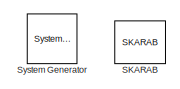
[diagram: root canvas - part 1/10, top left region]
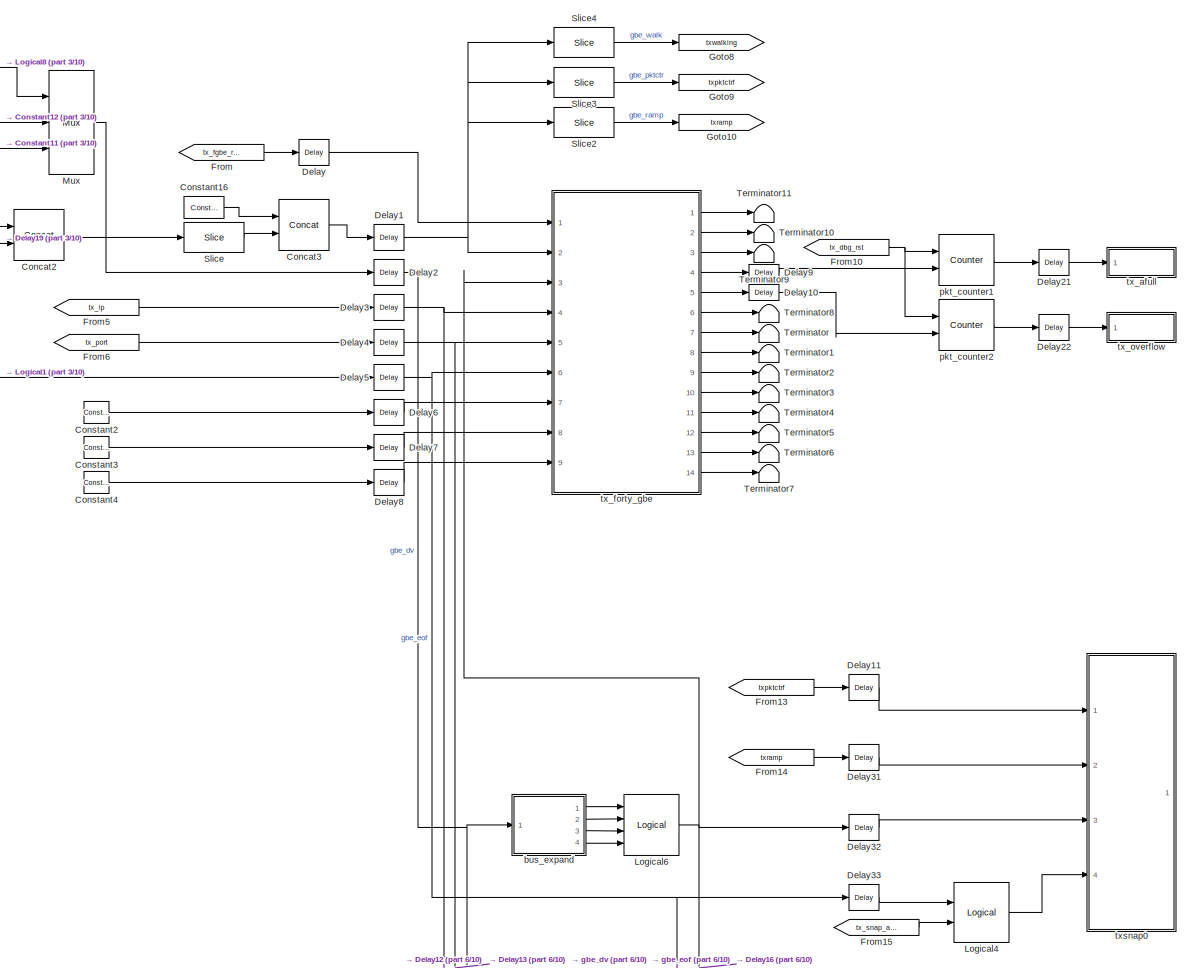
[diagram: root canvas - part 2/10, top right region]
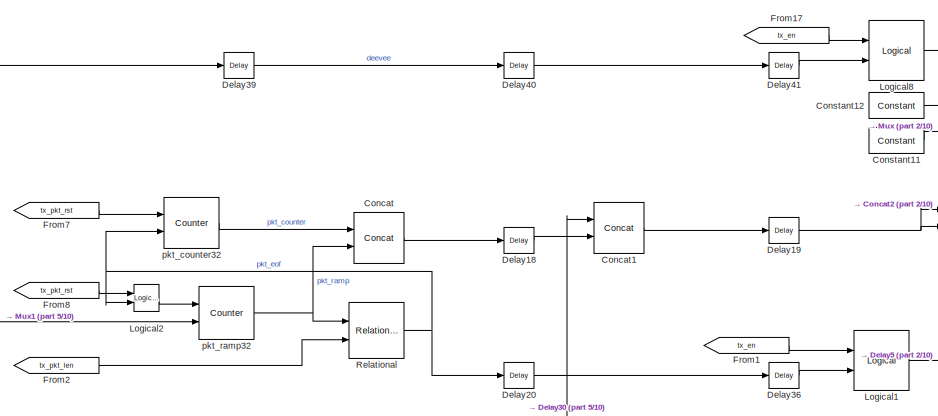
[diagram: root canvas - part 3/10, top center region]
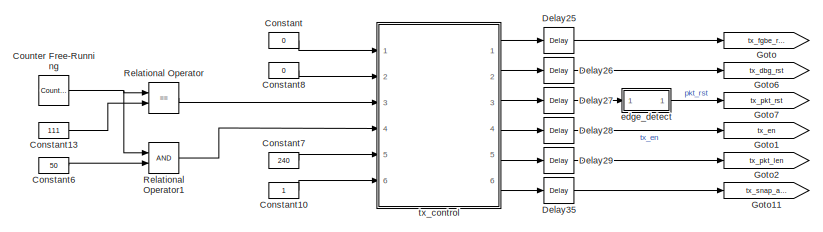
[diagram: root canvas - part 4/10, top left region]
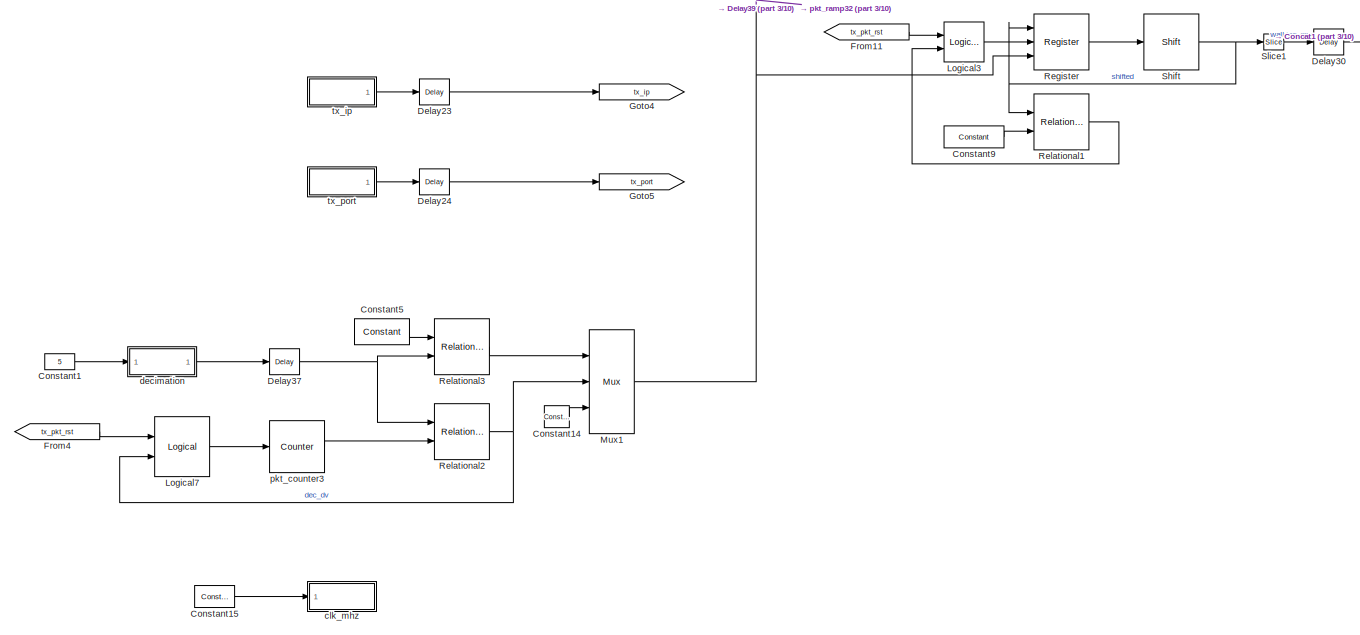
[diagram: root canvas - part 5/10, top left region]
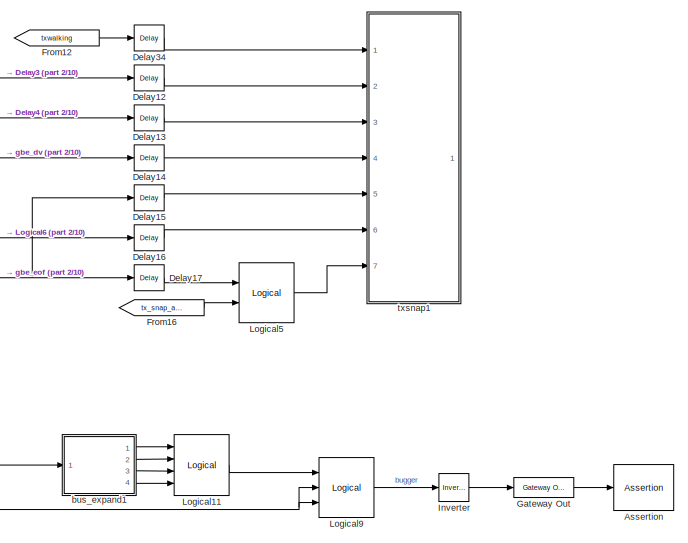
[diagram: root canvas - part 6/10, middle right region]
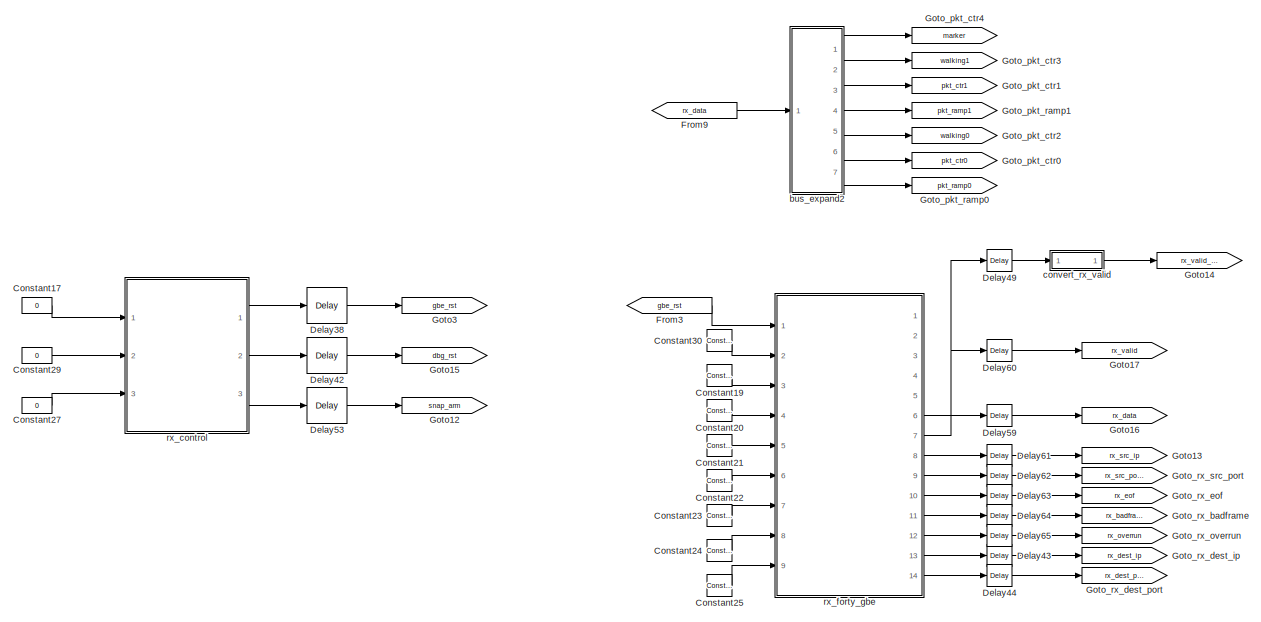
[diagram: root canvas - part 7/10, bottom left region]
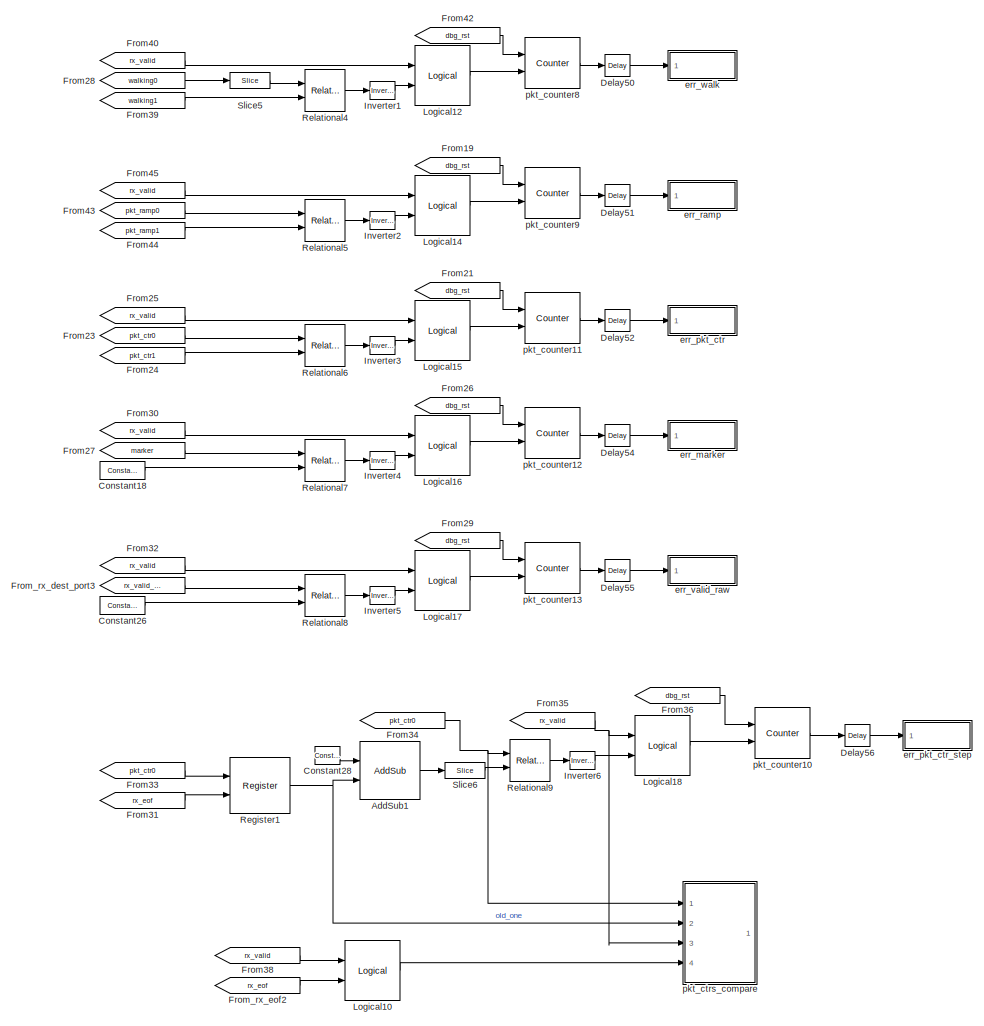
[diagram: root canvas - part 8/10, bottom right region]
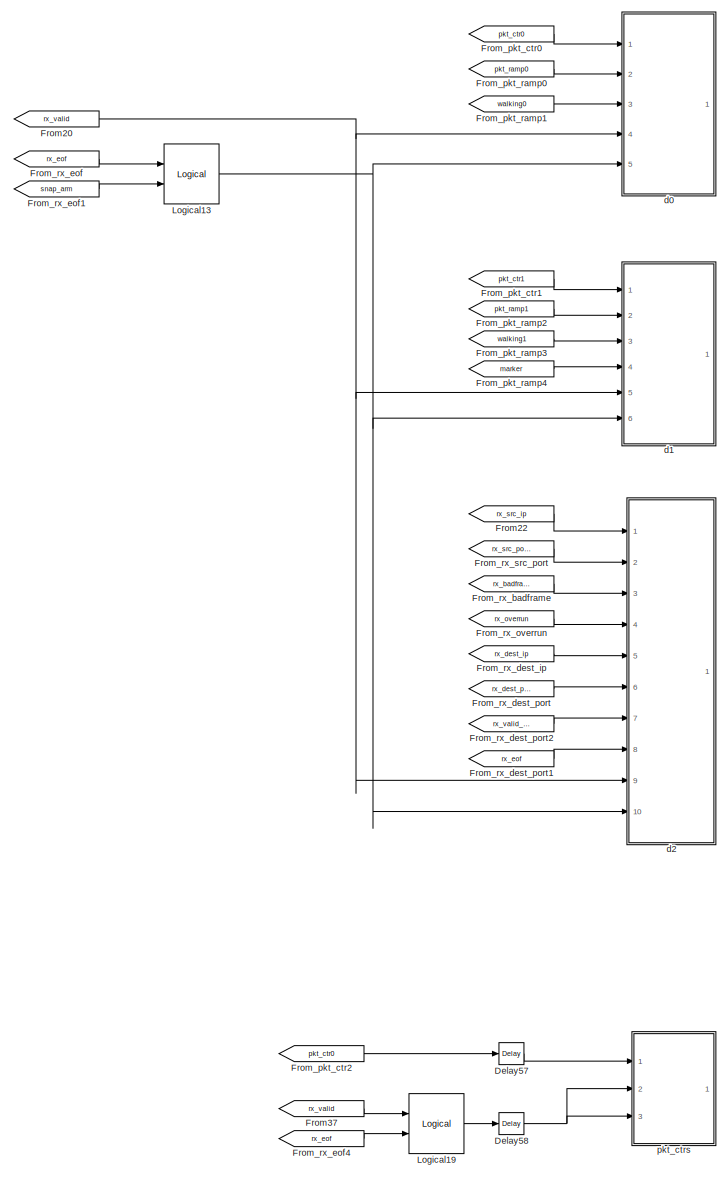
[diagram: root canvas - part 9/10, bottom center region]
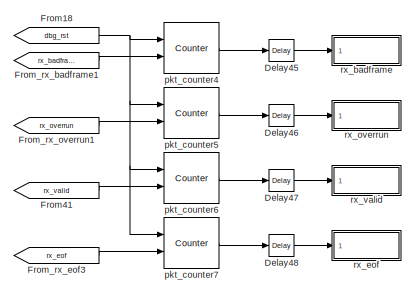
[diagram: root canvas - part 10/10, bottom left region]
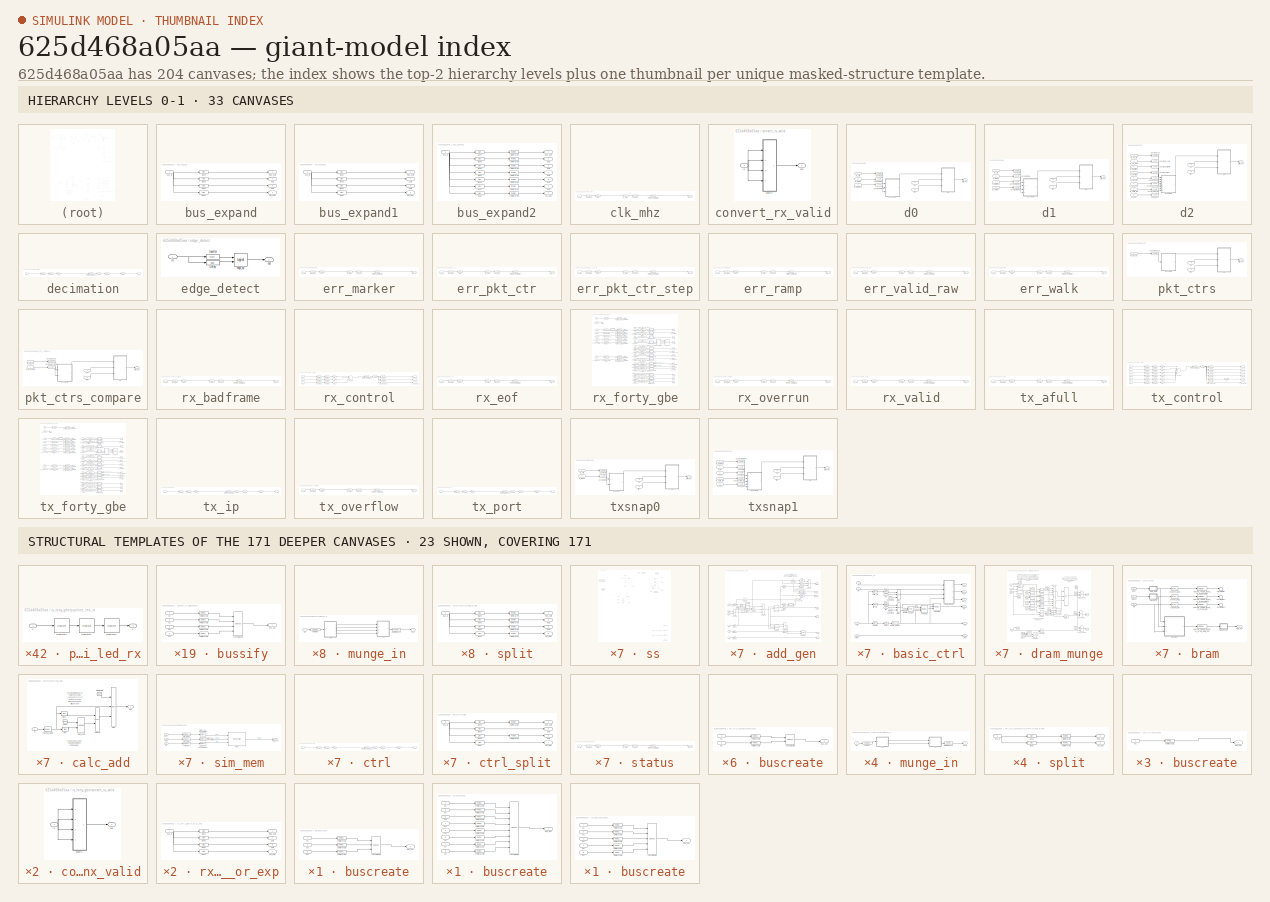
[diagram: thumbnail index - top-2 hierarchy levels (33 canvases) + 23 structural-template representatives of the remaining 171 canvases]
MODEL slx_625d468a05aa
KIND model
CONFIG AbsTol = auto
CONFIG EnableMultiTasking = off
CONFIG FixedStep = auto
CONFIG MaxStep = auto
CONFIG MinStep = auto
CONFIG RelTol = 1e-3
CONFIG SampleTimeConstraint = Unconstrained
CONFIG Solver = VariableStepDiscrete
CONFIG SolverName = VariableStepDiscrete
CONFIG StartTime = 0.0
CONFIG StopTime = 10.0
BLOCK [Reference]  System Generator  REF=xbsIndex_r4/ System Generator
  AttributesFormatString = System\nGenerator
  Ports = []
  SourceBlock = xbsIndex_r4/ System Generator
  SourceType = Xilinx System Generator Block
  Tag = genX
  UserDataPersistent = on
BLOCK [Reference] AddSub1  REF=xbsIndex_r4/AddSub
  Ports = [2, 1]
  SourceBlock = xbsIndex_r4/AddSub
  SourceType = Xilinx Adder/Subtracter Block
BLOCK [Assertion] Assertion
BLOCK [Reference] Concat  REF=xbsIndex_r4/Concat
  Ports = [2, 1]
  SourceBlock = xbsIndex_r4/Concat
  SourceType = Xilinx Bus Concatenator Block
BLOCK [Reference] Concat1  REF=xbsIndex_r4/Concat
  Ports = [2, 1]
  SourceBlock = xbsIndex_r4/Concat
  SourceType = Xilinx Bus Concatenator Block
BLOCK [Reference] Concat2  REF=xbsIndex_r4/Concat
  Ports = [2, 1]
  SourceBlock = xbsIndex_r4/Concat
  SourceType = Xilinx Bus Concatenator Block
BLOCK [Reference] Concat3  REF=xbsIndex_r4/Concat
  Ports = [2, 1]
  SourceBlock = xbsIndex_r4/Concat
  SourceType = Xilinx Bus Concatenator Block
BLOCK [Constant] Constant
  Value = 0
BLOCK [Constant] Constant1
  Value = 5
BLOCK [Constant] Constant10
BLOCK [Reference] Constant11  REF=xbsIndex_r4/Constant
  Ports = [0, 1]
  SourceBlock = xbsIndex_r4/Constant
  SourceType = Xilinx Constant Block Block
BLOCK [Reference] Constant12  REF=xbsIndex_r4/Constant
  Ports = [0, 1]
  SourceBlock = xbsIndex_r4/Constant
  SourceType = Xilinx Constant Block Block
BLOCK [Constant] Constant13
  Value = 111
BLOCK [Reference] Constant14  REF=xbsIndex_r4/Constant
  Ports = [0, 1]
  SourceBlock = xbsIndex_r4/Constant
  SourceType = Xilinx Constant Block Block
BLOCK [Reference] Constant15  REF=xbsIndex_r4/Constant
  Ports = [0, 1]
  SourceBlock = xbsIndex_r4/Constant
  SourceType = Xilinx Constant Block Block
BLOCK [Reference] Constant16  REF=xbsIndex_r4/Constant
  Ports = [0, 1]
  SourceBlock = xbsIndex_r4/Constant
  SourceType = Xilinx Constant Block Block
BLOCK [Constant] Constant17
  Value = 0
BLOCK [Reference] Constant18  REF=xbsIndex_r4/Constant
  Ports = [0, 1]
  SourceBlock = xbsIndex_r4/Constant
  SourceType = Xilinx Constant Block Block
BLOCK [Reference] Constant19  REF=xbsIndex_r4/Constant
  Ports = [0, 1]
  SourceBlock = xbsIndex_r4/Constant
  SourceType = Xilinx Constant Block Block
BLOCK [Reference] Constant2  REF=xbsIndex_r4/Constant
  Ports = [0, 1]
  SourceBlock = xbsIndex_r4/Constant
  SourceType = Xilinx Constant Block Block
BLOCK [Reference] Constant20  REF=xbsIndex_r4/Constant
  Ports = [0, 1]
  SourceBlock = xbsIndex_r4/Constant
  SourceType = Xilinx Constant Block Block
BLOCK [Reference] Constant21  REF=xbsIndex_r4/Constant
  Ports = [0, 1]
  SourceBlock = xbsIndex_r4/Constant
  SourceType = Xilinx Constant Block Block
BLOCK [Reference] Constant22  REF=xbsIndex_r4/Constant
  Ports = [0, 1]
  SourceBlock = xbsIndex_r4/Constant
  SourceType = Xilinx Constant Block Block
BLOCK [Reference] Constant23  REF=xbsIndex_r4/Constant
  Ports = [0, 1]
  SourceBlock = xbsIndex_r4/Constant
  SourceType = Xilinx Constant Block Block
BLOCK [Reference] Constant24  REF=xbsIndex_r4/Constant
  Ports = [0, 1]
  SourceBlock = xbsIndex_r4/Constant
  SourceType = Xilinx Constant Block Block
BLOCK [Reference] Constant25  REF=xbsIndex_r4/Constant
  Ports = [0, 1]
  SourceBlock = xbsIndex_r4/Constant
  SourceType = Xilinx Constant Block Block
BLOCK [Reference] Constant26  REF=xbsIndex_r4/Constant
  Ports = [0, 1]
  SourceBlock = xbsIndex_r4/Constant
  SourceType = Xilinx Constant Block Block
BLOCK [Constant] Constant27
  Value = 0
BLOCK [Reference] Constant28  REF=xbsIndex_r4/Constant
  Ports = [0, 1]
  SourceBlock = xbsIndex_r4/Constant
  SourceType = Xilinx Constant Block Block
BLOCK [Constant] Constant29
  Value = 0
BLOCK [Reference] Constant3  REF=xbsIndex_r4/Constant
  Ports = [0, 1]
  SourceBlock = xbsIndex_r4/Constant
  SourceType = Xilinx Constant Block Block
BLOCK [Reference] Constant30  REF=xbsIndex_r4/Constant
  Ports = [0, 1]
  SourceBlock = xbsIndex_r4/Constant
  SourceType = Xilinx Constant Block Block
BLOCK [Reference] Constant4  REF=xbsIndex_r4/Constant
  Ports = [0, 1]
  SourceBlock = xbsIndex_r4/Constant
  SourceType = Xilinx Constant Block Block
BLOCK [Reference] Constant5  REF=xbsIndex_r4/Constant
  Ports = [0, 1]
  SourceBlock = xbsIndex_r4/Constant
  SourceType = Xilinx Constant Block Block
BLOCK [Constant] Constant6
  Value = 50
BLOCK [Constant] Constant7
  Value = 240
BLOCK [Constant] Constant8
  Value = 0
BLOCK [Reference] Constant9  REF=xbsIndex_r4/Constant
  Ports = [0, 1]
  SourceBlock = xbsIndex_r4/Constant
  SourceType = Xilinx Constant Block Block
BLOCK [Reference] Counter Free-Running  REF=simulink/Sources/Counter
Free-Running
  Ports = [0, 1]
  SourceBlock = simulink/Sources/Counter\nFree-Running
  SourceProductBaseCode = SL
  SourceProductName = Simulink
  SourceType = Counter Free-Running
BLOCK [Reference] Delay  REF=xbsIndex_r4/Delay
  Ports = [1, 1]
  SourceBlock = xbsIndex_r4/Delay
  SourceType = Xilinx Delay Block
BLOCK [Reference] Delay1  REF=xbsIndex_r4/Delay
  Ports = [1, 1]
  SourceBlock = xbsIndex_r4/Delay
  SourceType = Xilinx Delay Block
BLOCK [Reference] Delay10  REF=xbsIndex_r4/Delay
  Ports = [1, 1]
  SourceBlock = xbsIndex_r4/Delay
  SourceType = Xilinx Delay Block
BLOCK [Reference] Delay11  REF=xbsIndex_r4/Delay
  Ports = [1, 1]
  SourceBlock = xbsIndex_r4/Delay
  SourceType = Xilinx Delay Block
BLOCK [Reference] Delay12  REF=xbsIndex_r4/Delay
  Ports = [1, 1]
  SourceBlock = xbsIndex_r4/Delay
  SourceType = Xilinx Delay Block
BLOCK [Reference] Delay13  REF=xbsIndex_r4/Delay
  Ports = [1, 1]
  SourceBlock = xbsIndex_r4/Delay
  SourceType = Xilinx Delay Block
BLOCK [Reference] Delay14  REF=xbsIndex_r4/Delay
  Ports = [1, 1]
  SourceBlock = xbsIndex_r4/Delay
  SourceType = Xilinx Delay Block
BLOCK [Reference] Delay15  REF=xbsIndex_r4/Delay
  Ports = [1, 1]
  SourceBlock = xbsIndex_r4/Delay
  SourceType = Xilinx Delay Block
BLOCK [Reference] Delay16  REF=xbsIndex_r4/Delay
  Ports = [1, 1]
  SourceBlock = xbsIndex_r4/Delay
  SourceType = Xilinx Delay Block
BLOCK [Reference] Delay17  REF=xbsIndex_r4/Delay
  Ports = [1, 1]
  SourceBlock = xbsIndex_r4/Delay
  SourceType = Xilinx Delay Block
BLOCK [Reference] Delay18  REF=xbsIndex_r4/Delay
  Ports = [1, 1]
  SourceBlock = xbsIndex_r4/Delay
  SourceType = Xilinx Delay Block
BLOCK [Reference] Delay19  REF=xbsIndex_r4/Delay
  Ports = [1, 1]
  SourceBlock = xbsIndex_r4/Delay
  SourceType = Xilinx Delay Block
BLOCK [Reference] Delay2  REF=xbsIndex_r4/Delay
  Ports = [1, 1]
  SourceBlock = xbsIndex_r4/Delay
  SourceType = Xilinx Delay Block
BLOCK [Reference] Delay20  REF=xbsIndex_r4/Delay
  Ports = [1, 1]
  SourceBlock = xbsIndex_r4/Delay
  SourceType = Xilinx Delay Block
BLOCK [Reference] Delay21  REF=xbsIndex_r4/Delay
  Ports = [1, 1]
  SourceBlock = xbsIndex_r4/Delay
  SourceType = Xilinx Delay Block
BLOCK [Reference] Delay22  REF=xbsIndex_r4/Delay
  Ports = [1, 1]
  SourceBlock = xbsIndex_r4/Delay
  SourceType = Xilinx Delay Block
BLOCK [Reference] Delay23  REF=xbsIndex_r4/Delay
  Ports = [1, 1]
  SourceBlock = xbsIndex_r4/Delay
  SourceType = Xilinx Delay Block
BLOCK [Reference] Delay24  REF=xbsIndex_r4/Delay
  Ports = [1, 1]
  SourceBlock = xbsIndex_r4/Delay
  SourceType = Xilinx Delay Block
BLOCK [Reference] Delay25  REF=xbsIndex_r4/Delay
  Ports = [1, 1]
  SourceBlock = xbsIndex_r4/Delay
  SourceType = Xilinx Delay Block
BLOCK [Reference] Delay26  REF=xbsIndex_r4/Delay
  Ports = [1, 1]
  SourceBlock = xbsIndex_r4/Delay
  SourceType = Xilinx Delay Block
BLOCK [Reference] Delay27  REF=xbsIndex_r4/Delay
  Ports = [1, 1]
  SourceBlock = xbsIndex_r4/Delay
  SourceType = Xilinx Delay Block
BLOCK [Reference] Delay28  REF=xbsIndex_r4/Delay
  Ports = [1, 1]
  SourceBlock = xbsIndex_r4/Delay
  SourceType = Xilinx Delay Block
BLOCK [Reference] Delay29  REF=xbsIndex_r4/Delay
  Ports = [1, 1]
  SourceBlock = xbsIndex_r4/Delay
  SourceType = Xilinx Delay Block
BLOCK [Reference] Delay3  REF=xbsIndex_r4/Delay
  Ports = [1, 1]
  SourceBlock = xbsIndex_r4/Delay
  SourceType = Xilinx Delay Block
BLOCK [Reference] Delay30  REF=xbsIndex_r4/Delay
  Ports = [1, 1]
  SourceBlock = xbsIndex_r4/Delay
  SourceType = Xilinx Delay Block
BLOCK [Reference] Delay31  REF=xbsIndex_r4/Delay
  Ports = [1, 1]
  SourceBlock = xbsIndex_r4/Delay
  SourceType = Xilinx Delay Block
BLOCK [Reference] Delay32  REF=xbsIndex_r4/Delay
  Ports = [1, 1]
  SourceBlock = xbsIndex_r4/Delay
  SourceType = Xilinx Delay Block
BLOCK [Reference] Delay33  REF=xbsIndex_r4/Delay
  Ports = [1, 1]
  SourceBlock = xbsIndex_r4/Delay
  SourceType = Xilinx Delay Block
BLOCK [Reference] Delay34  REF=xbsIndex_r4/Delay
  Ports = [1, 1]
  SourceBlock = xbsIndex_r4/Delay
  SourceType = Xilinx Delay Block
BLOCK [Reference] Delay35  REF=xbsIndex_r4/Delay
  Ports = [1, 1]
  SourceBlock = xbsIndex_r4/Delay
  SourceType = Xilinx Delay Block
BLOCK [Reference] Delay36  REF=xbsIndex_r4/Delay
  Ports = [1, 1]
  SourceBlock = xbsIndex_r4/Delay
  SourceType = Xilinx Delay Block
BLOCK [Reference] Delay37  REF=xbsIndex_r4/Delay
  Ports = [1, 1]
  SourceBlock = xbsIndex_r4/Delay
  SourceType = Xilinx Delay Block
BLOCK [Reference] Delay38  REF=xbsIndex_r4/Delay
  Ports = [1, 1]
  SourceBlock = xbsIndex_r4/Delay
  SourceType = Xilinx Delay Block
BLOCK [Reference] Delay39  REF=xbsIndex_r4/Delay
  Ports = [1, 1]
  SourceBlock = xbsIndex_r4/Delay
  SourceType = Xilinx Delay Block
BLOCK [Reference] Delay4  REF=xbsIndex_r4/Delay
  Ports = [1, 1]
  SourceBlock = xbsIndex_r4/Delay
  SourceType = Xilinx Delay Block
BLOCK [Reference] Delay40  REF=xbsIndex_r4/Delay
  Ports = [1, 1]
  SourceBlock = xbsIndex_r4/Delay
  SourceType = Xilinx Delay Block
BLOCK [Reference] Delay41  REF=xbsIndex_r4/Delay
  Ports = [1, 1]
  SourceBlock = xbsIndex_r4/Delay
  SourceType = Xilinx Delay Block
BLOCK [Reference] Delay42  REF=xbsIndex_r4/Delay
  Ports = [1, 1]
  SourceBlock = xbsIndex_r4/Delay
  SourceType = Xilinx Delay Block
BLOCK [Reference] Delay43  REF=xbsIndex_r4/Delay
  Ports = [1, 1]
  SourceBlock = xbsIndex_r4/Delay
  SourceType = Xilinx Delay Block
BLOCK [Reference] Delay44  REF=xbsIndex_r4/Delay
  Ports = [1, 1]
  SourceBlock = xbsIndex_r4/Delay
  SourceType = Xilinx Delay Block
BLOCK [Reference] Delay45  REF=xbsIndex_r4/Delay
  Ports = [1, 1]
  SourceBlock = xbsIndex_r4/Delay
  SourceType = Xilinx Delay Block
BLOCK [Reference] Delay46  REF=xbsIndex_r4/Delay
  Ports = [1, 1]
  SourceBlock = xbsIndex_r4/Delay
  SourceType = Xilinx Delay Block
BLOCK [Reference] Delay47  REF=xbsIndex_r4/Delay
  Ports = [1, 1]
  SourceBlock = xbsIndex_r4/Delay
  SourceType = Xilinx Delay Block
BLOCK [Reference] Delay48  REF=xbsIndex_r4/Delay
  Ports = [1, 1]
  SourceBlock = xbsIndex_r4/Delay
  SourceType = Xilinx Delay Block
BLOCK [Reference] Delay49  REF=xbsIndex_r4/Delay
  Ports = [1, 1]
  SourceBlock = xbsIndex_r4/Delay
  SourceType = Xilinx Delay Block
BLOCK [Reference] Delay5  REF=xbsIndex_r4/Delay
  Ports = [1, 1]
  SourceBlock = xbsIndex_r4/Delay
  SourceType = Xilinx Delay Block
BLOCK [Reference] Delay50  REF=xbsIndex_r4/Delay
  Ports = [1, 1]
  SourceBlock = xbsIndex_r4/Delay
  SourceType = Xilinx Delay Block
BLOCK [Reference] Delay51  REF=xbsIndex_r4/Delay
  Ports = [1, 1]
  SourceBlock = xbsIndex_r4/Delay
  SourceType = Xilinx Delay Block
BLOCK [Reference] Delay52  REF=xbsIndex_r4/Delay
  Ports = [1, 1]
  SourceBlock = xbsIndex_r4/Delay
  SourceType = Xilinx Delay Block
BLOCK [Reference] Delay53  REF=xbsIndex_r4/Delay
  Ports = [1, 1]
  SourceBlock = xbsIndex_r4/Delay
  SourceType = Xilinx Delay Block
BLOCK [Reference] Delay54  REF=xbsIndex_r4/Delay
  Ports = [1, 1]
  SourceBlock = xbsIndex_r4/Delay
  SourceType = Xilinx Delay Block
BLOCK [Reference] Delay55  REF=xbsIndex_r4/Delay
  Ports = [1, 1]
  SourceBlock = xbsIndex_r4/Delay
  SourceType = Xilinx Delay Block
BLOCK [Reference] Delay56  REF=xbsIndex_r4/Delay
  Ports = [1, 1]
  SourceBlock = xbsIndex_r4/Delay
  SourceType = Xilinx Delay Block
BLOCK [Reference] Delay57  REF=xbsIndex_r4/Delay
  Ports = [1, 1]
  SourceBlock = xbsIndex_r4/Delay
  SourceType = Xilinx Delay Block
BLOCK [Reference] Delay58  REF=xbsIndex_r4/Delay
  Ports = [1, 1]
  SourceBlock = xbsIndex_r4/Delay
  SourceType = Xilinx Delay Block
BLOCK [Reference] Delay59  REF=xbsIndex_r4/Delay
  Ports = [1, 1]
  SourceBlock = xbsIndex_r4/Delay
  SourceType = Xilinx Delay Block
BLOCK [Reference] Delay6  REF=xbsIndex_r4/Delay
  Ports = [1, 1]
  SourceBlock = xbsIndex_r4/Delay
  SourceType = Xilinx Delay Block
BLOCK [Reference] Delay60  REF=xbsIndex_r4/Delay
  Ports = [1, 1]
  SourceBlock = xbsIndex_r4/Delay
  SourceType = Xilinx Delay Block
BLOCK [Reference] Delay61  REF=xbsIndex_r4/Delay
  Ports = [1, 1]
  SourceBlock = xbsIndex_r4/Delay
  SourceType = Xilinx Delay Block
BLOCK [Reference] Delay62  REF=xbsIndex_r4/Delay
  Ports = [1, 1]
  SourceBlock = xbsIndex_r4/Delay
  SourceType = Xilinx Delay Block
BLOCK [Reference] Delay63  REF=xbsIndex_r4/Delay
  Ports = [1, 1]
  SourceBlock = xbsIndex_r4/Delay
  SourceType = Xilinx Delay Block
BLOCK [Reference] Delay64  REF=xbsIndex_r4/Delay
  Ports = [1, 1]
  SourceBlock = xbsIndex_r4/Delay
  SourceType = Xilinx Delay Block
BLOCK [Reference] Delay65  REF=xbsIndex_r4/Delay
  Ports = [1, 1]
  SourceBlock = xbsIndex_r4/Delay
  SourceType = Xilinx Delay Block
BLOCK [Reference] Delay7  REF=xbsIndex_r4/Delay
  Ports = [1, 1]
  SourceBlock = xbsIndex_r4/Delay
  SourceType = Xilinx Delay Block
BLOCK [Reference] Delay8  REF=xbsIndex_r4/Delay
  Ports = [1, 1]
  SourceBlock = xbsIndex_r4/Delay
  SourceType = Xilinx Delay Block
BLOCK [Reference] Delay9  REF=xbsIndex_r4/Delay
  Ports = [1, 1]
  SourceBlock = xbsIndex_r4/Delay
  SourceType = Xilinx Delay Block
BLOCK [From] From
  GotoTag = tx_fgbe_rst
BLOCK [From] From1
  GotoTag = tx_en
BLOCK [From] From10
  GotoTag = tx_dbg_rst
BLOCK [From] From11
  GotoTag = tx_pkt_rst
BLOCK [From] From12
  GotoTag = txwalking
BLOCK [From] From13
  GotoTag = txpktctrf
BLOCK [From] From14
  GotoTag = txramp
BLOCK [From] From15
  GotoTag = tx_snap_arm
BLOCK [From] From16
  GotoTag = tx_snap_arm
BLOCK [From] From17
  GotoTag = tx_en
BLOCK [From] From18
  GotoTag = dbg_rst
BLOCK [From] From19
  GotoTag = dbg_rst
BLOCK [From] From2
  GotoTag = tx_pkt_len
BLOCK [From] From20
  GotoTag = rx_valid
BLOCK [From] From21
  GotoTag = dbg_rst
BLOCK [From] From22
  GotoTag = rx_src_ip
BLOCK [From] From23
  GotoTag = pkt_ctr0
BLOCK [From] From24
  GotoTag = pkt_ctr1
BLOCK [From] From25
  GotoTag = rx_valid
BLOCK [From] From26
  GotoTag = dbg_rst
BLOCK [From] From27
  GotoTag = marker
BLOCK [From] From28
  GotoTag = walking0
BLOCK [From] From29
  GotoTag = dbg_rst
BLOCK [From] From3
  GotoTag = gbe_rst
BLOCK [From] From30
  GotoTag = rx_valid
BLOCK [From] From31
  GotoTag = rx_eof
BLOCK [From] From32
  GotoTag = rx_valid
BLOCK [From] From33
  GotoTag = pkt_ctr0
BLOCK [From] From34
  GotoTag = pkt_ctr0
BLOCK [From] From35
  GotoTag = rx_valid
BLOCK [From] From36
  GotoTag = dbg_rst
BLOCK [From] From37
  GotoTag = rx_valid
BLOCK [From] From38
  GotoTag = rx_valid
BLOCK [From] From39
  GotoTag = walking1
BLOCK [From] From4
  GotoTag = tx_pkt_rst
BLOCK [From] From40
  GotoTag = rx_valid
BLOCK [From] From41
  GotoTag = rx_valid
BLOCK [From] From42
  GotoTag = dbg_rst
BLOCK [From] From43
  GotoTag = pkt_ramp0
BLOCK [From] From44
  GotoTag = pkt_ramp1
BLOCK [From] From45
  GotoTag = rx_valid
BLOCK [From] From5
  GotoTag = tx_ip
BLOCK [From] From6
  GotoTag = tx_port
BLOCK [From] From7
  GotoTag = tx_pkt_rst
BLOCK [From] From8
  GotoTag = tx_pkt_rst
BLOCK [From] From9
  GotoTag = rx_data
BLOCK [From] From_pkt_ctr0
  GotoTag = pkt_ctr0
BLOCK [From] From_pkt_ctr1
  GotoTag = pkt_ctr1
BLOCK [From] From_pkt_ctr2
  GotoTag = pkt_ctr0
BLOCK [From] From_pkt_ramp0
  GotoTag = pkt_ramp0
BLOCK [From] From_pkt_ramp1
  GotoTag = walking0
BLOCK [From] From_pkt_ramp2
  GotoTag = pkt_ramp1
BLOCK [From] From_pkt_ramp3
  GotoTag = walking1
BLOCK [From] From_pkt_ramp4
  GotoTag = marker
BLOCK [From] From_rx_badframe
  GotoTag = rx_badframe
BLOCK [From] From_rx_badframe1
  GotoTag = rx_badframe
BLOCK [From] From_rx_dest_ip
  GotoTag = rx_dest_ip
BLOCK [From] From_rx_dest_port
  GotoTag = rx_dest_port
BLOCK [From] From_rx_dest_port1
  GotoTag = rx_eof
BLOCK [From] From_rx_dest_port2
  GotoTag = rx_valid_raw
BLOCK [From] From_rx_dest_port3
  GotoTag = rx_valid_raw
BLOCK [From] From_rx_eof
  GotoTag = rx_eof
BLOCK [From] From_rx_eof1
  GotoTag = snap_arm
BLOCK [From] From_rx_eof2
  GotoTag = rx_eof
BLOCK [From] From_rx_eof3
  GotoTag = rx_eof
BLOCK [From] From_rx_eof4
  GotoTag = rx_eof
BLOCK [From] From_rx_overrun
  GotoTag = rx_overrun
BLOCK [From] From_rx_overrun1
  GotoTag = rx_overrun
BLOCK [From] From_rx_src_port
  GotoTag = rx_src_port
BLOCK [Reference] Gateway Out  REF=xbsIndex_r4/Gateway Out
  Ports = [1, 1]
  SourceBlock = xbsIndex_r4/Gateway Out
  SourceType = Xilinx Gateway Out Block
BLOCK [Goto] Goto
  GotoTag = tx_fgbe_rst
BLOCK [Goto] Goto1
  GotoTag = tx_en
BLOCK [Goto] Goto10
  GotoTag = txramp
BLOCK [Goto] Goto11
  GotoTag = tx_snap_arm
BLOCK [Goto] Goto12
  GotoTag = snap_arm
BLOCK [Goto] Goto13
  GotoTag = rx_src_ip
BLOCK [Goto] Goto14
  GotoTag = rx_valid_raw
BLOCK [Goto] Goto15
  GotoTag = dbg_rst
BLOCK [Goto] Goto16
  GotoTag = rx_data
BLOCK [Goto] Goto17
  GotoTag = rx_valid
BLOCK [Goto] Goto2
  GotoTag = tx_pkt_len
BLOCK [Goto] Goto3
  GotoTag = gbe_rst
BLOCK [Goto] Goto4
  GotoTag = tx_ip
BLOCK [Goto] Goto5
  GotoTag = tx_port
BLOCK [Goto] Goto6
  GotoTag = tx_dbg_rst
BLOCK [Goto] Goto7
  GotoTag = tx_pkt_rst
BLOCK [Goto] Goto8
  GotoTag = txwalking
BLOCK [Goto] Goto9
  GotoTag = txpktctrf
BLOCK [Goto] Goto_pkt_ctr0
  GotoTag = pkt_ctr0
BLOCK [Goto] Goto_pkt_ctr1
  GotoTag = pkt_ctr1
BLOCK [Goto] Goto_pkt_ctr2
  GotoTag = walking0
BLOCK [Goto] Goto_pkt_ctr3
  GotoTag = walking1
BLOCK [Goto] Goto_pkt_ctr4
  GotoTag = marker
BLOCK [Goto] Goto_pkt_ramp0
  GotoTag = pkt_ramp0
BLOCK [Goto] Goto_pkt_ramp1
  GotoTag = pkt_ramp1
BLOCK [Goto] Goto_rx_badframe
  GotoTag = rx_badframe
BLOCK [Goto] Goto_rx_dest_ip
  GotoTag = rx_dest_ip
BLOCK [Goto] Goto_rx_dest_port
  GotoTag = rx_dest_port
BLOCK [Goto] Goto_rx_eof
  GotoTag = rx_eof
BLOCK [Goto] Goto_rx_overrun
  GotoTag = rx_overrun
BLOCK [Goto] Goto_rx_src_port
  GotoTag = rx_src_port
BLOCK [Reference] Inverter  REF=xbsIndex_r4/Inverter
  Ports = [1, 1]
  SourceBlock = xbsIndex_r4/Inverter
  SourceType = Xilinx Inverter Block
BLOCK [Reference] Inverter1  REF=xbsIndex_r4/Inverter
  Ports = [1, 1]
  SourceBlock = xbsIndex_r4/Inverter
  SourceType = Xilinx Inverter Block
BLOCK [Reference] Inverter2  REF=xbsIndex_r4/Inverter
  Ports = [1, 1]
  SourceBlock = xbsIndex_r4/Inverter
  SourceType = Xilinx Inverter Block
BLOCK [Reference] Inverter3  REF=xbsIndex_r4/Inverter
  Ports = [1, 1]
  SourceBlock = xbsIndex_r4/Inverter
  SourceType = Xilinx Inverter Block
BLOCK [Reference] Inverter4  REF=xbsIndex_r4/Inverter
  Ports = [1, 1]
  SourceBlock = xbsIndex_r4/Inverter
  SourceType = Xilinx Inverter Block
BLOCK [Reference] Inverter5  REF=xbsIndex_r4/Inverter
  Ports = [1, 1]
  SourceBlock = xbsIndex_r4/Inverter
  SourceType = Xilinx Inverter Block
BLOCK [Reference] Inverter6  REF=xbsIndex_r4/Inverter
  Ports = [1, 1]
  SourceBlock = xbsIndex_r4/Inverter
  SourceType = Xilinx Inverter Block
BLOCK [Reference] Logical1  REF=xbsIndex_r4/Logical
  Ports = [2, 1]
  SourceBlock = xbsIndex_r4/Logical
  SourceType = Xilinx Logical Block Block
BLOCK [Reference] Logical10  REF=xbsIndex_r4/Logical
  Ports = [2, 1]
  SourceBlock = xbsIndex_r4/Logical
  SourceType = Xilinx Logical Block Block
BLOCK [Reference] Logical11  REF=xbsIndex_r4/Logical
  Ports = [4, 1]
  SourceBlock = xbsIndex_r4/Logical
  SourceType = Xilinx Logical Block Block
BLOCK [Reference] Logical12  REF=xbsIndex_r4/Logical
  Ports = [2, 1]
  SourceBlock = xbsIndex_r4/Logical
  SourceType = Xilinx Logical Block Block
BLOCK [Reference] Logical13  REF=xbsIndex_r4/Logical
  Ports = [2, 1]
  SourceBlock = xbsIndex_r4/Logical
  SourceType = Xilinx Logical Block Block
BLOCK [Reference] Logical14  REF=xbsIndex_r4/Logical
  Ports = [2, 1]
  SourceBlock = xbsIndex_r4/Logical
  SourceType = Xilinx Logical Block Block
BLOCK [Reference] Logical15  REF=xbsIndex_r4/Logical
  Ports = [2, 1]
  SourceBlock = xbsIndex_r4/Logical
  SourceType = Xilinx Logical Block Block
BLOCK [Reference] Logical16  REF=xbsIndex_r4/Logical
  Ports = [2, 1]
  SourceBlock = xbsIndex_r4/Logical
  SourceType = Xilinx Logical Block Block
BLOCK [Reference] Logical17  REF=xbsIndex_r4/Logical
  Ports = [2, 1]
  SourceBlock = xbsIndex_r4/Logical
  SourceType = Xilinx Logical Block Block
BLOCK [Reference] Logical18  REF=xbsIndex_r4/Logical
  Ports = [2, 1]
  SourceBlock = xbsIndex_r4/Logical
  SourceType = Xilinx Logical Block Block
BLOCK [Reference] Logical19  REF=xbsIndex_r4/Logical
  Ports = [2, 1]
  SourceBlock = xbsIndex_r4/Logical
  SourceType = Xilinx Logical Block Block
BLOCK [Reference] Logical2  REF=xbsIndex_r4/Logical
  Ports = [2, 1]
  SourceBlock = xbsIndex_r4/Logical
  SourceType = Xilinx Logical Block Block
BLOCK [Reference] Logical3  REF=xbsIndex_r4/Logical
  Ports = [2, 1]
  SourceBlock = xbsIndex_r4/Logical
  SourceType = Xilinx Logical Block Block
BLOCK [Reference] Logical4  REF=xbsIndex_r4/Logical
  Ports = [2, 1]
  SourceBlock = xbsIndex_r4/Logical
  SourceType = Xilinx Logical Block Block
BLOCK [Reference] Logical5  REF=xbsIndex_r4/Logical
  Ports = [2, 1]
  SourceBlock = xbsIndex_r4/Logical
  SourceType = Xilinx Logical Block Block
BLOCK [Reference] Logical6  REF=xbsIndex_r4/Logical
  Ports = [4, 1]
  SourceBlock = xbsIndex_r4/Logical
  SourceType = Xilinx Logical Block Block
BLOCK [Reference] Logical7  REF=xbsIndex_r4/Logical
  Ports = [2, 1]
  SourceBlock = xbsIndex_r4/Logical
  SourceType = Xilinx Logical Block Block
BLOCK [Reference] Logical8  REF=xbsIndex_r4/Logical
  Ports = [2, 1]
  SourceBlock = xbsIndex_r4/Logical
  SourceType = Xilinx Logical Block Block
BLOCK [Reference] Logical9  REF=xbsIndex_r4/Logical
  Ports = [3, 1]
  SourceBlock = xbsIndex_r4/Logical
  SourceType = Xilinx Logical Block Block
BLOCK [Reference] Mux  REF=xbsIndex_r4/Mux
  Ports = [3, 1]
  SourceBlock = xbsIndex_r4/Mux
  SourceType = Xilinx Bus Multiplexer Block
BLOCK [Reference] Mux1  REF=xbsIndex_r4/Mux
  Ports = [3, 1]
  SourceBlock = xbsIndex_r4/Mux
  SourceType = Xilinx Bus Multiplexer Block
BLOCK [Reference] Register  REF=xbsIndex_r4/Register
  Ports = [3, 1]
  SourceBlock = xbsIndex_r4/Register
  SourceType = Xilinx Register Block
BLOCK [Reference] Register1  REF=xbsIndex_r4/Register
  Ports = [2, 1]
  SourceBlock = xbsIndex_r4/Register
  SourceType = Xilinx Register Block
BLOCK [Reference] Relational  REF=xbsIndex_r4/Relational
  Ports = [2, 1]
  SourceBlock = xbsIndex_r4/Relational
  SourceType = Xilinx Arithmetic Relational Operator Block
BLOCK [RelationalOperator] Relational Operator
  InputSameDT = off
  Operator = ==
  OutDataTypeStr = boolean
  Ports = [2, 1]
  RndMeth = Simplest
BLOCK [RelationalOperator] Relational Operator1
  InputSameDT = off
  OutDataTypeStr = boolean
  Ports = [2, 1]
  RndMeth = Simplest
BLOCK [Reference] Relational1  REF=xbsIndex_r4/Relational
  Ports = [2, 1]
  SourceBlock = xbsIndex_r4/Relational
  SourceType = Xilinx Arithmetic Relational Operator Block
BLOCK [Reference] Relational2  REF=xbsIndex_r4/Relational
  Ports = [2, 1]
  SourceBlock = xbsIndex_r4/Relational
  SourceType = Xilinx Arithmetic Relational Operator Block
BLOCK [Reference] Relational3  REF=xbsIndex_r4/Relational
  Ports = [2, 1]
  SourceBlock = xbsIndex_r4/Relational
  SourceType = Xilinx Arithmetic Relational Operator Block
BLOCK [Reference] Relational4  REF=xbsIndex_r4/Relational
  Ports = [2, 1]
  SourceBlock = xbsIndex_r4/Relational
  SourceType = Xilinx Arithmetic Relational Operator Block
BLOCK [Reference] Relational5  REF=xbsIndex_r4/Relational
  Ports = [2, 1]
  SourceBlock = xbsIndex_r4/Relational
  SourceType = Xilinx Arithmetic Relational Operator Block
BLOCK [Reference] Relational6  REF=xbsIndex_r4/Relational
  Ports = [2, 1]
  SourceBlock = xbsIndex_r4/Relational
  SourceType = Xilinx Arithmetic Relational Operator Block
BLOCK [Reference] Relational7  REF=xbsIndex_r4/Relational
  Ports = [2, 1]
  SourceBlock = xbsIndex_r4/Relational
  SourceType = Xilinx Arithmetic Relational Operator Block
BLOCK [Reference] Relational8  REF=xbsIndex_r4/Relational
  Ports = [2, 1]
  SourceBlock = xbsIndex_r4/Relational
  SourceType = Xilinx Arithmetic Relational Operator Block
BLOCK [Reference] Relational9  REF=xbsIndex_r4/Relational
  Ports = [2, 1]
  SourceBlock = xbsIndex_r4/Relational
  SourceType = Xilinx Arithmetic Relational Operator Block
BLOCK [Reference] SKARAB  REF=xps_library/Platforms/SKARAB  (lib defined in mdl_00b5cec29cd0, mdl_02ab6ecaa3d1, +5 more)
  Ports = []
  SourceBlock = xps_library/Platforms/SKARAB
  SourceProductName = CASPER XPS Blockset
  SourceType = xsg core config
  Tag = xps:xsg
BLOCK [Reference] Shift  REF=xbsIndex_r4/Shift
  Ports = [1, 1]
  SourceBlock = xbsIndex_r4/Shift
  SourceType = Xilinx Binary Shift Operator Block
BLOCK [Reference] Slice  REF=xbsIndex_r4/Slice
  Ports = [1, 1]
  SourceBlock = xbsIndex_r4/Slice
  SourceType = Xilinx Bit Slice Extractor Block
BLOCK [Reference] Slice1  REF=xbsIndex_r4/Slice
  Ports = [1, 1]
  SourceBlock = xbsIndex_r4/Slice
  SourceType = Xilinx Bit Slice Extractor Block
BLOCK [Reference] Slice2  REF=xbsIndex_r4/Slice
  Ports = [1, 1]
  SourceBlock = xbsIndex_r4/Slice
  SourceType = Xilinx Bit Slice Extractor Block
BLOCK [Reference] Slice3  REF=xbsIndex_r4/Slice
  Ports = [1, 1]
  SourceBlock = xbsIndex_r4/Slice
  SourceType = Xilinx Bit Slice Extractor Block
BLOCK [Reference] Slice4  REF=xbsIndex_r4/Slice
  Ports = [1, 1]
  SourceBlock = xbsIndex_r4/Slice
  SourceType = Xilinx Bit Slice Extractor Block
BLOCK [Reference] Slice5  REF=xbsIndex_r4/Slice
  Ports = [1, 1]
  SourceBlock = xbsIndex_r4/Slice
  SourceType = Xilinx Bit Slice Extractor Block
BLOCK [Reference] Slice6  REF=xbsIndex_r4/Slice
  Ports = [1, 1]
  SourceBlock = xbsIndex_r4/Slice
  SourceType = Xilinx Bit Slice Extractor Block
BLOCK [Terminator] Terminator
BLOCK [Terminator] Terminator1
BLOCK [Terminator] Terminator10
BLOCK [Terminator] Terminator11
BLOCK [Terminator] Terminator2
BLOCK [Terminator] Terminator3
BLOCK [Terminator] Terminator4
BLOCK [Terminator] Terminator5
BLOCK [Terminator] Terminator6
BLOCK [Terminator] Terminator7
BLOCK [Terminator] Terminator8
BLOCK [Terminator] Terminator9
BLOCK [SubSystem] bus_expand
  AncestorBlock = casper_library_flow_control/bus_expand
  AttributesFormatString = 4 outputs: b,b,b,b,
  Ports = [1, 4]
  RequestExecContextInheritance = off
  UserDataPersistent = on
BLOCK [Inport] bus_expand/bus_in
  IconDisplay = Port number
BLOCK [Outport] bus_expand/lsb_out1
  IconDisplay = Port number
  Port = 4
BLOCK [Outport] bus_expand/msb_out4
  IconDisplay = Port number
BLOCK [Outport] bus_expand/out2
  IconDisplay = Port number
  Port = 3
BLOCK [Outport] bus_expand/out3
  IconDisplay = Port number
  Port = 2
BLOCK [Reference] bus_expand/slice1  REF=xbsIndex_r4/Slice
  Ports = [1, 1]
  SourceBlock = xbsIndex_r4/Slice
  SourceType = Xilinx Bit Slice Extractor Block
BLOCK [Reference] bus_expand/slice2  REF=xbsIndex_r4/Slice
  Ports = [1, 1]
  SourceBlock = xbsIndex_r4/Slice
  SourceType = Xilinx Bit Slice Extractor Block
BLOCK [Reference] bus_expand/slice3  REF=xbsIndex_r4/Slice
  Ports = [1, 1]
  SourceBlock = xbsIndex_r4/Slice
  SourceType = Xilinx Bit Slice Extractor Block
BLOCK [Reference] bus_expand/slice4  REF=xbsIndex_r4/Slice
  Ports = [1, 1]
  SourceBlock = xbsIndex_r4/Slice
  SourceType = Xilinx Bit Slice Extractor Block
BLOCK [SubSystem] bus_expand1
  AncestorBlock = casper_library_flow_control/bus_expand
  AttributesFormatString = 4 outputs: b,b,b,b,
  Ports = [1, 4]
  RequestExecContextInheritance = off
  UserDataPersistent = on
BLOCK [Inport] bus_expand1/bus_in
  IconDisplay = Port number
BLOCK [Outport] bus_expand1/lsb_out1
  IconDisplay = Port number
  Port = 4
BLOCK [Outport] bus_expand1/msb_out4
  IconDisplay = Port number
BLOCK [Outport] bus_expand1/out2
  IconDisplay = Port number
  Port = 3
BLOCK [Outport] bus_expand1/out3
  IconDisplay = Port number
  Port = 2
BLOCK [Reference] bus_expand1/slice1  REF=xbsIndex_r4/Slice
  Ports = [1, 1]
  SourceBlock = xbsIndex_r4/Slice
  SourceType = Xilinx Bit Slice Extractor Block
BLOCK [Reference] bus_expand1/slice2  REF=xbsIndex_r4/Slice
  Ports = [1, 1]
  SourceBlock = xbsIndex_r4/Slice
  SourceType = Xilinx Bit Slice Extractor Block
BLOCK [Reference] bus_expand1/slice3  REF=xbsIndex_r4/Slice
  Ports = [1, 1]
  SourceBlock = xbsIndex_r4/Slice
  SourceType = Xilinx Bit Slice Extractor Block
BLOCK [Reference] bus_expand1/slice4  REF=xbsIndex_r4/Slice
  Ports = [1, 1]
  SourceBlock = xbsIndex_r4/Slice
  SourceType = Xilinx Bit Slice Extractor Block
BLOCK [SubSystem] bus_expand2
  AncestorBlock = casper_library_flow_control/bus_expand
  AttributesFormatString = 7 outputs: uf16.0,uf48.0,uf32.0,uf32.0,uf64.0,uf32.0,uf32.0,
  Ports = [1, 7]
  RequestExecContextInheritance = off
  UserDataPersistent = on
BLOCK [Inport] bus_expand2/bus_in
  IconDisplay = Port number
BLOCK [Outport] bus_expand2/lsb_out1
  IconDisplay = Port number
  Port = 7
BLOCK [Outport] bus_expand2/msb_out7
  IconDisplay = Port number
BLOCK [Outport] bus_expand2/out2
  IconDisplay = Port number
  Port = 6
BLOCK [Outport] bus_expand2/out3
  IconDisplay = Port number
  Port = 5
BLOCK [Outport] bus_expand2/out4
  IconDisplay = Port number
  Port = 4
BLOCK [Outport] bus_expand2/out5
  IconDisplay = Port number
  Port = 3
BLOCK [Outport] bus_expand2/out6
  IconDisplay = Port number
  Port = 2
BLOCK [Reference] bus_expand2/reinterpret1  REF=xbsIndex_r4/Reinterpret
  Ports = [1, 1]
  SourceBlock = xbsIndex_r4/Reinterpret
  SourceType = Xilinx Type Reinterpreter Block
BLOCK [Reference] bus_expand2/reinterpret2  REF=xbsIndex_r4/Reinterpret
  Ports = [1, 1]
  SourceBlock = xbsIndex_r4/Reinterpret
  SourceType = Xilinx Type Reinterpreter Block
BLOCK [Reference] bus_expand2/reinterpret3  REF=xbsIndex_r4/Reinterpret
  Ports = [1, 1]
  SourceBlock = xbsIndex_r4/Reinterpret
  SourceType = Xilinx Type Reinterpreter Block
BLOCK [Reference] bus_expand2/reinterpret4  REF=xbsIndex_r4/Reinterpret
  Ports = [1, 1]
  SourceBlock = xbsIndex_r4/Reinterpret
  SourceType = Xilinx Type Reinterpreter Block
BLOCK [Reference] bus_expand2/reinterpret5  REF=xbsIndex_r4/Reinterpret
  Ports = [1, 1]
  SourceBlock = xbsIndex_r4/Reinterpret
  SourceType = Xilinx Type Reinterpreter Block
BLOCK [Reference] bus_expand2/reinterpret6  REF=xbsIndex_r4/Reinterpret
  Ports = [1, 1]
  SourceBlock = xbsIndex_r4/Reinterpret
  SourceType = Xilinx Type Reinterpreter Block
BLOCK [Reference] bus_expand2/reinterpret7  REF=xbsIndex_r4/Reinterpret
  Ports = [1, 1]
  SourceBlock = xbsIndex_r4/Reinterpret
  SourceType = Xilinx Type Reinterpreter Block
BLOCK [Reference] bus_expand2/slice1  REF=xbsIndex_r4/Slice
  Ports = [1, 1]
  SourceBlock = xbsIndex_r4/Slice
  SourceType = Xilinx Bit Slice Extractor Block
BLOCK [Reference] bus_expand2/slice2  REF=xbsIndex_r4/Slice
  Ports = [1, 1]
  SourceBlock = xbsIndex_r4/Slice
  SourceType = Xilinx Bit Slice Extractor Block
BLOCK [Reference] bus_expand2/slice3  REF=xbsIndex_r4/Slice
  Ports = [1, 1]
  SourceBlock = xbsIndex_r4/Slice
  SourceType = Xilinx Bit Slice Extractor Block
BLOCK [Reference] bus_expand2/slice4  REF=xbsIndex_r4/Slice
  Ports = [1, 1]
  SourceBlock = xbsIndex_r4/Slice
  SourceType = Xilinx Bit Slice Extractor Block
BLOCK [Reference] bus_expand2/slice5  REF=xbsIndex_r4/Slice
  Ports = [1, 1]
  SourceBlock = xbsIndex_r4/Slice
  SourceType = Xilinx Bit Slice Extractor Block
BLOCK [Reference] bus_expand2/slice6  REF=xbsIndex_r4/Slice
  Ports = [1, 1]
  SourceBlock = xbsIndex_r4/Slice
  SourceType = Xilinx Bit Slice Extractor Block
BLOCK [Reference] bus_expand2/slice7  REF=xbsIndex_r4/Slice
  Ports = [1, 1]
  SourceBlock = xbsIndex_r4/Slice
  SourceType = Xilinx Bit Slice Extractor Block
BLOCK [SubSystem] clk_mhz
  AncestorBlock = xps_library/Memory/software_register
  AttributesFormatString = 1output:uf32.8 = 32 bits
  Ports = [1]
  RequestExecContextInheritance = off
  Tag = xps:sw_reg
BLOCK [Reference] clk_mhz/assert_reg  REF=xbsIndex_r4/Assert
  Ports = [1, 1]
  SourceBlock = xbsIndex_r4/Assert
  SourceType = Xilinx Assert Block
BLOCK [Reference] clk_mhz/cast_gw  REF=xbsIndex_r4/Convert
  Ports = [1, 1]
  SourceBlock = xbsIndex_r4/Convert
  SourceType = Xilinx Type Converter Block
BLOCK [Reference] clk_mhz/io_delay  REF=xbsIndex_r4/Delay
  Ports = [1, 1]
  SourceBlock = xbsIndex_r4/Delay
  SourceType = Xilinx Delay Block
BLOCK [Inport] clk_mhz/out_reg
  IconDisplay = Port number
BLOCK [Reference] clk_mhz/reint1  REF=xbsIndex_r4/Reinterpret
  Ports = [1, 1]
  SourceBlock = xbsIndex_r4/Reinterpret
  SourceType = Xilinx Type Reinterpreter Block
BLOCK [Terminator] clk_mhz/sim_out
BLOCK [Reference] clk_mhz/skarab_40gbe_tut_clk_mhz_user_data_in  REF=xbsIndex_r4/Gateway Out
  Ports = [1, 1]
  SourceBlock = xbsIndex_r4/Gateway Out
  SourceType = Xilinx Gateway Out Block
BLOCK [SubSystem] convert_rx_valid
  AncestorBlock = casper_library_bus/bus_replicate
  Ports = [1, 1]
  RequestExecContextInheritance = off
  UserDataPersistent = on
BLOCK [SubSystem] convert_rx_valid/bussify
  AncestorBlock = casper_library_flow_control/bus_create
  Ports = [4, 1]
  RequestExecContextInheritance = off
  UserDataPersistent = on
BLOCK [Outport] convert_rx_valid/bussify/bus_out
  IconDisplay = Port number
BLOCK [Reference] convert_rx_valid/bussify/concatenate  REF=xbsIndex_r4/Concat
  Ports = [4, 1]
  SourceBlock = xbsIndex_r4/Concat
  SourceType = Xilinx Bus Concatenator Block
BLOCK [Inport] convert_rx_valid/bussify/in1
  IconDisplay = Port number
BLOCK [Inport] convert_rx_valid/bussify/in2
  IconDisplay = Port number
  Port = 2
BLOCK [Inport] convert_rx_valid/bussify/in3
  IconDisplay = Port number
  Port = 3
BLOCK [Inport] convert_rx_valid/bussify/in4
  IconDisplay = Port number
  Port = 4
BLOCK [Reference] convert_rx_valid/bussify/reinterpret1  REF=xbsIndex_r4/Reinterpret
  Ports = [1, 1]
  SourceBlock = xbsIndex_r4/Reinterpret
  SourceType = Xilinx Type Reinterpreter Block
BLOCK [Reference] convert_rx_valid/bussify/reinterpret2  REF=xbsIndex_r4/Reinterpret
  Ports = [1, 1]
  SourceBlock = xbsIndex_r4/Reinterpret
  SourceType = Xilinx Type Reinterpreter Block
BLOCK [Reference] convert_rx_valid/bussify/reinterpret3  REF=xbsIndex_r4/Reinterpret
  Ports = [1, 1]
  SourceBlock = xbsIndex_r4/Reinterpret
  SourceType = Xilinx Type Reinterpreter Block
BLOCK [Reference] convert_rx_valid/bussify/reinterpret4  REF=xbsIndex_r4/Reinterpret
  Ports = [1, 1]
  SourceBlock = xbsIndex_r4/Reinterpret
  SourceType = Xilinx Type Reinterpreter Block
BLOCK [Inport] convert_rx_valid/in
  IconDisplay = Port number
BLOCK [Outport] convert_rx_valid/out
  IconDisplay = Port number
BLOCK [SubSystem] d0
  AncestorBlock = casper_library_scopes/bitfield_snapshot
  AttributesFormatString = snap(3):uf32.0,uf32.0,uf64.0 = 128 bits\n128 wide, 8192 deep\ndebugID: 1895283
  Ports = [5, 1]
  RequestExecContextInheritance = off
  Tag = casper:bitsnap
  UserDataPersistent = on
BLOCK [Outport] d0/arm_out
  IconDisplay = Port number
BLOCK [Reference] d0/assert_ctr0  REF=xbsIndex_r4/Assert
  Ports = [1, 1]
  SourceBlock = xbsIndex_r4/Assert
  SourceType = Xilinx Assert Block
BLOCK [Reference] d0/assert_ramp0  REF=xbsIndex_r4/Assert
  Ports = [1, 1]
  SourceBlock = xbsIndex_r4/Assert
  SourceType = Xilinx Assert Block
BLOCK [Reference] d0/assert_walking0  REF=xbsIndex_r4/Assert
  Ports = [1, 1]
  SourceBlock = xbsIndex_r4/Assert
  SourceType = Xilinx Assert Block
BLOCK [SubSystem] d0/buscreate
  AncestorBlock = casper_library_flow_control/bus_create
  Ports = [3, 1]
  RequestExecContextInheritance = off
  UserDataPersistent = on
BLOCK [Outport] d0/buscreate/bus_out
  IconDisplay = Port number
BLOCK [Reference] d0/buscreate/concatenate  REF=xbsIndex_r4/Concat
  Ports = [3, 1]
  SourceBlock = xbsIndex_r4/Concat
  SourceType = Xilinx Bus Concatenator Block
BLOCK [Inport] d0/buscreate/in1
  IconDisplay = Port number
BLOCK [Inport] d0/buscreate/in2
  IconDisplay = Port number
  Port = 2
BLOCK [Inport] d0/buscreate/in3
  IconDisplay = Port number
  Port = 3
BLOCK [Reference] d0/buscreate/reinterpret1  REF=xbsIndex_r4/Reinterpret
  Ports = [1, 1]
  SourceBlock = xbsIndex_r4/Reinterpret
  SourceType = Xilinx Type Reinterpreter Block
BLOCK [Reference] d0/buscreate/reinterpret2  REF=xbsIndex_r4/Reinterpret
  Ports = [1, 1]
  SourceBlock = xbsIndex_r4/Reinterpret
  SourceType = Xilinx Type Reinterpreter Block
BLOCK [Reference] d0/buscreate/reinterpret3  REF=xbsIndex_r4/Reinterpret
  Ports = [1, 1]
  SourceBlock = xbsIndex_r4/Reinterpret
  SourceType = Xilinx Type Reinterpreter Block
BLOCK [Inport] d0/in_ctr0
  IconDisplay = Port number
BLOCK [Inport] d0/in_ramp0
  IconDisplay = Port number
  Port = 2
BLOCK [Inport] d0/in_walking0
  IconDisplay = Port number
  Port = 3
BLOCK [SubSystem] d0/ss
  AncestorBlock = casper_library_scopes/snapshot
  AttributesFormatString = 128 wide, 8192 deep\ndebugID: 110985542
  Ports = [3, 1]
  RequestExecContextInheritance = off
  Tag = casper:snapshot
  UserDataPersistent = on
BLOCK [Reference] d0/ss/add_del  REF=xbsIndex_r4/Delay
  Ports = [1, 1]
  SourceBlock = xbsIndex_r4/Delay
  SourceType = Xilinx Delay Block
BLOCK [SubSystem] d0/ss/add_gen
  AncestorBlock = casper_library_scopes/snapshot/add_gen
  Ports = [6, 7]
  RequestExecContextInheritance = off
BLOCK [Reference] d0/ss/add_gen/Concat  REF=xbsIndex_r4/Concat
  Ports = [3, 1]
  SourceBlock = xbsIndex_r4/Concat
  SourceType = Xilinx Bus Concatenator Block
BLOCK [Reference] d0/ss/add_gen/Convert  REF=xbsIndex_r4/Convert
  Ports = [1, 1]
  SourceBlock = xbsIndex_r4/Convert
  SourceType = Xilinx Type Converter Block
BLOCK [Reference] d0/ss/add_gen/Delay  REF=xbsIndex_r4/Delay
  Ports = [1, 1]
  SourceBlock = xbsIndex_r4/Delay
  SourceType = Xilinx Delay Block
BLOCK [Reference] d0/ss/add_gen/Delay1  REF=xbsIndex_r4/Delay
  Ports = [1, 1]
  SourceBlock = xbsIndex_r4/Delay
  SourceType = Xilinx Delay Block
BLOCK [Reference] d0/ss/add_gen/Delay2  REF=xbsIndex_r4/Delay
  Ports = [1, 1]
  SourceBlock = xbsIndex_r4/Delay
  SourceType = Xilinx Delay Block
BLOCK [Reference] d0/ss/add_gen/Delay3  REF=xbsIndex_r4/Delay
  Ports = [1, 1]
  SourceBlock = xbsIndex_r4/Delay
  SourceType = Xilinx Delay Block
BLOCK [Reference] d0/ss/add_gen/Delay4  REF=xbsIndex_r4/Delay
  Ports = [1, 1]
  SourceBlock = xbsIndex_r4/Delay
  SourceType = Xilinx Delay Block
BLOCK [Reference] d0/ss/add_gen/Delay5  REF=xbsIndex_r4/Delay
  Ports = [1, 1]
  SourceBlock = xbsIndex_r4/Delay
  SourceType = Xilinx Delay Block
BLOCK [Reference] d0/ss/add_gen/Delay6  REF=xbsIndex_r4/Delay
  Ports = [1, 1]
  SourceBlock = xbsIndex_r4/Delay
  SourceType = Xilinx Delay Block
BLOCK [Reference] d0/ss/add_gen/Delay7  REF=xbsIndex_r4/Delay
  Ports = [1, 1]
  SourceBlock = xbsIndex_r4/Delay
  SourceType = Xilinx Delay Block
BLOCK [Reference] d0/ss/add_gen/Inverter  REF=xbsIndex_r4/Inverter
  Ports = [1, 1]
  SourceBlock = xbsIndex_r4/Inverter
  SourceType = Xilinx Inverter Block
BLOCK [Reference] d0/ss/add_gen/Inverter1  REF=xbsIndex_r4/Inverter
  Ports = [1, 1]
  SourceBlock = xbsIndex_r4/Inverter
  SourceType = Xilinx Inverter Block
BLOCK [Reference] d0/ss/add_gen/Logical1  REF=xbsIndex_r4/Logical
  Ports = [2, 1]
  SourceBlock = xbsIndex_r4/Logical
  SourceType = Xilinx Logical Block Block
BLOCK [Reference] d0/ss/add_gen/Logical2  REF=xbsIndex_r4/Logical
  Ports = [2, 1]
  SourceBlock = xbsIndex_r4/Logical
  SourceType = Xilinx Logical Block Block
BLOCK [Reference] d0/ss/add_gen/Logical4  REF=xbsIndex_r4/Logical
  Ports = [2, 1]
  SourceBlock = xbsIndex_r4/Logical
  SourceType = Xilinx Logical Block Block
BLOCK [Reference] d0/ss/add_gen/Logical6  REF=xbsIndex_r4/Logical
  Ports = [3, 1]
  SourceBlock = xbsIndex_r4/Logical
  SourceType = Xilinx Logical Block Block
BLOCK [Reference] d0/ss/add_gen/Register3  REF=xbsIndex_r4/Register
  Ports = [3, 1]
  SourceBlock = xbsIndex_r4/Register
  SourceType = Xilinx Register Block
BLOCK [Reference] d0/ss/add_gen/Register4  REF=xbsIndex_r4/Register
  Ports = [2, 1]
  SourceBlock = xbsIndex_r4/Register
  SourceType = Xilinx Register Block
BLOCK [Reference] d0/ss/add_gen/Register5  REF=xbsIndex_r4/Register
  Ports = [3, 1]
  SourceBlock = xbsIndex_r4/Register
  SourceType = Xilinx Register Block
BLOCK [Reference] d0/ss/add_gen/Shift  REF=xbsIndex_r4/Shift
  Ports = [1, 1]
  SourceBlock = xbsIndex_r4/Shift
  SourceType = Xilinx Binary Shift Operator Block
BLOCK [Outport] d0/ss/add_gen/add
  IconDisplay = Port number
  Port = 2
BLOCK [Reference] d0/ss/add_gen/add_gen  REF=xbsIndex_r4/Counter
  Ports = [2, 1]
  SourceBlock = xbsIndex_r4/Counter
  SourceType = Xilinx Counter Block
BLOCK [Inport] d0/ss/add_gen/cont
  IconDisplay = Port number
  Port = 5
BLOCK [Inport] d0/ss/add_gen/din
  IconDisplay = Port number
  Port = 2
BLOCK [Outport] d0/ss/add_gen/done
  IconDisplay = Port number
  Port = 7
BLOCK [Outport] d0/ss/add_gen/dout
  IconDisplay = Port number
  Port = 3
BLOCK [SubSystem] d0/ss/add_gen/edge_detect
  AncestorBlock = casper_library_misc/edge_detect
  AttributesFormatString = both edges\nactive high
  Ports = [1, 1]
  RequestExecContextInheritance = off
  UserDataPersistent = on
BLOCK [Reference] d0/ss/add_gen/edge_detect/Delay  REF=xbsIndex_r4/Delay
  Ports = [1, 1]
  SourceBlock = xbsIndex_r4/Delay
  SourceType = Xilinx Delay Block
BLOCK [Reference] d0/ss/add_gen/edge_detect/Inverter  REF=xbsIndex_r4/Inverter
  Ports = [1, 1]
  SourceBlock = xbsIndex_r4/Inverter
  SourceType = Xilinx Inverter Block
BLOCK [Reference] d0/ss/add_gen/edge_detect/edge_op  REF=xbsIndex_r4/Logical
  Ports = [2, 1]
  SourceBlock = xbsIndex_r4/Logical
  SourceType = Xilinx Logical Block Block
BLOCK [Inport] d0/ss/add_gen/edge_detect/in
  IconDisplay = Port number
BLOCK [Outport] d0/ss/add_gen/edge_detect/out
  IconDisplay = Port number
BLOCK [SubSystem] d0/ss/add_gen/edge_detect1
  AncestorBlock = casper_library_scopes/snapshot/add_gen/edge_detect
  AttributesFormatString = both edges\nactive high
  Ports = [1, 1]
  RequestExecContextInheritance = off
  UserDataPersistent = on
BLOCK [Reference] d0/ss/add_gen/edge_detect1/Delay  REF=xbsIndex_r4/Delay
  Ports = [1, 1]
  SourceBlock = xbsIndex_r4/Delay
  SourceType = Xilinx Delay Block
BLOCK [Reference] d0/ss/add_gen/edge_detect1/Inverter  REF=xbsIndex_r4/Inverter
  Ports = [1, 1]
  SourceBlock = xbsIndex_r4/Inverter
  SourceType = Xilinx Inverter Block
BLOCK [Reference] d0/ss/add_gen/edge_detect1/edge_op  REF=xbsIndex_r4/Logical
  Ports = [2, 1]
  SourceBlock = xbsIndex_r4/Logical
  SourceType = Xilinx Logical Block Block
BLOCK [Inport] d0/ss/add_gen/edge_detect1/in
  IconDisplay = Port number
BLOCK [Outport] d0/ss/add_gen/edge_detect1/out
  IconDisplay = Port number
BLOCK [Outport] d0/ss/add_gen/en_cnt
  IconDisplay = Port number
  Port = 6
BLOCK [Inport] d0/ss/add_gen/go
  IconDisplay = Port number
  Port = 4
BLOCK [Inport] d0/ss/add_gen/init
  IconDisplay = Port number
  Port = 6
BLOCK [Reference] d0/ss/add_gen/slice1  REF=xbsIndex_r4/Slice
  Ports = [1, 1]
  SourceBlock = xbsIndex_r4/Slice
  SourceType = Xilinx Bit Slice Extractor Block
BLOCK [Reference] d0/ss/add_gen/slice2  REF=xbsIndex_r4/Slice
  Ports = [1, 1]
  SourceBlock = xbsIndex_r4/Slice
  SourceType = Xilinx Bit Slice Extractor Block
BLOCK [Reference] d0/ss/add_gen/slice3  REF=xbsIndex_r4/Slice
  Ports = [1, 1]
  SourceBlock = xbsIndex_r4/Slice
  SourceType = Xilinx Bit Slice Extractor Block
BLOCK [Outport] d0/ss/add_gen/status
  IconDisplay = Port number
  Port = 5
BLOCK [Inport] d0/ss/add_gen/vin
  IconDisplay = Port number
BLOCK [Outport] d0/ss/add_gen/vout
  IconDisplay = Port number
BLOCK [Inport] d0/ss/add_gen/we
  IconDisplay = Port number
  Port = 3
BLOCK [Outport] d0/ss/add_gen/we_o
  IconDisplay = Port number
  Port = 4
BLOCK [Reference] d0/ss/arm  REF=xbsIndex_r4/Constant
  Ports = [0, 1]
  SourceBlock = xbsIndex_r4/Constant
  SourceType = Xilinx Constant Block Block
BLOCK [Reference] d0/ss/arm_or  REF=xbsIndex_r4/Logical
  Ports = [2, 1]
  SourceBlock = xbsIndex_r4/Logical
  SourceType = Xilinx Logical Block Block
BLOCK [Outport] d0/ss/arm_out
  IconDisplay = Port number
BLOCK [SubSystem] d0/ss/basic_ctrl
  AncestorBlock = casper_library_scopes/snapshot/basic_ctrl
  Ports = [6, 6]
  RequestExecContextInheritance = off
BLOCK [Reference] d0/ss/basic_ctrl/Constant  REF=xbsIndex_r4/Constant
  Ports = [0, 1]
  SourceBlock = xbsIndex_r4/Constant
  SourceType = Xilinx Constant Block Block
BLOCK [Reference] d0/ss/basic_ctrl/Constant1  REF=xbsIndex_r4/Constant
  Ports = [0, 1]
  SourceBlock = xbsIndex_r4/Constant
  SourceType = Xilinx Constant Block Block
BLOCK [Reference] d0/ss/basic_ctrl/Constant2  REF=xbsIndex_r4/Constant
  Ports = [0, 1]
  SourceBlock = xbsIndex_r4/Constant
  SourceType = Xilinx Constant Block Block
BLOCK [Reference] d0/ss/basic_ctrl/Delay1  REF=xbsIndex_r4/Delay
  Ports = [1, 1]
  SourceBlock = xbsIndex_r4/Delay
  SourceType = Xilinx Delay Block
BLOCK [Reference] d0/ss/basic_ctrl/Delay2  REF=xbsIndex_r4/Delay
  Ports = [1, 1]
  SourceBlock = xbsIndex_r4/Delay
  SourceType = Xilinx Delay Block
BLOCK [Reference] d0/ss/basic_ctrl/Delay3  REF=xbsIndex_r4/Delay
  Ports = [1, 1]
  SourceBlock = xbsIndex_r4/Delay
  SourceType = Xilinx Delay Block
BLOCK [Reference] d0/ss/basic_ctrl/Inverter  REF=xbsIndex_r4/Inverter
  Ports = [1, 1]
  SourceBlock = xbsIndex_r4/Inverter
  SourceType = Xilinx Inverter Block
BLOCK [Reference] d0/ss/basic_ctrl/Logical  REF=xbsIndex_r4/Logical
  Ports = [2, 1]
  SourceBlock = xbsIndex_r4/Logical
  SourceType = Xilinx Logical Block Block
BLOCK [Reference] d0/ss/basic_ctrl/Mux1  REF=xbsIndex_r4/Mux
  Ports = [3, 1]
  SourceBlock = xbsIndex_r4/Mux
  SourceType = Xilinx Bus Multiplexer Block
BLOCK [Reference] d0/ss/basic_ctrl/Mux2  REF=xbsIndex_r4/Mux
  Ports = [3, 1]
  SourceBlock = xbsIndex_r4/Mux
  SourceType = Xilinx Bus Multiplexer Block
BLOCK [Reference] d0/ss/basic_ctrl/Register1  REF=xbsIndex_r4/Register
  Ports = [3, 1]
  SourceBlock = xbsIndex_r4/Register
  SourceType = Xilinx Register Block
BLOCK [Reference] d0/ss/basic_ctrl/Register6  REF=xbsIndex_r4/Register
  Ports = [3, 1]
  SourceBlock = xbsIndex_r4/Register
  SourceType = Xilinx Register Block
BLOCK [Inport] d0/ss/basic_ctrl/ctrl
  IconDisplay = Port number
  Port = 5
BLOCK [Inport] d0/ss/basic_ctrl/din
  IconDisplay = Port number
  Port = 2
BLOCK [Outport] d0/ss/basic_ctrl/dout
  IconDisplay = Port number
  Port = 2
BLOCK [SubSystem] d0/ss/basic_ctrl/dram_munge
  Ports = [4, 3]
  RequestExecContextInheritance = off
BLOCK [Reference] d0/ss/basic_ctrl/dram_munge/Concat  REF=xbsIndex_r4/Concat
  Ports = [4, 1]
  SourceBlock = xbsIndex_r4/Concat
  SourceType = Xilinx Bus Concatenator Block
BLOCK [Reference] d0/ss/basic_ctrl/dram_munge/Concat1  REF=xbsIndex_r4/Concat
  Ports = [4, 1]
  SourceBlock = xbsIndex_r4/Concat
  SourceType = Xilinx Bus Concatenator Block
BLOCK [Reference] d0/ss/basic_ctrl/dram_munge/Constant  REF=xbsIndex_r4/Constant
  Ports = [0, 1]
  SourceBlock = xbsIndex_r4/Constant
  SourceType = Xilinx Constant Block Block
BLOCK [Reference] d0/ss/basic_ctrl/dram_munge/Delay  REF=xbsIndex_r4/Delay
  Ports = [1, 1]
  SourceBlock = xbsIndex_r4/Delay
  SourceType = Xilinx Delay Block
BLOCK [Reference] d0/ss/basic_ctrl/dram_munge/Delay1  REF=xbsIndex_r4/Delay
  Ports = [1, 1]
  SourceBlock = xbsIndex_r4/Delay
  SourceType = Xilinx Delay Block
BLOCK [From] d0/ss/basic_ctrl/dram_munge/From
  CloseFcn = tagdialog Close
  GotoTag = init
BLOCK [From] d0/ss/basic_ctrl/dram_munge/From1
  CloseFcn = tagdialog Close
  GotoTag = we
BLOCK [From] d0/ss/basic_ctrl/dram_munge/From2
  CloseFcn = tagdialog Close
  GotoTag = din
BLOCK [From] d0/ss/basic_ctrl/dram_munge/From3
  CloseFcn = tagdialog Close
  GotoTag = init
BLOCK [From] d0/ss/basic_ctrl/dram_munge/From4
  CloseFcn = tagdialog Close
  GotoTag = we
BLOCK [From] d0/ss/basic_ctrl/dram_munge/From5
  CloseFcn = tagdialog Close
  GotoTag = vin
BLOCK [Goto] d0/ss/basic_ctrl/dram_munge/Goto
  GotoTag = init
BLOCK [Goto] d0/ss/basic_ctrl/dram_munge/Goto1
  GotoTag = we
BLOCK [Goto] d0/ss/basic_ctrl/dram_munge/Goto2
  GotoTag = din
BLOCK [Goto] d0/ss/basic_ctrl/dram_munge/Goto3
  GotoTag = vin
BLOCK [Reference] d0/ss/basic_ctrl/dram_munge/Logical  REF=xbsIndex_r4/Logical
  Ports = [2, 1]
  SourceBlock = xbsIndex_r4/Logical
  SourceType = Xilinx Logical Block Block
BLOCK [Reference] d0/ss/basic_ctrl/dram_munge/Logical1  REF=xbsIndex_r4/Logical
  Ports = [2, 1]
  SourceBlock = xbsIndex_r4/Logical
  SourceType = Xilinx Logical Block Block
BLOCK [Reference] d0/ss/basic_ctrl/dram_munge/Logical2  REF=xbsIndex_r4/Logical
  Ports = [2, 1]
  SourceBlock = xbsIndex_r4/Logical
  SourceType = Xilinx Logical Block Block
BLOCK [Reference] d0/ss/basic_ctrl/dram_munge/Mux1  REF=xbsIndex_r4/Mux
  Ports = [3, 1]
  SourceBlock = xbsIndex_r4/Mux
  SourceType = Xilinx Bus Multiplexer Block
BLOCK [Reference] d0/ss/basic_ctrl/dram_munge/Register  REF=xbsIndex_r4/Register
  Ports = [2, 1]
  SourceBlock = xbsIndex_r4/Register
  SourceType = Xilinx Register Block
BLOCK [Reference] d0/ss/basic_ctrl/dram_munge/Register1  REF=xbsIndex_r4/Register
  Ports = [2, 1]
  SourceBlock = xbsIndex_r4/Register
  SourceType = Xilinx Register Block
BLOCK [Reference] d0/ss/basic_ctrl/dram_munge/Register2  REF=xbsIndex_r4/Register
  Ports = [2, 1]
  SourceBlock = xbsIndex_r4/Register
  SourceType = Xilinx Register Block
BLOCK [Reference] d0/ss/basic_ctrl/dram_munge/Register3  REF=xbsIndex_r4/Register
  Ports = [2, 1]
  SourceBlock = xbsIndex_r4/Register
  SourceType = Xilinx Register Block
BLOCK [Reference] d0/ss/basic_ctrl/dram_munge/Register4  REF=xbsIndex_r4/Register
  Ports = [3, 1]
  SourceBlock = xbsIndex_r4/Register
  SourceType = Xilinx Register Block
BLOCK [Reference] d0/ss/basic_ctrl/dram_munge/Register5  REF=xbsIndex_r4/Register
  Ports = [2, 1]
  SourceBlock = xbsIndex_r4/Register
  SourceType = Xilinx Register Block
BLOCK [Reference] d0/ss/basic_ctrl/dram_munge/Relational  REF=xbsIndex_r4/Relational
  Ports = [2, 1]
  SourceBlock = xbsIndex_r4/Relational
  SourceType = Xilinx Arithmetic Relational Operator Block
BLOCK [Reference] d0/ss/basic_ctrl/dram_munge/Relational1  REF=xbsIndex_r4/Relational
  Ports = [2, 1]
  SourceBlock = xbsIndex_r4/Relational
  SourceType = Xilinx Arithmetic Relational Operator Block
BLOCK [Reference] d0/ss/basic_ctrl/dram_munge/Relational2  REF=xbsIndex_r4/Relational
  Ports = [2, 1]
  SourceBlock = xbsIndex_r4/Relational
  SourceType = Xilinx Arithmetic Relational Operator Block
BLOCK [Reference] d0/ss/basic_ctrl/dram_munge/Relational3  REF=xbsIndex_r4/Relational
  Ports = [2, 1]
  SourceBlock = xbsIndex_r4/Relational
  SourceType = Xilinx Arithmetic Relational Operator Block
BLOCK [Reference] d0/ss/basic_ctrl/dram_munge/con0  REF=xbsIndex_r4/Constant
  Ports = [0, 1]
  SourceBlock = xbsIndex_r4/Constant
  SourceType = Xilinx Constant Block Block
BLOCK [Reference] d0/ss/basic_ctrl/dram_munge/con1  REF=xbsIndex_r4/Constant
  Ports = [0, 1]
  SourceBlock = xbsIndex_r4/Constant
  SourceType = Xilinx Constant Block Block
BLOCK [Reference] d0/ss/basic_ctrl/dram_munge/con2  REF=xbsIndex_r4/Constant
  Ports = [0, 1]
  SourceBlock = xbsIndex_r4/Constant
  SourceType = Xilinx Constant Block Block
BLOCK [Reference] d0/ss/basic_ctrl/dram_munge/con3  REF=xbsIndex_r4/Constant
  Ports = [0, 1]
  SourceBlock = xbsIndex_r4/Constant
  SourceType = Xilinx Constant Block Block
BLOCK [Reference] d0/ss/basic_ctrl/dram_munge/data_choice  REF=xbsIndex_r4/Mux
  Ports = [3, 1]
  SourceBlock = xbsIndex_r4/Mux
  SourceType = Xilinx Bus Multiplexer Block
BLOCK [Inport] d0/ss/basic_ctrl/dram_munge/din
  IconDisplay = Port number
  Port = 2
BLOCK [Outport] d0/ss/basic_ctrl/dram_munge/dout
  IconDisplay = Port number
  Port = 2
BLOCK [Reference] d0/ss/basic_ctrl/dram_munge/dout_count  REF=xbsIndex_r4/Counter
  Ports = [2, 1]
  SourceBlock = xbsIndex_r4/Counter
  SourceType = Xilinx Counter Block
BLOCK [Reference] d0/ss/basic_ctrl/dram_munge/dram  REF=xbsIndex_r4/Constant
  Ports = [0, 1]
  SourceBlock = xbsIndex_r4/Constant
  SourceType = Xilinx Constant Block Block
BLOCK [Inport] d0/ss/basic_ctrl/dram_munge/init
  IconDisplay = Port number
  Port = 4
BLOCK [Reference] d0/ss/basic_ctrl/dram_munge/input_count  REF=xbsIndex_r4/Counter
  Ports = [2, 1]
  SourceBlock = xbsIndex_r4/Counter
  SourceType = Xilinx Counter Block
BLOCK [Inport] d0/ss/basic_ctrl/dram_munge/vin
  IconDisplay = Port number
BLOCK [Outport] d0/ss/basic_ctrl/dram_munge/vout
  IconDisplay = Port number
BLOCK [Reference] d0/ss/basic_ctrl/dram_munge/vout_choice  REF=xbsIndex_r4/Mux
  Ports = [3, 1]
  SourceBlock = xbsIndex_r4/Mux
  SourceType = Xilinx Bus Multiplexer Block
BLOCK [Inport] d0/ss/basic_ctrl/dram_munge/we
  IconDisplay = Port number
  Port = 3
BLOCK [Reference] d0/ss/basic_ctrl/dram_munge/we_choice  REF=xbsIndex_r4/Mux
  Ports = [3, 1]
  SourceBlock = xbsIndex_r4/Mux
  SourceType = Xilinx Bus Multiplexer Block
BLOCK [Outport] d0/ss/basic_ctrl/dram_munge/we_o
  IconDisplay = Port number
  Port = 3
BLOCK [Reference] d0/ss/basic_ctrl/edge_detect  REF=casper_library_misc/edge_detect  (lib defined in mdl_357510c33b49, mdl_57b5f564ae26, +4 more)
  AttributesFormatString = rising edges\nactive high
  Ports = [1, 1]
  SourceBlock = casper_library_misc/edge_detect
  SourceProductName = CASPER DSP Blockset
  SourceType = edge_detect
  UserDataPersistent = on
BLOCK [Reference] d0/ss/basic_ctrl/enable  REF=xbsIndex_r4/Slice
  Ports = [1, 1]
  SourceBlock = xbsIndex_r4/Slice
  SourceType = Xilinx Bit Slice Extractor Block
BLOCK [Outport] d0/ss/basic_ctrl/go
  IconDisplay = Port number
  Port = 4
BLOCK [Outport] d0/ss/basic_ctrl/init
  IconDisplay = Port number
  Port = 6
BLOCK [Outport] d0/ss/basic_ctrl/stop
  IconDisplay = Port number
  Port = 5
BLOCK [Inport] d0/ss/basic_ctrl/stopi
  IconDisplay = Port number
  Port = 6
BLOCK [Inport] d0/ss/basic_ctrl/trig
  IconDisplay = Port number
  Port = 4
BLOCK [Reference] d0/ss/basic_ctrl/trig_src  REF=xbsIndex_r4/Slice
  Ports = [1, 1]
  SourceBlock = xbsIndex_r4/Slice
  SourceType = Xilinx Bit Slice Extractor Block
BLOCK [Reference] d0/ss/basic_ctrl/valid_src  REF=xbsIndex_r4/Slice
  Ports = [1, 1]
  SourceBlock = xbsIndex_r4/Slice
  SourceType = Xilinx Bit Slice Extractor Block
BLOCK [Inport] d0/ss/basic_ctrl/vin
  IconDisplay = Port number
BLOCK [Outport] d0/ss/basic_ctrl/vout
  IconDisplay = Port number
BLOCK [Inport] d0/ss/basic_ctrl/we
  IconDisplay = Port number
  Port = 3
BLOCK [Outport] d0/ss/basic_ctrl/we_o
  IconDisplay = Port number
  Port = 3
BLOCK [SubSystem] d0/ss/bram
  AncestorBlock = xps_library/Memory/shared_bram
  Ports = [3, 1]
  RequestExecContextInheritance = off
  Tag = xps:bram
BLOCK [Terminator] d0/ss/bram/Terminator
BLOCK [Terminator] d0/ss/bram/Terminator1
BLOCK [Terminator] d0/ss/bram/Terminator2
BLOCK [Inport] d0/ss/bram/addr
  IconDisplay = Port number
BLOCK [SubSystem] d0/ss/bram/calc_add
  Ports = [1, 1]
  RequestExecContextInheritance = off
BLOCK [Reference] d0/ss/bram/calc_add/add_sub  REF=xbsIndex_r4/AddSub
  Ports = [2, 1]
  SourceBlock = xbsIndex_r4/AddSub
  SourceType = Xilinx Adder/Subtracter Block
BLOCK [Reference] d0/ss/bram/calc_add/concat  REF=xbsIndex_r4/Concat
  Ports = [2, 1]
  SourceBlock = xbsIndex_r4/Concat
  SourceType = Xilinx Bus Concatenator Block
BLOCK [Reference] d0/ss/bram/calc_add/const  REF=xbsIndex_r4/Constant
  Ports = [0, 1]
  SourceBlock = xbsIndex_r4/Constant
  SourceType = Xilinx Constant Block Block
BLOCK [Reference] d0/ss/bram/calc_add/convert_addr  REF=xbsIndex_r4/Convert
  Ports = [1, 1]
  SourceBlock = xbsIndex_r4/Convert
  SourceType = Xilinx Type Converter Block
BLOCK [Inport] d0/ss/bram/calc_add/in
  IconDisplay = Port number
BLOCK [Reference] d0/ss/bram/calc_add/lsw  REF=xbsIndex_r4/Slice
  Ports = [1, 1]
  SourceBlock = xbsIndex_r4/Slice
  SourceType = Xilinx Bit Slice Extractor Block
BLOCK [Reference] d0/ss/bram/calc_add/manipulate  REF=xbsIndex_r4/Constant
  Ports = [0, 1]
  SourceBlock = xbsIndex_r4/Constant
  SourceType = Xilinx Constant Block Block
BLOCK [Reference] d0/ss/bram/calc_add/msw  REF=xbsIndex_r4/Slice
  Ports = [1, 1]
  SourceBlock = xbsIndex_r4/Slice
  SourceType = Xilinx Bit Slice Extractor Block
BLOCK [Reference] d0/ss/bram/calc_add/mux  REF=xbsIndex_r4/Mux
  Ports = [3, 1]
  SourceBlock = xbsIndex_r4/Mux
  SourceType = Xilinx Bus Multiplexer Block
BLOCK [Outport] d0/ss/bram/calc_add/out
  IconDisplay = Port number
BLOCK [Reference] d0/ss/bram/convert_addr  REF=xbsIndex_r4/Convert
  Ports = [1, 1]
  SourceBlock = xbsIndex_r4/Convert
  SourceType = Xilinx Type Converter Block
BLOCK [Reference] d0/ss/bram/convert_din1  REF=xbsIndex_r4/Convert
  Ports = [1, 1]
  SourceBlock = xbsIndex_r4/Convert
  SourceType = Xilinx Type Converter Block
BLOCK [Reference] d0/ss/bram/convert_we  REF=xbsIndex_r4/Convert
  Ports = [1, 1]
  SourceBlock = xbsIndex_r4/Convert
  SourceType = Xilinx Type Converter Block
BLOCK [Inport] d0/ss/bram/data_in
  IconDisplay = Port number
  Port = 2
BLOCK [Outport] d0/ss/bram/data_out
  IconDisplay = Port number
BLOCK [SubSystem] d0/ss/bram/munge_in
  AncestorBlock = casper_library_flow_control/munge
  AttributesFormatString = split:[32 32 32 32]\njoin:[3 2 1 0]\nUnsigned [128,0]
  Ports = [1, 1]
  RequestExecContextInheritance = off
  UserDataPersistent = on
BLOCK [Inport] d0/ss/bram/munge_in/din
  IconDisplay = Port number
BLOCK [Outport] d0/ss/bram/munge_in/dout
  IconDisplay = Port number
BLOCK [SubSystem] d0/ss/bram/munge_in/join
  AncestorBlock = casper_library_flow_control/bus_create
  Ports = [4, 1]
  RequestExecContextInheritance = off
  UserDataPersistent = on
BLOCK [Outport] d0/ss/bram/munge_in/join/bus_out
  IconDisplay = Port number
BLOCK [Reference] d0/ss/bram/munge_in/join/concatenate  REF=xbsIndex_r4/Concat
  Ports = [4, 1]
  SourceBlock = xbsIndex_r4/Concat
  SourceType = Xilinx Bus Concatenator Block
BLOCK [Inport] d0/ss/bram/munge_in/join/in1
  IconDisplay = Port number
BLOCK [Inport] d0/ss/bram/munge_in/join/in2
  IconDisplay = Port number
  Port = 2
BLOCK [Inport] d0/ss/bram/munge_in/join/in3
  IconDisplay = Port number
  Port = 3
BLOCK [Inport] d0/ss/bram/munge_in/join/in4
  IconDisplay = Port number
  Port = 4
BLOCK [Reference] d0/ss/bram/munge_in/join/reinterpret1  REF=xbsIndex_r4/Reinterpret
  Ports = [1, 1]
  SourceBlock = xbsIndex_r4/Reinterpret
  SourceType = Xilinx Type Reinterpreter Block
BLOCK [Reference] d0/ss/bram/munge_in/join/reinterpret2  REF=xbsIndex_r4/Reinterpret
  Ports = [1, 1]
  SourceBlock = xbsIndex_r4/Reinterpret
  SourceType = Xilinx Type Reinterpreter Block
BLOCK [Reference] d0/ss/bram/munge_in/join/reinterpret3  REF=xbsIndex_r4/Reinterpret
  Ports = [1, 1]
  SourceBlock = xbsIndex_r4/Reinterpret
  SourceType = Xilinx Type Reinterpreter Block
BLOCK [Reference] d0/ss/bram/munge_in/join/reinterpret4  REF=xbsIndex_r4/Reinterpret
  Ports = [1, 1]
  SourceBlock = xbsIndex_r4/Reinterpret
  SourceType = Xilinx Type Reinterpreter Block
BLOCK [Reference] d0/ss/bram/munge_in/reinterpret  REF=xbsIndex_r4/Reinterpret
  Ports = [1, 1]
  SourceBlock = xbsIndex_r4/Reinterpret
  SourceType = Xilinx Type Reinterpreter Block
BLOCK [Reference] d0/ss/bram/munge_in/reinterpret_out  REF=xbsIndex_r4/Reinterpret
  Ports = [1, 1]
  SourceBlock = xbsIndex_r4/Reinterpret
  SourceType = Xilinx Type Reinterpreter Block
BLOCK [SubSystem] d0/ss/bram/munge_in/split
  AncestorBlock = casper_library_flow_control/bus_expand
  AttributesFormatString = 4 outputs
  Ports = [1, 4]
  RequestExecContextInheritance = off
  UserDataPersistent = on
BLOCK [Inport] d0/ss/bram/munge_in/split/bus_in
  IconDisplay = Port number
BLOCK [Outport] d0/ss/bram/munge_in/split/lsb_out1
  IconDisplay = Port number
  Port = 4
BLOCK [Outport] d0/ss/bram/munge_in/split/msb_out4
  IconDisplay = Port number
BLOCK [Outport] d0/ss/bram/munge_in/split/out2
  IconDisplay = Port number
  Port = 3
BLOCK [Outport] d0/ss/bram/munge_in/split/out3
  IconDisplay = Port number
  Port = 2
BLOCK [Reference] d0/ss/bram/munge_in/split/reinterpret1  REF=xbsIndex_r4/Reinterpret
  Ports = [1, 1]
  SourceBlock = xbsIndex_r4/Reinterpret
  SourceType = Xilinx Type Reinterpreter Block
BLOCK [Reference] d0/ss/bram/munge_in/split/reinterpret2  REF=xbsIndex_r4/Reinterpret
  Ports = [1, 1]
  SourceBlock = xbsIndex_r4/Reinterpret
  SourceType = Xilinx Type Reinterpreter Block
BLOCK [Reference] d0/ss/bram/munge_in/split/reinterpret3  REF=xbsIndex_r4/Reinterpret
  Ports = [1, 1]
  SourceBlock = xbsIndex_r4/Reinterpret
  SourceType = Xilinx Type Reinterpreter Block
BLOCK [Reference] d0/ss/bram/munge_in/split/reinterpret4  REF=xbsIndex_r4/Reinterpret
  Ports = [1, 1]
  SourceBlock = xbsIndex_r4/Reinterpret
  SourceType = Xilinx Type Reinterpreter Block
BLOCK [Reference] d0/ss/bram/munge_in/split/slice1  REF=xbsIndex_r4/Slice
  Ports = [1, 1]
  SourceBlock = xbsIndex_r4/Slice
  SourceType = Xilinx Bit Slice Extractor Block
BLOCK [Reference] d0/ss/bram/munge_in/split/slice2  REF=xbsIndex_r4/Slice
  Ports = [1, 1]
  SourceBlock = xbsIndex_r4/Slice
  SourceType = Xilinx Bit Slice Extractor Block
BLOCK [Reference] d0/ss/bram/munge_in/split/slice3  REF=xbsIndex_r4/Slice
  Ports = [1, 1]
  SourceBlock = xbsIndex_r4/Slice
  SourceType = Xilinx Bit Slice Extractor Block
BLOCK [Reference] d0/ss/bram/munge_in/split/slice4  REF=xbsIndex_r4/Slice
  Ports = [1, 1]
  SourceBlock = xbsIndex_r4/Slice
  SourceType = Xilinx Bit Slice Extractor Block
BLOCK [SubSystem] d0/ss/bram/munge_out
  AncestorBlock = casper_library_flow_control/munge
  AttributesFormatString = split:[32 32 32 32]\njoin:[3 2 1 0]\nUnsigned [128,0]
  Ports = [1, 1]
  RequestExecContextInheritance = off
  UserDataPersistent = on
BLOCK [Inport] d0/ss/bram/munge_out/din
  IconDisplay = Port number
BLOCK [Outport] d0/ss/bram/munge_out/dout
  IconDisplay = Port number
BLOCK [SubSystem] d0/ss/bram/munge_out/join
  AncestorBlock = casper_library_flow_control/bus_create
  Ports = [4, 1]
  RequestExecContextInheritance = off
  UserDataPersistent = on
BLOCK [Outport] d0/ss/bram/munge_out/join/bus_out
  IconDisplay = Port number
BLOCK [Reference] d0/ss/bram/munge_out/join/concatenate  REF=xbsIndex_r4/Concat
  Ports = [4, 1]
  SourceBlock = xbsIndex_r4/Concat
  SourceType = Xilinx Bus Concatenator Block
BLOCK [Inport] d0/ss/bram/munge_out/join/in1
  IconDisplay = Port number
BLOCK [Inport] d0/ss/bram/munge_out/join/in2
  IconDisplay = Port number
  Port = 2
BLOCK [Inport] d0/ss/bram/munge_out/join/in3
  IconDisplay = Port number
  Port = 3
BLOCK [Inport] d0/ss/bram/munge_out/join/in4
  IconDisplay = Port number
  Port = 4
BLOCK [Reference] d0/ss/bram/munge_out/join/reinterpret1  REF=xbsIndex_r4/Reinterpret
  Ports = [1, 1]
  SourceBlock = xbsIndex_r4/Reinterpret
  SourceType = Xilinx Type Reinterpreter Block
BLOCK [Reference] d0/ss/bram/munge_out/join/reinterpret2  REF=xbsIndex_r4/Reinterpret
  Ports = [1, 1]
  SourceBlock = xbsIndex_r4/Reinterpret
  SourceType = Xilinx Type Reinterpreter Block
BLOCK [Reference] d0/ss/bram/munge_out/join/reinterpret3  REF=xbsIndex_r4/Reinterpret
  Ports = [1, 1]
  SourceBlock = xbsIndex_r4/Reinterpret
  SourceType = Xilinx Type Reinterpreter Block
BLOCK [Reference] d0/ss/bram/munge_out/join/reinterpret4  REF=xbsIndex_r4/Reinterpret
  Ports = [1, 1]
  SourceBlock = xbsIndex_r4/Reinterpret
  SourceType = Xilinx Type Reinterpreter Block
BLOCK [Reference] d0/ss/bram/munge_out/reinterpret  REF=xbsIndex_r4/Reinterpret
  Ports = [1, 1]
  SourceBlock = xbsIndex_r4/Reinterpret
  SourceType = Xilinx Type Reinterpreter Block
BLOCK [Reference] d0/ss/bram/munge_out/reinterpret_out  REF=xbsIndex_r4/Reinterpret
  Ports = [1, 1]
  SourceBlock = xbsIndex_r4/Reinterpret
  SourceType = Xilinx Type Reinterpreter Block
BLOCK [SubSystem] d0/ss/bram/munge_out/split
  AncestorBlock = casper_library_flow_control/bus_expand
  AttributesFormatString = 4 outputs
  Ports = [1, 4]
  RequestExecContextInheritance = off
  UserDataPersistent = on
BLOCK [Inport] d0/ss/bram/munge_out/split/bus_in
  IconDisplay = Port number
BLOCK [Outport] d0/ss/bram/munge_out/split/lsb_out1
  IconDisplay = Port number
  Port = 4
BLOCK [Outport] d0/ss/bram/munge_out/split/msb_out4
  IconDisplay = Port number
BLOCK [Outport] d0/ss/bram/munge_out/split/out2
  IconDisplay = Port number
  Port = 3
BLOCK [Outport] d0/ss/bram/munge_out/split/out3
  IconDisplay = Port number
  Port = 2
BLOCK [Reference] d0/ss/bram/munge_out/split/reinterpret1  REF=xbsIndex_r4/Reinterpret
  Ports = [1, 1]
  SourceBlock = xbsIndex_r4/Reinterpret
  SourceType = Xilinx Type Reinterpreter Block
BLOCK [Reference] d0/ss/bram/munge_out/split/reinterpret2  REF=xbsIndex_r4/Reinterpret
  Ports = [1, 1]
  SourceBlock = xbsIndex_r4/Reinterpret
  SourceType = Xilinx Type Reinterpreter Block
BLOCK [Reference] d0/ss/bram/munge_out/split/reinterpret3  REF=xbsIndex_r4/Reinterpret
  Ports = [1, 1]
  SourceBlock = xbsIndex_r4/Reinterpret
  SourceType = Xilinx Type Reinterpreter Block
BLOCK [Reference] d0/ss/bram/munge_out/split/reinterpret4  REF=xbsIndex_r4/Reinterpret
  Ports = [1, 1]
  SourceBlock = xbsIndex_r4/Reinterpret
  SourceType = Xilinx Type Reinterpreter Block
BLOCK [Reference] d0/ss/bram/munge_out/split/slice1  REF=xbsIndex_r4/Slice
  Ports = [1, 1]
  SourceBlock = xbsIndex_r4/Slice
  SourceType = Xilinx Bit Slice Extractor Block
BLOCK [Reference] d0/ss/bram/munge_out/split/slice2  REF=xbsIndex_r4/Slice
  Ports = [1, 1]
  SourceBlock = xbsIndex_r4/Slice
  SourceType = Xilinx Bit Slice Extractor Block
BLOCK [Reference] d0/ss/bram/munge_out/split/slice3  REF=xbsIndex_r4/Slice
  Ports = [1, 1]
  SourceBlock = xbsIndex_r4/Slice
  SourceType = Xilinx Bit Slice Extractor Block
BLOCK [Reference] d0/ss/bram/munge_out/split/slice4  REF=xbsIndex_r4/Slice
  Ports = [1, 1]
  SourceBlock = xbsIndex_r4/Slice
  SourceType = Xilinx Bit Slice Extractor Block
BLOCK [SubSystem] d0/ss/bram/sim_mem
  Ports = [3, 1]
  RequestExecContextInheritance = off
BLOCK [DataTypeConversion] d0/ss/bram/sim_mem/Data Type Conversion
  OutDataTypeStr = single
  RndMeth = Floor
  SaturateOnIntegerOverflow = off
BLOCK [DataTypeConversion] d0/ss/bram/sim_mem/Data Type Conversion1
  OutDataTypeStr = double
  RndMeth = Floor
  SaturateOnIntegerOverflow = off
BLOCK [DataTypeConversion] d0/ss/bram/sim_mem/Data Type Conversion2
  OutDataTypeStr = boolean
  RndMeth = Floor
  SaturateOnIntegerOverflow = off
BLOCK [Inport] d0/ss/bram/sim_mem/addr
  IconDisplay = Port number
BLOCK [Inport] d0/ss/bram/sim_mem/data
  IconDisplay = Port number
  Port = 2
BLOCK [Outport] d0/ss/bram/sim_mem/data_out
  IconDisplay = Port number
BLOCK [M-S-Function] d0/ss/bram/sim_mem/sfunc
  FunctionName = shared_bram_sim_sfunc
  Parameters = depth_bits, latency, init_vals
  Ports = [3, 1]
BLOCK [Reference] d0/ss/bram/sim_mem/sim_addr  REF=xbsIndex_r4/Gateway Out
  Ports = [1, 1]
  SourceBlock = xbsIndex_r4/Gateway Out
  SourceType = Xilinx Gateway Out Block
BLOCK [Reference] d0/ss/bram/sim_mem/sim_data  REF=xbsIndex_r4/Gateway Out
  Ports = [1, 1]
  SourceBlock = xbsIndex_r4/Gateway Out
  SourceType = Xilinx Gateway Out Block
BLOCK [Reference] d0/ss/bram/sim_mem/sim_we  REF=xbsIndex_r4/Gateway Out
  Ports = [1, 1]
  SourceBlock = xbsIndex_r4/Gateway Out
  SourceType = Xilinx Gateway Out Block
BLOCK [Inport] d0/ss/bram/sim_mem/we
  IconDisplay = Port number
  Port = 3
BLOCK [Reference] d0/ss/bram/skarab_40gbe_tut_d0_ss_bram_addr  REF=xbsIndex_r4/Gateway Out
  Ports = [1, 1]
  SourceBlock = xbsIndex_r4/Gateway Out
  SourceType = Xilinx Gateway Out Block
BLOCK [Reference] d0/ss/bram/skarab_40gbe_tut_d0_ss_bram_data_in  REF=xbsIndex_r4/Gateway Out
  Ports = [1, 1]
  SourceBlock = xbsIndex_r4/Gateway Out
  SourceType = Xilinx Gateway Out Block
BLOCK [Reference] d0/ss/bram/skarab_40gbe_tut_d0_ss_bram_data_out  REF=xbsIndex_r4/Gateway In
  Ports = [1, 1]
  SourceBlock = xbsIndex_r4/Gateway In
  SourceType = Xilinx Gateway In Block
BLOCK [Reference] d0/ss/bram/skarab_40gbe_tut_d0_ss_bram_we  REF=xbsIndex_r4/Gateway Out
  Ports = [1, 1]
  SourceBlock = xbsIndex_r4/Gateway Out
  SourceType = Xilinx Gateway Out Block
BLOCK [Inport] d0/ss/bram/we
  IconDisplay = Port number
  Port = 3
BLOCK [Reference] d0/ss/cast  REF=xbsIndex_r4/Convert
  Ports = [1, 1]
  SourceBlock = xbsIndex_r4/Convert
  SourceType = Xilinx Type Converter Block
BLOCK [Reference] d0/ss/circ  REF=xbsIndex_r4/Constant
  Ports = [0, 1]
  SourceBlock = xbsIndex_r4/Constant
  SourceType = Xilinx Constant Block Block
BLOCK [Reference] d0/ss/circ_or  REF=xbsIndex_r4/Logical
  Ports = [2, 1]
  SourceBlock = xbsIndex_r4/Logical
  SourceType = Xilinx Logical Block Block
BLOCK [SubSystem] d0/ss/ctrl
  AncestorBlock = xps_library/Memory/software_register
  AttributesFormatString = 1input:uf32.0 = 32 bits
  Ports = [0, 1]
  RequestExecContextInheritance = off
  Tag = xps:sw_reg
BLOCK [DataTypeConversion] d0/ss/ctrl/convert1_1
  LockScale = on
  OutDataTypeStr = fixdt('ufix32_En0')
  RndMeth = Floor
  SaturateOnIntegerOverflow = off
BLOCK [DataTypeConversion] d0/ss/ctrl/convert2_1
  ConvertRealWorld = Stored Integer (SI)
  LockScale = on
  OutDataTypeStr = fixdt('ufix32_En0')
  RndMeth = Floor
  SaturateOnIntegerOverflow = off
BLOCK [Gain] d0/ss/ctrl/gain_1
  OutDataTypeStr = Inherit: Inherit via internal rule
  ParamDataTypeStr = Inherit: Inherit via internal rule
  SaturateOnIntegerOverflow = off
BLOCK [Outport] d0/ss/ctrl/in_reg
  IconDisplay = Port number
BLOCK [Reference] d0/ss/ctrl/io_delay  REF=xbsIndex_r4/Delay
  Ports = [1, 1]
  SourceBlock = xbsIndex_r4/Delay
  SourceType = Xilinx Delay Block
BLOCK [Reference] d0/ss/ctrl/reint1  REF=xbsIndex_r4/Reinterpret
  Ports = [1, 1]
  SourceBlock = xbsIndex_r4/Reinterpret
  SourceType = Xilinx Type Reinterpreter Block
BLOCK [Constant] d0/ss/ctrl/sim_1
  Value = 0
BLOCK [Reference] d0/ss/ctrl/skarab_40gbe_tut_d0_ss_ctrl_user_data_out  REF=xbsIndex_r4/Gateway In
  Ports = [1, 1]
  SourceBlock = xbsIndex_r4/Gateway In
  SourceType = Xilinx Gateway In Block
BLOCK [Reference] d0/ss/ctrl/slice_reg  REF=xbsIndex_r4/Slice
  Ports = [1, 1]
  SourceBlock = xbsIndex_r4/Slice
  SourceType = Xilinx Bit Slice Extractor Block
BLOCK [SubSystem] d0/ss/ctrl_combine
  AncestorBlock = casper_library_flow_control/bus_create
  Ports = [4, 1]
  RequestExecContextInheritance = off
  UserDataPersistent = on
BLOCK [Outport] d0/ss/ctrl_combine/bus_out
  IconDisplay = Port number
BLOCK [Reference] d0/ss/ctrl_combine/concatenate  REF=xbsIndex_r4/Concat
  Ports = [4, 1]
  SourceBlock = xbsIndex_r4/Concat
  SourceType = Xilinx Bus Concatenator Block
BLOCK [Inport] d0/ss/ctrl_combine/in1
  IconDisplay = Port number
BLOCK [Inport] d0/ss/ctrl_combine/in2
  IconDisplay = Port number
  Port = 2
BLOCK [Inport] d0/ss/ctrl_combine/in3
  IconDisplay = Port number
  Port = 3
BLOCK [Inport] d0/ss/ctrl_combine/in4
  IconDisplay = Port number
  Port = 4
BLOCK [Reference] d0/ss/ctrl_combine/reinterpret1  REF=xbsIndex_r4/Reinterpret
  Ports = [1, 1]
  SourceBlock = xbsIndex_r4/Reinterpret
  SourceType = Xilinx Type Reinterpreter Block
BLOCK [Reference] d0/ss/ctrl_combine/reinterpret2  REF=xbsIndex_r4/Reinterpret
  Ports = [1, 1]
  SourceBlock = xbsIndex_r4/Reinterpret
  SourceType = Xilinx Type Reinterpreter Block
BLOCK [Reference] d0/ss/ctrl_combine/reinterpret3  REF=xbsIndex_r4/Reinterpret
  Ports = [1, 1]
  SourceBlock = xbsIndex_r4/Reinterpret
  SourceType = Xilinx Type Reinterpreter Block
BLOCK [Reference] d0/ss/ctrl_combine/reinterpret4  REF=xbsIndex_r4/Reinterpret
  Ports = [1, 1]
  SourceBlock = xbsIndex_r4/Reinterpret
  SourceType = Xilinx Type Reinterpreter Block
BLOCK [SubSystem] d0/ss/ctrl_split
  AncestorBlock = casper_library_flow_control/bus_expand
  AttributesFormatString = 4 outputs: uf28.0,b,uf2.0,b,
  Ports = [1, 4]
  RequestExecContextInheritance = off
  UserDataPersistent = on
BLOCK [Inport] d0/ss/ctrl_split/bus_in
  IconDisplay = Port number
BLOCK [Outport] d0/ss/ctrl_split/lsb_out1
  IconDisplay = Port number
  Port = 4
BLOCK [Outport] d0/ss/ctrl_split/msb_out4
  IconDisplay = Port number
BLOCK [Outport] d0/ss/ctrl_split/out2
  IconDisplay = Port number
  Port = 3
BLOCK [Outport] d0/ss/ctrl_split/out3
  IconDisplay = Port number
  Port = 2
BLOCK [Reference] d0/ss/ctrl_split/reinterpret2  REF=xbsIndex_r4/Reinterpret
  Ports = [1, 1]
  SourceBlock = xbsIndex_r4/Reinterpret
  SourceType = Xilinx Type Reinterpreter Block
BLOCK [Reference] d0/ss/ctrl_split/reinterpret4  REF=xbsIndex_r4/Reinterpret
  Ports = [1, 1]
  SourceBlock = xbsIndex_r4/Reinterpret
  SourceType = Xilinx Type Reinterpreter Block
BLOCK [Reference] d0/ss/ctrl_split/slice1  REF=xbsIndex_r4/Slice
  Ports = [1, 1]
  SourceBlock = xbsIndex_r4/Slice
  SourceType = Xilinx Bit Slice Extractor Block
BLOCK [Reference] d0/ss/ctrl_split/slice2  REF=xbsIndex_r4/Slice
  Ports = [1, 1]
  SourceBlock = xbsIndex_r4/Slice
  SourceType = Xilinx Bit Slice Extractor Block
BLOCK [Reference] d0/ss/ctrl_split/slice3  REF=xbsIndex_r4/Slice
  Ports = [1, 1]
  SourceBlock = xbsIndex_r4/Slice
  SourceType = Xilinx Bit Slice Extractor Block
BLOCK [Reference] d0/ss/ctrl_split/slice4  REF=xbsIndex_r4/Slice
  Ports = [1, 1]
  SourceBlock = xbsIndex_r4/Slice
  SourceType = Xilinx Bit Slice Extractor Block
BLOCK [Reference] d0/ss/dat_del  REF=xbsIndex_r4/Delay
  Ports = [1, 1]
  SourceBlock = xbsIndex_r4/Delay
  SourceType = Xilinx Delay Block
BLOCK [Inport] d0/ss/din
  IconDisplay = Port number
BLOCK [Terminator] d0/ss/g_tr_en_cnt
BLOCK [Terminator] d0/ss/gbram
BLOCK [Goto] d0/ss/goto_ss_we1
  GotoTag = goto_1895283_we1
  TagVisibility = global
BLOCK [Goto] d0/ss/goto_ss_we2
  GotoTag = goto_1895283_we2
  TagVisibility = global
BLOCK [Reference] d0/ss/goto_ss_we2_const  REF=xbsIndex_r4/Constant
  Ports = [0, 1]
  SourceBlock = xbsIndex_r4/Constant
  SourceType = Xilinx Constant Block Block
BLOCK [Goto] d0/ss/goto_ss_we3
  GotoTag = goto_1895283_we3
  TagVisibility = global
BLOCK [Reference] d0/ss/goto_ss_we3_const  REF=xbsIndex_r4/Constant
  Ports = [0, 1]
  SourceBlock = xbsIndex_r4/Constant
  SourceType = Xilinx Constant Block Block
BLOCK [Goto] d0/ss/goto_ss_we4
  GotoTag = goto_1895283_we4
  TagVisibility = global
BLOCK [Terminator] d0/ss/gval
BLOCK [Reference] d0/ss/never  REF=xbsIndex_r4/Constant
  Ports = [0, 1]
  SourceBlock = xbsIndex_r4/Constant
  SourceType = Xilinx Constant Block Block
BLOCK [Reference] d0/ss/ri  REF=xbsIndex_r4/Reinterpret
  Ports = [1, 1]
  SourceBlock = xbsIndex_r4/Reinterpret
  SourceType = Xilinx Type Reinterpreter Block
BLOCK [SubSystem] d0/ss/status
  AncestorBlock = xps_library/Memory/software_register
  AttributesFormatString = 1output:uf32.0 = 32 bits
  Ports = [1]
  RequestExecContextInheritance = off
  Tag = xps:sw_reg
BLOCK [Reference] d0/ss/status/assert_reg  REF=xbsIndex_r4/Assert
  Ports = [1, 1]
  SourceBlock = xbsIndex_r4/Assert
  SourceType = Xilinx Assert Block
BLOCK [Reference] d0/ss/status/cast_gw  REF=xbsIndex_r4/Convert
  Ports = [1, 1]
  SourceBlock = xbsIndex_r4/Convert
  SourceType = Xilinx Type Converter Block
BLOCK [Reference] d0/ss/status/io_delay  REF=xbsIndex_r4/Delay
  Ports = [1, 1]
  SourceBlock = xbsIndex_r4/Delay
  SourceType = Xilinx Delay Block
BLOCK [Inport] d0/ss/status/out_reg
  IconDisplay = Port number
BLOCK [Reference] d0/ss/status/reint1  REF=xbsIndex_r4/Reinterpret
  Ports = [1, 1]
  SourceBlock = xbsIndex_r4/Reinterpret
  SourceType = Xilinx Type Reinterpreter Block
BLOCK [Terminator] d0/ss/status/sim_out
BLOCK [Reference] d0/ss/status/skarab_40gbe_tut_d0_ss_status_user_data_in  REF=xbsIndex_r4/Gateway Out
  Ports = [1, 1]
  SourceBlock = xbsIndex_r4/Gateway Out
  SourceType = Xilinx Gateway Out Block
BLOCK [Inport] d0/ss/trig
  IconDisplay = Port number
  Port = 3
BLOCK [Reference] d0/ss/vin_const  REF=xbsIndex_r4/Constant
  Ports = [0, 1]
  SourceBlock = xbsIndex_r4/Constant
  SourceType = Xilinx Constant Block Block
BLOCK [Inport] d0/ss/we
  IconDisplay = Port number
  Port = 2
BLOCK [Reference] d0/ss/we_del  REF=xbsIndex_r4/Delay
  Ports = [1, 1]
  SourceBlock = xbsIndex_r4/Delay
  SourceType = Xilinx Delay Block
BLOCK [Inport] d0/trig
  IconDisplay = Port number
  Port = 5
BLOCK [Inport] d0/we
  IconDisplay = Port number
  Port = 4
BLOCK [SubSystem] d1
  AncestorBlock = casper_library_scopes/bitfield_snapshot
  AttributesFormatString = snap(4):uf32.0,uf32.0,uf48.0,uf16.0 = 128 bits\n128 wide, 8192 deep\ndebugID: 1925074
  Ports = [6, 1]
  RequestExecContextInheritance = off
  Tag = casper:bitsnap
  UserDataPersistent = on
BLOCK [Outport] d1/arm_out
  IconDisplay = Port number
BLOCK [Reference] d1/assert_ctr1  REF=xbsIndex_r4/Assert
  Ports = [1, 1]
  SourceBlock = xbsIndex_r4/Assert
  SourceType = Xilinx Assert Block
BLOCK [Reference] d1/assert_marker  REF=xbsIndex_r4/Assert
  Ports = [1, 1]
  SourceBlock = xbsIndex_r4/Assert
  SourceType = Xilinx Assert Block
BLOCK [Reference] d1/assert_ramp1  REF=xbsIndex_r4/Assert
  Ports = [1, 1]
  SourceBlock = xbsIndex_r4/Assert
  SourceType = Xilinx Assert Block
BLOCK [Reference] d1/assert_walking1  REF=xbsIndex_r4/Assert
  Ports = [1, 1]
  SourceBlock = xbsIndex_r4/Assert
  SourceType = Xilinx Assert Block
BLOCK [SubSystem] d1/buscreate
  AncestorBlock = casper_library_flow_control/bus_create
  Ports = [4, 1]
  RequestExecContextInheritance = off
  UserDataPersistent = on
BLOCK [Outport] d1/buscreate/bus_out
  IconDisplay = Port number
BLOCK [Reference] d1/buscreate/concatenate  REF=xbsIndex_r4/Concat
  Ports = [4, 1]
  SourceBlock = xbsIndex_r4/Concat
  SourceType = Xilinx Bus Concatenator Block
BLOCK [Inport] d1/buscreate/in1
  IconDisplay = Port number
BLOCK [Inport] d1/buscreate/in2
  IconDisplay = Port number
  Port = 2
BLOCK [Inport] d1/buscreate/in3
  IconDisplay = Port number
  Port = 3
BLOCK [Inport] d1/buscreate/in4
  IconDisplay = Port number
  Port = 4
BLOCK [Reference] d1/buscreate/reinterpret1  REF=xbsIndex_r4/Reinterpret
  Ports = [1, 1]
  SourceBlock = xbsIndex_r4/Reinterpret
  SourceType = Xilinx Type Reinterpreter Block
BLOCK [Reference] d1/buscreate/reinterpret2  REF=xbsIndex_r4/Reinterpret
  Ports = [1, 1]
  SourceBlock = xbsIndex_r4/Reinterpret
  SourceType = Xilinx Type Reinterpreter Block
BLOCK [Reference] d1/buscreate/reinterpret3  REF=xbsIndex_r4/Reinterpret
  Ports = [1, 1]
  SourceBlock = xbsIndex_r4/Reinterpret
  SourceType = Xilinx Type Reinterpreter Block
BLOCK [Reference] d1/buscreate/reinterpret4  REF=xbsIndex_r4/Reinterpret
  Ports = [1, 1]
  SourceBlock = xbsIndex_r4/Reinterpret
  SourceType = Xilinx Type Reinterpreter Block
BLOCK [Inport] d1/in_ctr1
  IconDisplay = Port number
BLOCK [Inport] d1/in_marker
  IconDisplay = Port number
  Port = 4
BLOCK [Inport] d1/in_ramp1
  IconDisplay = Port number
  Port = 2
BLOCK [Inport] d1/in_walking1
  IconDisplay = Port number
  Port = 3
BLOCK [SubSystem] d1/ss
  AncestorBlock = casper_library_scopes/snapshot
  AttributesFormatString = 128 wide, 8192 deep\ndebugID: 111015333
  Ports = [3, 1]
  RequestExecContextInheritance = off
  Tag = casper:snapshot
  UserDataPersistent = on
BLOCK [Reference] d1/ss/add_del  REF=xbsIndex_r4/Delay
  Ports = [1, 1]
  SourceBlock = xbsIndex_r4/Delay
  SourceType = Xilinx Delay Block
BLOCK [SubSystem] d1/ss/add_gen
  AncestorBlock = casper_library_scopes/snapshot/add_gen
  Ports = [6, 7]
  RequestExecContextInheritance = off
BLOCK [Reference] d1/ss/add_gen/Concat  REF=xbsIndex_r4/Concat
  Ports = [3, 1]
  SourceBlock = xbsIndex_r4/Concat
  SourceType = Xilinx Bus Concatenator Block
BLOCK [Reference] d1/ss/add_gen/Convert  REF=xbsIndex_r4/Convert
  Ports = [1, 1]
  SourceBlock = xbsIndex_r4/Convert
  SourceType = Xilinx Type Converter Block
BLOCK [Reference] d1/ss/add_gen/Delay  REF=xbsIndex_r4/Delay
  Ports = [1, 1]
  SourceBlock = xbsIndex_r4/Delay
  SourceType = Xilinx Delay Block
BLOCK [Reference] d1/ss/add_gen/Delay1  REF=xbsIndex_r4/Delay
  Ports = [1, 1]
  SourceBlock = xbsIndex_r4/Delay
  SourceType = Xilinx Delay Block
BLOCK [Reference] d1/ss/add_gen/Delay2  REF=xbsIndex_r4/Delay
  Ports = [1, 1]
  SourceBlock = xbsIndex_r4/Delay
  SourceType = Xilinx Delay Block
BLOCK [Reference] d1/ss/add_gen/Delay3  REF=xbsIndex_r4/Delay
  Ports = [1, 1]
  SourceBlock = xbsIndex_r4/Delay
  SourceType = Xilinx Delay Block
BLOCK [Reference] d1/ss/add_gen/Delay4  REF=xbsIndex_r4/Delay
  Ports = [1, 1]
  SourceBlock = xbsIndex_r4/Delay
  SourceType = Xilinx Delay Block
BLOCK [Reference] d1/ss/add_gen/Delay5  REF=xbsIndex_r4/Delay
  Ports = [1, 1]
  SourceBlock = xbsIndex_r4/Delay
  SourceType = Xilinx Delay Block
BLOCK [Reference] d1/ss/add_gen/Delay6  REF=xbsIndex_r4/Delay
  Ports = [1, 1]
  SourceBlock = xbsIndex_r4/Delay
  SourceType = Xilinx Delay Block
BLOCK [Reference] d1/ss/add_gen/Delay7  REF=xbsIndex_r4/Delay
  Ports = [1, 1]
  SourceBlock = xbsIndex_r4/Delay
  SourceType = Xilinx Delay Block
BLOCK [Reference] d1/ss/add_gen/Inverter  REF=xbsIndex_r4/Inverter
  Ports = [1, 1]
  SourceBlock = xbsIndex_r4/Inverter
  SourceType = Xilinx Inverter Block
BLOCK [Reference] d1/ss/add_gen/Inverter1  REF=xbsIndex_r4/Inverter
  Ports = [1, 1]
  SourceBlock = xbsIndex_r4/Inverter
  SourceType = Xilinx Inverter Block
BLOCK [Reference] d1/ss/add_gen/Logical1  REF=xbsIndex_r4/Logical
  Ports = [2, 1]
  SourceBlock = xbsIndex_r4/Logical
  SourceType = Xilinx Logical Block Block
BLOCK [Reference] d1/ss/add_gen/Logical2  REF=xbsIndex_r4/Logical
  Ports = [2, 1]
  SourceBlock = xbsIndex_r4/Logical
  SourceType = Xilinx Logical Block Block
BLOCK [Reference] d1/ss/add_gen/Logical4  REF=xbsIndex_r4/Logical
  Ports = [2, 1]
  SourceBlock = xbsIndex_r4/Logical
  SourceType = Xilinx Logical Block Block
BLOCK [Reference] d1/ss/add_gen/Logical6  REF=xbsIndex_r4/Logical
  Ports = [3, 1]
  SourceBlock = xbsIndex_r4/Logical
  SourceType = Xilinx Logical Block Block
BLOCK [Reference] d1/ss/add_gen/Register3  REF=xbsIndex_r4/Register
  Ports = [3, 1]
  SourceBlock = xbsIndex_r4/Register
  SourceType = Xilinx Register Block
BLOCK [Reference] d1/ss/add_gen/Register4  REF=xbsIndex_r4/Register
  Ports = [2, 1]
  SourceBlock = xbsIndex_r4/Register
  SourceType = Xilinx Register Block
BLOCK [Reference] d1/ss/add_gen/Register5  REF=xbsIndex_r4/Register
  Ports = [3, 1]
  SourceBlock = xbsIndex_r4/Register
  SourceType = Xilinx Register Block
BLOCK [Reference] d1/ss/add_gen/Shift  REF=xbsIndex_r4/Shift
  Ports = [1, 1]
  SourceBlock = xbsIndex_r4/Shift
  SourceType = Xilinx Binary Shift Operator Block
BLOCK [Outport] d1/ss/add_gen/add
  IconDisplay = Port number
  Port = 2
BLOCK [Reference] d1/ss/add_gen/add_gen  REF=xbsIndex_r4/Counter
  Ports = [2, 1]
  SourceBlock = xbsIndex_r4/Counter
  SourceType = Xilinx Counter Block
BLOCK [Inport] d1/ss/add_gen/cont
  IconDisplay = Port number
  Port = 5
BLOCK [Inport] d1/ss/add_gen/din
  IconDisplay = Port number
  Port = 2
BLOCK [Outport] d1/ss/add_gen/done
  IconDisplay = Port number
  Port = 7
BLOCK [Outport] d1/ss/add_gen/dout
  IconDisplay = Port number
  Port = 3
BLOCK [SubSystem] d1/ss/add_gen/edge_detect
  AncestorBlock = casper_library_misc/edge_detect
  AttributesFormatString = both edges\nactive high
  Ports = [1, 1]
  RequestExecContextInheritance = off
  UserDataPersistent = on
BLOCK [Reference] d1/ss/add_gen/edge_detect/Delay  REF=xbsIndex_r4/Delay
  Ports = [1, 1]
  SourceBlock = xbsIndex_r4/Delay
  SourceType = Xilinx Delay Block
BLOCK [Reference] d1/ss/add_gen/edge_detect/Inverter  REF=xbsIndex_r4/Inverter
  Ports = [1, 1]
  SourceBlock = xbsIndex_r4/Inverter
  SourceType = Xilinx Inverter Block
BLOCK [Reference] d1/ss/add_gen/edge_detect/edge_op  REF=xbsIndex_r4/Logical
  Ports = [2, 1]
  SourceBlock = xbsIndex_r4/Logical
  SourceType = Xilinx Logical Block Block
BLOCK [Inport] d1/ss/add_gen/edge_detect/in
  IconDisplay = Port number
BLOCK [Outport] d1/ss/add_gen/edge_detect/out
  IconDisplay = Port number
BLOCK [SubSystem] d1/ss/add_gen/edge_detect1
  AncestorBlock = casper_library_scopes/snapshot/add_gen/edge_detect
  AttributesFormatString = both edges\nactive high
  Ports = [1, 1]
  RequestExecContextInheritance = off
  UserDataPersistent = on
BLOCK [Reference] d1/ss/add_gen/edge_detect1/Delay  REF=xbsIndex_r4/Delay
  Ports = [1, 1]
  SourceBlock = xbsIndex_r4/Delay
  SourceType = Xilinx Delay Block
BLOCK [Reference] d1/ss/add_gen/edge_detect1/Inverter  REF=xbsIndex_r4/Inverter
  Ports = [1, 1]
  SourceBlock = xbsIndex_r4/Inverter
  SourceType = Xilinx Inverter Block
BLOCK [Reference] d1/ss/add_gen/edge_detect1/edge_op  REF=xbsIndex_r4/Logical
  Ports = [2, 1]
  SourceBlock = xbsIndex_r4/Logical
  SourceType = Xilinx Logical Block Block
BLOCK [Inport] d1/ss/add_gen/edge_detect1/in
  IconDisplay = Port number
BLOCK [Outport] d1/ss/add_gen/edge_detect1/out
  IconDisplay = Port number
BLOCK [Outport] d1/ss/add_gen/en_cnt
  IconDisplay = Port number
  Port = 6
BLOCK [Inport] d1/ss/add_gen/go
  IconDisplay = Port number
  Port = 4
BLOCK [Inport] d1/ss/add_gen/init
  IconDisplay = Port number
  Port = 6
BLOCK [Reference] d1/ss/add_gen/slice1  REF=xbsIndex_r4/Slice
  Ports = [1, 1]
  SourceBlock = xbsIndex_r4/Slice
  SourceType = Xilinx Bit Slice Extractor Block
BLOCK [Reference] d1/ss/add_gen/slice2  REF=xbsIndex_r4/Slice
  Ports = [1, 1]
  SourceBlock = xbsIndex_r4/Slice
  SourceType = Xilinx Bit Slice Extractor Block
BLOCK [Reference] d1/ss/add_gen/slice3  REF=xbsIndex_r4/Slice
  Ports = [1, 1]
  SourceBlock = xbsIndex_r4/Slice
  SourceType = Xilinx Bit Slice Extractor Block
BLOCK [Outport] d1/ss/add_gen/status
  IconDisplay = Port number
  Port = 5
BLOCK [Inport] d1/ss/add_gen/vin
  IconDisplay = Port number
BLOCK [Outport] d1/ss/add_gen/vout
  IconDisplay = Port number
BLOCK [Inport] d1/ss/add_gen/we
  IconDisplay = Port number
  Port = 3
BLOCK [Outport] d1/ss/add_gen/we_o
  IconDisplay = Port number
  Port = 4
BLOCK [Reference] d1/ss/arm  REF=xbsIndex_r4/Constant
  Ports = [0, 1]
  SourceBlock = xbsIndex_r4/Constant
  SourceType = Xilinx Constant Block Block
BLOCK [Reference] d1/ss/arm_or  REF=xbsIndex_r4/Logical
  Ports = [2, 1]
  SourceBlock = xbsIndex_r4/Logical
  SourceType = Xilinx Logical Block Block
BLOCK [Outport] d1/ss/arm_out
  IconDisplay = Port number
BLOCK [SubSystem] d1/ss/basic_ctrl
  AncestorBlock = casper_library_scopes/snapshot/basic_ctrl
  Ports = [6, 6]
  RequestExecContextInheritance = off
BLOCK [Reference] d1/ss/basic_ctrl/Constant  REF=xbsIndex_r4/Constant
  Ports = [0, 1]
  SourceBlock = xbsIndex_r4/Constant
  SourceType = Xilinx Constant Block Block
BLOCK [Reference] d1/ss/basic_ctrl/Constant1  REF=xbsIndex_r4/Constant
  Ports = [0, 1]
  SourceBlock = xbsIndex_r4/Constant
  SourceType = Xilinx Constant Block Block
BLOCK [Reference] d1/ss/basic_ctrl/Constant2  REF=xbsIndex_r4/Constant
  Ports = [0, 1]
  SourceBlock = xbsIndex_r4/Constant
  SourceType = Xilinx Constant Block Block
BLOCK [Reference] d1/ss/basic_ctrl/Delay1  REF=xbsIndex_r4/Delay
  Ports = [1, 1]
  SourceBlock = xbsIndex_r4/Delay
  SourceType = Xilinx Delay Block
BLOCK [Reference] d1/ss/basic_ctrl/Delay2  REF=xbsIndex_r4/Delay
  Ports = [1, 1]
  SourceBlock = xbsIndex_r4/Delay
  SourceType = Xilinx Delay Block
BLOCK [Reference] d1/ss/basic_ctrl/Delay3  REF=xbsIndex_r4/Delay
  Ports = [1, 1]
  SourceBlock = xbsIndex_r4/Delay
  SourceType = Xilinx Delay Block
BLOCK [Reference] d1/ss/basic_ctrl/Inverter  REF=xbsIndex_r4/Inverter
  Ports = [1, 1]
  SourceBlock = xbsIndex_r4/Inverter
  SourceType = Xilinx Inverter Block
BLOCK [Reference] d1/ss/basic_ctrl/Logical  REF=xbsIndex_r4/Logical
  Ports = [2, 1]
  SourceBlock = xbsIndex_r4/Logical
  SourceType = Xilinx Logical Block Block
BLOCK [Reference] d1/ss/basic_ctrl/Mux1  REF=xbsIndex_r4/Mux
  Ports = [3, 1]
  SourceBlock = xbsIndex_r4/Mux
  SourceType = Xilinx Bus Multiplexer Block
BLOCK [Reference] d1/ss/basic_ctrl/Mux2  REF=xbsIndex_r4/Mux
  Ports = [3, 1]
  SourceBlock = xbsIndex_r4/Mux
  SourceType = Xilinx Bus Multiplexer Block
BLOCK [Reference] d1/ss/basic_ctrl/Register1  REF=xbsIndex_r4/Register
  Ports = [3, 1]
  SourceBlock = xbsIndex_r4/Register
  SourceType = Xilinx Register Block
BLOCK [Reference] d1/ss/basic_ctrl/Register6  REF=xbsIndex_r4/Register
  Ports = [3, 1]
  SourceBlock = xbsIndex_r4/Register
  SourceType = Xilinx Register Block
BLOCK [Inport] d1/ss/basic_ctrl/ctrl
  IconDisplay = Port number
  Port = 5
BLOCK [Inport] d1/ss/basic_ctrl/din
  IconDisplay = Port number
  Port = 2
BLOCK [Outport] d1/ss/basic_ctrl/dout
  IconDisplay = Port number
  Port = 2
BLOCK [SubSystem] d1/ss/basic_ctrl/dram_munge
  Ports = [4, 3]
  RequestExecContextInheritance = off
BLOCK [Reference] d1/ss/basic_ctrl/dram_munge/Concat  REF=xbsIndex_r4/Concat
  Ports = [4, 1]
  SourceBlock = xbsIndex_r4/Concat
  SourceType = Xilinx Bus Concatenator Block
BLOCK [Reference] d1/ss/basic_ctrl/dram_munge/Concat1  REF=xbsIndex_r4/Concat
  Ports = [4, 1]
  SourceBlock = xbsIndex_r4/Concat
  SourceType = Xilinx Bus Concatenator Block
BLOCK [Reference] d1/ss/basic_ctrl/dram_munge/Constant  REF=xbsIndex_r4/Constant
  Ports = [0, 1]
  SourceBlock = xbsIndex_r4/Constant
  SourceType = Xilinx Constant Block Block
BLOCK [Reference] d1/ss/basic_ctrl/dram_munge/Delay  REF=xbsIndex_r4/Delay
  Ports = [1, 1]
  SourceBlock = xbsIndex_r4/Delay
  SourceType = Xilinx Delay Block
BLOCK [Reference] d1/ss/basic_ctrl/dram_munge/Delay1  REF=xbsIndex_r4/Delay
  Ports = [1, 1]
  SourceBlock = xbsIndex_r4/Delay
  SourceType = Xilinx Delay Block
BLOCK [From] d1/ss/basic_ctrl/dram_munge/From
  CloseFcn = tagdialog Close
  GotoTag = init
BLOCK [From] d1/ss/basic_ctrl/dram_munge/From1
  CloseFcn = tagdialog Close
  GotoTag = we
BLOCK [From] d1/ss/basic_ctrl/dram_munge/From2
  CloseFcn = tagdialog Close
  GotoTag = din
BLOCK [From] d1/ss/basic_ctrl/dram_munge/From3
  CloseFcn = tagdialog Close
  GotoTag = init
BLOCK [From] d1/ss/basic_ctrl/dram_munge/From4
  CloseFcn = tagdialog Close
  GotoTag = we
BLOCK [From] d1/ss/basic_ctrl/dram_munge/From5
  CloseFcn = tagdialog Close
  GotoTag = vin
BLOCK [Goto] d1/ss/basic_ctrl/dram_munge/Goto
  GotoTag = init
BLOCK [Goto] d1/ss/basic_ctrl/dram_munge/Goto1
  GotoTag = we
BLOCK [Goto] d1/ss/basic_ctrl/dram_munge/Goto2
  GotoTag = din
BLOCK [Goto] d1/ss/basic_ctrl/dram_munge/Goto3
  GotoTag = vin
BLOCK [Reference] d1/ss/basic_ctrl/dram_munge/Logical  REF=xbsIndex_r4/Logical
  Ports = [2, 1]
  SourceBlock = xbsIndex_r4/Logical
  SourceType = Xilinx Logical Block Block
BLOCK [Reference] d1/ss/basic_ctrl/dram_munge/Logical1  REF=xbsIndex_r4/Logical
  Ports = [2, 1]
  SourceBlock = xbsIndex_r4/Logical
  SourceType = Xilinx Logical Block Block
BLOCK [Reference] d1/ss/basic_ctrl/dram_munge/Logical2  REF=xbsIndex_r4/Logical
  Ports = [2, 1]
  SourceBlock = xbsIndex_r4/Logical
  SourceType = Xilinx Logical Block Block
BLOCK [Reference] d1/ss/basic_ctrl/dram_munge/Mux1  REF=xbsIndex_r4/Mux
  Ports = [3, 1]
  SourceBlock = xbsIndex_r4/Mux
  SourceType = Xilinx Bus Multiplexer Block
BLOCK [Reference] d1/ss/basic_ctrl/dram_munge/Register  REF=xbsIndex_r4/Register
  Ports = [2, 1]
  SourceBlock = xbsIndex_r4/Register
  SourceType = Xilinx Register Block
BLOCK [Reference] d1/ss/basic_ctrl/dram_munge/Register1  REF=xbsIndex_r4/Register
  Ports = [2, 1]
  SourceBlock = xbsIndex_r4/Register
  SourceType = Xilinx Register Block
BLOCK [Reference] d1/ss/basic_ctrl/dram_munge/Register2  REF=xbsIndex_r4/Register
  Ports = [2, 1]
  SourceBlock = xbsIndex_r4/Register
  SourceType = Xilinx Register Block
BLOCK [Reference] d1/ss/basic_ctrl/dram_munge/Register3  REF=xbsIndex_r4/Register
  Ports = [2, 1]
  SourceBlock = xbsIndex_r4/Register
  SourceType = Xilinx Register Block
BLOCK [Reference] d1/ss/basic_ctrl/dram_munge/Register4  REF=xbsIndex_r4/Register
  Ports = [3, 1]
  SourceBlock = xbsIndex_r4/Register
  SourceType = Xilinx Register Block
BLOCK [Reference] d1/ss/basic_ctrl/dram_munge/Register5  REF=xbsIndex_r4/Register
  Ports = [2, 1]
  SourceBlock = xbsIndex_r4/Register
  SourceType = Xilinx Register Block
BLOCK [Reference] d1/ss/basic_ctrl/dram_munge/Relational  REF=xbsIndex_r4/Relational
  Ports = [2, 1]
  SourceBlock = xbsIndex_r4/Relational
  SourceType = Xilinx Arithmetic Relational Operator Block
BLOCK [Reference] d1/ss/basic_ctrl/dram_munge/Relational1  REF=xbsIndex_r4/Relational
  Ports = [2, 1]
  SourceBlock = xbsIndex_r4/Relational
  SourceType = Xilinx Arithmetic Relational Operator Block
BLOCK [Reference] d1/ss/basic_ctrl/dram_munge/Relational2  REF=xbsIndex_r4/Relational
  Ports = [2, 1]
  SourceBlock = xbsIndex_r4/Relational
  SourceType = Xilinx Arithmetic Relational Operator Block
BLOCK [Reference] d1/ss/basic_ctrl/dram_munge/Relational3  REF=xbsIndex_r4/Relational
  Ports = [2, 1]
  SourceBlock = xbsIndex_r4/Relational
  SourceType = Xilinx Arithmetic Relational Operator Block
BLOCK [Reference] d1/ss/basic_ctrl/dram_munge/con0  REF=xbsIndex_r4/Constant
  Ports = [0, 1]
  SourceBlock = xbsIndex_r4/Constant
  SourceType = Xilinx Constant Block Block
BLOCK [Reference] d1/ss/basic_ctrl/dram_munge/con1  REF=xbsIndex_r4/Constant
  Ports = [0, 1]
  SourceBlock = xbsIndex_r4/Constant
  SourceType = Xilinx Constant Block Block
BLOCK [Reference] d1/ss/basic_ctrl/dram_munge/con2  REF=xbsIndex_r4/Constant
  Ports = [0, 1]
  SourceBlock = xbsIndex_r4/Constant
  SourceType = Xilinx Constant Block Block
BLOCK [Reference] d1/ss/basic_ctrl/dram_munge/con3  REF=xbsIndex_r4/Constant
  Ports = [0, 1]
  SourceBlock = xbsIndex_r4/Constant
  SourceType = Xilinx Constant Block Block
BLOCK [Reference] d1/ss/basic_ctrl/dram_munge/data_choice  REF=xbsIndex_r4/Mux
  Ports = [3, 1]
  SourceBlock = xbsIndex_r4/Mux
  SourceType = Xilinx Bus Multiplexer Block
BLOCK [Inport] d1/ss/basic_ctrl/dram_munge/din
  IconDisplay = Port number
  Port = 2
BLOCK [Outport] d1/ss/basic_ctrl/dram_munge/dout
  IconDisplay = Port number
  Port = 2
BLOCK [Reference] d1/ss/basic_ctrl/dram_munge/dout_count  REF=xbsIndex_r4/Counter
  Ports = [2, 1]
  SourceBlock = xbsIndex_r4/Counter
  SourceType = Xilinx Counter Block
BLOCK [Reference] d1/ss/basic_ctrl/dram_munge/dram  REF=xbsIndex_r4/Constant
  Ports = [0, 1]
  SourceBlock = xbsIndex_r4/Constant
  SourceType = Xilinx Constant Block Block
BLOCK [Inport] d1/ss/basic_ctrl/dram_munge/init
  IconDisplay = Port number
  Port = 4
BLOCK [Reference] d1/ss/basic_ctrl/dram_munge/input_count  REF=xbsIndex_r4/Counter
  Ports = [2, 1]
  SourceBlock = xbsIndex_r4/Counter
  SourceType = Xilinx Counter Block
BLOCK [Inport] d1/ss/basic_ctrl/dram_munge/vin
  IconDisplay = Port number
BLOCK [Outport] d1/ss/basic_ctrl/dram_munge/vout
  IconDisplay = Port number
BLOCK [Reference] d1/ss/basic_ctrl/dram_munge/vout_choice  REF=xbsIndex_r4/Mux
  Ports = [3, 1]
  SourceBlock = xbsIndex_r4/Mux
  SourceType = Xilinx Bus Multiplexer Block
BLOCK [Inport] d1/ss/basic_ctrl/dram_munge/we
  IconDisplay = Port number
  Port = 3
BLOCK [Reference] d1/ss/basic_ctrl/dram_munge/we_choice  REF=xbsIndex_r4/Mux
  Ports = [3, 1]
  SourceBlock = xbsIndex_r4/Mux
  SourceType = Xilinx Bus Multiplexer Block
BLOCK [Outport] d1/ss/basic_ctrl/dram_munge/we_o
  IconDisplay = Port number
  Port = 3
BLOCK [Reference] d1/ss/basic_ctrl/edge_detect  REF=casper_library_misc/edge_detect  (lib defined in mdl_357510c33b49, mdl_57b5f564ae26, +4 more)
  AttributesFormatString = rising edges\nactive high
  Ports = [1, 1]
  SourceBlock = casper_library_misc/edge_detect
  SourceProductName = CASPER DSP Blockset
  SourceType = edge_detect
  UserDataPersistent = on
BLOCK [Reference] d1/ss/basic_ctrl/enable  REF=xbsIndex_r4/Slice
  Ports = [1, 1]
  SourceBlock = xbsIndex_r4/Slice
  SourceType = Xilinx Bit Slice Extractor Block
BLOCK [Outport] d1/ss/basic_ctrl/go
  IconDisplay = Port number
  Port = 4
BLOCK [Outport] d1/ss/basic_ctrl/init
  IconDisplay = Port number
  Port = 6
BLOCK [Outport] d1/ss/basic_ctrl/stop
  IconDisplay = Port number
  Port = 5
BLOCK [Inport] d1/ss/basic_ctrl/stopi
  IconDisplay = Port number
  Port = 6
BLOCK [Inport] d1/ss/basic_ctrl/trig
  IconDisplay = Port number
  Port = 4
BLOCK [Reference] d1/ss/basic_ctrl/trig_src  REF=xbsIndex_r4/Slice
  Ports = [1, 1]
  SourceBlock = xbsIndex_r4/Slice
  SourceType = Xilinx Bit Slice Extractor Block
BLOCK [Reference] d1/ss/basic_ctrl/valid_src  REF=xbsIndex_r4/Slice
  Ports = [1, 1]
  SourceBlock = xbsIndex_r4/Slice
  SourceType = Xilinx Bit Slice Extractor Block
BLOCK [Inport] d1/ss/basic_ctrl/vin
  IconDisplay = Port number
BLOCK [Outport] d1/ss/basic_ctrl/vout
  IconDisplay = Port number
BLOCK [Inport] d1/ss/basic_ctrl/we
  IconDisplay = Port number
  Port = 3
BLOCK [Outport] d1/ss/basic_ctrl/we_o
  IconDisplay = Port number
  Port = 3
BLOCK [SubSystem] d1/ss/bram
  AncestorBlock = xps_library/Memory/shared_bram
  Ports = [3, 1]
  RequestExecContextInheritance = off
  Tag = xps:bram
BLOCK [Terminator] d1/ss/bram/Terminator
BLOCK [Terminator] d1/ss/bram/Terminator1
BLOCK [Terminator] d1/ss/bram/Terminator2
BLOCK [Inport] d1/ss/bram/addr
  IconDisplay = Port number
BLOCK [SubSystem] d1/ss/bram/calc_add
  Ports = [1, 1]
  RequestExecContextInheritance = off
BLOCK [Reference] d1/ss/bram/calc_add/add_sub  REF=xbsIndex_r4/AddSub
  Ports = [2, 1]
  SourceBlock = xbsIndex_r4/AddSub
  SourceType = Xilinx Adder/Subtracter Block
BLOCK [Reference] d1/ss/bram/calc_add/concat  REF=xbsIndex_r4/Concat
  Ports = [2, 1]
  SourceBlock = xbsIndex_r4/Concat
  SourceType = Xilinx Bus Concatenator Block
BLOCK [Reference] d1/ss/bram/calc_add/const  REF=xbsIndex_r4/Constant
  Ports = [0, 1]
  SourceBlock = xbsIndex_r4/Constant
  SourceType = Xilinx Constant Block Block
BLOCK [Reference] d1/ss/bram/calc_add/convert_addr  REF=xbsIndex_r4/Convert
  Ports = [1, 1]
  SourceBlock = xbsIndex_r4/Convert
  SourceType = Xilinx Type Converter Block
BLOCK [Inport] d1/ss/bram/calc_add/in
  IconDisplay = Port number
BLOCK [Reference] d1/ss/bram/calc_add/lsw  REF=xbsIndex_r4/Slice
  Ports = [1, 1]
  SourceBlock = xbsIndex_r4/Slice
  SourceType = Xilinx Bit Slice Extractor Block
BLOCK [Reference] d1/ss/bram/calc_add/manipulate  REF=xbsIndex_r4/Constant
  Ports = [0, 1]
  SourceBlock = xbsIndex_r4/Constant
  SourceType = Xilinx Constant Block Block
BLOCK [Reference] d1/ss/bram/calc_add/msw  REF=xbsIndex_r4/Slice
  Ports = [1, 1]
  SourceBlock = xbsIndex_r4/Slice
  SourceType = Xilinx Bit Slice Extractor Block
BLOCK [Reference] d1/ss/bram/calc_add/mux  REF=xbsIndex_r4/Mux
  Ports = [3, 1]
  SourceBlock = xbsIndex_r4/Mux
  SourceType = Xilinx Bus Multiplexer Block
BLOCK [Outport] d1/ss/bram/calc_add/out
  IconDisplay = Port number
BLOCK [Reference] d1/ss/bram/convert_addr  REF=xbsIndex_r4/Convert
  Ports = [1, 1]
  SourceBlock = xbsIndex_r4/Convert
  SourceType = Xilinx Type Converter Block
BLOCK [Reference] d1/ss/bram/convert_din1  REF=xbsIndex_r4/Convert
  Ports = [1, 1]
  SourceBlock = xbsIndex_r4/Convert
  SourceType = Xilinx Type Converter Block
BLOCK [Reference] d1/ss/bram/convert_we  REF=xbsIndex_r4/Convert
  Ports = [1, 1]
  SourceBlock = xbsIndex_r4/Convert
  SourceType = Xilinx Type Converter Block
BLOCK [Inport] d1/ss/bram/data_in
  IconDisplay = Port number
  Port = 2
BLOCK [Outport] d1/ss/bram/data_out
  IconDisplay = Port number
BLOCK [SubSystem] d1/ss/bram/munge_in
  AncestorBlock = casper_library_flow_control/munge
  AttributesFormatString = split:[32 32 32 32]\njoin:[3 2 1 0]\nUnsigned [128,0]
  Ports = [1, 1]
  RequestExecContextInheritance = off
  UserDataPersistent = on
BLOCK [Inport] d1/ss/bram/munge_in/din
  IconDisplay = Port number
BLOCK [Outport] d1/ss/bram/munge_in/dout
  IconDisplay = Port number
BLOCK [SubSystem] d1/ss/bram/munge_in/join
  AncestorBlock = casper_library_flow_control/bus_create
  Ports = [4, 1]
  RequestExecContextInheritance = off
  UserDataPersistent = on
BLOCK [Outport] d1/ss/bram/munge_in/join/bus_out
  IconDisplay = Port number
BLOCK [Reference] d1/ss/bram/munge_in/join/concatenate  REF=xbsIndex_r4/Concat
  Ports = [4, 1]
  SourceBlock = xbsIndex_r4/Concat
  SourceType = Xilinx Bus Concatenator Block
BLOCK [Inport] d1/ss/bram/munge_in/join/in1
  IconDisplay = Port number
BLOCK [Inport] d1/ss/bram/munge_in/join/in2
  IconDisplay = Port number
  Port = 2
BLOCK [Inport] d1/ss/bram/munge_in/join/in3
  IconDisplay = Port number
  Port = 3
BLOCK [Inport] d1/ss/bram/munge_in/join/in4
  IconDisplay = Port number
  Port = 4
BLOCK [Reference] d1/ss/bram/munge_in/join/reinterpret1  REF=xbsIndex_r4/Reinterpret
  Ports = [1, 1]
  SourceBlock = xbsIndex_r4/Reinterpret
  SourceType = Xilinx Type Reinterpreter Block
BLOCK [Reference] d1/ss/bram/munge_in/join/reinterpret2  REF=xbsIndex_r4/Reinterpret
  Ports = [1, 1]
  SourceBlock = xbsIndex_r4/Reinterpret
  SourceType = Xilinx Type Reinterpreter Block
BLOCK [Reference] d1/ss/bram/munge_in/join/reinterpret3  REF=xbsIndex_r4/Reinterpret
  Ports = [1, 1]
  SourceBlock = xbsIndex_r4/Reinterpret
  SourceType = Xilinx Type Reinterpreter Block
BLOCK [Reference] d1/ss/bram/munge_in/join/reinterpret4  REF=xbsIndex_r4/Reinterpret
  Ports = [1, 1]
  SourceBlock = xbsIndex_r4/Reinterpret
  SourceType = Xilinx Type Reinterpreter Block
BLOCK [Reference] d1/ss/bram/munge_in/reinterpret  REF=xbsIndex_r4/Reinterpret
  Ports = [1, 1]
  SourceBlock = xbsIndex_r4/Reinterpret
  SourceType = Xilinx Type Reinterpreter Block
BLOCK [Reference] d1/ss/bram/munge_in/reinterpret_out  REF=xbsIndex_r4/Reinterpret
  Ports = [1, 1]
  SourceBlock = xbsIndex_r4/Reinterpret
  SourceType = Xilinx Type Reinterpreter Block
BLOCK [SubSystem] d1/ss/bram/munge_in/split
  AncestorBlock = casper_library_flow_control/bus_expand
  AttributesFormatString = 4 outputs
  Ports = [1, 4]
  RequestExecContextInheritance = off
  UserDataPersistent = on
BLOCK [Inport] d1/ss/bram/munge_in/split/bus_in
  IconDisplay = Port number
BLOCK [Outport] d1/ss/bram/munge_in/split/lsb_out1
  IconDisplay = Port number
  Port = 4
BLOCK [Outport] d1/ss/bram/munge_in/split/msb_out4
  IconDisplay = Port number
BLOCK [Outport] d1/ss/bram/munge_in/split/out2
  IconDisplay = Port number
  Port = 3
BLOCK [Outport] d1/ss/bram/munge_in/split/out3
  IconDisplay = Port number
  Port = 2
BLOCK [Reference] d1/ss/bram/munge_in/split/reinterpret1  REF=xbsIndex_r4/Reinterpret
  Ports = [1, 1]
  SourceBlock = xbsIndex_r4/Reinterpret
  SourceType = Xilinx Type Reinterpreter Block
BLOCK [Reference] d1/ss/bram/munge_in/split/reinterpret2  REF=xbsIndex_r4/Reinterpret
  Ports = [1, 1]
  SourceBlock = xbsIndex_r4/Reinterpret
  SourceType = Xilinx Type Reinterpreter Block
BLOCK [Reference] d1/ss/bram/munge_in/split/reinterpret3  REF=xbsIndex_r4/Reinterpret
  Ports = [1, 1]
  SourceBlock = xbsIndex_r4/Reinterpret
  SourceType = Xilinx Type Reinterpreter Block
BLOCK [Reference] d1/ss/bram/munge_in/split/reinterpret4  REF=xbsIndex_r4/Reinterpret
  Ports = [1, 1]
  SourceBlock = xbsIndex_r4/Reinterpret
  SourceType = Xilinx Type Reinterpreter Block
BLOCK [Reference] d1/ss/bram/munge_in/split/slice1  REF=xbsIndex_r4/Slice
  Ports = [1, 1]
  SourceBlock = xbsIndex_r4/Slice
  SourceType = Xilinx Bit Slice Extractor Block
BLOCK [Reference] d1/ss/bram/munge_in/split/slice2  REF=xbsIndex_r4/Slice
  Ports = [1, 1]
  SourceBlock = xbsIndex_r4/Slice
  SourceType = Xilinx Bit Slice Extractor Block
BLOCK [Reference] d1/ss/bram/munge_in/split/slice3  REF=xbsIndex_r4/Slice
  Ports = [1, 1]
  SourceBlock = xbsIndex_r4/Slice
  SourceType = Xilinx Bit Slice Extractor Block
BLOCK [Reference] d1/ss/bram/munge_in/split/slice4  REF=xbsIndex_r4/Slice
  Ports = [1, 1]
  SourceBlock = xbsIndex_r4/Slice
  SourceType = Xilinx Bit Slice Extractor Block
BLOCK [SubSystem] d1/ss/bram/munge_out
  AncestorBlock = casper_library_flow_control/munge
  AttributesFormatString = split:[32 32 32 32]\njoin:[3 2 1 0]\nUnsigned [128,0]
  Ports = [1, 1]
  RequestExecContextInheritance = off
  UserDataPersistent = on
BLOCK [Inport] d1/ss/bram/munge_out/din
  IconDisplay = Port number
BLOCK [Outport] d1/ss/bram/munge_out/dout
  IconDisplay = Port number
BLOCK [SubSystem] d1/ss/bram/munge_out/join
  AncestorBlock = casper_library_flow_control/bus_create
  Ports = [4, 1]
  RequestExecContextInheritance = off
  UserDataPersistent = on
BLOCK [Outport] d1/ss/bram/munge_out/join/bus_out
  IconDisplay = Port number
BLOCK [Reference] d1/ss/bram/munge_out/join/concatenate  REF=xbsIndex_r4/Concat
  Ports = [4, 1]
  SourceBlock = xbsIndex_r4/Concat
  SourceType = Xilinx Bus Concatenator Block
BLOCK [Inport] d1/ss/bram/munge_out/join/in1
  IconDisplay = Port number
BLOCK [Inport] d1/ss/bram/munge_out/join/in2
  IconDisplay = Port number
  Port = 2
BLOCK [Inport] d1/ss/bram/munge_out/join/in3
  IconDisplay = Port number
  Port = 3
BLOCK [Inport] d1/ss/bram/munge_out/join/in4
  IconDisplay = Port number
  Port = 4
BLOCK [Reference] d1/ss/bram/munge_out/join/reinterpret1  REF=xbsIndex_r4/Reinterpret
  Ports = [1, 1]
  SourceBlock = xbsIndex_r4/Reinterpret
  SourceType = Xilinx Type Reinterpreter Block
BLOCK [Reference] d1/ss/bram/munge_out/join/reinterpret2  REF=xbsIndex_r4/Reinterpret
  Ports = [1, 1]
  SourceBlock = xbsIndex_r4/Reinterpret
  SourceType = Xilinx Type Reinterpreter Block
BLOCK [Reference] d1/ss/bram/munge_out/join/reinterpret3  REF=xbsIndex_r4/Reinterpret
  Ports = [1, 1]
  SourceBlock = xbsIndex_r4/Reinterpret
  SourceType = Xilinx Type Reinterpreter Block
BLOCK [Reference] d1/ss/bram/munge_out/join/reinterpret4  REF=xbsIndex_r4/Reinterpret
  Ports = [1, 1]
  SourceBlock = xbsIndex_r4/Reinterpret
  SourceType = Xilinx Type Reinterpreter Block
BLOCK [Reference] d1/ss/bram/munge_out/reinterpret  REF=xbsIndex_r4/Reinterpret
  Ports = [1, 1]
  SourceBlock = xbsIndex_r4/Reinterpret
  SourceType = Xilinx Type Reinterpreter Block
BLOCK [Reference] d1/ss/bram/munge_out/reinterpret_out  REF=xbsIndex_r4/Reinterpret
  Ports = [1, 1]
  SourceBlock = xbsIndex_r4/Reinterpret
  SourceType = Xilinx Type Reinterpreter Block
BLOCK [SubSystem] d1/ss/bram/munge_out/split
  AncestorBlock = casper_library_flow_control/bus_expand
  AttributesFormatString = 4 outputs
  Ports = [1, 4]
  RequestExecContextInheritance = off
  UserDataPersistent = on
BLOCK [Inport] d1/ss/bram/munge_out/split/bus_in
  IconDisplay = Port number
BLOCK [Outport] d1/ss/bram/munge_out/split/lsb_out1
  IconDisplay = Port number
  Port = 4
BLOCK [Outport] d1/ss/bram/munge_out/split/msb_out4
  IconDisplay = Port number
BLOCK [Outport] d1/ss/bram/munge_out/split/out2
  IconDisplay = Port number
  Port = 3
BLOCK [Outport] d1/ss/bram/munge_out/split/out3
  IconDisplay = Port number
  Port = 2
BLOCK [Reference] d1/ss/bram/munge_out/split/reinterpret1  REF=xbsIndex_r4/Reinterpret
  Ports = [1, 1]
  SourceBlock = xbsIndex_r4/Reinterpret
  SourceType = Xilinx Type Reinterpreter Block
BLOCK [Reference] d1/ss/bram/munge_out/split/reinterpret2  REF=xbsIndex_r4/Reinterpret
  Ports = [1, 1]
  SourceBlock = xbsIndex_r4/Reinterpret
  SourceType = Xilinx Type Reinterpreter Block
BLOCK [Reference] d1/ss/bram/munge_out/split/reinterpret3  REF=xbsIndex_r4/Reinterpret
  Ports = [1, 1]
  SourceBlock = xbsIndex_r4/Reinterpret
  SourceType = Xilinx Type Reinterpreter Block
BLOCK [Reference] d1/ss/bram/munge_out/split/reinterpret4  REF=xbsIndex_r4/Reinterpret
  Ports = [1, 1]
  SourceBlock = xbsIndex_r4/Reinterpret
  SourceType = Xilinx Type Reinterpreter Block
BLOCK [Reference] d1/ss/bram/munge_out/split/slice1  REF=xbsIndex_r4/Slice
  Ports = [1, 1]
  SourceBlock = xbsIndex_r4/Slice
  SourceType = Xilinx Bit Slice Extractor Block
BLOCK [Reference] d1/ss/bram/munge_out/split/slice2  REF=xbsIndex_r4/Slice
  Ports = [1, 1]
  SourceBlock = xbsIndex_r4/Slice
  SourceType = Xilinx Bit Slice Extractor Block
BLOCK [Reference] d1/ss/bram/munge_out/split/slice3  REF=xbsIndex_r4/Slice
  Ports = [1, 1]
  SourceBlock = xbsIndex_r4/Slice
  SourceType = Xilinx Bit Slice Extractor Block
BLOCK [Reference] d1/ss/bram/munge_out/split/slice4  REF=xbsIndex_r4/Slice
  Ports = [1, 1]
  SourceBlock = xbsIndex_r4/Slice
  SourceType = Xilinx Bit Slice Extractor Block
BLOCK [SubSystem] d1/ss/bram/sim_mem
  Ports = [3, 1]
  RequestExecContextInheritance = off
BLOCK [DataTypeConversion] d1/ss/bram/sim_mem/Data Type Conversion
  OutDataTypeStr = single
  RndMeth = Floor
  SaturateOnIntegerOverflow = off
BLOCK [DataTypeConversion] d1/ss/bram/sim_mem/Data Type Conversion1
  OutDataTypeStr = double
  RndMeth = Floor
  SaturateOnIntegerOverflow = off
BLOCK [DataTypeConversion] d1/ss/bram/sim_mem/Data Type Conversion2
  OutDataTypeStr = boolean
  RndMeth = Floor
  SaturateOnIntegerOverflow = off
BLOCK [Inport] d1/ss/bram/sim_mem/addr
  IconDisplay = Port number
BLOCK [Inport] d1/ss/bram/sim_mem/data
  IconDisplay = Port number
  Port = 2
BLOCK [Outport] d1/ss/bram/sim_mem/data_out
  IconDisplay = Port number
BLOCK [M-S-Function] d1/ss/bram/sim_mem/sfunc
  FunctionName = shared_bram_sim_sfunc
  Parameters = depth_bits, latency, init_vals
  Ports = [3, 1]
BLOCK [Reference] d1/ss/bram/sim_mem/sim_addr  REF=xbsIndex_r4/Gateway Out
  Ports = [1, 1]
  SourceBlock = xbsIndex_r4/Gateway Out
  SourceType = Xilinx Gateway Out Block
BLOCK [Reference] d1/ss/bram/sim_mem/sim_data  REF=xbsIndex_r4/Gateway Out
  Ports = [1, 1]
  SourceBlock = xbsIndex_r4/Gateway Out
  SourceType = Xilinx Gateway Out Block
BLOCK [Reference] d1/ss/bram/sim_mem/sim_we  REF=xbsIndex_r4/Gateway Out
  Ports = [1, 1]
  SourceBlock = xbsIndex_r4/Gateway Out
  SourceType = Xilinx Gateway Out Block
BLOCK [Inport] d1/ss/bram/sim_mem/we
  IconDisplay = Port number
  Port = 3
BLOCK [Reference] d1/ss/bram/skarab_40gbe_tut_d1_ss_bram_addr  REF=xbsIndex_r4/Gateway Out
  Ports = [1, 1]
  SourceBlock = xbsIndex_r4/Gateway Out
  SourceType = Xilinx Gateway Out Block
BLOCK [Reference] d1/ss/bram/skarab_40gbe_tut_d1_ss_bram_data_in  REF=xbsIndex_r4/Gateway Out
  Ports = [1, 1]
  SourceBlock = xbsIndex_r4/Gateway Out
  SourceType = Xilinx Gateway Out Block
BLOCK [Reference] d1/ss/bram/skarab_40gbe_tut_d1_ss_bram_data_out  REF=xbsIndex_r4/Gateway In
  Ports = [1, 1]
  SourceBlock = xbsIndex_r4/Gateway In
  SourceType = Xilinx Gateway In Block
BLOCK [Reference] d1/ss/bram/skarab_40gbe_tut_d1_ss_bram_we  REF=xbsIndex_r4/Gateway Out
  Ports = [1, 1]
  SourceBlock = xbsIndex_r4/Gateway Out
  SourceType = Xilinx Gateway Out Block
BLOCK [Inport] d1/ss/bram/we
  IconDisplay = Port number
  Port = 3
BLOCK [Reference] d1/ss/cast  REF=xbsIndex_r4/Convert
  Ports = [1, 1]
  SourceBlock = xbsIndex_r4/Convert
  SourceType = Xilinx Type Converter Block
BLOCK [Reference] d1/ss/circ  REF=xbsIndex_r4/Constant
  Ports = [0, 1]
  SourceBlock = xbsIndex_r4/Constant
  SourceType = Xilinx Constant Block Block
BLOCK [Reference] d1/ss/circ_or  REF=xbsIndex_r4/Logical
  Ports = [2, 1]
  SourceBlock = xbsIndex_r4/Logical
  SourceType = Xilinx Logical Block Block
BLOCK [SubSystem] d1/ss/ctrl
  AncestorBlock = xps_library/Memory/software_register
  AttributesFormatString = 1input:uf32.0 = 32 bits
  Ports = [0, 1]
  RequestExecContextInheritance = off
  Tag = xps:sw_reg
BLOCK [DataTypeConversion] d1/ss/ctrl/convert1_1
  LockScale = on
  OutDataTypeStr = fixdt('ufix32_En0')
  RndMeth = Floor
  SaturateOnIntegerOverflow = off
BLOCK [DataTypeConversion] d1/ss/ctrl/convert2_1
  ConvertRealWorld = Stored Integer (SI)
  LockScale = on
  OutDataTypeStr = fixdt('ufix32_En0')
  RndMeth = Floor
  SaturateOnIntegerOverflow = off
BLOCK [Gain] d1/ss/ctrl/gain_1
  OutDataTypeStr = Inherit: Inherit via internal rule
  ParamDataTypeStr = Inherit: Inherit via internal rule
  SaturateOnIntegerOverflow = off
BLOCK [Outport] d1/ss/ctrl/in_reg
  IconDisplay = Port number
BLOCK [Reference] d1/ss/ctrl/io_delay  REF=xbsIndex_r4/Delay
  Ports = [1, 1]
  SourceBlock = xbsIndex_r4/Delay
  SourceType = Xilinx Delay Block
BLOCK [Reference] d1/ss/ctrl/reint1  REF=xbsIndex_r4/Reinterpret
  Ports = [1, 1]
  SourceBlock = xbsIndex_r4/Reinterpret
  SourceType = Xilinx Type Reinterpreter Block
BLOCK [Constant] d1/ss/ctrl/sim_1
  Value = 0
BLOCK [Reference] d1/ss/ctrl/skarab_40gbe_tut_d1_ss_ctrl_user_data_out  REF=xbsIndex_r4/Gateway In
  Ports = [1, 1]
  SourceBlock = xbsIndex_r4/Gateway In
  SourceType = Xilinx Gateway In Block
BLOCK [Reference] d1/ss/ctrl/slice_reg  REF=xbsIndex_r4/Slice
  Ports = [1, 1]
  SourceBlock = xbsIndex_r4/Slice
  SourceType = Xilinx Bit Slice Extractor Block
BLOCK [SubSystem] d1/ss/ctrl_combine
  AncestorBlock = casper_library_flow_control/bus_create
  Ports = [4, 1]
  RequestExecContextInheritance = off
  UserDataPersistent = on
BLOCK [Outport] d1/ss/ctrl_combine/bus_out
  IconDisplay = Port number
BLOCK [Reference] d1/ss/ctrl_combine/concatenate  REF=xbsIndex_r4/Concat
  Ports = [4, 1]
  SourceBlock = xbsIndex_r4/Concat
  SourceType = Xilinx Bus Concatenator Block
BLOCK [Inport] d1/ss/ctrl_combine/in1
  IconDisplay = Port number
BLOCK [Inport] d1/ss/ctrl_combine/in2
  IconDisplay = Port number
  Port = 2
BLOCK [Inport] d1/ss/ctrl_combine/in3
  IconDisplay = Port number
  Port = 3
BLOCK [Inport] d1/ss/ctrl_combine/in4
  IconDisplay = Port number
  Port = 4
BLOCK [Reference] d1/ss/ctrl_combine/reinterpret1  REF=xbsIndex_r4/Reinterpret
  Ports = [1, 1]
  SourceBlock = xbsIndex_r4/Reinterpret
  SourceType = Xilinx Type Reinterpreter Block
BLOCK [Reference] d1/ss/ctrl_combine/reinterpret2  REF=xbsIndex_r4/Reinterpret
  Ports = [1, 1]
  SourceBlock = xbsIndex_r4/Reinterpret
  SourceType = Xilinx Type Reinterpreter Block
BLOCK [Reference] d1/ss/ctrl_combine/reinterpret3  REF=xbsIndex_r4/Reinterpret
  Ports = [1, 1]
  SourceBlock = xbsIndex_r4/Reinterpret
  SourceType = Xilinx Type Reinterpreter Block
BLOCK [Reference] d1/ss/ctrl_combine/reinterpret4  REF=xbsIndex_r4/Reinterpret
  Ports = [1, 1]
  SourceBlock = xbsIndex_r4/Reinterpret
  SourceType = Xilinx Type Reinterpreter Block
BLOCK [SubSystem] d1/ss/ctrl_split
  AncestorBlock = casper_library_flow_control/bus_expand
  AttributesFormatString = 4 outputs: uf28.0,b,uf2.0,b,
  Ports = [1, 4]
  RequestExecContextInheritance = off
  UserDataPersistent = on
BLOCK [Inport] d1/ss/ctrl_split/bus_in
  IconDisplay = Port number
BLOCK [Outport] d1/ss/ctrl_split/lsb_out1
  IconDisplay = Port number
  Port = 4
BLOCK [Outport] d1/ss/ctrl_split/msb_out4
  IconDisplay = Port number
BLOCK [Outport] d1/ss/ctrl_split/out2
  IconDisplay = Port number
  Port = 3
BLOCK [Outport] d1/ss/ctrl_split/out3
  IconDisplay = Port number
  Port = 2
BLOCK [Reference] d1/ss/ctrl_split/reinterpret2  REF=xbsIndex_r4/Reinterpret
  Ports = [1, 1]
  SourceBlock = xbsIndex_r4/Reinterpret
  SourceType = Xilinx Type Reinterpreter Block
BLOCK [Reference] d1/ss/ctrl_split/reinterpret4  REF=xbsIndex_r4/Reinterpret
  Ports = [1, 1]
  SourceBlock = xbsIndex_r4/Reinterpret
  SourceType = Xilinx Type Reinterpreter Block
BLOCK [Reference] d1/ss/ctrl_split/slice1  REF=xbsIndex_r4/Slice
  Ports = [1, 1]
  SourceBlock = xbsIndex_r4/Slice
  SourceType = Xilinx Bit Slice Extractor Block
BLOCK [Reference] d1/ss/ctrl_split/slice2  REF=xbsIndex_r4/Slice
  Ports = [1, 1]
  SourceBlock = xbsIndex_r4/Slice
  SourceType = Xilinx Bit Slice Extractor Block
BLOCK [Reference] d1/ss/ctrl_split/slice3  REF=xbsIndex_r4/Slice
  Ports = [1, 1]
  SourceBlock = xbsIndex_r4/Slice
  SourceType = Xilinx Bit Slice Extractor Block
BLOCK [Reference] d1/ss/ctrl_split/slice4  REF=xbsIndex_r4/Slice
  Ports = [1, 1]
  SourceBlock = xbsIndex_r4/Slice
  SourceType = Xilinx Bit Slice Extractor Block
BLOCK [Reference] d1/ss/dat_del  REF=xbsIndex_r4/Delay
  Ports = [1, 1]
  SourceBlock = xbsIndex_r4/Delay
  SourceType = Xilinx Delay Block
BLOCK [Inport] d1/ss/din
  IconDisplay = Port number
BLOCK [Terminator] d1/ss/g_tr_en_cnt
BLOCK [Terminator] d1/ss/gbram
BLOCK [Goto] d1/ss/goto_ss_we1
  GotoTag = goto_1925074_we1
  TagVisibility = global
BLOCK [Goto] d1/ss/goto_ss_we2
  GotoTag = goto_1925074_we2
  TagVisibility = global
BLOCK [Reference] d1/ss/goto_ss_we2_const  REF=xbsIndex_r4/Constant
  Ports = [0, 1]
  SourceBlock = xbsIndex_r4/Constant
  SourceType = Xilinx Constant Block Block
BLOCK [Goto] d1/ss/goto_ss_we3
  GotoTag = goto_1925074_we3
  TagVisibility = global
BLOCK [Reference] d1/ss/goto_ss_we3_const  REF=xbsIndex_r4/Constant
  Ports = [0, 1]
  SourceBlock = xbsIndex_r4/Constant
  SourceType = Xilinx Constant Block Block
BLOCK [Goto] d1/ss/goto_ss_we4
  GotoTag = goto_1925074_we4
  TagVisibility = global
BLOCK [Terminator] d1/ss/gval
BLOCK [Reference] d1/ss/never  REF=xbsIndex_r4/Constant
  Ports = [0, 1]
  SourceBlock = xbsIndex_r4/Constant
  SourceType = Xilinx Constant Block Block
BLOCK [Reference] d1/ss/ri  REF=xbsIndex_r4/Reinterpret
  Ports = [1, 1]
  SourceBlock = xbsIndex_r4/Reinterpret
  SourceType = Xilinx Type Reinterpreter Block
BLOCK [SubSystem] d1/ss/status
  AncestorBlock = xps_library/Memory/software_register
  AttributesFormatString = 1output:uf32.0 = 32 bits
  Ports = [1]
  RequestExecContextInheritance = off
  Tag = xps:sw_reg
BLOCK [Reference] d1/ss/status/assert_reg  REF=xbsIndex_r4/Assert
  Ports = [1, 1]
  SourceBlock = xbsIndex_r4/Assert
  SourceType = Xilinx Assert Block
BLOCK [Reference] d1/ss/status/cast_gw  REF=xbsIndex_r4/Convert
  Ports = [1, 1]
  SourceBlock = xbsIndex_r4/Convert
  SourceType = Xilinx Type Converter Block
BLOCK [Reference] d1/ss/status/io_delay  REF=xbsIndex_r4/Delay
  Ports = [1, 1]
  SourceBlock = xbsIndex_r4/Delay
  SourceType = Xilinx Delay Block
BLOCK [Inport] d1/ss/status/out_reg
  IconDisplay = Port number
BLOCK [Reference] d1/ss/status/reint1  REF=xbsIndex_r4/Reinterpret
  Ports = [1, 1]
  SourceBlock = xbsIndex_r4/Reinterpret
  SourceType = Xilinx Type Reinterpreter Block
BLOCK [Terminator] d1/ss/status/sim_out
BLOCK [Reference] d1/ss/status/skarab_40gbe_tut_d1_ss_status_user_data_in  REF=xbsIndex_r4/Gateway Out
  Ports = [1, 1]
  SourceBlock = xbsIndex_r4/Gateway Out
  SourceType = Xilinx Gateway Out Block
BLOCK [Inport] d1/ss/trig
  IconDisplay = Port number
  Port = 3
BLOCK [Reference] d1/ss/vin_const  REF=xbsIndex_r4/Constant
  Ports = [0, 1]
  SourceBlock = xbsIndex_r4/Constant
  SourceType = Xilinx Constant Block Block
BLOCK [Inport] d1/ss/we
  IconDisplay = Port number
  Port = 2
BLOCK [Reference] d1/ss/we_del  REF=xbsIndex_r4/Delay
  Ports = [1, 1]
  SourceBlock = xbsIndex_r4/Delay
  SourceType = Xilinx Delay Block
BLOCK [Inport] d1/trig
  IconDisplay = Port number
  Port = 6
BLOCK [Inport] d1/we
  IconDisplay = Port number
  Port = 5
BLOCK [SubSystem] d2
  AncestorBlock = casper_library_scopes/bitfield_snapshot
  AttributesFormatString = snap(8):uf32.0,uf16.0,b,b,uf32.0,uf16.0,uf4.0,b = 103 bits\n128 wide, 8192 deep\ndebugID: 1954865
  Ports = [10, 1]
  RequestExecContextInheritance = off
  Tag = casper:bitsnap
  UserDataPersistent = on
BLOCK [Outport] d2/arm_out
  IconDisplay = Port number
BLOCK [Reference] d2/assert_badframe  REF=xbsIndex_r4/Assert
  Ports = [1, 1]
  SourceBlock = xbsIndex_r4/Assert
  SourceType = Xilinx Assert Block
BLOCK [Reference] d2/assert_dest_ip  REF=xbsIndex_r4/Assert
  Ports = [1, 1]
  SourceBlock = xbsIndex_r4/Assert
  SourceType = Xilinx Assert Block
BLOCK [Reference] d2/assert_dest_port  REF=xbsIndex_r4/Assert
  Ports = [1, 1]
  SourceBlock = xbsIndex_r4/Assert
  SourceType = Xilinx Assert Block
BLOCK [Reference] d2/assert_eof  REF=xbsIndex_r4/Assert
  Ports = [1, 1]
  SourceBlock = xbsIndex_r4/Assert
  SourceType = Xilinx Assert Block
BLOCK [Reference] d2/assert_overrun  REF=xbsIndex_r4/Assert
  Ports = [1, 1]
  SourceBlock = xbsIndex_r4/Assert
  SourceType = Xilinx Assert Block
BLOCK [Reference] d2/assert_src_ip  REF=xbsIndex_r4/Assert
  Ports = [1, 1]
  SourceBlock = xbsIndex_r4/Assert
  SourceType = Xilinx Assert Block
BLOCK [Reference] d2/assert_src_port  REF=xbsIndex_r4/Assert
  Ports = [1, 1]
  SourceBlock = xbsIndex_r4/Assert
  SourceType = Xilinx Assert Block
BLOCK [Reference] d2/assert_valid_raw  REF=xbsIndex_r4/Assert
  Ports = [1, 1]
  SourceBlock = xbsIndex_r4/Assert
  SourceType = Xilinx Assert Block
BLOCK [SubSystem] d2/buscreate
  AncestorBlock = casper_library_flow_control/bus_create
  Ports = [8, 1]
  RequestExecContextInheritance = off
  UserDataPersistent = on
BLOCK [Outport] d2/buscreate/bus_out
  IconDisplay = Port number
BLOCK [Reference] d2/buscreate/concatenate  REF=xbsIndex_r4/Concat
  Ports = [8, 1]
  SourceBlock = xbsIndex_r4/Concat
  SourceType = Xilinx Bus Concatenator Block
BLOCK [Inport] d2/buscreate/in1
  IconDisplay = Port number
BLOCK [Inport] d2/buscreate/in2
  IconDisplay = Port number
  Port = 2
BLOCK [Inport] d2/buscreate/in3
  IconDisplay = Port number
  Port = 3
BLOCK [Inport] d2/buscreate/in4
  IconDisplay = Port number
  Port = 4
BLOCK [Inport] d2/buscreate/in5
  IconDisplay = Port number
  Port = 5
BLOCK [Inport] d2/buscreate/in6
  IconDisplay = Port number
  Port = 6
BLOCK [Inport] d2/buscreate/in7
  IconDisplay = Port number
  Port = 7
BLOCK [Inport] d2/buscreate/in8
  IconDisplay = Port number
  Port = 8
BLOCK [Reference] d2/buscreate/reinterpret1  REF=xbsIndex_r4/Reinterpret
  Ports = [1, 1]
  SourceBlock = xbsIndex_r4/Reinterpret
  SourceType = Xilinx Type Reinterpreter Block
BLOCK [Reference] d2/buscreate/reinterpret2  REF=xbsIndex_r4/Reinterpret
  Ports = [1, 1]
  SourceBlock = xbsIndex_r4/Reinterpret
  SourceType = Xilinx Type Reinterpreter Block
BLOCK [Reference] d2/buscreate/reinterpret3  REF=xbsIndex_r4/Reinterpret
  Ports = [1, 1]
  SourceBlock = xbsIndex_r4/Reinterpret
  SourceType = Xilinx Type Reinterpreter Block
BLOCK [Reference] d2/buscreate/reinterpret4  REF=xbsIndex_r4/Reinterpret
  Ports = [1, 1]
  SourceBlock = xbsIndex_r4/Reinterpret
  SourceType = Xilinx Type Reinterpreter Block
BLOCK [Reference] d2/buscreate/reinterpret5  REF=xbsIndex_r4/Reinterpret
  Ports = [1, 1]
  SourceBlock = xbsIndex_r4/Reinterpret
  SourceType = Xilinx Type Reinterpreter Block
BLOCK [Reference] d2/buscreate/reinterpret6  REF=xbsIndex_r4/Reinterpret
  Ports = [1, 1]
  SourceBlock = xbsIndex_r4/Reinterpret
  SourceType = Xilinx Type Reinterpreter Block
BLOCK [Reference] d2/buscreate/reinterpret7  REF=xbsIndex_r4/Reinterpret
  Ports = [1, 1]
  SourceBlock = xbsIndex_r4/Reinterpret
  SourceType = Xilinx Type Reinterpreter Block
BLOCK [Reference] d2/buscreate/reinterpret8  REF=xbsIndex_r4/Reinterpret
  Ports = [1, 1]
  SourceBlock = xbsIndex_r4/Reinterpret
  SourceType = Xilinx Type Reinterpreter Block
BLOCK [Inport] d2/in_badframe
  IconDisplay = Port number
  Port = 3
BLOCK [Inport] d2/in_dest_ip
  IconDisplay = Port number
  Port = 5
BLOCK [Inport] d2/in_dest_port
  IconDisplay = Port number
  Port = 6
BLOCK [Inport] d2/in_eof
  IconDisplay = Port number
  Port = 8
BLOCK [Inport] d2/in_overrun
  IconDisplay = Port number
  Port = 4
BLOCK [Inport] d2/in_src_ip
  IconDisplay = Port number
BLOCK [Inport] d2/in_src_port
  IconDisplay = Port number
  Port = 2
BLOCK [Inport] d2/in_valid_raw
  IconDisplay = Port number
  Port = 7
BLOCK [SubSystem] d2/ss
  AncestorBlock = casper_library_scopes/snapshot
  AttributesFormatString = 128 wide, 8192 deep\ndebugID: 111045124
  Ports = [3, 1]
  RequestExecContextInheritance = off
  Tag = casper:snapshot
  UserDataPersistent = on
BLOCK [Reference] d2/ss/add_del  REF=xbsIndex_r4/Delay
  Ports = [1, 1]
  SourceBlock = xbsIndex_r4/Delay
  SourceType = Xilinx Delay Block
BLOCK [SubSystem] d2/ss/add_gen
  AncestorBlock = casper_library_scopes/snapshot/add_gen
  Ports = [6, 7]
  RequestExecContextInheritance = off
BLOCK [Reference] d2/ss/add_gen/Concat  REF=xbsIndex_r4/Concat
  Ports = [3, 1]
  SourceBlock = xbsIndex_r4/Concat
  SourceType = Xilinx Bus Concatenator Block
BLOCK [Reference] d2/ss/add_gen/Convert  REF=xbsIndex_r4/Convert
  Ports = [1, 1]
  SourceBlock = xbsIndex_r4/Convert
  SourceType = Xilinx Type Converter Block
BLOCK [Reference] d2/ss/add_gen/Delay  REF=xbsIndex_r4/Delay
  Ports = [1, 1]
  SourceBlock = xbsIndex_r4/Delay
  SourceType = Xilinx Delay Block
BLOCK [Reference] d2/ss/add_gen/Delay1  REF=xbsIndex_r4/Delay
  Ports = [1, 1]
  SourceBlock = xbsIndex_r4/Delay
  SourceType = Xilinx Delay Block
BLOCK [Reference] d2/ss/add_gen/Delay2  REF=xbsIndex_r4/Delay
  Ports = [1, 1]
  SourceBlock = xbsIndex_r4/Delay
  SourceType = Xilinx Delay Block
BLOCK [Reference] d2/ss/add_gen/Delay3  REF=xbsIndex_r4/Delay
  Ports = [1, 1]
  SourceBlock = xbsIndex_r4/Delay
  SourceType = Xilinx Delay Block
BLOCK [Reference] d2/ss/add_gen/Delay4  REF=xbsIndex_r4/Delay
  Ports = [1, 1]
  SourceBlock = xbsIndex_r4/Delay
  SourceType = Xilinx Delay Block
BLOCK [Reference] d2/ss/add_gen/Delay5  REF=xbsIndex_r4/Delay
  Ports = [1, 1]
  SourceBlock = xbsIndex_r4/Delay
  SourceType = Xilinx Delay Block
BLOCK [Reference] d2/ss/add_gen/Delay6  REF=xbsIndex_r4/Delay
  Ports = [1, 1]
  SourceBlock = xbsIndex_r4/Delay
  SourceType = Xilinx Delay Block
BLOCK [Reference] d2/ss/add_gen/Delay7  REF=xbsIndex_r4/Delay
  Ports = [1, 1]
  SourceBlock = xbsIndex_r4/Delay
  SourceType = Xilinx Delay Block
BLOCK [Reference] d2/ss/add_gen/Inverter  REF=xbsIndex_r4/Inverter
  Ports = [1, 1]
  SourceBlock = xbsIndex_r4/Inverter
  SourceType = Xilinx Inverter Block
BLOCK [Reference] d2/ss/add_gen/Inverter1  REF=xbsIndex_r4/Inverter
  Ports = [1, 1]
  SourceBlock = xbsIndex_r4/Inverter
  SourceType = Xilinx Inverter Block
BLOCK [Reference] d2/ss/add_gen/Logical1  REF=xbsIndex_r4/Logical
  Ports = [2, 1]
  SourceBlock = xbsIndex_r4/Logical
  SourceType = Xilinx Logical Block Block
BLOCK [Reference] d2/ss/add_gen/Logical2  REF=xbsIndex_r4/Logical
  Ports = [2, 1]
  SourceBlock = xbsIndex_r4/Logical
  SourceType = Xilinx Logical Block Block
BLOCK [Reference] d2/ss/add_gen/Logical4  REF=xbsIndex_r4/Logical
  Ports = [2, 1]
  SourceBlock = xbsIndex_r4/Logical
  SourceType = Xilinx Logical Block Block
BLOCK [Reference] d2/ss/add_gen/Logical6  REF=xbsIndex_r4/Logical
  Ports = [3, 1]
  SourceBlock = xbsIndex_r4/Logical
  SourceType = Xilinx Logical Block Block
BLOCK [Reference] d2/ss/add_gen/Register3  REF=xbsIndex_r4/Register
  Ports = [3, 1]
  SourceBlock = xbsIndex_r4/Register
  SourceType = Xilinx Register Block
BLOCK [Reference] d2/ss/add_gen/Register4  REF=xbsIndex_r4/Register
  Ports = [2, 1]
  SourceBlock = xbsIndex_r4/Register
  SourceType = Xilinx Register Block
BLOCK [Reference] d2/ss/add_gen/Register5  REF=xbsIndex_r4/Register
  Ports = [3, 1]
  SourceBlock = xbsIndex_r4/Register
  SourceType = Xilinx Register Block
BLOCK [Reference] d2/ss/add_gen/Shift  REF=xbsIndex_r4/Shift
  Ports = [1, 1]
  SourceBlock = xbsIndex_r4/Shift
  SourceType = Xilinx Binary Shift Operator Block
BLOCK [Outport] d2/ss/add_gen/add
  IconDisplay = Port number
  Port = 2
BLOCK [Reference] d2/ss/add_gen/add_gen  REF=xbsIndex_r4/Counter
  Ports = [2, 1]
  SourceBlock = xbsIndex_r4/Counter
  SourceType = Xilinx Counter Block
BLOCK [Inport] d2/ss/add_gen/cont
  IconDisplay = Port number
  Port = 5
BLOCK [Inport] d2/ss/add_gen/din
  IconDisplay = Port number
  Port = 2
BLOCK [Outport] d2/ss/add_gen/done
  IconDisplay = Port number
  Port = 7
BLOCK [Outport] d2/ss/add_gen/dout
  IconDisplay = Port number
  Port = 3
BLOCK [SubSystem] d2/ss/add_gen/edge_detect
  AncestorBlock = casper_library_misc/edge_detect
  AttributesFormatString = both edges\nactive high
  Ports = [1, 1]
  RequestExecContextInheritance = off
  UserDataPersistent = on
BLOCK [Reference] d2/ss/add_gen/edge_detect/Delay  REF=xbsIndex_r4/Delay
  Ports = [1, 1]
  SourceBlock = xbsIndex_r4/Delay
  SourceType = Xilinx Delay Block
BLOCK [Reference] d2/ss/add_gen/edge_detect/Inverter  REF=xbsIndex_r4/Inverter
  Ports = [1, 1]
  SourceBlock = xbsIndex_r4/Inverter
  SourceType = Xilinx Inverter Block
BLOCK [Reference] d2/ss/add_gen/edge_detect/edge_op  REF=xbsIndex_r4/Logical
  Ports = [2, 1]
  SourceBlock = xbsIndex_r4/Logical
  SourceType = Xilinx Logical Block Block
BLOCK [Inport] d2/ss/add_gen/edge_detect/in
  IconDisplay = Port number
BLOCK [Outport] d2/ss/add_gen/edge_detect/out
  IconDisplay = Port number
BLOCK [SubSystem] d2/ss/add_gen/edge_detect1
  AncestorBlock = casper_library_scopes/snapshot/add_gen/edge_detect
  AttributesFormatString = both edges\nactive high
  Ports = [1, 1]
  RequestExecContextInheritance = off
  UserDataPersistent = on
BLOCK [Reference] d2/ss/add_gen/edge_detect1/Delay  REF=xbsIndex_r4/Delay
  Ports = [1, 1]
  SourceBlock = xbsIndex_r4/Delay
  SourceType = Xilinx Delay Block
BLOCK [Reference] d2/ss/add_gen/edge_detect1/Inverter  REF=xbsIndex_r4/Inverter
  Ports = [1, 1]
  SourceBlock = xbsIndex_r4/Inverter
  SourceType = Xilinx Inverter Block
BLOCK [Reference] d2/ss/add_gen/edge_detect1/edge_op  REF=xbsIndex_r4/Logical
  Ports = [2, 1]
  SourceBlock = xbsIndex_r4/Logical
  SourceType = Xilinx Logical Block Block
BLOCK [Inport] d2/ss/add_gen/edge_detect1/in
  IconDisplay = Port number
BLOCK [Outport] d2/ss/add_gen/edge_detect1/out
  IconDisplay = Port number
BLOCK [Outport] d2/ss/add_gen/en_cnt
  IconDisplay = Port number
  Port = 6
BLOCK [Inport] d2/ss/add_gen/go
  IconDisplay = Port number
  Port = 4
BLOCK [Inport] d2/ss/add_gen/init
  IconDisplay = Port number
  Port = 6
BLOCK [Reference] d2/ss/add_gen/slice1  REF=xbsIndex_r4/Slice
  Ports = [1, 1]
  SourceBlock = xbsIndex_r4/Slice
  SourceType = Xilinx Bit Slice Extractor Block
BLOCK [Reference] d2/ss/add_gen/slice2  REF=xbsIndex_r4/Slice
  Ports = [1, 1]
  SourceBlock = xbsIndex_r4/Slice
  SourceType = Xilinx Bit Slice Extractor Block
BLOCK [Reference] d2/ss/add_gen/slice3  REF=xbsIndex_r4/Slice
  Ports = [1, 1]
  SourceBlock = xbsIndex_r4/Slice
  SourceType = Xilinx Bit Slice Extractor Block
BLOCK [Outport] d2/ss/add_gen/status
  IconDisplay = Port number
  Port = 5
BLOCK [Inport] d2/ss/add_gen/vin
  IconDisplay = Port number
BLOCK [Outport] d2/ss/add_gen/vout
  IconDisplay = Port number
BLOCK [Inport] d2/ss/add_gen/we
  IconDisplay = Port number
  Port = 3
BLOCK [Outport] d2/ss/add_gen/we_o
  IconDisplay = Port number
  Port = 4
BLOCK [Reference] d2/ss/arm  REF=xbsIndex_r4/Constant
  Ports = [0, 1]
  SourceBlock = xbsIndex_r4/Constant
  SourceType = Xilinx Constant Block Block
BLOCK [Reference] d2/ss/arm_or  REF=xbsIndex_r4/Logical
  Ports = [2, 1]
  SourceBlock = xbsIndex_r4/Logical
  SourceType = Xilinx Logical Block Block
BLOCK [Outport] d2/ss/arm_out
  IconDisplay = Port number
BLOCK [SubSystem] d2/ss/basic_ctrl
  AncestorBlock = casper_library_scopes/snapshot/basic_ctrl
  Ports = [6, 6]
  RequestExecContextInheritance = off
BLOCK [Reference] d2/ss/basic_ctrl/Constant  REF=xbsIndex_r4/Constant
  Ports = [0, 1]
  SourceBlock = xbsIndex_r4/Constant
  SourceType = Xilinx Constant Block Block
BLOCK [Reference] d2/ss/basic_ctrl/Constant1  REF=xbsIndex_r4/Constant
  Ports = [0, 1]
  SourceBlock = xbsIndex_r4/Constant
  SourceType = Xilinx Constant Block Block
BLOCK [Reference] d2/ss/basic_ctrl/Constant2  REF=xbsIndex_r4/Constant
  Ports = [0, 1]
  SourceBlock = xbsIndex_r4/Constant
  SourceType = Xilinx Constant Block Block
BLOCK [Reference] d2/ss/basic_ctrl/Delay1  REF=xbsIndex_r4/Delay
  Ports = [1, 1]
  SourceBlock = xbsIndex_r4/Delay
  SourceType = Xilinx Delay Block
BLOCK [Reference] d2/ss/basic_ctrl/Delay2  REF=xbsIndex_r4/Delay
  Ports = [1, 1]
  SourceBlock = xbsIndex_r4/Delay
  SourceType = Xilinx Delay Block
BLOCK [Reference] d2/ss/basic_ctrl/Delay3  REF=xbsIndex_r4/Delay
  Ports = [1, 1]
  SourceBlock = xbsIndex_r4/Delay
  SourceType = Xilinx Delay Block
BLOCK [Reference] d2/ss/basic_ctrl/Inverter  REF=xbsIndex_r4/Inverter
  Ports = [1, 1]
  SourceBlock = xbsIndex_r4/Inverter
  SourceType = Xilinx Inverter Block
BLOCK [Reference] d2/ss/basic_ctrl/Logical  REF=xbsIndex_r4/Logical
  Ports = [2, 1]
  SourceBlock = xbsIndex_r4/Logical
  SourceType = Xilinx Logical Block Block
BLOCK [Reference] d2/ss/basic_ctrl/Mux1  REF=xbsIndex_r4/Mux
  Ports = [3, 1]
  SourceBlock = xbsIndex_r4/Mux
  SourceType = Xilinx Bus Multiplexer Block
BLOCK [Reference] d2/ss/basic_ctrl/Mux2  REF=xbsIndex_r4/Mux
  Ports = [3, 1]
  SourceBlock = xbsIndex_r4/Mux
  SourceType = Xilinx Bus Multiplexer Block
BLOCK [Reference] d2/ss/basic_ctrl/Register1  REF=xbsIndex_r4/Register
  Ports = [3, 1]
  SourceBlock = xbsIndex_r4/Register
  SourceType = Xilinx Register Block
BLOCK [Reference] d2/ss/basic_ctrl/Register6  REF=xbsIndex_r4/Register
  Ports = [3, 1]
  SourceBlock = xbsIndex_r4/Register
  SourceType = Xilinx Register Block
BLOCK [Inport] d2/ss/basic_ctrl/ctrl
  IconDisplay = Port number
  Port = 5
BLOCK [Inport] d2/ss/basic_ctrl/din
  IconDisplay = Port number
  Port = 2
BLOCK [Outport] d2/ss/basic_ctrl/dout
  IconDisplay = Port number
  Port = 2
BLOCK [SubSystem] d2/ss/basic_ctrl/dram_munge
  Ports = [4, 3]
  RequestExecContextInheritance = off
BLOCK [Reference] d2/ss/basic_ctrl/dram_munge/Concat  REF=xbsIndex_r4/Concat
  Ports = [4, 1]
  SourceBlock = xbsIndex_r4/Concat
  SourceType = Xilinx Bus Concatenator Block
BLOCK [Reference] d2/ss/basic_ctrl/dram_munge/Concat1  REF=xbsIndex_r4/Concat
  Ports = [4, 1]
  SourceBlock = xbsIndex_r4/Concat
  SourceType = Xilinx Bus Concatenator Block
BLOCK [Reference] d2/ss/basic_ctrl/dram_munge/Constant  REF=xbsIndex_r4/Constant
  Ports = [0, 1]
  SourceBlock = xbsIndex_r4/Constant
  SourceType = Xilinx Constant Block Block
BLOCK [Reference] d2/ss/basic_ctrl/dram_munge/Delay  REF=xbsIndex_r4/Delay
  Ports = [1, 1]
  SourceBlock = xbsIndex_r4/Delay
  SourceType = Xilinx Delay Block
BLOCK [Reference] d2/ss/basic_ctrl/dram_munge/Delay1  REF=xbsIndex_r4/Delay
  Ports = [1, 1]
  SourceBlock = xbsIndex_r4/Delay
  SourceType = Xilinx Delay Block
BLOCK [From] d2/ss/basic_ctrl/dram_munge/From
  CloseFcn = tagdialog Close
  GotoTag = init
BLOCK [From] d2/ss/basic_ctrl/dram_munge/From1
  CloseFcn = tagdialog Close
  GotoTag = we
BLOCK [From] d2/ss/basic_ctrl/dram_munge/From2
  CloseFcn = tagdialog Close
  GotoTag = din
BLOCK [From] d2/ss/basic_ctrl/dram_munge/From3
  CloseFcn = tagdialog Close
  GotoTag = init
BLOCK [From] d2/ss/basic_ctrl/dram_munge/From4
  CloseFcn = tagdialog Close
  GotoTag = we
BLOCK [From] d2/ss/basic_ctrl/dram_munge/From5
  CloseFcn = tagdialog Close
  GotoTag = vin
BLOCK [Goto] d2/ss/basic_ctrl/dram_munge/Goto
  GotoTag = init
BLOCK [Goto] d2/ss/basic_ctrl/dram_munge/Goto1
  GotoTag = we
BLOCK [Goto] d2/ss/basic_ctrl/dram_munge/Goto2
  GotoTag = din
BLOCK [Goto] d2/ss/basic_ctrl/dram_munge/Goto3
  GotoTag = vin
BLOCK [Reference] d2/ss/basic_ctrl/dram_munge/Logical  REF=xbsIndex_r4/Logical
  Ports = [2, 1]
  SourceBlock = xbsIndex_r4/Logical
  SourceType = Xilinx Logical Block Block
BLOCK [Reference] d2/ss/basic_ctrl/dram_munge/Logical1  REF=xbsIndex_r4/Logical
  Ports = [2, 1]
  SourceBlock = xbsIndex_r4/Logical
  SourceType = Xilinx Logical Block Block
BLOCK [Reference] d2/ss/basic_ctrl/dram_munge/Logical2  REF=xbsIndex_r4/Logical
  Ports = [2, 1]
  SourceBlock = xbsIndex_r4/Logical
  SourceType = Xilinx Logical Block Block
BLOCK [Reference] d2/ss/basic_ctrl/dram_munge/Mux1  REF=xbsIndex_r4/Mux
  Ports = [3, 1]
  SourceBlock = xbsIndex_r4/Mux
  SourceType = Xilinx Bus Multiplexer Block
BLOCK [Reference] d2/ss/basic_ctrl/dram_munge/Register  REF=xbsIndex_r4/Register
  Ports = [2, 1]
  SourceBlock = xbsIndex_r4/Register
  SourceType = Xilinx Register Block
BLOCK [Reference] d2/ss/basic_ctrl/dram_munge/Register1  REF=xbsIndex_r4/Register
  Ports = [2, 1]
  SourceBlock = xbsIndex_r4/Register
  SourceType = Xilinx Register Block
BLOCK [Reference] d2/ss/basic_ctrl/dram_munge/Register2  REF=xbsIndex_r4/Register
  Ports = [2, 1]
  SourceBlock = xbsIndex_r4/Register
  SourceType = Xilinx Register Block
BLOCK [Reference] d2/ss/basic_ctrl/dram_munge/Register3  REF=xbsIndex_r4/Register
  Ports = [2, 1]
  SourceBlock = xbsIndex_r4/Register
  SourceType = Xilinx Register Block
BLOCK [Reference] d2/ss/basic_ctrl/dram_munge/Register4  REF=xbsIndex_r4/Register
  Ports = [3, 1]
  SourceBlock = xbsIndex_r4/Register
  SourceType = Xilinx Register Block
BLOCK [Reference] d2/ss/basic_ctrl/dram_munge/Register5  REF=xbsIndex_r4/Register
  Ports = [2, 1]
  SourceBlock = xbsIndex_r4/Register
  SourceType = Xilinx Register Block
BLOCK [Reference] d2/ss/basic_ctrl/dram_munge/Relational  REF=xbsIndex_r4/Relational
  Ports = [2, 1]
  SourceBlock = xbsIndex_r4/Relational
  SourceType = Xilinx Arithmetic Relational Operator Block
BLOCK [Reference] d2/ss/basic_ctrl/dram_munge/Relational1  REF=xbsIndex_r4/Relational
  Ports = [2, 1]
  SourceBlock = xbsIndex_r4/Relational
  SourceType = Xilinx Arithmetic Relational Operator Block
BLOCK [Reference] d2/ss/basic_ctrl/dram_munge/Relational2  REF=xbsIndex_r4/Relational
  Ports = [2, 1]
  SourceBlock = xbsIndex_r4/Relational
  SourceType = Xilinx Arithmetic Relational Operator Block
BLOCK [Reference] d2/ss/basic_ctrl/dram_munge/Relational3  REF=xbsIndex_r4/Relational
  Ports = [2, 1]
  SourceBlock = xbsIndex_r4/Relational
  SourceType = Xilinx Arithmetic Relational Operator Block
BLOCK [Reference] d2/ss/basic_ctrl/dram_munge/con0  REF=xbsIndex_r4/Constant
  Ports = [0, 1]
  SourceBlock = xbsIndex_r4/Constant
  SourceType = Xilinx Constant Block Block
BLOCK [Reference] d2/ss/basic_ctrl/dram_munge/con1  REF=xbsIndex_r4/Constant
  Ports = [0, 1]
  SourceBlock = xbsIndex_r4/Constant
  SourceType = Xilinx Constant Block Block
BLOCK [Reference] d2/ss/basic_ctrl/dram_munge/con2  REF=xbsIndex_r4/Constant
  Ports = [0, 1]
  SourceBlock = xbsIndex_r4/Constant
  SourceType = Xilinx Constant Block Block
BLOCK [Reference] d2/ss/basic_ctrl/dram_munge/con3  REF=xbsIndex_r4/Constant
  Ports = [0, 1]
  SourceBlock = xbsIndex_r4/Constant
  SourceType = Xilinx Constant Block Block
BLOCK [Reference] d2/ss/basic_ctrl/dram_munge/data_choice  REF=xbsIndex_r4/Mux
  Ports = [3, 1]
  SourceBlock = xbsIndex_r4/Mux
  SourceType = Xilinx Bus Multiplexer Block
BLOCK [Inport] d2/ss/basic_ctrl/dram_munge/din
  IconDisplay = Port number
  Port = 2
BLOCK [Outport] d2/ss/basic_ctrl/dram_munge/dout
  IconDisplay = Port number
  Port = 2
BLOCK [Reference] d2/ss/basic_ctrl/dram_munge/dout_count  REF=xbsIndex_r4/Counter
  Ports = [2, 1]
  SourceBlock = xbsIndex_r4/Counter
  SourceType = Xilinx Counter Block
BLOCK [Reference] d2/ss/basic_ctrl/dram_munge/dram  REF=xbsIndex_r4/Constant
  Ports = [0, 1]
  SourceBlock = xbsIndex_r4/Constant
  SourceType = Xilinx Constant Block Block
BLOCK [Inport] d2/ss/basic_ctrl/dram_munge/init
  IconDisplay = Port number
  Port = 4
BLOCK [Reference] d2/ss/basic_ctrl/dram_munge/input_count  REF=xbsIndex_r4/Counter
  Ports = [2, 1]
  SourceBlock = xbsIndex_r4/Counter
  SourceType = Xilinx Counter Block
BLOCK [Inport] d2/ss/basic_ctrl/dram_munge/vin
  IconDisplay = Port number
BLOCK [Outport] d2/ss/basic_ctrl/dram_munge/vout
  IconDisplay = Port number
BLOCK [Reference] d2/ss/basic_ctrl/dram_munge/vout_choice  REF=xbsIndex_r4/Mux
  Ports = [3, 1]
  SourceBlock = xbsIndex_r4/Mux
  SourceType = Xilinx Bus Multiplexer Block
BLOCK [Inport] d2/ss/basic_ctrl/dram_munge/we
  IconDisplay = Port number
  Port = 3
BLOCK [Reference] d2/ss/basic_ctrl/dram_munge/we_choice  REF=xbsIndex_r4/Mux
  Ports = [3, 1]
  SourceBlock = xbsIndex_r4/Mux
  SourceType = Xilinx Bus Multiplexer Block
BLOCK [Outport] d2/ss/basic_ctrl/dram_munge/we_o
  IconDisplay = Port number
  Port = 3
BLOCK [Reference] d2/ss/basic_ctrl/edge_detect  REF=casper_library_misc/edge_detect  (lib defined in mdl_357510c33b49, mdl_57b5f564ae26, +4 more)
  AttributesFormatString = rising edges\nactive high
  Ports = [1, 1]
  SourceBlock = casper_library_misc/edge_detect
  SourceProductName = CASPER DSP Blockset
  SourceType = edge_detect
  UserDataPersistent = on
BLOCK [Reference] d2/ss/basic_ctrl/enable  REF=xbsIndex_r4/Slice
  Ports = [1, 1]
  SourceBlock = xbsIndex_r4/Slice
  SourceType = Xilinx Bit Slice Extractor Block
BLOCK [Outport] d2/ss/basic_ctrl/go
  IconDisplay = Port number
  Port = 4
BLOCK [Outport] d2/ss/basic_ctrl/init
  IconDisplay = Port number
  Port = 6
BLOCK [Outport] d2/ss/basic_ctrl/stop
  IconDisplay = Port number
  Port = 5
BLOCK [Inport] d2/ss/basic_ctrl/stopi
  IconDisplay = Port number
  Port = 6
BLOCK [Inport] d2/ss/basic_ctrl/trig
  IconDisplay = Port number
  Port = 4
BLOCK [Reference] d2/ss/basic_ctrl/trig_src  REF=xbsIndex_r4/Slice
  Ports = [1, 1]
  SourceBlock = xbsIndex_r4/Slice
  SourceType = Xilinx Bit Slice Extractor Block
BLOCK [Reference] d2/ss/basic_ctrl/valid_src  REF=xbsIndex_r4/Slice
  Ports = [1, 1]
  SourceBlock = xbsIndex_r4/Slice
  SourceType = Xilinx Bit Slice Extractor Block
BLOCK [Inport] d2/ss/basic_ctrl/vin
  IconDisplay = Port number
BLOCK [Outport] d2/ss/basic_ctrl/vout
  IconDisplay = Port number
BLOCK [Inport] d2/ss/basic_ctrl/we
  IconDisplay = Port number
  Port = 3
BLOCK [Outport] d2/ss/basic_ctrl/we_o
  IconDisplay = Port number
  Port = 3
BLOCK [SubSystem] d2/ss/bram
  AncestorBlock = xps_library/Memory/shared_bram
  Ports = [3, 1]
  RequestExecContextInheritance = off
  Tag = xps:bram
BLOCK [Terminator] d2/ss/bram/Terminator
BLOCK [Terminator] d2/ss/bram/Terminator1
BLOCK [Terminator] d2/ss/bram/Terminator2
BLOCK [Inport] d2/ss/bram/addr
  IconDisplay = Port number
BLOCK [SubSystem] d2/ss/bram/calc_add
  Ports = [1, 1]
  RequestExecContextInheritance = off
BLOCK [Reference] d2/ss/bram/calc_add/add_sub  REF=xbsIndex_r4/AddSub
  Ports = [2, 1]
  SourceBlock = xbsIndex_r4/AddSub
  SourceType = Xilinx Adder/Subtracter Block
BLOCK [Reference] d2/ss/bram/calc_add/concat  REF=xbsIndex_r4/Concat
  Ports = [2, 1]
  SourceBlock = xbsIndex_r4/Concat
  SourceType = Xilinx Bus Concatenator Block
BLOCK [Reference] d2/ss/bram/calc_add/const  REF=xbsIndex_r4/Constant
  Ports = [0, 1]
  SourceBlock = xbsIndex_r4/Constant
  SourceType = Xilinx Constant Block Block
BLOCK [Reference] d2/ss/bram/calc_add/convert_addr  REF=xbsIndex_r4/Convert
  Ports = [1, 1]
  SourceBlock = xbsIndex_r4/Convert
  SourceType = Xilinx Type Converter Block
BLOCK [Inport] d2/ss/bram/calc_add/in
  IconDisplay = Port number
BLOCK [Reference] d2/ss/bram/calc_add/lsw  REF=xbsIndex_r4/Slice
  Ports = [1, 1]
  SourceBlock = xbsIndex_r4/Slice
  SourceType = Xilinx Bit Slice Extractor Block
BLOCK [Reference] d2/ss/bram/calc_add/manipulate  REF=xbsIndex_r4/Constant
  Ports = [0, 1]
  SourceBlock = xbsIndex_r4/Constant
  SourceType = Xilinx Constant Block Block
BLOCK [Reference] d2/ss/bram/calc_add/msw  REF=xbsIndex_r4/Slice
  Ports = [1, 1]
  SourceBlock = xbsIndex_r4/Slice
  SourceType = Xilinx Bit Slice Extractor Block
BLOCK [Reference] d2/ss/bram/calc_add/mux  REF=xbsIndex_r4/Mux
  Ports = [3, 1]
  SourceBlock = xbsIndex_r4/Mux
  SourceType = Xilinx Bus Multiplexer Block
BLOCK [Outport] d2/ss/bram/calc_add/out
  IconDisplay = Port number
BLOCK [Reference] d2/ss/bram/convert_addr  REF=xbsIndex_r4/Convert
  Ports = [1, 1]
  SourceBlock = xbsIndex_r4/Convert
  SourceType = Xilinx Type Converter Block
BLOCK [Reference] d2/ss/bram/convert_din1  REF=xbsIndex_r4/Convert
  Ports = [1, 1]
  SourceBlock = xbsIndex_r4/Convert
  SourceType = Xilinx Type Converter Block
BLOCK [Reference] d2/ss/bram/convert_we  REF=xbsIndex_r4/Convert
  Ports = [1, 1]
  SourceBlock = xbsIndex_r4/Convert
  SourceType = Xilinx Type Converter Block
BLOCK [Inport] d2/ss/bram/data_in
  IconDisplay = Port number
  Port = 2
BLOCK [Outport] d2/ss/bram/data_out
  IconDisplay = Port number
BLOCK [SubSystem] d2/ss/bram/munge_in
  AncestorBlock = casper_library_flow_control/munge
  AttributesFormatString = split:[32 32 32 32]\njoin:[3 2 1 0]\nUnsigned [128,0]
  Ports = [1, 1]
  RequestExecContextInheritance = off
  UserDataPersistent = on
BLOCK [Inport] d2/ss/bram/munge_in/din
  IconDisplay = Port number
BLOCK [Outport] d2/ss/bram/munge_in/dout
  IconDisplay = Port number
BLOCK [SubSystem] d2/ss/bram/munge_in/join
  AncestorBlock = casper_library_flow_control/bus_create
  Ports = [4, 1]
  RequestExecContextInheritance = off
  UserDataPersistent = on
BLOCK [Outport] d2/ss/bram/munge_in/join/bus_out
  IconDisplay = Port number
BLOCK [Reference] d2/ss/bram/munge_in/join/concatenate  REF=xbsIndex_r4/Concat
  Ports = [4, 1]
  SourceBlock = xbsIndex_r4/Concat
  SourceType = Xilinx Bus Concatenator Block
BLOCK [Inport] d2/ss/bram/munge_in/join/in1
  IconDisplay = Port number
BLOCK [Inport] d2/ss/bram/munge_in/join/in2
  IconDisplay = Port number
  Port = 2
BLOCK [Inport] d2/ss/bram/munge_in/join/in3
  IconDisplay = Port number
  Port = 3
BLOCK [Inport] d2/ss/bram/munge_in/join/in4
  IconDisplay = Port number
  Port = 4
BLOCK [Reference] d2/ss/bram/munge_in/join/reinterpret1  REF=xbsIndex_r4/Reinterpret
  Ports = [1, 1]
  SourceBlock = xbsIndex_r4/Reinterpret
  SourceType = Xilinx Type Reinterpreter Block
BLOCK [Reference] d2/ss/bram/munge_in/join/reinterpret2  REF=xbsIndex_r4/Reinterpret
  Ports = [1, 1]
  SourceBlock = xbsIndex_r4/Reinterpret
  SourceType = Xilinx Type Reinterpreter Block
BLOCK [Reference] d2/ss/bram/munge_in/join/reinterpret3  REF=xbsIndex_r4/Reinterpret
  Ports = [1, 1]
  SourceBlock = xbsIndex_r4/Reinterpret
  SourceType = Xilinx Type Reinterpreter Block
BLOCK [Reference] d2/ss/bram/munge_in/join/reinterpret4  REF=xbsIndex_r4/Reinterpret
  Ports = [1, 1]
  SourceBlock = xbsIndex_r4/Reinterpret
  SourceType = Xilinx Type Reinterpreter Block
BLOCK [Reference] d2/ss/bram/munge_in/reinterpret  REF=xbsIndex_r4/Reinterpret
  Ports = [1, 1]
  SourceBlock = xbsIndex_r4/Reinterpret
  SourceType = Xilinx Type Reinterpreter Block
BLOCK [Reference] d2/ss/bram/munge_in/reinterpret_out  REF=xbsIndex_r4/Reinterpret
  Ports = [1, 1]
  SourceBlock = xbsIndex_r4/Reinterpret
  SourceType = Xilinx Type Reinterpreter Block
BLOCK [SubSystem] d2/ss/bram/munge_in/split
  AncestorBlock = casper_library_flow_control/bus_expand
  AttributesFormatString = 4 outputs
  Ports = [1, 4]
  RequestExecContextInheritance = off
  UserDataPersistent = on
BLOCK [Inport] d2/ss/bram/munge_in/split/bus_in
  IconDisplay = Port number
BLOCK [Outport] d2/ss/bram/munge_in/split/lsb_out1
  IconDisplay = Port number
  Port = 4
BLOCK [Outport] d2/ss/bram/munge_in/split/msb_out4
  IconDisplay = Port number
BLOCK [Outport] d2/ss/bram/munge_in/split/out2
  IconDisplay = Port number
  Port = 3
BLOCK [Outport] d2/ss/bram/munge_in/split/out3
  IconDisplay = Port number
  Port = 2
BLOCK [Reference] d2/ss/bram/munge_in/split/reinterpret1  REF=xbsIndex_r4/Reinterpret
  Ports = [1, 1]
  SourceBlock = xbsIndex_r4/Reinterpret
  SourceType = Xilinx Type Reinterpreter Block
BLOCK [Reference] d2/ss/bram/munge_in/split/reinterpret2  REF=xbsIndex_r4/Reinterpret
  Ports = [1, 1]
  SourceBlock = xbsIndex_r4/Reinterpret
  SourceType = Xilinx Type Reinterpreter Block
BLOCK [Reference] d2/ss/bram/munge_in/split/reinterpret3  REF=xbsIndex_r4/Reinterpret
  Ports = [1, 1]
  SourceBlock = xbsIndex_r4/Reinterpret
  SourceType = Xilinx Type Reinterpreter Block
BLOCK [Reference] d2/ss/bram/munge_in/split/reinterpret4  REF=xbsIndex_r4/Reinterpret
  Ports = [1, 1]
  SourceBlock = xbsIndex_r4/Reinterpret
  SourceType = Xilinx Type Reinterpreter Block
BLOCK [Reference] d2/ss/bram/munge_in/split/slice1  REF=xbsIndex_r4/Slice
  Ports = [1, 1]
  SourceBlock = xbsIndex_r4/Slice
  SourceType = Xilinx Bit Slice Extractor Block
BLOCK [Reference] d2/ss/bram/munge_in/split/slice2  REF=xbsIndex_r4/Slice
  Ports = [1, 1]
  SourceBlock = xbsIndex_r4/Slice
  SourceType = Xilinx Bit Slice Extractor Block
BLOCK [Reference] d2/ss/bram/munge_in/split/slice3  REF=xbsIndex_r4/Slice
  Ports = [1, 1]
  SourceBlock = xbsIndex_r4/Slice
  SourceType = Xilinx Bit Slice Extractor Block
BLOCK [Reference] d2/ss/bram/munge_in/split/slice4  REF=xbsIndex_r4/Slice
  Ports = [1, 1]
  SourceBlock = xbsIndex_r4/Slice
  SourceType = Xilinx Bit Slice Extractor Block
BLOCK [SubSystem] d2/ss/bram/munge_out
  AncestorBlock = casper_library_flow_control/munge
  AttributesFormatString = split:[32 32 32 32]\njoin:[3 2 1 0]\nUnsigned [128,0]
  Ports = [1, 1]
  RequestExecContextInheritance = off
  UserDataPersistent = on
BLOCK [Inport] d2/ss/bram/munge_out/din
  IconDisplay = Port number
BLOCK [Outport] d2/ss/bram/munge_out/dout
  IconDisplay = Port number
BLOCK [SubSystem] d2/ss/bram/munge_out/join
  AncestorBlock = casper_library_flow_control/bus_create
  Ports = [4, 1]
  RequestExecContextInheritance = off
  UserDataPersistent = on
BLOCK [Outport] d2/ss/bram/munge_out/join/bus_out
  IconDisplay = Port number
BLOCK [Reference] d2/ss/bram/munge_out/join/concatenate  REF=xbsIndex_r4/Concat
  Ports = [4, 1]
  SourceBlock = xbsIndex_r4/Concat
  SourceType = Xilinx Bus Concatenator Block
BLOCK [Inport] d2/ss/bram/munge_out/join/in1
  IconDisplay = Port number
BLOCK [Inport] d2/ss/bram/munge_out/join/in2
  IconDisplay = Port number
  Port = 2
BLOCK [Inport] d2/ss/bram/munge_out/join/in3
  IconDisplay = Port number
  Port = 3
BLOCK [Inport] d2/ss/bram/munge_out/join/in4
  IconDisplay = Port number
  Port = 4
BLOCK [Reference] d2/ss/bram/munge_out/join/reinterpret1  REF=xbsIndex_r4/Reinterpret
  Ports = [1, 1]
  SourceBlock = xbsIndex_r4/Reinterpret
  SourceType = Xilinx Type Reinterpreter Block
BLOCK [Reference] d2/ss/bram/munge_out/join/reinterpret2  REF=xbsIndex_r4/Reinterpret
  Ports = [1, 1]
  SourceBlock = xbsIndex_r4/Reinterpret
  SourceType = Xilinx Type Reinterpreter Block
BLOCK [Reference] d2/ss/bram/munge_out/join/reinterpret3  REF=xbsIndex_r4/Reinterpret
  Ports = [1, 1]
  SourceBlock = xbsIndex_r4/Reinterpret
  SourceType = Xilinx Type Reinterpreter Block
BLOCK [Reference] d2/ss/bram/munge_out/join/reinterpret4  REF=xbsIndex_r4/Reinterpret
  Ports = [1, 1]
  SourceBlock = xbsIndex_r4/Reinterpret
  SourceType = Xilinx Type Reinterpreter Block
BLOCK [Reference] d2/ss/bram/munge_out/reinterpret  REF=xbsIndex_r4/Reinterpret
  Ports = [1, 1]
  SourceBlock = xbsIndex_r4/Reinterpret
  SourceType = Xilinx Type Reinterpreter Block
BLOCK [Reference] d2/ss/bram/munge_out/reinterpret_out  REF=xbsIndex_r4/Reinterpret
  Ports = [1, 1]
  SourceBlock = xbsIndex_r4/Reinterpret
  SourceType = Xilinx Type Reinterpreter Block
BLOCK [SubSystem] d2/ss/bram/munge_out/split
  AncestorBlock = casper_library_flow_control/bus_expand
  AttributesFormatString = 4 outputs
  Ports = [1, 4]
  RequestExecContextInheritance = off
  UserDataPersistent = on
BLOCK [Inport] d2/ss/bram/munge_out/split/bus_in
  IconDisplay = Port number
BLOCK [Outport] d2/ss/bram/munge_out/split/lsb_out1
  IconDisplay = Port number
  Port = 4
BLOCK [Outport] d2/ss/bram/munge_out/split/msb_out4
  IconDisplay = Port number
BLOCK [Outport] d2/ss/bram/munge_out/split/out2
  IconDisplay = Port number
  Port = 3
BLOCK [Outport] d2/ss/bram/munge_out/split/out3
  IconDisplay = Port number
  Port = 2
BLOCK [Reference] d2/ss/bram/munge_out/split/reinterpret1  REF=xbsIndex_r4/Reinterpret
  Ports = [1, 1]
  SourceBlock = xbsIndex_r4/Reinterpret
  SourceType = Xilinx Type Reinterpreter Block
BLOCK [Reference] d2/ss/bram/munge_out/split/reinterpret2  REF=xbsIndex_r4/Reinterpret
  Ports = [1, 1]
  SourceBlock = xbsIndex_r4/Reinterpret
  SourceType = Xilinx Type Reinterpreter Block
BLOCK [Reference] d2/ss/bram/munge_out/split/reinterpret3  REF=xbsIndex_r4/Reinterpret
  Ports = [1, 1]
  SourceBlock = xbsIndex_r4/Reinterpret
  SourceType = Xilinx Type Reinterpreter Block
BLOCK [Reference] d2/ss/bram/munge_out/split/reinterpret4  REF=xbsIndex_r4/Reinterpret
  Ports = [1, 1]
  SourceBlock = xbsIndex_r4/Reinterpret
  SourceType = Xilinx Type Reinterpreter Block
BLOCK [Reference] d2/ss/bram/munge_out/split/slice1  REF=xbsIndex_r4/Slice
  Ports = [1, 1]
  SourceBlock = xbsIndex_r4/Slice
  SourceType = Xilinx Bit Slice Extractor Block
BLOCK [Reference] d2/ss/bram/munge_out/split/slice2  REF=xbsIndex_r4/Slice
  Ports = [1, 1]
  SourceBlock = xbsIndex_r4/Slice
  SourceType = Xilinx Bit Slice Extractor Block
BLOCK [Reference] d2/ss/bram/munge_out/split/slice3  REF=xbsIndex_r4/Slice
  Ports = [1, 1]
  SourceBlock = xbsIndex_r4/Slice
  SourceType = Xilinx Bit Slice Extractor Block
BLOCK [Reference] d2/ss/bram/munge_out/split/slice4  REF=xbsIndex_r4/Slice
  Ports = [1, 1]
  SourceBlock = xbsIndex_r4/Slice
  SourceType = Xilinx Bit Slice Extractor Block
BLOCK [SubSystem] d2/ss/bram/sim_mem
  Ports = [3, 1]
  RequestExecContextInheritance = off
BLOCK [DataTypeConversion] d2/ss/bram/sim_mem/Data Type Conversion
  OutDataTypeStr = single
  RndMeth = Floor
  SaturateOnIntegerOverflow = off
BLOCK [DataTypeConversion] d2/ss/bram/sim_mem/Data Type Conversion1
  OutDataTypeStr = double
  RndMeth = Floor
  SaturateOnIntegerOverflow = off
BLOCK [DataTypeConversion] d2/ss/bram/sim_mem/Data Type Conversion2
  OutDataTypeStr = boolean
  RndMeth = Floor
  SaturateOnIntegerOverflow = off
BLOCK [Inport] d2/ss/bram/sim_mem/addr
  IconDisplay = Port number
BLOCK [Inport] d2/ss/bram/sim_mem/data
  IconDisplay = Port number
  Port = 2
BLOCK [Outport] d2/ss/bram/sim_mem/data_out
  IconDisplay = Port number
BLOCK [M-S-Function] d2/ss/bram/sim_mem/sfunc
  FunctionName = shared_bram_sim_sfunc
  Parameters = depth_bits, latency, init_vals
  Ports = [3, 1]
BLOCK [Reference] d2/ss/bram/sim_mem/sim_addr  REF=xbsIndex_r4/Gateway Out
  Ports = [1, 1]
  SourceBlock = xbsIndex_r4/Gateway Out
  SourceType = Xilinx Gateway Out Block
BLOCK [Reference] d2/ss/bram/sim_mem/sim_data  REF=xbsIndex_r4/Gateway Out
  Ports = [1, 1]
  SourceBlock = xbsIndex_r4/Gateway Out
  SourceType = Xilinx Gateway Out Block
BLOCK [Reference] d2/ss/bram/sim_mem/sim_we  REF=xbsIndex_r4/Gateway Out
  Ports = [1, 1]
  SourceBlock = xbsIndex_r4/Gateway Out
  SourceType = Xilinx Gateway Out Block
BLOCK [Inport] d2/ss/bram/sim_mem/we
  IconDisplay = Port number
  Port = 3
BLOCK [Reference] d2/ss/bram/skarab_40gbe_tut_d2_ss_bram_addr  REF=xbsIndex_r4/Gateway Out
  Ports = [1, 1]
  SourceBlock = xbsIndex_r4/Gateway Out
  SourceType = Xilinx Gateway Out Block
BLOCK [Reference] d2/ss/bram/skarab_40gbe_tut_d2_ss_bram_data_in  REF=xbsIndex_r4/Gateway Out
  Ports = [1, 1]
  SourceBlock = xbsIndex_r4/Gateway Out
  SourceType = Xilinx Gateway Out Block
BLOCK [Reference] d2/ss/bram/skarab_40gbe_tut_d2_ss_bram_data_out  REF=xbsIndex_r4/Gateway In
  Ports = [1, 1]
  SourceBlock = xbsIndex_r4/Gateway In
  SourceType = Xilinx Gateway In Block
BLOCK [Reference] d2/ss/bram/skarab_40gbe_tut_d2_ss_bram_we  REF=xbsIndex_r4/Gateway Out
  Ports = [1, 1]
  SourceBlock = xbsIndex_r4/Gateway Out
  SourceType = Xilinx Gateway Out Block
BLOCK [Inport] d2/ss/bram/we
  IconDisplay = Port number
  Port = 3
BLOCK [Reference] d2/ss/cast  REF=xbsIndex_r4/Convert
  Ports = [1, 1]
  SourceBlock = xbsIndex_r4/Convert
  SourceType = Xilinx Type Converter Block
BLOCK [Reference] d2/ss/circ  REF=xbsIndex_r4/Constant
  Ports = [0, 1]
  SourceBlock = xbsIndex_r4/Constant
  SourceType = Xilinx Constant Block Block
BLOCK [Reference] d2/ss/circ_or  REF=xbsIndex_r4/Logical
  Ports = [2, 1]
  SourceBlock = xbsIndex_r4/Logical
  SourceType = Xilinx Logical Block Block
BLOCK [SubSystem] d2/ss/ctrl
  AncestorBlock = xps_library/Memory/software_register
  AttributesFormatString = 1input:uf32.0 = 32 bits
  Ports = [0, 1]
  RequestExecContextInheritance = off
  Tag = xps:sw_reg
BLOCK [DataTypeConversion] d2/ss/ctrl/convert1_1
  LockScale = on
  OutDataTypeStr = fixdt('ufix32_En0')
  RndMeth = Floor
  SaturateOnIntegerOverflow = off
BLOCK [DataTypeConversion] d2/ss/ctrl/convert2_1
  ConvertRealWorld = Stored Integer (SI)
  LockScale = on
  OutDataTypeStr = fixdt('ufix32_En0')
  RndMeth = Floor
  SaturateOnIntegerOverflow = off
BLOCK [Gain] d2/ss/ctrl/gain_1
  OutDataTypeStr = Inherit: Inherit via internal rule
  ParamDataTypeStr = Inherit: Inherit via internal rule
  SaturateOnIntegerOverflow = off
BLOCK [Outport] d2/ss/ctrl/in_reg
  IconDisplay = Port number
BLOCK [Reference] d2/ss/ctrl/io_delay  REF=xbsIndex_r4/Delay
  Ports = [1, 1]
  SourceBlock = xbsIndex_r4/Delay
  SourceType = Xilinx Delay Block
BLOCK [Reference] d2/ss/ctrl/reint1  REF=xbsIndex_r4/Reinterpret
  Ports = [1, 1]
  SourceBlock = xbsIndex_r4/Reinterpret
  SourceType = Xilinx Type Reinterpreter Block
BLOCK [Constant] d2/ss/ctrl/sim_1
  Value = 0
BLOCK [Reference] d2/ss/ctrl/skarab_40gbe_tut_d2_ss_ctrl_user_data_out  REF=xbsIndex_r4/Gateway In
  Ports = [1, 1]
  SourceBlock = xbsIndex_r4/Gateway In
  SourceType = Xilinx Gateway In Block
BLOCK [Reference] d2/ss/ctrl/slice_reg  REF=xbsIndex_r4/Slice
  Ports = [1, 1]
  SourceBlock = xbsIndex_r4/Slice
  SourceType = Xilinx Bit Slice Extractor Block
BLOCK [SubSystem] d2/ss/ctrl_combine
  AncestorBlock = casper_library_flow_control/bus_create
  Ports = [4, 1]
  RequestExecContextInheritance = off
  UserDataPersistent = on
BLOCK [Outport] d2/ss/ctrl_combine/bus_out
  IconDisplay = Port number
BLOCK [Reference] d2/ss/ctrl_combine/concatenate  REF=xbsIndex_r4/Concat
  Ports = [4, 1]
  SourceBlock = xbsIndex_r4/Concat
  SourceType = Xilinx Bus Concatenator Block
BLOCK [Inport] d2/ss/ctrl_combine/in1
  IconDisplay = Port number
BLOCK [Inport] d2/ss/ctrl_combine/in2
  IconDisplay = Port number
  Port = 2
BLOCK [Inport] d2/ss/ctrl_combine/in3
  IconDisplay = Port number
  Port = 3
BLOCK [Inport] d2/ss/ctrl_combine/in4
  IconDisplay = Port number
  Port = 4
BLOCK [Reference] d2/ss/ctrl_combine/reinterpret1  REF=xbsIndex_r4/Reinterpret
  Ports = [1, 1]
  SourceBlock = xbsIndex_r4/Reinterpret
  SourceType = Xilinx Type Reinterpreter Block
BLOCK [Reference] d2/ss/ctrl_combine/reinterpret2  REF=xbsIndex_r4/Reinterpret
  Ports = [1, 1]
  SourceBlock = xbsIndex_r4/Reinterpret
  SourceType = Xilinx Type Reinterpreter Block
BLOCK [Reference] d2/ss/ctrl_combine/reinterpret3  REF=xbsIndex_r4/Reinterpret
  Ports = [1, 1]
  SourceBlock = xbsIndex_r4/Reinterpret
  SourceType = Xilinx Type Reinterpreter Block
BLOCK [Reference] d2/ss/ctrl_combine/reinterpret4  REF=xbsIndex_r4/Reinterpret
  Ports = [1, 1]
  SourceBlock = xbsIndex_r4/Reinterpret
  SourceType = Xilinx Type Reinterpreter Block
BLOCK [SubSystem] d2/ss/ctrl_split
  AncestorBlock = casper_library_flow_control/bus_expand
  AttributesFormatString = 4 outputs: uf28.0,b,uf2.0,b,
  Ports = [1, 4]
  RequestExecContextInheritance = off
  UserDataPersistent = on
BLOCK [Inport] d2/ss/ctrl_split/bus_in
  IconDisplay = Port number
BLOCK [Outport] d2/ss/ctrl_split/lsb_out1
  IconDisplay = Port number
  Port = 4
BLOCK [Outport] d2/ss/ctrl_split/msb_out4
  IconDisplay = Port number
BLOCK [Outport] d2/ss/ctrl_split/out2
  IconDisplay = Port number
  Port = 3
BLOCK [Outport] d2/ss/ctrl_split/out3
  IconDisplay = Port number
  Port = 2
BLOCK [Reference] d2/ss/ctrl_split/reinterpret2  REF=xbsIndex_r4/Reinterpret
  Ports = [1, 1]
  SourceBlock = xbsIndex_r4/Reinterpret
  SourceType = Xilinx Type Reinterpreter Block
BLOCK [Reference] d2/ss/ctrl_split/reinterpret4  REF=xbsIndex_r4/Reinterpret
  Ports = [1, 1]
  SourceBlock = xbsIndex_r4/Reinterpret
  SourceType = Xilinx Type Reinterpreter Block
BLOCK [Reference] d2/ss/ctrl_split/slice1  REF=xbsIndex_r4/Slice
  Ports = [1, 1]
  SourceBlock = xbsIndex_r4/Slice
  SourceType = Xilinx Bit Slice Extractor Block
BLOCK [Reference] d2/ss/ctrl_split/slice2  REF=xbsIndex_r4/Slice
  Ports = [1, 1]
  SourceBlock = xbsIndex_r4/Slice
  SourceType = Xilinx Bit Slice Extractor Block
BLOCK [Reference] d2/ss/ctrl_split/slice3  REF=xbsIndex_r4/Slice
  Ports = [1, 1]
  SourceBlock = xbsIndex_r4/Slice
  SourceType = Xilinx Bit Slice Extractor Block
BLOCK [Reference] d2/ss/ctrl_split/slice4  REF=xbsIndex_r4/Slice
  Ports = [1, 1]
  SourceBlock = xbsIndex_r4/Slice
  SourceType = Xilinx Bit Slice Extractor Block
BLOCK [Reference] d2/ss/dat_del  REF=xbsIndex_r4/Delay
  Ports = [1, 1]
  SourceBlock = xbsIndex_r4/Delay
  SourceType = Xilinx Delay Block
BLOCK [Inport] d2/ss/din
  IconDisplay = Port number
BLOCK [Terminator] d2/ss/g_tr_en_cnt
BLOCK [Terminator] d2/ss/gbram
BLOCK [Goto] d2/ss/goto_ss_we1
  GotoTag = goto_1954865_we1
  TagVisibility = global
BLOCK [Goto] d2/ss/goto_ss_we2
  GotoTag = goto_1954865_we2
  TagVisibility = global
BLOCK [Reference] d2/ss/goto_ss_we2_const  REF=xbsIndex_r4/Constant
  Ports = [0, 1]
  SourceBlock = xbsIndex_r4/Constant
  SourceType = Xilinx Constant Block Block
BLOCK [Goto] d2/ss/goto_ss_we3
  GotoTag = goto_1954865_we3
  TagVisibility = global
BLOCK [Reference] d2/ss/goto_ss_we3_const  REF=xbsIndex_r4/Constant
  Ports = [0, 1]
  SourceBlock = xbsIndex_r4/Constant
  SourceType = Xilinx Constant Block Block
BLOCK [Goto] d2/ss/goto_ss_we4
  GotoTag = goto_1954865_we4
  TagVisibility = global
BLOCK [Terminator] d2/ss/gval
BLOCK [Reference] d2/ss/never  REF=xbsIndex_r4/Constant
  Ports = [0, 1]
  SourceBlock = xbsIndex_r4/Constant
  SourceType = Xilinx Constant Block Block
BLOCK [Reference] d2/ss/ri  REF=xbsIndex_r4/Reinterpret
  Ports = [1, 1]
  SourceBlock = xbsIndex_r4/Reinterpret
  SourceType = Xilinx Type Reinterpreter Block
BLOCK [SubSystem] d2/ss/status
  AncestorBlock = xps_library/Memory/software_register
  AttributesFormatString = 1output:uf32.0 = 32 bits
  Ports = [1]
  RequestExecContextInheritance = off
  Tag = xps:sw_reg
BLOCK [Reference] d2/ss/status/assert_reg  REF=xbsIndex_r4/Assert
  Ports = [1, 1]
  SourceBlock = xbsIndex_r4/Assert
  SourceType = Xilinx Assert Block
BLOCK [Reference] d2/ss/status/cast_gw  REF=xbsIndex_r4/Convert
  Ports = [1, 1]
  SourceBlock = xbsIndex_r4/Convert
  SourceType = Xilinx Type Converter Block
BLOCK [Reference] d2/ss/status/io_delay  REF=xbsIndex_r4/Delay
  Ports = [1, 1]
  SourceBlock = xbsIndex_r4/Delay
  SourceType = Xilinx Delay Block
BLOCK [Inport] d2/ss/status/out_reg
  IconDisplay = Port number
BLOCK [Reference] d2/ss/status/reint1  REF=xbsIndex_r4/Reinterpret
  Ports = [1, 1]
  SourceBlock = xbsIndex_r4/Reinterpret
  SourceType = Xilinx Type Reinterpreter Block
BLOCK [Terminator] d2/ss/status/sim_out
BLOCK [Reference] d2/ss/status/skarab_40gbe_tut_d2_ss_status_user_data_in  REF=xbsIndex_r4/Gateway Out
  Ports = [1, 1]
  SourceBlock = xbsIndex_r4/Gateway Out
  SourceType = Xilinx Gateway Out Block
BLOCK [Inport] d2/ss/trig
  IconDisplay = Port number
  Port = 3
BLOCK [Reference] d2/ss/vin_const  REF=xbsIndex_r4/Constant
  Ports = [0, 1]
  SourceBlock = xbsIndex_r4/Constant
  SourceType = Xilinx Constant Block Block
BLOCK [Inport] d2/ss/we
  IconDisplay = Port number
  Port = 2
BLOCK [Reference] d2/ss/we_del  REF=xbsIndex_r4/Delay
  Ports = [1, 1]
  SourceBlock = xbsIndex_r4/Delay
  SourceType = Xilinx Delay Block
BLOCK [Inport] d2/trig
  IconDisplay = Port number
  Port = 10
BLOCK [Inport] d2/we
  IconDisplay = Port number
  Port = 9
BLOCK [SubSystem] decimation
  AncestorBlock = xps_library/Memory/software_register
  AttributesFormatString = 1input:uf32.0 = 32 bits
  Ports = [1, 1]
  RequestExecContextInheritance = off
  Tag = xps:sw_reg
BLOCK [DataTypeConversion] decimation/convert1_1
  LockScale = on
  OutDataTypeStr = fixdt('ufix32_En0')
  RndMeth = Floor
  SaturateOnIntegerOverflow = off
BLOCK [DataTypeConversion] decimation/convert2_1
  ConvertRealWorld = Stored Integer (SI)
  LockScale = on
  OutDataTypeStr = fixdt('ufix32_En0')
  RndMeth = Floor
  SaturateOnIntegerOverflow = off
BLOCK [Gain] decimation/gain_1
  OutDataTypeStr = Inherit: Inherit via internal rule
  ParamDataTypeStr = Inherit: Inherit via internal rule
  SaturateOnIntegerOverflow = off
BLOCK [Outport] decimation/in_reg
  IconDisplay = Port number
BLOCK [Reference] decimation/io_delay  REF=xbsIndex_r4/Delay
  Ports = [1, 1]
  SourceBlock = xbsIndex_r4/Delay
  SourceType = Xilinx Delay Block
BLOCK [Reference] decimation/reint1  REF=xbsIndex_r4/Reinterpret
  Ports = [1, 1]
  SourceBlock = xbsIndex_r4/Reinterpret
  SourceType = Xilinx Type Reinterpreter Block
BLOCK [Inport] decimation/sim_1
  IconDisplay = Port number
BLOCK [Reference] decimation/skarab_40gbe_tut_decimation_user_data_out  REF=xbsIndex_r4/Gateway In
  Ports = [1, 1]
  SourceBlock = xbsIndex_r4/Gateway In
  SourceType = Xilinx Gateway In Block
BLOCK [Reference] decimation/slice_reg  REF=xbsIndex_r4/Slice
  Ports = [1, 1]
  SourceBlock = xbsIndex_r4/Slice
  SourceType = Xilinx Bit Slice Extractor Block
BLOCK [SubSystem] edge_detect
  AncestorBlock = casper_library_misc/edge_detect
  AttributesFormatString = rising edges\nactive high
  Ports = [1, 1]
  RequestExecContextInheritance = off
  UserDataPersistent = on
BLOCK [Reference] edge_detect/Delay  REF=xbsIndex_r4/Delay
  Ports = [1, 1]
  SourceBlock = xbsIndex_r4/Delay
  SourceType = Xilinx Delay Block
BLOCK [Reference] edge_detect/Inverter  REF=xbsIndex_r4/Inverter
  Ports = [1, 1]
  SourceBlock = xbsIndex_r4/Inverter
  SourceType = Xilinx Inverter Block
BLOCK [Reference] edge_detect/edge_op  REF=xbsIndex_r4/Logical
  Ports = [2, 1]
  SourceBlock = xbsIndex_r4/Logical
  SourceType = Xilinx Logical Block Block
BLOCK [Inport] edge_detect/in
  IconDisplay = Port number
BLOCK [Outport] edge_detect/out
  IconDisplay = Port number
BLOCK [SubSystem] err_marker
  AncestorBlock = xps_library/Memory/software_register
  AttributesFormatString = 1output:uf32.0 = 32 bits
  Ports = [1]
  RequestExecContextInheritance = off
  Tag = xps:sw_reg
BLOCK [Reference] err_marker/assert_reg  REF=xbsIndex_r4/Assert
  Ports = [1, 1]
  SourceBlock = xbsIndex_r4/Assert
  SourceType = Xilinx Assert Block
BLOCK [Reference] err_marker/cast_gw  REF=xbsIndex_r4/Convert
  Ports = [1, 1]
  SourceBlock = xbsIndex_r4/Convert
  SourceType = Xilinx Type Converter Block
BLOCK [Reference] err_marker/io_delay  REF=xbsIndex_r4/Delay
  Ports = [1, 1]
  SourceBlock = xbsIndex_r4/Delay
  SourceType = Xilinx Delay Block
BLOCK [Inport] err_marker/out_reg
  IconDisplay = Port number
BLOCK [Reference] err_marker/reint1  REF=xbsIndex_r4/Reinterpret
  Ports = [1, 1]
  SourceBlock = xbsIndex_r4/Reinterpret
  SourceType = Xilinx Type Reinterpreter Block
BLOCK [Terminator] err_marker/sim_out
BLOCK [Reference] err_marker/skarab_40gbe_tut_err_marker_user_data_in  REF=xbsIndex_r4/Gateway Out
  Ports = [1, 1]
  SourceBlock = xbsIndex_r4/Gateway Out
  SourceType = Xilinx Gateway Out Block
BLOCK [SubSystem] err_pkt_ctr
  AncestorBlock = xps_library/Memory/software_register
  AttributesFormatString = 1output:uf32.0 = 32 bits
  Ports = [1]
  RequestExecContextInheritance = off
  Tag = xps:sw_reg
BLOCK [Reference] err_pkt_ctr/assert_reg  REF=xbsIndex_r4/Assert
  Ports = [1, 1]
  SourceBlock = xbsIndex_r4/Assert
  SourceType = Xilinx Assert Block
BLOCK [Reference] err_pkt_ctr/cast_gw  REF=xbsIndex_r4/Convert
  Ports = [1, 1]
  SourceBlock = xbsIndex_r4/Convert
  SourceType = Xilinx Type Converter Block
BLOCK [Reference] err_pkt_ctr/io_delay  REF=xbsIndex_r4/Delay
  Ports = [1, 1]
  SourceBlock = xbsIndex_r4/Delay
  SourceType = Xilinx Delay Block
BLOCK [Inport] err_pkt_ctr/out_reg
  IconDisplay = Port number
BLOCK [Reference] err_pkt_ctr/reint1  REF=xbsIndex_r4/Reinterpret
  Ports = [1, 1]
  SourceBlock = xbsIndex_r4/Reinterpret
  SourceType = Xilinx Type Reinterpreter Block
BLOCK [Terminator] err_pkt_ctr/sim_out
BLOCK [Reference] err_pkt_ctr/skarab_40gbe_tut_err_pkt_ctr_user_data_in  REF=xbsIndex_r4/Gateway Out
  Ports = [1, 1]
  SourceBlock = xbsIndex_r4/Gateway Out
  SourceType = Xilinx Gateway Out Block
BLOCK [SubSystem] err_pkt_ctr_step
  AncestorBlock = xps_library/Memory/software_register
  AttributesFormatString = 1output:uf32.0 = 32 bits
  Ports = [1]
  RequestExecContextInheritance = off
  Tag = xps:sw_reg
BLOCK [Reference] err_pkt_ctr_step/assert_reg  REF=xbsIndex_r4/Assert
  Ports = [1, 1]
  SourceBlock = xbsIndex_r4/Assert
  SourceType = Xilinx Assert Block
BLOCK [Reference] err_pkt_ctr_step/cast_gw  REF=xbsIndex_r4/Convert
  Ports = [1, 1]
  SourceBlock = xbsIndex_r4/Convert
  SourceType = Xilinx Type Converter Block
BLOCK [Reference] err_pkt_ctr_step/io_delay  REF=xbsIndex_r4/Delay
  Ports = [1, 1]
  SourceBlock = xbsIndex_r4/Delay
  SourceType = Xilinx Delay Block
BLOCK [Inport] err_pkt_ctr_step/out_reg
  IconDisplay = Port number
BLOCK [Reference] err_pkt_ctr_step/reint1  REF=xbsIndex_r4/Reinterpret
  Ports = [1, 1]
  SourceBlock = xbsIndex_r4/Reinterpret
  SourceType = Xilinx Type Reinterpreter Block
BLOCK [Terminator] err_pkt_ctr_step/sim_out
BLOCK [Reference] err_pkt_ctr_step/skarab_40gbe_tut_err_pkt_ctr_step_user_data_in  REF=xbsIndex_r4/Gateway Out
  Ports = [1, 1]
  SourceBlock = xbsIndex_r4/Gateway Out
  SourceType = Xilinx Gateway Out Block
BLOCK [SubSystem] err_ramp
  AncestorBlock = xps_library/Memory/software_register
  AttributesFormatString = 1output:uf32.0 = 32 bits
  Ports = [1]
  RequestExecContextInheritance = off
  Tag = xps:sw_reg
BLOCK [Reference] err_ramp/assert_reg  REF=xbsIndex_r4/Assert
  Ports = [1, 1]
  SourceBlock = xbsIndex_r4/Assert
  SourceType = Xilinx Assert Block
BLOCK [Reference] err_ramp/cast_gw  REF=xbsIndex_r4/Convert
  Ports = [1, 1]
  SourceBlock = xbsIndex_r4/Convert
  SourceType = Xilinx Type Converter Block
BLOCK [Reference] err_ramp/io_delay  REF=xbsIndex_r4/Delay
  Ports = [1, 1]
  SourceBlock = xbsIndex_r4/Delay
  SourceType = Xilinx Delay Block
BLOCK [Inport] err_ramp/out_reg
  IconDisplay = Port number
BLOCK [Reference] err_ramp/reint1  REF=xbsIndex_r4/Reinterpret
  Ports = [1, 1]
  SourceBlock = xbsIndex_r4/Reinterpret
  SourceType = Xilinx Type Reinterpreter Block
BLOCK [Terminator] err_ramp/sim_out
BLOCK [Reference] err_ramp/skarab_40gbe_tut_err_ramp_user_data_in  REF=xbsIndex_r4/Gateway Out
  Ports = [1, 1]
  SourceBlock = xbsIndex_r4/Gateway Out
  SourceType = Xilinx Gateway Out Block
BLOCK [SubSystem] err_valid_raw
  AncestorBlock = xps_library/Memory/software_register
  AttributesFormatString = 1output:uf32.0 = 32 bits
  Ports = [1]
  RequestExecContextInheritance = off
  Tag = xps:sw_reg
BLOCK [Reference] err_valid_raw/assert_reg  REF=xbsIndex_r4/Assert
  Ports = [1, 1]
  SourceBlock = xbsIndex_r4/Assert
  SourceType = Xilinx Assert Block
BLOCK [Reference] err_valid_raw/cast_gw  REF=xbsIndex_r4/Convert
  Ports = [1, 1]
  SourceBlock = xbsIndex_r4/Convert
  SourceType = Xilinx Type Converter Block
BLOCK [Reference] err_valid_raw/io_delay  REF=xbsIndex_r4/Delay
  Ports = [1, 1]
  SourceBlock = xbsIndex_r4/Delay
  SourceType = Xilinx Delay Block
BLOCK [Inport] err_valid_raw/out_reg
  IconDisplay = Port number
BLOCK [Reference] err_valid_raw/reint1  REF=xbsIndex_r4/Reinterpret
  Ports = [1, 1]
  SourceBlock = xbsIndex_r4/Reinterpret
  SourceType = Xilinx Type Reinterpreter Block
BLOCK [Terminator] err_valid_raw/sim_out
BLOCK [Reference] err_valid_raw/skarab_40gbe_tut_err_valid_raw_user_data_in  REF=xbsIndex_r4/Gateway Out
  Ports = [1, 1]
  SourceBlock = xbsIndex_r4/Gateway Out
  SourceType = Xilinx Gateway Out Block
BLOCK [SubSystem] err_walk
  AncestorBlock = xps_library/Memory/software_register
  AttributesFormatString = 1output:uf32.0 = 32 bits
  Ports = [1]
  RequestExecContextInheritance = off
  Tag = xps:sw_reg
BLOCK [Reference] err_walk/assert_reg  REF=xbsIndex_r4/Assert
  Ports = [1, 1]
  SourceBlock = xbsIndex_r4/Assert
  SourceType = Xilinx Assert Block
BLOCK [Reference] err_walk/cast_gw  REF=xbsIndex_r4/Convert
  Ports = [1, 1]
  SourceBlock = xbsIndex_r4/Convert
  SourceType = Xilinx Type Converter Block
BLOCK [Reference] err_walk/io_delay  REF=xbsIndex_r4/Delay
  Ports = [1, 1]
  SourceBlock = xbsIndex_r4/Delay
  SourceType = Xilinx Delay Block
BLOCK [Inport] err_walk/out_reg
  IconDisplay = Port number
BLOCK [Reference] err_walk/reint1  REF=xbsIndex_r4/Reinterpret
  Ports = [1, 1]
  SourceBlock = xbsIndex_r4/Reinterpret
  SourceType = Xilinx Type Reinterpreter Block
BLOCK [Terminator] err_walk/sim_out
BLOCK [Reference] err_walk/skarab_40gbe_tut_err_walk_user_data_in  REF=xbsIndex_r4/Gateway Out
  Ports = [1, 1]
  SourceBlock = xbsIndex_r4/Gateway Out
  SourceType = Xilinx Gateway Out Block
BLOCK [Reference] pkt_counter1  REF=xbsIndex_r4/Counter
  Ports = [2, 1]
  SourceBlock = xbsIndex_r4/Counter
  SourceType = Xilinx Counter Block
BLOCK [Reference] pkt_counter10  REF=xbsIndex_r4/Counter
  Ports = [2, 1]
  SourceBlock = xbsIndex_r4/Counter
  SourceType = Xilinx Counter Block
BLOCK [Reference] pkt_counter11  REF=xbsIndex_r4/Counter
  Ports = [2, 1]
  SourceBlock = xbsIndex_r4/Counter
  SourceType = Xilinx Counter Block
BLOCK [Reference] pkt_counter12  REF=xbsIndex_r4/Counter
  Ports = [2, 1]
  SourceBlock = xbsIndex_r4/Counter
  SourceType = Xilinx Counter Block
BLOCK [Reference] pkt_counter13  REF=xbsIndex_r4/Counter
  Ports = [2, 1]
  SourceBlock = xbsIndex_r4/Counter
  SourceType = Xilinx Counter Block
BLOCK [Reference] pkt_counter2  REF=xbsIndex_r4/Counter
  Ports = [2, 1]
  SourceBlock = xbsIndex_r4/Counter
  SourceType = Xilinx Counter Block
BLOCK [Reference] pkt_counter3  REF=xbsIndex_r4/Counter
  Ports = [1, 1]
  SourceBlock = xbsIndex_r4/Counter
  SourceType = Xilinx Counter Block
BLOCK [Reference] pkt_counter32  REF=xbsIndex_r4/Counter
  Ports = [2, 1]
  SourceBlock = xbsIndex_r4/Counter
  SourceType = Xilinx Counter Block
BLOCK [Reference] pkt_counter4  REF=xbsIndex_r4/Counter
  Ports = [2, 1]
  SourceBlock = xbsIndex_r4/Counter
  SourceType = Xilinx Counter Block
BLOCK [Reference] pkt_counter5  REF=xbsIndex_r4/Counter
  Ports = [2, 1]
  SourceBlock = xbsIndex_r4/Counter
  SourceType = Xilinx Counter Block
BLOCK [Reference] pkt_counter6  REF=xbsIndex_r4/Counter
  Ports = [2, 1]
  SourceBlock = xbsIndex_r4/Counter
  SourceType = Xilinx Counter Block
BLOCK [Reference] pkt_counter7  REF=xbsIndex_r4/Counter
  Ports = [2, 1]
  SourceBlock = xbsIndex_r4/Counter
  SourceType = Xilinx Counter Block
BLOCK [Reference] pkt_counter8  REF=xbsIndex_r4/Counter
  Ports = [2, 1]
  SourceBlock = xbsIndex_r4/Counter
  SourceType = Xilinx Counter Block
BLOCK [Reference] pkt_counter9  REF=xbsIndex_r4/Counter
  Ports = [2, 1]
  SourceBlock = xbsIndex_r4/Counter
  SourceType = Xilinx Counter Block
BLOCK [SubSystem] pkt_ctrs
  AncestorBlock = casper_library_scopes/bitfield_snapshot
  AttributesFormatString = snap(1):uf32.0 = 32 bits\n32 wide, 65536 deep\ndebugID: 91690791
  Ports = [3, 1]
  RequestExecContextInheritance = off
  Tag = casper:bitsnap
  UserDataPersistent = on
BLOCK [Outport] pkt_ctrs/arm_out
  IconDisplay = Port number
BLOCK [Reference] pkt_ctrs/assert_pkt_ctr  REF=xbsIndex_r4/Assert
  Ports = [1, 1]
  SourceBlock = xbsIndex_r4/Assert
  SourceType = Xilinx Assert Block
BLOCK [SubSystem] pkt_ctrs/buscreate
  AncestorBlock = casper_library_flow_control/bus_create
  Ports = [1, 1]
  RequestExecContextInheritance = off
  UserDataPersistent = on
BLOCK [Outport] pkt_ctrs/buscreate/bus_out
  IconDisplay = Port number
BLOCK [Inport] pkt_ctrs/buscreate/in1
  IconDisplay = Port number
BLOCK [Reference] pkt_ctrs/buscreate/reinterpret1  REF=xbsIndex_r4/Reinterpret
  Ports = [1, 1]
  SourceBlock = xbsIndex_r4/Reinterpret
  SourceType = Xilinx Type Reinterpreter Block
BLOCK [Inport] pkt_ctrs/in_pkt_ctr
  IconDisplay = Port number
BLOCK [SubSystem] pkt_ctrs/ss
  AncestorBlock = casper_library_scopes/snapshot
  AttributesFormatString = 32 wide, 65536 deep\ndebugID: 124840307
  Ports = [3, 1]
  RequestExecContextInheritance = off
  Tag = casper:snapshot
  UserDataPersistent = on
BLOCK [Reference] pkt_ctrs/ss/add_del  REF=xbsIndex_r4/Delay
  Ports = [1, 1]
  SourceBlock = xbsIndex_r4/Delay
  SourceType = Xilinx Delay Block
BLOCK [SubSystem] pkt_ctrs/ss/add_gen
  AncestorBlock = casper_library_scopes/snapshot/add_gen
  Ports = [6, 7]
  RequestExecContextInheritance = off
BLOCK [Reference] pkt_ctrs/ss/add_gen/Concat  REF=xbsIndex_r4/Concat
  Ports = [3, 1]
  SourceBlock = xbsIndex_r4/Concat
  SourceType = Xilinx Bus Concatenator Block
BLOCK [Reference] pkt_ctrs/ss/add_gen/Convert  REF=xbsIndex_r4/Convert
  Ports = [1, 1]
  SourceBlock = xbsIndex_r4/Convert
  SourceType = Xilinx Type Converter Block
BLOCK [Reference] pkt_ctrs/ss/add_gen/Delay  REF=xbsIndex_r4/Delay
  Ports = [1, 1]
  SourceBlock = xbsIndex_r4/Delay
  SourceType = Xilinx Delay Block
BLOCK [Reference] pkt_ctrs/ss/add_gen/Delay1  REF=xbsIndex_r4/Delay
  Ports = [1, 1]
  SourceBlock = xbsIndex_r4/Delay
  SourceType = Xilinx Delay Block
BLOCK [Reference] pkt_ctrs/ss/add_gen/Delay2  REF=xbsIndex_r4/Delay
  Ports = [1, 1]
  SourceBlock = xbsIndex_r4/Delay
  SourceType = Xilinx Delay Block
BLOCK [Reference] pkt_ctrs/ss/add_gen/Delay3  REF=xbsIndex_r4/Delay
  Ports = [1, 1]
  SourceBlock = xbsIndex_r4/Delay
  SourceType = Xilinx Delay Block
BLOCK [Reference] pkt_ctrs/ss/add_gen/Delay4  REF=xbsIndex_r4/Delay
  Ports = [1, 1]
  SourceBlock = xbsIndex_r4/Delay
  SourceType = Xilinx Delay Block
BLOCK [Reference] pkt_ctrs/ss/add_gen/Delay5  REF=xbsIndex_r4/Delay
  Ports = [1, 1]
  SourceBlock = xbsIndex_r4/Delay
  SourceType = Xilinx Delay Block
BLOCK [Reference] pkt_ctrs/ss/add_gen/Delay6  REF=xbsIndex_r4/Delay
  Ports = [1, 1]
  SourceBlock = xbsIndex_r4/Delay
  SourceType = Xilinx Delay Block
BLOCK [Reference] pkt_ctrs/ss/add_gen/Delay7  REF=xbsIndex_r4/Delay
  Ports = [1, 1]
  SourceBlock = xbsIndex_r4/Delay
  SourceType = Xilinx Delay Block
BLOCK [Reference] pkt_ctrs/ss/add_gen/Inverter  REF=xbsIndex_r4/Inverter
  Ports = [1, 1]
  SourceBlock = xbsIndex_r4/Inverter
  SourceType = Xilinx Inverter Block
BLOCK [Reference] pkt_ctrs/ss/add_gen/Inverter1  REF=xbsIndex_r4/Inverter
  Ports = [1, 1]
  SourceBlock = xbsIndex_r4/Inverter
  SourceType = Xilinx Inverter Block
BLOCK [Reference] pkt_ctrs/ss/add_gen/Logical1  REF=xbsIndex_r4/Logical
  Ports = [2, 1]
  SourceBlock = xbsIndex_r4/Logical
  SourceType = Xilinx Logical Block Block
BLOCK [Reference] pkt_ctrs/ss/add_gen/Logical2  REF=xbsIndex_r4/Logical
  Ports = [2, 1]
  SourceBlock = xbsIndex_r4/Logical
  SourceType = Xilinx Logical Block Block
BLOCK [Reference] pkt_ctrs/ss/add_gen/Logical4  REF=xbsIndex_r4/Logical
  Ports = [2, 1]
  SourceBlock = xbsIndex_r4/Logical
  SourceType = Xilinx Logical Block Block
BLOCK [Reference] pkt_ctrs/ss/add_gen/Logical6  REF=xbsIndex_r4/Logical
  Ports = [3, 1]
  SourceBlock = xbsIndex_r4/Logical
  SourceType = Xilinx Logical Block Block
BLOCK [Reference] pkt_ctrs/ss/add_gen/Register3  REF=xbsIndex_r4/Register
  Ports = [3, 1]
  SourceBlock = xbsIndex_r4/Register
  SourceType = Xilinx Register Block
BLOCK [Reference] pkt_ctrs/ss/add_gen/Register4  REF=xbsIndex_r4/Register
  Ports = [2, 1]
  SourceBlock = xbsIndex_r4/Register
  SourceType = Xilinx Register Block
BLOCK [Reference] pkt_ctrs/ss/add_gen/Register5  REF=xbsIndex_r4/Register
  Ports = [3, 1]
  SourceBlock = xbsIndex_r4/Register
  SourceType = Xilinx Register Block
BLOCK [Reference] pkt_ctrs/ss/add_gen/Shift  REF=xbsIndex_r4/Shift
  Ports = [1, 1]
  SourceBlock = xbsIndex_r4/Shift
  SourceType = Xilinx Binary Shift Operator Block
BLOCK [Outport] pkt_ctrs/ss/add_gen/add
  IconDisplay = Port number
  Port = 2
BLOCK [Reference] pkt_ctrs/ss/add_gen/add_gen  REF=xbsIndex_r4/Counter
  Ports = [2, 1]
  SourceBlock = xbsIndex_r4/Counter
  SourceType = Xilinx Counter Block
BLOCK [Inport] pkt_ctrs/ss/add_gen/cont
  IconDisplay = Port number
  Port = 5
BLOCK [Inport] pkt_ctrs/ss/add_gen/din
  IconDisplay = Port number
  Port = 2
BLOCK [Outport] pkt_ctrs/ss/add_gen/done
  IconDisplay = Port number
  Port = 7
BLOCK [Outport] pkt_ctrs/ss/add_gen/dout
  IconDisplay = Port number
  Port = 3
BLOCK [SubSystem] pkt_ctrs/ss/add_gen/edge_detect
  AncestorBlock = casper_library_misc/edge_detect
  AttributesFormatString = both edges\nactive high
  Ports = [1, 1]
  RequestExecContextInheritance = off
  UserDataPersistent = on
BLOCK [Reference] pkt_ctrs/ss/add_gen/edge_detect/Delay  REF=xbsIndex_r4/Delay
  Ports = [1, 1]
  SourceBlock = xbsIndex_r4/Delay
  SourceType = Xilinx Delay Block
BLOCK [Reference] pkt_ctrs/ss/add_gen/edge_detect/Inverter  REF=xbsIndex_r4/Inverter
  Ports = [1, 1]
  SourceBlock = xbsIndex_r4/Inverter
  SourceType = Xilinx Inverter Block
BLOCK [Reference] pkt_ctrs/ss/add_gen/edge_detect/edge_op  REF=xbsIndex_r4/Logical
  Ports = [2, 1]
  SourceBlock = xbsIndex_r4/Logical
  SourceType = Xilinx Logical Block Block
BLOCK [Inport] pkt_ctrs/ss/add_gen/edge_detect/in
  IconDisplay = Port number
BLOCK [Outport] pkt_ctrs/ss/add_gen/edge_detect/out
  IconDisplay = Port number
BLOCK [SubSystem] pkt_ctrs/ss/add_gen/edge_detect1
  AncestorBlock = casper_library_scopes/snapshot/add_gen/edge_detect
  AttributesFormatString = both edges\nactive high
  Ports = [1, 1]
  RequestExecContextInheritance = off
  UserDataPersistent = on
BLOCK [Reference] pkt_ctrs/ss/add_gen/edge_detect1/Delay  REF=xbsIndex_r4/Delay
  Ports = [1, 1]
  SourceBlock = xbsIndex_r4/Delay
  SourceType = Xilinx Delay Block
BLOCK [Reference] pkt_ctrs/ss/add_gen/edge_detect1/Inverter  REF=xbsIndex_r4/Inverter
  Ports = [1, 1]
  SourceBlock = xbsIndex_r4/Inverter
  SourceType = Xilinx Inverter Block
BLOCK [Reference] pkt_ctrs/ss/add_gen/edge_detect1/edge_op  REF=xbsIndex_r4/Logical
  Ports = [2, 1]
  SourceBlock = xbsIndex_r4/Logical
  SourceType = Xilinx Logical Block Block
BLOCK [Inport] pkt_ctrs/ss/add_gen/edge_detect1/in
  IconDisplay = Port number
BLOCK [Outport] pkt_ctrs/ss/add_gen/edge_detect1/out
  IconDisplay = Port number
BLOCK [Outport] pkt_ctrs/ss/add_gen/en_cnt
  IconDisplay = Port number
  Port = 6
BLOCK [Inport] pkt_ctrs/ss/add_gen/go
  IconDisplay = Port number
  Port = 4
BLOCK [Inport] pkt_ctrs/ss/add_gen/init
  IconDisplay = Port number
  Port = 6
BLOCK [Reference] pkt_ctrs/ss/add_gen/slice1  REF=xbsIndex_r4/Slice
  Ports = [1, 1]
  SourceBlock = xbsIndex_r4/Slice
  SourceType = Xilinx Bit Slice Extractor Block
BLOCK [Reference] pkt_ctrs/ss/add_gen/slice2  REF=xbsIndex_r4/Slice
  Ports = [1, 1]
  SourceBlock = xbsIndex_r4/Slice
  SourceType = Xilinx Bit Slice Extractor Block
BLOCK [Reference] pkt_ctrs/ss/add_gen/slice3  REF=xbsIndex_r4/Slice
  Ports = [1, 1]
  SourceBlock = xbsIndex_r4/Slice
  SourceType = Xilinx Bit Slice Extractor Block
BLOCK [Outport] pkt_ctrs/ss/add_gen/status
  IconDisplay = Port number
  Port = 5
BLOCK [Inport] pkt_ctrs/ss/add_gen/vin
  IconDisplay = Port number
BLOCK [Outport] pkt_ctrs/ss/add_gen/vout
  IconDisplay = Port number
BLOCK [Inport] pkt_ctrs/ss/add_gen/we
  IconDisplay = Port number
  Port = 3
BLOCK [Outport] pkt_ctrs/ss/add_gen/we_o
  IconDisplay = Port number
  Port = 4
BLOCK [Reference] pkt_ctrs/ss/arm  REF=xbsIndex_r4/Constant
  Ports = [0, 1]
  SourceBlock = xbsIndex_r4/Constant
  SourceType = Xilinx Constant Block Block
BLOCK [Reference] pkt_ctrs/ss/arm_or  REF=xbsIndex_r4/Logical
  Ports = [2, 1]
  SourceBlock = xbsIndex_r4/Logical
  SourceType = Xilinx Logical Block Block
BLOCK [Outport] pkt_ctrs/ss/arm_out
  IconDisplay = Port number
BLOCK [SubSystem] pkt_ctrs/ss/basic_ctrl
  AncestorBlock = casper_library_scopes/snapshot/basic_ctrl
  Ports = [6, 6]
  RequestExecContextInheritance = off
BLOCK [Reference] pkt_ctrs/ss/basic_ctrl/Constant  REF=xbsIndex_r4/Constant
  Ports = [0, 1]
  SourceBlock = xbsIndex_r4/Constant
  SourceType = Xilinx Constant Block Block
BLOCK [Reference] pkt_ctrs/ss/basic_ctrl/Constant1  REF=xbsIndex_r4/Constant
  Ports = [0, 1]
  SourceBlock = xbsIndex_r4/Constant
  SourceType = Xilinx Constant Block Block
BLOCK [Reference] pkt_ctrs/ss/basic_ctrl/Constant2  REF=xbsIndex_r4/Constant
  Ports = [0, 1]
  SourceBlock = xbsIndex_r4/Constant
  SourceType = Xilinx Constant Block Block
BLOCK [Reference] pkt_ctrs/ss/basic_ctrl/Delay1  REF=xbsIndex_r4/Delay
  Ports = [1, 1]
  SourceBlock = xbsIndex_r4/Delay
  SourceType = Xilinx Delay Block
BLOCK [Reference] pkt_ctrs/ss/basic_ctrl/Delay2  REF=xbsIndex_r4/Delay
  Ports = [1, 1]
  SourceBlock = xbsIndex_r4/Delay
  SourceType = Xilinx Delay Block
BLOCK [Reference] pkt_ctrs/ss/basic_ctrl/Delay3  REF=xbsIndex_r4/Delay
  Ports = [1, 1]
  SourceBlock = xbsIndex_r4/Delay
  SourceType = Xilinx Delay Block
BLOCK [Reference] pkt_ctrs/ss/basic_ctrl/Inverter  REF=xbsIndex_r4/Inverter
  Ports = [1, 1]
  SourceBlock = xbsIndex_r4/Inverter
  SourceType = Xilinx Inverter Block
BLOCK [Reference] pkt_ctrs/ss/basic_ctrl/Logical  REF=xbsIndex_r4/Logical
  Ports = [2, 1]
  SourceBlock = xbsIndex_r4/Logical
  SourceType = Xilinx Logical Block Block
BLOCK [Reference] pkt_ctrs/ss/basic_ctrl/Mux1  REF=xbsIndex_r4/Mux
  Ports = [3, 1]
  SourceBlock = xbsIndex_r4/Mux
  SourceType = Xilinx Bus Multiplexer Block
BLOCK [Reference] pkt_ctrs/ss/basic_ctrl/Mux2  REF=xbsIndex_r4/Mux
  Ports = [3, 1]
  SourceBlock = xbsIndex_r4/Mux
  SourceType = Xilinx Bus Multiplexer Block
BLOCK [Reference] pkt_ctrs/ss/basic_ctrl/Register1  REF=xbsIndex_r4/Register
  Ports = [3, 1]
  SourceBlock = xbsIndex_r4/Register
  SourceType = Xilinx Register Block
BLOCK [Reference] pkt_ctrs/ss/basic_ctrl/Register6  REF=xbsIndex_r4/Register
  Ports = [3, 1]
  SourceBlock = xbsIndex_r4/Register
  SourceType = Xilinx Register Block
BLOCK [Inport] pkt_ctrs/ss/basic_ctrl/ctrl
  IconDisplay = Port number
  Port = 5
BLOCK [Inport] pkt_ctrs/ss/basic_ctrl/din
  IconDisplay = Port number
  Port = 2
BLOCK [Outport] pkt_ctrs/ss/basic_ctrl/dout
  IconDisplay = Port number
  Port = 2
BLOCK [SubSystem] pkt_ctrs/ss/basic_ctrl/dram_munge
  Ports = [4, 3]
  RequestExecContextInheritance = off
BLOCK [Reference] pkt_ctrs/ss/basic_ctrl/dram_munge/Concat  REF=xbsIndex_r4/Concat
  Ports = [4, 1]
  SourceBlock = xbsIndex_r4/Concat
  SourceType = Xilinx Bus Concatenator Block
BLOCK [Reference] pkt_ctrs/ss/basic_ctrl/dram_munge/Concat1  REF=xbsIndex_r4/Concat
  Ports = [4, 1]
  SourceBlock = xbsIndex_r4/Concat
  SourceType = Xilinx Bus Concatenator Block
BLOCK [Reference] pkt_ctrs/ss/basic_ctrl/dram_munge/Constant  REF=xbsIndex_r4/Constant
  Ports = [0, 1]
  SourceBlock = xbsIndex_r4/Constant
  SourceType = Xilinx Constant Block Block
BLOCK [Reference] pkt_ctrs/ss/basic_ctrl/dram_munge/Delay  REF=xbsIndex_r4/Delay
  Ports = [1, 1]
  SourceBlock = xbsIndex_r4/Delay
  SourceType = Xilinx Delay Block
BLOCK [Reference] pkt_ctrs/ss/basic_ctrl/dram_munge/Delay1  REF=xbsIndex_r4/Delay
  Ports = [1, 1]
  SourceBlock = xbsIndex_r4/Delay
  SourceType = Xilinx Delay Block
BLOCK [From] pkt_ctrs/ss/basic_ctrl/dram_munge/From
  CloseFcn = tagdialog Close
  GotoTag = init
BLOCK [From] pkt_ctrs/ss/basic_ctrl/dram_munge/From1
  CloseFcn = tagdialog Close
  GotoTag = we
BLOCK [From] pkt_ctrs/ss/basic_ctrl/dram_munge/From2
  CloseFcn = tagdialog Close
  GotoTag = din
BLOCK [From] pkt_ctrs/ss/basic_ctrl/dram_munge/From3
  CloseFcn = tagdialog Close
  GotoTag = init
BLOCK [From] pkt_ctrs/ss/basic_ctrl/dram_munge/From4
  CloseFcn = tagdialog Close
  GotoTag = we
BLOCK [From] pkt_ctrs/ss/basic_ctrl/dram_munge/From5
  CloseFcn = tagdialog Close
  GotoTag = vin
BLOCK [Goto] pkt_ctrs/ss/basic_ctrl/dram_munge/Goto
  GotoTag = init
BLOCK [Goto] pkt_ctrs/ss/basic_ctrl/dram_munge/Goto1
  GotoTag = we
BLOCK [Goto] pkt_ctrs/ss/basic_ctrl/dram_munge/Goto2
  GotoTag = din
BLOCK [Goto] pkt_ctrs/ss/basic_ctrl/dram_munge/Goto3
  GotoTag = vin
BLOCK [Reference] pkt_ctrs/ss/basic_ctrl/dram_munge/Logical  REF=xbsIndex_r4/Logical
  Ports = [2, 1]
  SourceBlock = xbsIndex_r4/Logical
  SourceType = Xilinx Logical Block Block
BLOCK [Reference] pkt_ctrs/ss/basic_ctrl/dram_munge/Logical1  REF=xbsIndex_r4/Logical
  Ports = [2, 1]
  SourceBlock = xbsIndex_r4/Logical
  SourceType = Xilinx Logical Block Block
BLOCK [Reference] pkt_ctrs/ss/basic_ctrl/dram_munge/Logical2  REF=xbsIndex_r4/Logical
  Ports = [2, 1]
  SourceBlock = xbsIndex_r4/Logical
  SourceType = Xilinx Logical Block Block
BLOCK [Reference] pkt_ctrs/ss/basic_ctrl/dram_munge/Mux1  REF=xbsIndex_r4/Mux
  Ports = [3, 1]
  SourceBlock = xbsIndex_r4/Mux
  SourceType = Xilinx Bus Multiplexer Block
BLOCK [Reference] pkt_ctrs/ss/basic_ctrl/dram_munge/Register  REF=xbsIndex_r4/Register
  Ports = [2, 1]
  SourceBlock = xbsIndex_r4/Register
  SourceType = Xilinx Register Block
BLOCK [Reference] pkt_ctrs/ss/basic_ctrl/dram_munge/Register1  REF=xbsIndex_r4/Register
  Ports = [2, 1]
  SourceBlock = xbsIndex_r4/Register
  SourceType = Xilinx Register Block
BLOCK [Reference] pkt_ctrs/ss/basic_ctrl/dram_munge/Register2  REF=xbsIndex_r4/Register
  Ports = [2, 1]
  SourceBlock = xbsIndex_r4/Register
  SourceType = Xilinx Register Block
BLOCK [Reference] pkt_ctrs/ss/basic_ctrl/dram_munge/Register3  REF=xbsIndex_r4/Register
  Ports = [2, 1]
  SourceBlock = xbsIndex_r4/Register
  SourceType = Xilinx Register Block
BLOCK [Reference] pkt_ctrs/ss/basic_ctrl/dram_munge/Register4  REF=xbsIndex_r4/Register
  Ports = [3, 1]
  SourceBlock = xbsIndex_r4/Register
  SourceType = Xilinx Register Block
BLOCK [Reference] pkt_ctrs/ss/basic_ctrl/dram_munge/Register5  REF=xbsIndex_r4/Register
  Ports = [2, 1]
  SourceBlock = xbsIndex_r4/Register
  SourceType = Xilinx Register Block
BLOCK [Reference] pkt_ctrs/ss/basic_ctrl/dram_munge/Relational  REF=xbsIndex_r4/Relational
  Ports = [2, 1]
  SourceBlock = xbsIndex_r4/Relational
  SourceType = Xilinx Arithmetic Relational Operator Block
BLOCK [Reference] pkt_ctrs/ss/basic_ctrl/dram_munge/Relational1  REF=xbsIndex_r4/Relational
  Ports = [2, 1]
  SourceBlock = xbsIndex_r4/Relational
  SourceType = Xilinx Arithmetic Relational Operator Block
BLOCK [Reference] pkt_ctrs/ss/basic_ctrl/dram_munge/Relational2  REF=xbsIndex_r4/Relational
  Ports = [2, 1]
  SourceBlock = xbsIndex_r4/Relational
  SourceType = Xilinx Arithmetic Relational Operator Block
BLOCK [Reference] pkt_ctrs/ss/basic_ctrl/dram_munge/Relational3  REF=xbsIndex_r4/Relational
  Ports = [2, 1]
  SourceBlock = xbsIndex_r4/Relational
  SourceType = Xilinx Arithmetic Relational Operator Block
BLOCK [Reference] pkt_ctrs/ss/basic_ctrl/dram_munge/con0  REF=xbsIndex_r4/Constant
  Ports = [0, 1]
  SourceBlock = xbsIndex_r4/Constant
  SourceType = Xilinx Constant Block Block
BLOCK [Reference] pkt_ctrs/ss/basic_ctrl/dram_munge/con1  REF=xbsIndex_r4/Constant
  Ports = [0, 1]
  SourceBlock = xbsIndex_r4/Constant
  SourceType = Xilinx Constant Block Block
BLOCK [Reference] pkt_ctrs/ss/basic_ctrl/dram_munge/con2  REF=xbsIndex_r4/Constant
  Ports = [0, 1]
  SourceBlock = xbsIndex_r4/Constant
  SourceType = Xilinx Constant Block Block
BLOCK [Reference] pkt_ctrs/ss/basic_ctrl/dram_munge/con3  REF=xbsIndex_r4/Constant
  Ports = [0, 1]
  SourceBlock = xbsIndex_r4/Constant
  SourceType = Xilinx Constant Block Block
BLOCK [Reference] pkt_ctrs/ss/basic_ctrl/dram_munge/data_choice  REF=xbsIndex_r4/Mux
  Ports = [3, 1]
  SourceBlock = xbsIndex_r4/Mux
  SourceType = Xilinx Bus Multiplexer Block
BLOCK [Inport] pkt_ctrs/ss/basic_ctrl/dram_munge/din
  IconDisplay = Port number
  Port = 2
BLOCK [Outport] pkt_ctrs/ss/basic_ctrl/dram_munge/dout
  IconDisplay = Port number
  Port = 2
BLOCK [Reference] pkt_ctrs/ss/basic_ctrl/dram_munge/dout_count  REF=xbsIndex_r4/Counter
  Ports = [2, 1]
  SourceBlock = xbsIndex_r4/Counter
  SourceType = Xilinx Counter Block
BLOCK [Reference] pkt_ctrs/ss/basic_ctrl/dram_munge/dram  REF=xbsIndex_r4/Constant
  Ports = [0, 1]
  SourceBlock = xbsIndex_r4/Constant
  SourceType = Xilinx Constant Block Block
BLOCK [Inport] pkt_ctrs/ss/basic_ctrl/dram_munge/init
  IconDisplay = Port number
  Port = 4
BLOCK [Reference] pkt_ctrs/ss/basic_ctrl/dram_munge/input_count  REF=xbsIndex_r4/Counter
  Ports = [2, 1]
  SourceBlock = xbsIndex_r4/Counter
  SourceType = Xilinx Counter Block
BLOCK [Inport] pkt_ctrs/ss/basic_ctrl/dram_munge/vin
  IconDisplay = Port number
BLOCK [Outport] pkt_ctrs/ss/basic_ctrl/dram_munge/vout
  IconDisplay = Port number
BLOCK [Reference] pkt_ctrs/ss/basic_ctrl/dram_munge/vout_choice  REF=xbsIndex_r4/Mux
  Ports = [3, 1]
  SourceBlock = xbsIndex_r4/Mux
  SourceType = Xilinx Bus Multiplexer Block
BLOCK [Inport] pkt_ctrs/ss/basic_ctrl/dram_munge/we
  IconDisplay = Port number
  Port = 3
BLOCK [Reference] pkt_ctrs/ss/basic_ctrl/dram_munge/we_choice  REF=xbsIndex_r4/Mux
  Ports = [3, 1]
  SourceBlock = xbsIndex_r4/Mux
  SourceType = Xilinx Bus Multiplexer Block
BLOCK [Outport] pkt_ctrs/ss/basic_ctrl/dram_munge/we_o
  IconDisplay = Port number
  Port = 3
BLOCK [Reference] pkt_ctrs/ss/basic_ctrl/edge_detect  REF=casper_library_misc/edge_detect  (lib defined in mdl_357510c33b49, mdl_57b5f564ae26, +4 more)
  AttributesFormatString = rising edges\nactive high
  Ports = [1, 1]
  SourceBlock = casper_library_misc/edge_detect
  SourceProductName = CASPER DSP Blockset
  SourceType = edge_detect
  UserDataPersistent = on
BLOCK [Reference] pkt_ctrs/ss/basic_ctrl/enable  REF=xbsIndex_r4/Slice
  Ports = [1, 1]
  SourceBlock = xbsIndex_r4/Slice
  SourceType = Xilinx Bit Slice Extractor Block
BLOCK [Outport] pkt_ctrs/ss/basic_ctrl/go
  IconDisplay = Port number
  Port = 4
BLOCK [Outport] pkt_ctrs/ss/basic_ctrl/init
  IconDisplay = Port number
  Port = 6
BLOCK [Outport] pkt_ctrs/ss/basic_ctrl/stop
  IconDisplay = Port number
  Port = 5
BLOCK [Inport] pkt_ctrs/ss/basic_ctrl/stopi
  IconDisplay = Port number
  Port = 6
BLOCK [Inport] pkt_ctrs/ss/basic_ctrl/trig
  IconDisplay = Port number
  Port = 4
BLOCK [Reference] pkt_ctrs/ss/basic_ctrl/trig_src  REF=xbsIndex_r4/Slice
  Ports = [1, 1]
  SourceBlock = xbsIndex_r4/Slice
  SourceType = Xilinx Bit Slice Extractor Block
BLOCK [Reference] pkt_ctrs/ss/basic_ctrl/valid_src  REF=xbsIndex_r4/Slice
  Ports = [1, 1]
  SourceBlock = xbsIndex_r4/Slice
  SourceType = Xilinx Bit Slice Extractor Block
BLOCK [Inport] pkt_ctrs/ss/basic_ctrl/vin
  IconDisplay = Port number
BLOCK [Outport] pkt_ctrs/ss/basic_ctrl/vout
  IconDisplay = Port number
BLOCK [Inport] pkt_ctrs/ss/basic_ctrl/we
  IconDisplay = Port number
  Port = 3
BLOCK [Outport] pkt_ctrs/ss/basic_ctrl/we_o
  IconDisplay = Port number
  Port = 3
BLOCK [SubSystem] pkt_ctrs/ss/bram
  AncestorBlock = xps_library/Memory/shared_bram
  Ports = [3, 1]
  RequestExecContextInheritance = off
  Tag = xps:bram
BLOCK [Terminator] pkt_ctrs/ss/bram/Terminator
BLOCK [Terminator] pkt_ctrs/ss/bram/Terminator1
BLOCK [Terminator] pkt_ctrs/ss/bram/Terminator2
BLOCK [Inport] pkt_ctrs/ss/bram/addr
  IconDisplay = Port number
BLOCK [SubSystem] pkt_ctrs/ss/bram/calc_add
  Ports = [1, 1]
  RequestExecContextInheritance = off
BLOCK [Reference] pkt_ctrs/ss/bram/calc_add/add_sub  REF=xbsIndex_r4/AddSub
  Ports = [2, 1]
  SourceBlock = xbsIndex_r4/AddSub
  SourceType = Xilinx Adder/Subtracter Block
BLOCK [Reference] pkt_ctrs/ss/bram/calc_add/concat  REF=xbsIndex_r4/Concat
  Ports = [2, 1]
  SourceBlock = xbsIndex_r4/Concat
  SourceType = Xilinx Bus Concatenator Block
BLOCK [Reference] pkt_ctrs/ss/bram/calc_add/const  REF=xbsIndex_r4/Constant
  Ports = [0, 1]
  SourceBlock = xbsIndex_r4/Constant
  SourceType = Xilinx Constant Block Block
BLOCK [Reference] pkt_ctrs/ss/bram/calc_add/convert_addr  REF=xbsIndex_r4/Convert
  Ports = [1, 1]
  SourceBlock = xbsIndex_r4/Convert
  SourceType = Xilinx Type Converter Block
BLOCK [Inport] pkt_ctrs/ss/bram/calc_add/in
  IconDisplay = Port number
BLOCK [Reference] pkt_ctrs/ss/bram/calc_add/lsw  REF=xbsIndex_r4/Slice
  Ports = [1, 1]
  SourceBlock = xbsIndex_r4/Slice
  SourceType = Xilinx Bit Slice Extractor Block
BLOCK [Reference] pkt_ctrs/ss/bram/calc_add/manipulate  REF=xbsIndex_r4/Constant
  Ports = [0, 1]
  SourceBlock = xbsIndex_r4/Constant
  SourceType = Xilinx Constant Block Block
BLOCK [Reference] pkt_ctrs/ss/bram/calc_add/msw  REF=xbsIndex_r4/Slice
  Ports = [1, 1]
  SourceBlock = xbsIndex_r4/Slice
  SourceType = Xilinx Bit Slice Extractor Block
BLOCK [Reference] pkt_ctrs/ss/bram/calc_add/mux  REF=xbsIndex_r4/Mux
  Ports = [3, 1]
  SourceBlock = xbsIndex_r4/Mux
  SourceType = Xilinx Bus Multiplexer Block
BLOCK [Outport] pkt_ctrs/ss/bram/calc_add/out
  IconDisplay = Port number
BLOCK [Reference] pkt_ctrs/ss/bram/convert_addr  REF=xbsIndex_r4/Convert
  Ports = [1, 1]
  SourceBlock = xbsIndex_r4/Convert
  SourceType = Xilinx Type Converter Block
BLOCK [Reference] pkt_ctrs/ss/bram/convert_din1  REF=xbsIndex_r4/Convert
  Ports = [1, 1]
  SourceBlock = xbsIndex_r4/Convert
  SourceType = Xilinx Type Converter Block
BLOCK [Reference] pkt_ctrs/ss/bram/convert_we  REF=xbsIndex_r4/Convert
  Ports = [1, 1]
  SourceBlock = xbsIndex_r4/Convert
  SourceType = Xilinx Type Converter Block
BLOCK [Inport] pkt_ctrs/ss/bram/data_in
  IconDisplay = Port number
  Port = 2
BLOCK [Outport] pkt_ctrs/ss/bram/data_out
  IconDisplay = Port number
BLOCK [SubSystem] pkt_ctrs/ss/bram/munge_in
  AncestorBlock = casper_library_flow_control/munge
  AttributesFormatString = split:32\njoin:0\nUnsigned [32,0]
  Ports = [1, 1]
  RequestExecContextInheritance = off
  UserDataPersistent = on
BLOCK [Inport] pkt_ctrs/ss/bram/munge_in/din
  IconDisplay = Port number
BLOCK [Outport] pkt_ctrs/ss/bram/munge_in/dout
  IconDisplay = Port number
BLOCK [Reference] pkt_ctrs/ss/bram/munge_in/reinterpret_out  REF=xbsIndex_r4/Reinterpret
  Ports = [1, 1]
  SourceBlock = xbsIndex_r4/Reinterpret
  SourceType = Xilinx Type Reinterpreter Block
BLOCK [SubSystem] pkt_ctrs/ss/bram/munge_out
  AncestorBlock = casper_library_flow_control/munge
  AttributesFormatString = split:32\njoin:0\nUnsigned [32,0]
  Ports = [1, 1]
  RequestExecContextInheritance = off
  UserDataPersistent = on
BLOCK [Inport] pkt_ctrs/ss/bram/munge_out/din
  IconDisplay = Port number
BLOCK [Outport] pkt_ctrs/ss/bram/munge_out/dout
  IconDisplay = Port number
BLOCK [Reference] pkt_ctrs/ss/bram/munge_out/reinterpret_out  REF=xbsIndex_r4/Reinterpret
  Ports = [1, 1]
  SourceBlock = xbsIndex_r4/Reinterpret
  SourceType = Xilinx Type Reinterpreter Block
BLOCK [SubSystem] pkt_ctrs/ss/bram/sim_mem
  Ports = [3, 1]
  RequestExecContextInheritance = off
BLOCK [DataTypeConversion] pkt_ctrs/ss/bram/sim_mem/Data Type Conversion
  OutDataTypeStr = single
  RndMeth = Floor
  SaturateOnIntegerOverflow = off
BLOCK [DataTypeConversion] pkt_ctrs/ss/bram/sim_mem/Data Type Conversion1
  OutDataTypeStr = double
  RndMeth = Floor
  SaturateOnIntegerOverflow = off
BLOCK [DataTypeConversion] pkt_ctrs/ss/bram/sim_mem/Data Type Conversion2
  OutDataTypeStr = boolean
  RndMeth = Floor
  SaturateOnIntegerOverflow = off
BLOCK [Inport] pkt_ctrs/ss/bram/sim_mem/addr
  IconDisplay = Port number
BLOCK [Inport] pkt_ctrs/ss/bram/sim_mem/data
  IconDisplay = Port number
  Port = 2
BLOCK [Outport] pkt_ctrs/ss/bram/sim_mem/data_out
  IconDisplay = Port number
BLOCK [M-S-Function] pkt_ctrs/ss/bram/sim_mem/sfunc
  FunctionName = shared_bram_sim_sfunc
  Parameters = depth_bits, latency, init_vals
  Ports = [3, 1]
BLOCK [Reference] pkt_ctrs/ss/bram/sim_mem/sim_addr  REF=xbsIndex_r4/Gateway Out
  Ports = [1, 1]
  SourceBlock = xbsIndex_r4/Gateway Out
  SourceType = Xilinx Gateway Out Block
BLOCK [Reference] pkt_ctrs/ss/bram/sim_mem/sim_data  REF=xbsIndex_r4/Gateway Out
  Ports = [1, 1]
  SourceBlock = xbsIndex_r4/Gateway Out
  SourceType = Xilinx Gateway Out Block
BLOCK [Reference] pkt_ctrs/ss/bram/sim_mem/sim_we  REF=xbsIndex_r4/Gateway Out
  Ports = [1, 1]
  SourceBlock = xbsIndex_r4/Gateway Out
  SourceType = Xilinx Gateway Out Block
BLOCK [Inport] pkt_ctrs/ss/bram/sim_mem/we
  IconDisplay = Port number
  Port = 3
BLOCK [Reference] pkt_ctrs/ss/bram/skarab_40gbe_tut_pkt_ctrs_ss_bram_addr  REF=xbsIndex_r4/Gateway Out
  Ports = [1, 1]
  SourceBlock = xbsIndex_r4/Gateway Out
  SourceType = Xilinx Gateway Out Block
BLOCK [Reference] pkt_ctrs/ss/bram/skarab_40gbe_tut_pkt_ctrs_ss_bram_data_in  REF=xbsIndex_r4/Gateway Out
  Ports = [1, 1]
  SourceBlock = xbsIndex_r4/Gateway Out
  SourceType = Xilinx Gateway Out Block
BLOCK [Reference] pkt_ctrs/ss/bram/skarab_40gbe_tut_pkt_ctrs_ss_bram_data_out  REF=xbsIndex_r4/Gateway In
  Ports = [1, 1]
  SourceBlock = xbsIndex_r4/Gateway In
  SourceType = Xilinx Gateway In Block
BLOCK [Reference] pkt_ctrs/ss/bram/skarab_40gbe_tut_pkt_ctrs_ss_bram_we  REF=xbsIndex_r4/Gateway Out
  Ports = [1, 1]
  SourceBlock = xbsIndex_r4/Gateway Out
  SourceType = Xilinx Gateway Out Block
BLOCK [Inport] pkt_ctrs/ss/bram/we
  IconDisplay = Port number
  Port = 3
BLOCK [Reference] pkt_ctrs/ss/cast  REF=xbsIndex_r4/Convert
  Ports = [1, 1]
  SourceBlock = xbsIndex_r4/Convert
  SourceType = Xilinx Type Converter Block
BLOCK [Reference] pkt_ctrs/ss/circ  REF=xbsIndex_r4/Constant
  Ports = [0, 1]
  SourceBlock = xbsIndex_r4/Constant
  SourceType = Xilinx Constant Block Block
BLOCK [Reference] pkt_ctrs/ss/circ_or  REF=xbsIndex_r4/Logical
  Ports = [2, 1]
  SourceBlock = xbsIndex_r4/Logical
  SourceType = Xilinx Logical Block Block
BLOCK [SubSystem] pkt_ctrs/ss/ctrl
  AncestorBlock = xps_library/Memory/software_register
  AttributesFormatString = 1input:uf32.0 = 32 bits
  Ports = [0, 1]
  RequestExecContextInheritance = off
  Tag = xps:sw_reg
BLOCK [DataTypeConversion] pkt_ctrs/ss/ctrl/convert1_1
  LockScale = on
  OutDataTypeStr = fixdt('ufix32_En0')
  RndMeth = Floor
  SaturateOnIntegerOverflow = off
BLOCK [DataTypeConversion] pkt_ctrs/ss/ctrl/convert2_1
  ConvertRealWorld = Stored Integer (SI)
  LockScale = on
  OutDataTypeStr = fixdt('ufix32_En0')
  RndMeth = Floor
  SaturateOnIntegerOverflow = off
BLOCK [Gain] pkt_ctrs/ss/ctrl/gain_1
  OutDataTypeStr = Inherit: Inherit via internal rule
  ParamDataTypeStr = Inherit: Inherit via internal rule
  SaturateOnIntegerOverflow = off
BLOCK [Outport] pkt_ctrs/ss/ctrl/in_reg
  IconDisplay = Port number
BLOCK [Reference] pkt_ctrs/ss/ctrl/io_delay  REF=xbsIndex_r4/Delay
  Ports = [1, 1]
  SourceBlock = xbsIndex_r4/Delay
  SourceType = Xilinx Delay Block
BLOCK [Reference] pkt_ctrs/ss/ctrl/reint1  REF=xbsIndex_r4/Reinterpret
  Ports = [1, 1]
  SourceBlock = xbsIndex_r4/Reinterpret
  SourceType = Xilinx Type Reinterpreter Block
BLOCK [Constant] pkt_ctrs/ss/ctrl/sim_1
  Value = 0
BLOCK [Reference] pkt_ctrs/ss/ctrl/skarab_40gbe_tut_pkt_ctrs_ss_ctrl_user_data_out  REF=xbsIndex_r4/Gateway In
  Ports = [1, 1]
  SourceBlock = xbsIndex_r4/Gateway In
  SourceType = Xilinx Gateway In Block
BLOCK [Reference] pkt_ctrs/ss/ctrl/slice_reg  REF=xbsIndex_r4/Slice
  Ports = [1, 1]
  SourceBlock = xbsIndex_r4/Slice
  SourceType = Xilinx Bit Slice Extractor Block
BLOCK [SubSystem] pkt_ctrs/ss/ctrl_combine
  AncestorBlock = casper_library_flow_control/bus_create
  Ports = [4, 1]
  RequestExecContextInheritance = off
  UserDataPersistent = on
BLOCK [Outport] pkt_ctrs/ss/ctrl_combine/bus_out
  IconDisplay = Port number
BLOCK [Reference] pkt_ctrs/ss/ctrl_combine/concatenate  REF=xbsIndex_r4/Concat
  Ports = [4, 1]
  SourceBlock = xbsIndex_r4/Concat
  SourceType = Xilinx Bus Concatenator Block
BLOCK [Inport] pkt_ctrs/ss/ctrl_combine/in1
  IconDisplay = Port number
BLOCK [Inport] pkt_ctrs/ss/ctrl_combine/in2
  IconDisplay = Port number
  Port = 2
BLOCK [Inport] pkt_ctrs/ss/ctrl_combine/in3
  IconDisplay = Port number
  Port = 3
BLOCK [Inport] pkt_ctrs/ss/ctrl_combine/in4
  IconDisplay = Port number
  Port = 4
BLOCK [Reference] pkt_ctrs/ss/ctrl_combine/reinterpret1  REF=xbsIndex_r4/Reinterpret
  Ports = [1, 1]
  SourceBlock = xbsIndex_r4/Reinterpret
  SourceType = Xilinx Type Reinterpreter Block
BLOCK [Reference] pkt_ctrs/ss/ctrl_combine/reinterpret2  REF=xbsIndex_r4/Reinterpret
  Ports = [1, 1]
  SourceBlock = xbsIndex_r4/Reinterpret
  SourceType = Xilinx Type Reinterpreter Block
BLOCK [Reference] pkt_ctrs/ss/ctrl_combine/reinterpret3  REF=xbsIndex_r4/Reinterpret
  Ports = [1, 1]
  SourceBlock = xbsIndex_r4/Reinterpret
  SourceType = Xilinx Type Reinterpreter Block
BLOCK [Reference] pkt_ctrs/ss/ctrl_combine/reinterpret4  REF=xbsIndex_r4/Reinterpret
  Ports = [1, 1]
  SourceBlock = xbsIndex_r4/Reinterpret
  SourceType = Xilinx Type Reinterpreter Block
BLOCK [SubSystem] pkt_ctrs/ss/ctrl_split
  AncestorBlock = casper_library_flow_control/bus_expand
  AttributesFormatString = 4 outputs: uf28.0,b,uf2.0,b,
  Ports = [1, 4]
  RequestExecContextInheritance = off
  UserDataPersistent = on
BLOCK [Inport] pkt_ctrs/ss/ctrl_split/bus_in
  IconDisplay = Port number
BLOCK [Outport] pkt_ctrs/ss/ctrl_split/lsb_out1
  IconDisplay = Port number
  Port = 4
BLOCK [Outport] pkt_ctrs/ss/ctrl_split/msb_out4
  IconDisplay = Port number
BLOCK [Outport] pkt_ctrs/ss/ctrl_split/out2
  IconDisplay = Port number
  Port = 3
BLOCK [Outport] pkt_ctrs/ss/ctrl_split/out3
  IconDisplay = Port number
  Port = 2
BLOCK [Reference] pkt_ctrs/ss/ctrl_split/reinterpret2  REF=xbsIndex_r4/Reinterpret
  Ports = [1, 1]
  SourceBlock = xbsIndex_r4/Reinterpret
  SourceType = Xilinx Type Reinterpreter Block
BLOCK [Reference] pkt_ctrs/ss/ctrl_split/reinterpret4  REF=xbsIndex_r4/Reinterpret
  Ports = [1, 1]
  SourceBlock = xbsIndex_r4/Reinterpret
  SourceType = Xilinx Type Reinterpreter Block
BLOCK [Reference] pkt_ctrs/ss/ctrl_split/slice1  REF=xbsIndex_r4/Slice
  Ports = [1, 1]
  SourceBlock = xbsIndex_r4/Slice
  SourceType = Xilinx Bit Slice Extractor Block
BLOCK [Reference] pkt_ctrs/ss/ctrl_split/slice2  REF=xbsIndex_r4/Slice
  Ports = [1, 1]
  SourceBlock = xbsIndex_r4/Slice
  SourceType = Xilinx Bit Slice Extractor Block
BLOCK [Reference] pkt_ctrs/ss/ctrl_split/slice3  REF=xbsIndex_r4/Slice
  Ports = [1, 1]
  SourceBlock = xbsIndex_r4/Slice
  SourceType = Xilinx Bit Slice Extractor Block
BLOCK [Reference] pkt_ctrs/ss/ctrl_split/slice4  REF=xbsIndex_r4/Slice
  Ports = [1, 1]
  SourceBlock = xbsIndex_r4/Slice
  SourceType = Xilinx Bit Slice Extractor Block
BLOCK [Reference] pkt_ctrs/ss/dat_del  REF=xbsIndex_r4/Delay
  Ports = [1, 1]
  SourceBlock = xbsIndex_r4/Delay
  SourceType = Xilinx Delay Block
BLOCK [Inport] pkt_ctrs/ss/din
  IconDisplay = Port number
BLOCK [Terminator] pkt_ctrs/ss/g_tr_en_cnt
BLOCK [Terminator] pkt_ctrs/ss/gbram
BLOCK [Goto] pkt_ctrs/ss/goto_ss_we1
  GotoTag = goto_91690791_we1
  TagVisibility = global
BLOCK [Goto] pkt_ctrs/ss/goto_ss_we2
  GotoTag = goto_91690791_we2
  TagVisibility = global
BLOCK [Reference] pkt_ctrs/ss/goto_ss_we2_const  REF=xbsIndex_r4/Constant
  Ports = [0, 1]
  SourceBlock = xbsIndex_r4/Constant
  SourceType = Xilinx Constant Block Block
BLOCK [Goto] pkt_ctrs/ss/goto_ss_we3
  GotoTag = goto_91690791_we3
  TagVisibility = global
BLOCK [Reference] pkt_ctrs/ss/goto_ss_we3_const  REF=xbsIndex_r4/Constant
  Ports = [0, 1]
  SourceBlock = xbsIndex_r4/Constant
  SourceType = Xilinx Constant Block Block
BLOCK [Goto] pkt_ctrs/ss/goto_ss_we4
  GotoTag = goto_91690791_we4
  TagVisibility = global
BLOCK [Terminator] pkt_ctrs/ss/gval
BLOCK [Reference] pkt_ctrs/ss/never  REF=xbsIndex_r4/Constant
  Ports = [0, 1]
  SourceBlock = xbsIndex_r4/Constant
  SourceType = Xilinx Constant Block Block
BLOCK [Reference] pkt_ctrs/ss/ri  REF=xbsIndex_r4/Reinterpret
  Ports = [1, 1]
  SourceBlock = xbsIndex_r4/Reinterpret
  SourceType = Xilinx Type Reinterpreter Block
BLOCK [SubSystem] pkt_ctrs/ss/status
  AncestorBlock = xps_library/Memory/software_register
  AttributesFormatString = 1output:uf32.0 = 32 bits
  Ports = [1]
  RequestExecContextInheritance = off
  Tag = xps:sw_reg
BLOCK [Reference] pkt_ctrs/ss/status/assert_reg  REF=xbsIndex_r4/Assert
  Ports = [1, 1]
  SourceBlock = xbsIndex_r4/Assert
  SourceType = Xilinx Assert Block
BLOCK [Reference] pkt_ctrs/ss/status/cast_gw  REF=xbsIndex_r4/Convert
  Ports = [1, 1]
  SourceBlock = xbsIndex_r4/Convert
  SourceType = Xilinx Type Converter Block
BLOCK [Reference] pkt_ctrs/ss/status/io_delay  REF=xbsIndex_r4/Delay
  Ports = [1, 1]
  SourceBlock = xbsIndex_r4/Delay
  SourceType = Xilinx Delay Block
BLOCK [Inport] pkt_ctrs/ss/status/out_reg
  IconDisplay = Port number
BLOCK [Reference] pkt_ctrs/ss/status/reint1  REF=xbsIndex_r4/Reinterpret
  Ports = [1, 1]
  SourceBlock = xbsIndex_r4/Reinterpret
  SourceType = Xilinx Type Reinterpreter Block
BLOCK [Terminator] pkt_ctrs/ss/status/sim_out
BLOCK [Reference] pkt_ctrs/ss/status/skarab_40gbe_tut_pkt_ctrs_ss_status_user_data_in  REF=xbsIndex_r4/Gateway Out
  Ports = [1, 1]
  SourceBlock = xbsIndex_r4/Gateway Out
  SourceType = Xilinx Gateway Out Block
BLOCK [Inport] pkt_ctrs/ss/trig
  IconDisplay = Port number
  Port = 3
BLOCK [Reference] pkt_ctrs/ss/vin_const  REF=xbsIndex_r4/Constant
  Ports = [0, 1]
  SourceBlock = xbsIndex_r4/Constant
  SourceType = Xilinx Constant Block Block
BLOCK [Inport] pkt_ctrs/ss/we
  IconDisplay = Port number
  Port = 2
BLOCK [Reference] pkt_ctrs/ss/we_del  REF=xbsIndex_r4/Delay
  Ports = [1, 1]
  SourceBlock = xbsIndex_r4/Delay
  SourceType = Xilinx Delay Block
BLOCK [Inport] pkt_ctrs/trig
  IconDisplay = Port number
  Port = 3
BLOCK [Inport] pkt_ctrs/we
  IconDisplay = Port number
  Port = 2
BLOCK [SubSystem] pkt_ctrs_compare
  AncestorBlock = casper_library_scopes/bitfield_snapshot
  AttributesFormatString = snap(2):uf32.0,uf32.0 = 64 bits\n64 wide, 8192 deep\ndebugID: 61534657
  Ports = [4, 1]
  RequestExecContextInheritance = off
  Tag = casper:bitsnap
  UserDataPersistent = on
BLOCK [Outport] pkt_ctrs_compare/arm_out
  IconDisplay = Port number
BLOCK [Reference] pkt_ctrs_compare/assert_pkt_ctr  REF=xbsIndex_r4/Assert
  Ports = [1, 1]
  SourceBlock = xbsIndex_r4/Assert
  SourceType = Xilinx Assert Block
BLOCK [Reference] pkt_ctrs_compare/assert_pkt_ctr_old  REF=xbsIndex_r4/Assert
  Ports = [1, 1]
  SourceBlock = xbsIndex_r4/Assert
  SourceType = Xilinx Assert Block
BLOCK [SubSystem] pkt_ctrs_compare/buscreate
  AncestorBlock = casper_library_flow_control/bus_create
  Ports = [2, 1]
  RequestExecContextInheritance = off
  UserDataPersistent = on
BLOCK [Outport] pkt_ctrs_compare/buscreate/bus_out
  IconDisplay = Port number
BLOCK [Reference] pkt_ctrs_compare/buscreate/concatenate  REF=xbsIndex_r4/Concat
  Ports = [2, 1]
  SourceBlock = xbsIndex_r4/Concat
  SourceType = Xilinx Bus Concatenator Block
BLOCK [Inport] pkt_ctrs_compare/buscreate/in1
  IconDisplay = Port number
BLOCK [Inport] pkt_ctrs_compare/buscreate/in2
  IconDisplay = Port number
  Port = 2
BLOCK [Reference] pkt_ctrs_compare/buscreate/reinterpret1  REF=xbsIndex_r4/Reinterpret
  Ports = [1, 1]
  SourceBlock = xbsIndex_r4/Reinterpret
  SourceType = Xilinx Type Reinterpreter Block
BLOCK [Reference] pkt_ctrs_compare/buscreate/reinterpret2  REF=xbsIndex_r4/Reinterpret
  Ports = [1, 1]
  SourceBlock = xbsIndex_r4/Reinterpret
  SourceType = Xilinx Type Reinterpreter Block
BLOCK [Inport] pkt_ctrs_compare/in_pkt_ctr
  IconDisplay = Port number
BLOCK [Inport] pkt_ctrs_compare/in_pkt_ctr_old
  IconDisplay = Port number
  Port = 2
BLOCK [SubSystem] pkt_ctrs_compare/ss
  AncestorBlock = casper_library_scopes/snapshot
  AttributesFormatString = 64 wide, 8192 deep\ndebugID: 115038804
  Ports = [3, 1]
  RequestExecContextInheritance = off
  Tag = casper:snapshot
  UserDataPersistent = on
BLOCK [Reference] pkt_ctrs_compare/ss/add_del  REF=xbsIndex_r4/Delay
  Ports = [1, 1]
  SourceBlock = xbsIndex_r4/Delay
  SourceType = Xilinx Delay Block
BLOCK [SubSystem] pkt_ctrs_compare/ss/add_gen
  AncestorBlock = casper_library_scopes/snapshot/add_gen
  Ports = [6, 7]
  RequestExecContextInheritance = off
BLOCK [Reference] pkt_ctrs_compare/ss/add_gen/Concat  REF=xbsIndex_r4/Concat
  Ports = [3, 1]
  SourceBlock = xbsIndex_r4/Concat
  SourceType = Xilinx Bus Concatenator Block
BLOCK [Reference] pkt_ctrs_compare/ss/add_gen/Convert  REF=xbsIndex_r4/Convert
  Ports = [1, 1]
  SourceBlock = xbsIndex_r4/Convert
  SourceType = Xilinx Type Converter Block
BLOCK [Reference] pkt_ctrs_compare/ss/add_gen/Delay  REF=xbsIndex_r4/Delay
  Ports = [1, 1]
  SourceBlock = xbsIndex_r4/Delay
  SourceType = Xilinx Delay Block
BLOCK [Reference] pkt_ctrs_compare/ss/add_gen/Delay1  REF=xbsIndex_r4/Delay
  Ports = [1, 1]
  SourceBlock = xbsIndex_r4/Delay
  SourceType = Xilinx Delay Block
BLOCK [Reference] pkt_ctrs_compare/ss/add_gen/Delay2  REF=xbsIndex_r4/Delay
  Ports = [1, 1]
  SourceBlock = xbsIndex_r4/Delay
  SourceType = Xilinx Delay Block
BLOCK [Reference] pkt_ctrs_compare/ss/add_gen/Delay3  REF=xbsIndex_r4/Delay
  Ports = [1, 1]
  SourceBlock = xbsIndex_r4/Delay
  SourceType = Xilinx Delay Block
BLOCK [Reference] pkt_ctrs_compare/ss/add_gen/Delay4  REF=xbsIndex_r4/Delay
  Ports = [1, 1]
  SourceBlock = xbsIndex_r4/Delay
  SourceType = Xilinx Delay Block
BLOCK [Reference] pkt_ctrs_compare/ss/add_gen/Delay5  REF=xbsIndex_r4/Delay
  Ports = [1, 1]
  SourceBlock = xbsIndex_r4/Delay
  SourceType = Xilinx Delay Block
BLOCK [Reference] pkt_ctrs_compare/ss/add_gen/Delay6  REF=xbsIndex_r4/Delay
  Ports = [1, 1]
  SourceBlock = xbsIndex_r4/Delay
  SourceType = Xilinx Delay Block
BLOCK [Reference] pkt_ctrs_compare/ss/add_gen/Delay7  REF=xbsIndex_r4/Delay
  Ports = [1, 1]
  SourceBlock = xbsIndex_r4/Delay
  SourceType = Xilinx Delay Block
BLOCK [Reference] pkt_ctrs_compare/ss/add_gen/Inverter  REF=xbsIndex_r4/Inverter
  Ports = [1, 1]
  SourceBlock = xbsIndex_r4/Inverter
  SourceType = Xilinx Inverter Block
BLOCK [Reference] pkt_ctrs_compare/ss/add_gen/Inverter1  REF=xbsIndex_r4/Inverter
  Ports = [1, 1]
  SourceBlock = xbsIndex_r4/Inverter
  SourceType = Xilinx Inverter Block
BLOCK [Reference] pkt_ctrs_compare/ss/add_gen/Logical1  REF=xbsIndex_r4/Logical
  Ports = [2, 1]
  SourceBlock = xbsIndex_r4/Logical
  SourceType = Xilinx Logical Block Block
BLOCK [Reference] pkt_ctrs_compare/ss/add_gen/Logical2  REF=xbsIndex_r4/Logical
  Ports = [2, 1]
  SourceBlock = xbsIndex_r4/Logical
  SourceType = Xilinx Logical Block Block
BLOCK [Reference] pkt_ctrs_compare/ss/add_gen/Logical4  REF=xbsIndex_r4/Logical
  Ports = [2, 1]
  SourceBlock = xbsIndex_r4/Logical
  SourceType = Xilinx Logical Block Block
BLOCK [Reference] pkt_ctrs_compare/ss/add_gen/Logical6  REF=xbsIndex_r4/Logical
  Ports = [3, 1]
  SourceBlock = xbsIndex_r4/Logical
  SourceType = Xilinx Logical Block Block
BLOCK [Reference] pkt_ctrs_compare/ss/add_gen/Register3  REF=xbsIndex_r4/Register
  Ports = [3, 1]
  SourceBlock = xbsIndex_r4/Register
  SourceType = Xilinx Register Block
BLOCK [Reference] pkt_ctrs_compare/ss/add_gen/Register4  REF=xbsIndex_r4/Register
  Ports = [2, 1]
  SourceBlock = xbsIndex_r4/Register
  SourceType = Xilinx Register Block
BLOCK [Reference] pkt_ctrs_compare/ss/add_gen/Register5  REF=xbsIndex_r4/Register
  Ports = [3, 1]
  SourceBlock = xbsIndex_r4/Register
  SourceType = Xilinx Register Block
BLOCK [Reference] pkt_ctrs_compare/ss/add_gen/Shift  REF=xbsIndex_r4/Shift
  Ports = [1, 1]
  SourceBlock = xbsIndex_r4/Shift
  SourceType = Xilinx Binary Shift Operator Block
BLOCK [Outport] pkt_ctrs_compare/ss/add_gen/add
  IconDisplay = Port number
  Port = 2
BLOCK [Reference] pkt_ctrs_compare/ss/add_gen/add_gen  REF=xbsIndex_r4/Counter
  Ports = [2, 1]
  SourceBlock = xbsIndex_r4/Counter
  SourceType = Xilinx Counter Block
BLOCK [Inport] pkt_ctrs_compare/ss/add_gen/cont
  IconDisplay = Port number
  Port = 5
BLOCK [Inport] pkt_ctrs_compare/ss/add_gen/din
  IconDisplay = Port number
  Port = 2
BLOCK [Outport] pkt_ctrs_compare/ss/add_gen/done
  IconDisplay = Port number
  Port = 7
BLOCK [Outport] pkt_ctrs_compare/ss/add_gen/dout
  IconDisplay = Port number
  Port = 3
BLOCK [SubSystem] pkt_ctrs_compare/ss/add_gen/edge_detect
  AncestorBlock = casper_library_misc/edge_detect
  AttributesFormatString = both edges\nactive high
  Ports = [1, 1]
  RequestExecContextInheritance = off
  UserDataPersistent = on
BLOCK [Reference] pkt_ctrs_compare/ss/add_gen/edge_detect/Delay  REF=xbsIndex_r4/Delay
  Ports = [1, 1]
  SourceBlock = xbsIndex_r4/Delay
  SourceType = Xilinx Delay Block
BLOCK [Reference] pkt_ctrs_compare/ss/add_gen/edge_detect/Inverter  REF=xbsIndex_r4/Inverter
  Ports = [1, 1]
  SourceBlock = xbsIndex_r4/Inverter
  SourceType = Xilinx Inverter Block
BLOCK [Reference] pkt_ctrs_compare/ss/add_gen/edge_detect/edge_op  REF=xbsIndex_r4/Logical
  Ports = [2, 1]
  SourceBlock = xbsIndex_r4/Logical
  SourceType = Xilinx Logical Block Block
BLOCK [Inport] pkt_ctrs_compare/ss/add_gen/edge_detect/in
  IconDisplay = Port number
BLOCK [Outport] pkt_ctrs_compare/ss/add_gen/edge_detect/out
  IconDisplay = Port number
BLOCK [SubSystem] pkt_ctrs_compare/ss/add_gen/edge_detect1
  AncestorBlock = casper_library_scopes/snapshot/add_gen/edge_detect
  AttributesFormatString = both edges\nactive high
  Ports = [1, 1]
  RequestExecContextInheritance = off
  UserDataPersistent = on
BLOCK [Reference] pkt_ctrs_compare/ss/add_gen/edge_detect1/Delay  REF=xbsIndex_r4/Delay
  Ports = [1, 1]
  SourceBlock = xbsIndex_r4/Delay
  SourceType = Xilinx Delay Block
BLOCK [Reference] pkt_ctrs_compare/ss/add_gen/edge_detect1/Inverter  REF=xbsIndex_r4/Inverter
  Ports = [1, 1]
  SourceBlock = xbsIndex_r4/Inverter
  SourceType = Xilinx Inverter Block
BLOCK [Reference] pkt_ctrs_compare/ss/add_gen/edge_detect1/edge_op  REF=xbsIndex_r4/Logical
  Ports = [2, 1]
  SourceBlock = xbsIndex_r4/Logical
  SourceType = Xilinx Logical Block Block
BLOCK [Inport] pkt_ctrs_compare/ss/add_gen/edge_detect1/in
  IconDisplay = Port number
BLOCK [Outport] pkt_ctrs_compare/ss/add_gen/edge_detect1/out
  IconDisplay = Port number
BLOCK [Outport] pkt_ctrs_compare/ss/add_gen/en_cnt
  IconDisplay = Port number
  Port = 6
BLOCK [Inport] pkt_ctrs_compare/ss/add_gen/go
  IconDisplay = Port number
  Port = 4
BLOCK [Inport] pkt_ctrs_compare/ss/add_gen/init
  IconDisplay = Port number
  Port = 6
BLOCK [Reference] pkt_ctrs_compare/ss/add_gen/slice1  REF=xbsIndex_r4/Slice
  Ports = [1, 1]
  SourceBlock = xbsIndex_r4/Slice
  SourceType = Xilinx Bit Slice Extractor Block
BLOCK [Reference] pkt_ctrs_compare/ss/add_gen/slice2  REF=xbsIndex_r4/Slice
  Ports = [1, 1]
  SourceBlock = xbsIndex_r4/Slice
  SourceType = Xilinx Bit Slice Extractor Block
BLOCK [Reference] pkt_ctrs_compare/ss/add_gen/slice3  REF=xbsIndex_r4/Slice
  Ports = [1, 1]
  SourceBlock = xbsIndex_r4/Slice
  SourceType = Xilinx Bit Slice Extractor Block
BLOCK [Outport] pkt_ctrs_compare/ss/add_gen/status
  IconDisplay = Port number
  Port = 5
BLOCK [Inport] pkt_ctrs_compare/ss/add_gen/vin
  IconDisplay = Port number
BLOCK [Outport] pkt_ctrs_compare/ss/add_gen/vout
  IconDisplay = Port number
BLOCK [Inport] pkt_ctrs_compare/ss/add_gen/we
  IconDisplay = Port number
  Port = 3
BLOCK [Outport] pkt_ctrs_compare/ss/add_gen/we_o
  IconDisplay = Port number
  Port = 4
BLOCK [Reference] pkt_ctrs_compare/ss/arm  REF=xbsIndex_r4/Constant
  Ports = [0, 1]
  SourceBlock = xbsIndex_r4/Constant
  SourceType = Xilinx Constant Block Block
BLOCK [Reference] pkt_ctrs_compare/ss/arm_or  REF=xbsIndex_r4/Logical
  Ports = [2, 1]
  SourceBlock = xbsIndex_r4/Logical
  SourceType = Xilinx Logical Block Block
BLOCK [Outport] pkt_ctrs_compare/ss/arm_out
  IconDisplay = Port number
BLOCK [SubSystem] pkt_ctrs_compare/ss/basic_ctrl
  AncestorBlock = casper_library_scopes/snapshot/basic_ctrl
  Ports = [6, 6]
  RequestExecContextInheritance = off
BLOCK [Reference] pkt_ctrs_compare/ss/basic_ctrl/Constant  REF=xbsIndex_r4/Constant
  Ports = [0, 1]
  SourceBlock = xbsIndex_r4/Constant
  SourceType = Xilinx Constant Block Block
BLOCK [Reference] pkt_ctrs_compare/ss/basic_ctrl/Constant1  REF=xbsIndex_r4/Constant
  Ports = [0, 1]
  SourceBlock = xbsIndex_r4/Constant
  SourceType = Xilinx Constant Block Block
BLOCK [Reference] pkt_ctrs_compare/ss/basic_ctrl/Constant2  REF=xbsIndex_r4/Constant
  Ports = [0, 1]
  SourceBlock = xbsIndex_r4/Constant
  SourceType = Xilinx Constant Block Block
BLOCK [Reference] pkt_ctrs_compare/ss/basic_ctrl/Delay1  REF=xbsIndex_r4/Delay
  Ports = [1, 1]
  SourceBlock = xbsIndex_r4/Delay
  SourceType = Xilinx Delay Block
BLOCK [Reference] pkt_ctrs_compare/ss/basic_ctrl/Delay2  REF=xbsIndex_r4/Delay
  Ports = [1, 1]
  SourceBlock = xbsIndex_r4/Delay
  SourceType = Xilinx Delay Block
BLOCK [Reference] pkt_ctrs_compare/ss/basic_ctrl/Delay3  REF=xbsIndex_r4/Delay
  Ports = [1, 1]
  SourceBlock = xbsIndex_r4/Delay
  SourceType = Xilinx Delay Block
BLOCK [Reference] pkt_ctrs_compare/ss/basic_ctrl/Inverter  REF=xbsIndex_r4/Inverter
  Ports = [1, 1]
  SourceBlock = xbsIndex_r4/Inverter
  SourceType = Xilinx Inverter Block
BLOCK [Reference] pkt_ctrs_compare/ss/basic_ctrl/Logical  REF=xbsIndex_r4/Logical
  Ports = [2, 1]
  SourceBlock = xbsIndex_r4/Logical
  SourceType = Xilinx Logical Block Block
BLOCK [Reference] pkt_ctrs_compare/ss/basic_ctrl/Mux1  REF=xbsIndex_r4/Mux
  Ports = [3, 1]
  SourceBlock = xbsIndex_r4/Mux
  SourceType = Xilinx Bus Multiplexer Block
BLOCK [Reference] pkt_ctrs_compare/ss/basic_ctrl/Mux2  REF=xbsIndex_r4/Mux
  Ports = [3, 1]
  SourceBlock = xbsIndex_r4/Mux
  SourceType = Xilinx Bus Multiplexer Block
BLOCK [Reference] pkt_ctrs_compare/ss/basic_ctrl/Register1  REF=xbsIndex_r4/Register
  Ports = [3, 1]
  SourceBlock = xbsIndex_r4/Register
  SourceType = Xilinx Register Block
BLOCK [Reference] pkt_ctrs_compare/ss/basic_ctrl/Register6  REF=xbsIndex_r4/Register
  Ports = [3, 1]
  SourceBlock = xbsIndex_r4/Register
  SourceType = Xilinx Register Block
BLOCK [Inport] pkt_ctrs_compare/ss/basic_ctrl/ctrl
  IconDisplay = Port number
  Port = 5
BLOCK [Inport] pkt_ctrs_compare/ss/basic_ctrl/din
  IconDisplay = Port number
  Port = 2
BLOCK [Outport] pkt_ctrs_compare/ss/basic_ctrl/dout
  IconDisplay = Port number
  Port = 2
BLOCK [SubSystem] pkt_ctrs_compare/ss/basic_ctrl/dram_munge
  Ports = [4, 3]
  RequestExecContextInheritance = off
BLOCK [Reference] pkt_ctrs_compare/ss/basic_ctrl/dram_munge/Concat  REF=xbsIndex_r4/Concat
  Ports = [4, 1]
  SourceBlock = xbsIndex_r4/Concat
  SourceType = Xilinx Bus Concatenator Block
BLOCK [Reference] pkt_ctrs_compare/ss/basic_ctrl/dram_munge/Concat1  REF=xbsIndex_r4/Concat
  Ports = [4, 1]
  SourceBlock = xbsIndex_r4/Concat
  SourceType = Xilinx Bus Concatenator Block
BLOCK [Reference] pkt_ctrs_compare/ss/basic_ctrl/dram_munge/Constant  REF=xbsIndex_r4/Constant
  Ports = [0, 1]
  SourceBlock = xbsIndex_r4/Constant
  SourceType = Xilinx Constant Block Block
BLOCK [Reference] pkt_ctrs_compare/ss/basic_ctrl/dram_munge/Delay  REF=xbsIndex_r4/Delay
  Ports = [1, 1]
  SourceBlock = xbsIndex_r4/Delay
  SourceType = Xilinx Delay Block
BLOCK [Reference] pkt_ctrs_compare/ss/basic_ctrl/dram_munge/Delay1  REF=xbsIndex_r4/Delay
  Ports = [1, 1]
  SourceBlock = xbsIndex_r4/Delay
  SourceType = Xilinx Delay Block
BLOCK [From] pkt_ctrs_compare/ss/basic_ctrl/dram_munge/From
  CloseFcn = tagdialog Close
  GotoTag = init
BLOCK [From] pkt_ctrs_compare/ss/basic_ctrl/dram_munge/From1
  CloseFcn = tagdialog Close
  GotoTag = we
BLOCK [From] pkt_ctrs_compare/ss/basic_ctrl/dram_munge/From2
  CloseFcn = tagdialog Close
  GotoTag = din
BLOCK [From] pkt_ctrs_compare/ss/basic_ctrl/dram_munge/From3
  CloseFcn = tagdialog Close
  GotoTag = init
BLOCK [From] pkt_ctrs_compare/ss/basic_ctrl/dram_munge/From4
  CloseFcn = tagdialog Close
  GotoTag = we
BLOCK [From] pkt_ctrs_compare/ss/basic_ctrl/dram_munge/From5
  CloseFcn = tagdialog Close
  GotoTag = vin
BLOCK [Goto] pkt_ctrs_compare/ss/basic_ctrl/dram_munge/Goto
  GotoTag = init
BLOCK [Goto] pkt_ctrs_compare/ss/basic_ctrl/dram_munge/Goto1
  GotoTag = we
BLOCK [Goto] pkt_ctrs_compare/ss/basic_ctrl/dram_munge/Goto2
  GotoTag = din
BLOCK [Goto] pkt_ctrs_compare/ss/basic_ctrl/dram_munge/Goto3
  GotoTag = vin
BLOCK [Reference] pkt_ctrs_compare/ss/basic_ctrl/dram_munge/Logical  REF=xbsIndex_r4/Logical
  Ports = [2, 1]
  SourceBlock = xbsIndex_r4/Logical
  SourceType = Xilinx Logical Block Block
BLOCK [Reference] pkt_ctrs_compare/ss/basic_ctrl/dram_munge/Logical1  REF=xbsIndex_r4/Logical
  Ports = [2, 1]
  SourceBlock = xbsIndex_r4/Logical
  SourceType = Xilinx Logical Block Block
BLOCK [Reference] pkt_ctrs_compare/ss/basic_ctrl/dram_munge/Logical2  REF=xbsIndex_r4/Logical
  Ports = [2, 1]
  SourceBlock = xbsIndex_r4/Logical
  SourceType = Xilinx Logical Block Block
BLOCK [Reference] pkt_ctrs_compare/ss/basic_ctrl/dram_munge/Mux1  REF=xbsIndex_r4/Mux
  Ports = [3, 1]
  SourceBlock = xbsIndex_r4/Mux
  SourceType = Xilinx Bus Multiplexer Block
BLOCK [Reference] pkt_ctrs_compare/ss/basic_ctrl/dram_munge/Register  REF=xbsIndex_r4/Register
  Ports = [2, 1]
  SourceBlock = xbsIndex_r4/Register
  SourceType = Xilinx Register Block
BLOCK [Reference] pkt_ctrs_compare/ss/basic_ctrl/dram_munge/Register1  REF=xbsIndex_r4/Register
  Ports = [2, 1]
  SourceBlock = xbsIndex_r4/Register
  SourceType = Xilinx Register Block
BLOCK [Reference] pkt_ctrs_compare/ss/basic_ctrl/dram_munge/Register2  REF=xbsIndex_r4/Register
  Ports = [2, 1]
  SourceBlock = xbsIndex_r4/Register
  SourceType = Xilinx Register Block
BLOCK [Reference] pkt_ctrs_compare/ss/basic_ctrl/dram_munge/Register3  REF=xbsIndex_r4/Register
  Ports = [2, 1]
  SourceBlock = xbsIndex_r4/Register
  SourceType = Xilinx Register Block
BLOCK [Reference] pkt_ctrs_compare/ss/basic_ctrl/dram_munge/Register4  REF=xbsIndex_r4/Register
  Ports = [3, 1]
  SourceBlock = xbsIndex_r4/Register
  SourceType = Xilinx Register Block
BLOCK [Reference] pkt_ctrs_compare/ss/basic_ctrl/dram_munge/Register5  REF=xbsIndex_r4/Register
  Ports = [2, 1]
  SourceBlock = xbsIndex_r4/Register
  SourceType = Xilinx Register Block
BLOCK [Reference] pkt_ctrs_compare/ss/basic_ctrl/dram_munge/Relational  REF=xbsIndex_r4/Relational
  Ports = [2, 1]
  SourceBlock = xbsIndex_r4/Relational
  SourceType = Xilinx Arithmetic Relational Operator Block
BLOCK [Reference] pkt_ctrs_compare/ss/basic_ctrl/dram_munge/Relational1  REF=xbsIndex_r4/Relational
  Ports = [2, 1]
  SourceBlock = xbsIndex_r4/Relational
  SourceType = Xilinx Arithmetic Relational Operator Block
BLOCK [Reference] pkt_ctrs_compare/ss/basic_ctrl/dram_munge/Relational2  REF=xbsIndex_r4/Relational
  Ports = [2, 1]
  SourceBlock = xbsIndex_r4/Relational
  SourceType = Xilinx Arithmetic Relational Operator Block
BLOCK [Reference] pkt_ctrs_compare/ss/basic_ctrl/dram_munge/Relational3  REF=xbsIndex_r4/Relational
  Ports = [2, 1]
  SourceBlock = xbsIndex_r4/Relational
  SourceType = Xilinx Arithmetic Relational Operator Block
BLOCK [Reference] pkt_ctrs_compare/ss/basic_ctrl/dram_munge/con0  REF=xbsIndex_r4/Constant
  Ports = [0, 1]
  SourceBlock = xbsIndex_r4/Constant
  SourceType = Xilinx Constant Block Block
BLOCK [Reference] pkt_ctrs_compare/ss/basic_ctrl/dram_munge/con1  REF=xbsIndex_r4/Constant
  Ports = [0, 1]
  SourceBlock = xbsIndex_r4/Constant
  SourceType = Xilinx Constant Block Block
BLOCK [Reference] pkt_ctrs_compare/ss/basic_ctrl/dram_munge/con2  REF=xbsIndex_r4/Constant
  Ports = [0, 1]
  SourceBlock = xbsIndex_r4/Constant
  SourceType = Xilinx Constant Block Block
BLOCK [Reference] pkt_ctrs_compare/ss/basic_ctrl/dram_munge/con3  REF=xbsIndex_r4/Constant
  Ports = [0, 1]
  SourceBlock = xbsIndex_r4/Constant
  SourceType = Xilinx Constant Block Block
BLOCK [Reference] pkt_ctrs_compare/ss/basic_ctrl/dram_munge/data_choice  REF=xbsIndex_r4/Mux
  Ports = [3, 1]
  SourceBlock = xbsIndex_r4/Mux
  SourceType = Xilinx Bus Multiplexer Block
BLOCK [Inport] pkt_ctrs_compare/ss/basic_ctrl/dram_munge/din
  IconDisplay = Port number
  Port = 2
BLOCK [Outport] pkt_ctrs_compare/ss/basic_ctrl/dram_munge/dout
  IconDisplay = Port number
  Port = 2
BLOCK [Reference] pkt_ctrs_compare/ss/basic_ctrl/dram_munge/dout_count  REF=xbsIndex_r4/Counter
  Ports = [2, 1]
  SourceBlock = xbsIndex_r4/Counter
  SourceType = Xilinx Counter Block
BLOCK [Reference] pkt_ctrs_compare/ss/basic_ctrl/dram_munge/dram  REF=xbsIndex_r4/Constant
  Ports = [0, 1]
  SourceBlock = xbsIndex_r4/Constant
  SourceType = Xilinx Constant Block Block
BLOCK [Inport] pkt_ctrs_compare/ss/basic_ctrl/dram_munge/init
  IconDisplay = Port number
  Port = 4
BLOCK [Reference] pkt_ctrs_compare/ss/basic_ctrl/dram_munge/input_count  REF=xbsIndex_r4/Counter
  Ports = [2, 1]
  SourceBlock = xbsIndex_r4/Counter
  SourceType = Xilinx Counter Block
BLOCK [Inport] pkt_ctrs_compare/ss/basic_ctrl/dram_munge/vin
  IconDisplay = Port number
BLOCK [Outport] pkt_ctrs_compare/ss/basic_ctrl/dram_munge/vout
  IconDisplay = Port number
BLOCK [Reference] pkt_ctrs_compare/ss/basic_ctrl/dram_munge/vout_choice  REF=xbsIndex_r4/Mux
  Ports = [3, 1]
  SourceBlock = xbsIndex_r4/Mux
  SourceType = Xilinx Bus Multiplexer Block
BLOCK [Inport] pkt_ctrs_compare/ss/basic_ctrl/dram_munge/we
  IconDisplay = Port number
  Port = 3
BLOCK [Reference] pkt_ctrs_compare/ss/basic_ctrl/dram_munge/we_choice  REF=xbsIndex_r4/Mux
  Ports = [3, 1]
  SourceBlock = xbsIndex_r4/Mux
  SourceType = Xilinx Bus Multiplexer Block
BLOCK [Outport] pkt_ctrs_compare/ss/basic_ctrl/dram_munge/we_o
  IconDisplay = Port number
  Port = 3
BLOCK [Reference] pkt_ctrs_compare/ss/basic_ctrl/edge_detect  REF=casper_library_misc/edge_detect  (lib defined in mdl_357510c33b49, mdl_57b5f564ae26, +4 more)
  AttributesFormatString = rising edges\nactive high
  Ports = [1, 1]
  SourceBlock = casper_library_misc/edge_detect
  SourceProductName = CASPER DSP Blockset
  SourceType = edge_detect
  UserDataPersistent = on
BLOCK [Reference] pkt_ctrs_compare/ss/basic_ctrl/enable  REF=xbsIndex_r4/Slice
  Ports = [1, 1]
  SourceBlock = xbsIndex_r4/Slice
  SourceType = Xilinx Bit Slice Extractor Block
BLOCK [Outport] pkt_ctrs_compare/ss/basic_ctrl/go
  IconDisplay = Port number
  Port = 4
BLOCK [Outport] pkt_ctrs_compare/ss/basic_ctrl/init
  IconDisplay = Port number
  Port = 6
BLOCK [Outport] pkt_ctrs_compare/ss/basic_ctrl/stop
  IconDisplay = Port number
  Port = 5
BLOCK [Inport] pkt_ctrs_compare/ss/basic_ctrl/stopi
  IconDisplay = Port number
  Port = 6
BLOCK [Inport] pkt_ctrs_compare/ss/basic_ctrl/trig
  IconDisplay = Port number
  Port = 4
BLOCK [Reference] pkt_ctrs_compare/ss/basic_ctrl/trig_src  REF=xbsIndex_r4/Slice
  Ports = [1, 1]
  SourceBlock = xbsIndex_r4/Slice
  SourceType = Xilinx Bit Slice Extractor Block
BLOCK [Reference] pkt_ctrs_compare/ss/basic_ctrl/valid_src  REF=xbsIndex_r4/Slice
  Ports = [1, 1]
  SourceBlock = xbsIndex_r4/Slice
  SourceType = Xilinx Bit Slice Extractor Block
BLOCK [Inport] pkt_ctrs_compare/ss/basic_ctrl/vin
  IconDisplay = Port number
BLOCK [Outport] pkt_ctrs_compare/ss/basic_ctrl/vout
  IconDisplay = Port number
BLOCK [Inport] pkt_ctrs_compare/ss/basic_ctrl/we
  IconDisplay = Port number
  Port = 3
BLOCK [Outport] pkt_ctrs_compare/ss/basic_ctrl/we_o
  IconDisplay = Port number
  Port = 3
BLOCK [SubSystem] pkt_ctrs_compare/ss/bram
  AncestorBlock = xps_library/Memory/shared_bram
  Ports = [3, 1]
  RequestExecContextInheritance = off
  Tag = xps:bram
BLOCK [Terminator] pkt_ctrs_compare/ss/bram/Terminator
BLOCK [Terminator] pkt_ctrs_compare/ss/bram/Terminator1
BLOCK [Terminator] pkt_ctrs_compare/ss/bram/Terminator2
BLOCK [Inport] pkt_ctrs_compare/ss/bram/addr
  IconDisplay = Port number
BLOCK [SubSystem] pkt_ctrs_compare/ss/bram/calc_add
  Ports = [1, 1]
  RequestExecContextInheritance = off
BLOCK [Reference] pkt_ctrs_compare/ss/bram/calc_add/add_sub  REF=xbsIndex_r4/AddSub
  Ports = [2, 1]
  SourceBlock = xbsIndex_r4/AddSub
  SourceType = Xilinx Adder/Subtracter Block
BLOCK [Reference] pkt_ctrs_compare/ss/bram/calc_add/concat  REF=xbsIndex_r4/Concat
  Ports = [2, 1]
  SourceBlock = xbsIndex_r4/Concat
  SourceType = Xilinx Bus Concatenator Block
BLOCK [Reference] pkt_ctrs_compare/ss/bram/calc_add/const  REF=xbsIndex_r4/Constant
  Ports = [0, 1]
  SourceBlock = xbsIndex_r4/Constant
  SourceType = Xilinx Constant Block Block
BLOCK [Reference] pkt_ctrs_compare/ss/bram/calc_add/convert_addr  REF=xbsIndex_r4/Convert
  Ports = [1, 1]
  SourceBlock = xbsIndex_r4/Convert
  SourceType = Xilinx Type Converter Block
BLOCK [Inport] pkt_ctrs_compare/ss/bram/calc_add/in
  IconDisplay = Port number
BLOCK [Reference] pkt_ctrs_compare/ss/bram/calc_add/lsw  REF=xbsIndex_r4/Slice
  Ports = [1, 1]
  SourceBlock = xbsIndex_r4/Slice
  SourceType = Xilinx Bit Slice Extractor Block
BLOCK [Reference] pkt_ctrs_compare/ss/bram/calc_add/manipulate  REF=xbsIndex_r4/Constant
  Ports = [0, 1]
  SourceBlock = xbsIndex_r4/Constant
  SourceType = Xilinx Constant Block Block
BLOCK [Reference] pkt_ctrs_compare/ss/bram/calc_add/msw  REF=xbsIndex_r4/Slice
  Ports = [1, 1]
  SourceBlock = xbsIndex_r4/Slice
  SourceType = Xilinx Bit Slice Extractor Block
BLOCK [Reference] pkt_ctrs_compare/ss/bram/calc_add/mux  REF=xbsIndex_r4/Mux
  Ports = [3, 1]
  SourceBlock = xbsIndex_r4/Mux
  SourceType = Xilinx Bus Multiplexer Block
BLOCK [Outport] pkt_ctrs_compare/ss/bram/calc_add/out
  IconDisplay = Port number
BLOCK [Reference] pkt_ctrs_compare/ss/bram/convert_addr  REF=xbsIndex_r4/Convert
  Ports = [1, 1]
  SourceBlock = xbsIndex_r4/Convert
  SourceType = Xilinx Type Converter Block
BLOCK [Reference] pkt_ctrs_compare/ss/bram/convert_din1  REF=xbsIndex_r4/Convert
  Ports = [1, 1]
  SourceBlock = xbsIndex_r4/Convert
  SourceType = Xilinx Type Converter Block
BLOCK [Reference] pkt_ctrs_compare/ss/bram/convert_we  REF=xbsIndex_r4/Convert
  Ports = [1, 1]
  SourceBlock = xbsIndex_r4/Convert
  SourceType = Xilinx Type Converter Block
BLOCK [Inport] pkt_ctrs_compare/ss/bram/data_in
  IconDisplay = Port number
  Port = 2
BLOCK [Outport] pkt_ctrs_compare/ss/bram/data_out
  IconDisplay = Port number
BLOCK [SubSystem] pkt_ctrs_compare/ss/bram/munge_in
  AncestorBlock = casper_library_flow_control/munge
  AttributesFormatString = split:[32 32]\njoin:[1 0]\nUnsigned [64,0]
  Ports = [1, 1]
  RequestExecContextInheritance = off
  UserDataPersistent = on
BLOCK [Inport] pkt_ctrs_compare/ss/bram/munge_in/din
  IconDisplay = Port number
BLOCK [Outport] pkt_ctrs_compare/ss/bram/munge_in/dout
  IconDisplay = Port number
BLOCK [SubSystem] pkt_ctrs_compare/ss/bram/munge_in/join
  AncestorBlock = casper_library_flow_control/bus_create
  Ports = [2, 1]
  RequestExecContextInheritance = off
  UserDataPersistent = on
BLOCK [Outport] pkt_ctrs_compare/ss/bram/munge_in/join/bus_out
  IconDisplay = Port number
BLOCK [Reference] pkt_ctrs_compare/ss/bram/munge_in/join/concatenate  REF=xbsIndex_r4/Concat
  Ports = [2, 1]
  SourceBlock = xbsIndex_r4/Concat
  SourceType = Xilinx Bus Concatenator Block
BLOCK [Inport] pkt_ctrs_compare/ss/bram/munge_in/join/in1
  IconDisplay = Port number
BLOCK [Inport] pkt_ctrs_compare/ss/bram/munge_in/join/in2
  IconDisplay = Port number
  Port = 2
BLOCK [Reference] pkt_ctrs_compare/ss/bram/munge_in/join/reinterpret1  REF=xbsIndex_r4/Reinterpret
  Ports = [1, 1]
  SourceBlock = xbsIndex_r4/Reinterpret
  SourceType = Xilinx Type Reinterpreter Block
BLOCK [Reference] pkt_ctrs_compare/ss/bram/munge_in/join/reinterpret2  REF=xbsIndex_r4/Reinterpret
  Ports = [1, 1]
  SourceBlock = xbsIndex_r4/Reinterpret
  SourceType = Xilinx Type Reinterpreter Block
BLOCK [Reference] pkt_ctrs_compare/ss/bram/munge_in/reinterpret  REF=xbsIndex_r4/Reinterpret
  Ports = [1, 1]
  SourceBlock = xbsIndex_r4/Reinterpret
  SourceType = Xilinx Type Reinterpreter Block
BLOCK [Reference] pkt_ctrs_compare/ss/bram/munge_in/reinterpret_out  REF=xbsIndex_r4/Reinterpret
  Ports = [1, 1]
  SourceBlock = xbsIndex_r4/Reinterpret
  SourceType = Xilinx Type Reinterpreter Block
BLOCK [SubSystem] pkt_ctrs_compare/ss/bram/munge_in/split
  AncestorBlock = casper_library_flow_control/bus_expand
  AttributesFormatString = 2 outputs
  Ports = [1, 2]
  RequestExecContextInheritance = off
  UserDataPersistent = on
BLOCK [Inport] pkt_ctrs_compare/ss/bram/munge_in/split/bus_in
  IconDisplay = Port number
BLOCK [Outport] pkt_ctrs_compare/ss/bram/munge_in/split/lsb_out1
  IconDisplay = Port number
  Port = 2
BLOCK [Outport] pkt_ctrs_compare/ss/bram/munge_in/split/msb_out2
  IconDisplay = Port number
BLOCK [Reference] pkt_ctrs_compare/ss/bram/munge_in/split/reinterpret1  REF=xbsIndex_r4/Reinterpret
  Ports = [1, 1]
  SourceBlock = xbsIndex_r4/Reinterpret
  SourceType = Xilinx Type Reinterpreter Block
BLOCK [Reference] pkt_ctrs_compare/ss/bram/munge_in/split/reinterpret2  REF=xbsIndex_r4/Reinterpret
  Ports = [1, 1]
  SourceBlock = xbsIndex_r4/Reinterpret
  SourceType = Xilinx Type Reinterpreter Block
BLOCK [Reference] pkt_ctrs_compare/ss/bram/munge_in/split/slice1  REF=xbsIndex_r4/Slice
  Ports = [1, 1]
  SourceBlock = xbsIndex_r4/Slice
  SourceType = Xilinx Bit Slice Extractor Block
BLOCK [Reference] pkt_ctrs_compare/ss/bram/munge_in/split/slice2  REF=xbsIndex_r4/Slice
  Ports = [1, 1]
  SourceBlock = xbsIndex_r4/Slice
  SourceType = Xilinx Bit Slice Extractor Block
BLOCK [SubSystem] pkt_ctrs_compare/ss/bram/munge_out
  AncestorBlock = casper_library_flow_control/munge
  AttributesFormatString = split:[32 32]\njoin:[1 0]\nUnsigned [64,0]
  Ports = [1, 1]
  RequestExecContextInheritance = off
  UserDataPersistent = on
BLOCK [Inport] pkt_ctrs_compare/ss/bram/munge_out/din
  IconDisplay = Port number
BLOCK [Outport] pkt_ctrs_compare/ss/bram/munge_out/dout
  IconDisplay = Port number
BLOCK [SubSystem] pkt_ctrs_compare/ss/bram/munge_out/join
  AncestorBlock = casper_library_flow_control/bus_create
  Ports = [2, 1]
  RequestExecContextInheritance = off
  UserDataPersistent = on
BLOCK [Outport] pkt_ctrs_compare/ss/bram/munge_out/join/bus_out
  IconDisplay = Port number
BLOCK [Reference] pkt_ctrs_compare/ss/bram/munge_out/join/concatenate  REF=xbsIndex_r4/Concat
  Ports = [2, 1]
  SourceBlock = xbsIndex_r4/Concat
  SourceType = Xilinx Bus Concatenator Block
BLOCK [Inport] pkt_ctrs_compare/ss/bram/munge_out/join/in1
  IconDisplay = Port number
BLOCK [Inport] pkt_ctrs_compare/ss/bram/munge_out/join/in2
  IconDisplay = Port number
  Port = 2
BLOCK [Reference] pkt_ctrs_compare/ss/bram/munge_out/join/reinterpret1  REF=xbsIndex_r4/Reinterpret
  Ports = [1, 1]
  SourceBlock = xbsIndex_r4/Reinterpret
  SourceType = Xilinx Type Reinterpreter Block
BLOCK [Reference] pkt_ctrs_compare/ss/bram/munge_out/join/reinterpret2  REF=xbsIndex_r4/Reinterpret
  Ports = [1, 1]
  SourceBlock = xbsIndex_r4/Reinterpret
  SourceType = Xilinx Type Reinterpreter Block
BLOCK [Reference] pkt_ctrs_compare/ss/bram/munge_out/reinterpret  REF=xbsIndex_r4/Reinterpret
  Ports = [1, 1]
  SourceBlock = xbsIndex_r4/Reinterpret
  SourceType = Xilinx Type Reinterpreter Block
BLOCK [Reference] pkt_ctrs_compare/ss/bram/munge_out/reinterpret_out  REF=xbsIndex_r4/Reinterpret
  Ports = [1, 1]
  SourceBlock = xbsIndex_r4/Reinterpret
  SourceType = Xilinx Type Reinterpreter Block
BLOCK [SubSystem] pkt_ctrs_compare/ss/bram/munge_out/split
  AncestorBlock = casper_library_flow_control/bus_expand
  AttributesFormatString = 2 outputs
  Ports = [1, 2]
  RequestExecContextInheritance = off
  UserDataPersistent = on
BLOCK [Inport] pkt_ctrs_compare/ss/bram/munge_out/split/bus_in
  IconDisplay = Port number
BLOCK [Outport] pkt_ctrs_compare/ss/bram/munge_out/split/lsb_out1
  IconDisplay = Port number
  Port = 2
BLOCK [Outport] pkt_ctrs_compare/ss/bram/munge_out/split/msb_out2
  IconDisplay = Port number
BLOCK [Reference] pkt_ctrs_compare/ss/bram/munge_out/split/reinterpret1  REF=xbsIndex_r4/Reinterpret
  Ports = [1, 1]
  SourceBlock = xbsIndex_r4/Reinterpret
  SourceType = Xilinx Type Reinterpreter Block
BLOCK [Reference] pkt_ctrs_compare/ss/bram/munge_out/split/reinterpret2  REF=xbsIndex_r4/Reinterpret
  Ports = [1, 1]
  SourceBlock = xbsIndex_r4/Reinterpret
  SourceType = Xilinx Type Reinterpreter Block
BLOCK [Reference] pkt_ctrs_compare/ss/bram/munge_out/split/slice1  REF=xbsIndex_r4/Slice
  Ports = [1, 1]
  SourceBlock = xbsIndex_r4/Slice
  SourceType = Xilinx Bit Slice Extractor Block
BLOCK [Reference] pkt_ctrs_compare/ss/bram/munge_out/split/slice2  REF=xbsIndex_r4/Slice
  Ports = [1, 1]
  SourceBlock = xbsIndex_r4/Slice
  SourceType = Xilinx Bit Slice Extractor Block
BLOCK [SubSystem] pkt_ctrs_compare/ss/bram/sim_mem
  Ports = [3, 1]
  RequestExecContextInheritance = off
BLOCK [DataTypeConversion] pkt_ctrs_compare/ss/bram/sim_mem/Data Type Conversion
  OutDataTypeStr = single
  RndMeth = Floor
  SaturateOnIntegerOverflow = off
BLOCK [DataTypeConversion] pkt_ctrs_compare/ss/bram/sim_mem/Data Type Conversion1
  OutDataTypeStr = double
  RndMeth = Floor
  SaturateOnIntegerOverflow = off
BLOCK [DataTypeConversion] pkt_ctrs_compare/ss/bram/sim_mem/Data Type Conversion2
  OutDataTypeStr = boolean
  RndMeth = Floor
  SaturateOnIntegerOverflow = off
BLOCK [Inport] pkt_ctrs_compare/ss/bram/sim_mem/addr
  IconDisplay = Port number
BLOCK [Inport] pkt_ctrs_compare/ss/bram/sim_mem/data
  IconDisplay = Port number
  Port = 2
BLOCK [Outport] pkt_ctrs_compare/ss/bram/sim_mem/data_out
  IconDisplay = Port number
BLOCK [M-S-Function] pkt_ctrs_compare/ss/bram/sim_mem/sfunc
  FunctionName = shared_bram_sim_sfunc
  Parameters = depth_bits, latency, init_vals
  Ports = [3, 1]
BLOCK [Reference] pkt_ctrs_compare/ss/bram/sim_mem/sim_addr  REF=xbsIndex_r4/Gateway Out
  Ports = [1, 1]
  SourceBlock = xbsIndex_r4/Gateway Out
  SourceType = Xilinx Gateway Out Block
BLOCK [Reference] pkt_ctrs_compare/ss/bram/sim_mem/sim_data  REF=xbsIndex_r4/Gateway Out
  Ports = [1, 1]
  SourceBlock = xbsIndex_r4/Gateway Out
  SourceType = Xilinx Gateway Out Block
BLOCK [Reference] pkt_ctrs_compare/ss/bram/sim_mem/sim_we  REF=xbsIndex_r4/Gateway Out
  Ports = [1, 1]
  SourceBlock = xbsIndex_r4/Gateway Out
  SourceType = Xilinx Gateway Out Block
BLOCK [Inport] pkt_ctrs_compare/ss/bram/sim_mem/we
  IconDisplay = Port number
  Port = 3
BLOCK [Reference] pkt_ctrs_compare/ss/bram/skarab_40gbe_tut_pkt_ctrs_compare_ss_bram_addr  REF=xbsIndex_r4/Gateway Out
  Ports = [1, 1]
  SourceBlock = xbsIndex_r4/Gateway Out
  SourceType = Xilinx Gateway Out Block
BLOCK [Reference] pkt_ctrs_compare/ss/bram/skarab_40gbe_tut_pkt_ctrs_compare_ss_bram_data_in  REF=xbsIndex_r4/Gateway Out
  Ports = [1, 1]
  SourceBlock = xbsIndex_r4/Gateway Out
  SourceType = Xilinx Gateway Out Block
BLOCK [Reference] pkt_ctrs_compare/ss/bram/skarab_40gbe_tut_pkt_ctrs_compare_ss_bram_data_out  REF=xbsIndex_r4/Gateway In
  Ports = [1, 1]
  SourceBlock = xbsIndex_r4/Gateway In
  SourceType = Xilinx Gateway In Block
BLOCK [Reference] pkt_ctrs_compare/ss/bram/skarab_40gbe_tut_pkt_ctrs_compare_ss_bram_we  REF=xbsIndex_r4/Gateway Out
  Ports = [1, 1]
  SourceBlock = xbsIndex_r4/Gateway Out
  SourceType = Xilinx Gateway Out Block
BLOCK [Inport] pkt_ctrs_compare/ss/bram/we
  IconDisplay = Port number
  Port = 3
BLOCK [Reference] pkt_ctrs_compare/ss/cast  REF=xbsIndex_r4/Convert
  Ports = [1, 1]
  SourceBlock = xbsIndex_r4/Convert
  SourceType = Xilinx Type Converter Block
BLOCK [Reference] pkt_ctrs_compare/ss/circ  REF=xbsIndex_r4/Constant
  Ports = [0, 1]
  SourceBlock = xbsIndex_r4/Constant
  SourceType = Xilinx Constant Block Block
BLOCK [Reference] pkt_ctrs_compare/ss/circ_or  REF=xbsIndex_r4/Logical
  Ports = [2, 1]
  SourceBlock = xbsIndex_r4/Logical
  SourceType = Xilinx Logical Block Block
BLOCK [SubSystem] pkt_ctrs_compare/ss/ctrl
  AncestorBlock = xps_library/Memory/software_register
  AttributesFormatString = 1input:uf32.0 = 32 bits
  Ports = [0, 1]
  RequestExecContextInheritance = off
  Tag = xps:sw_reg
BLOCK [DataTypeConversion] pkt_ctrs_compare/ss/ctrl/convert1_1
  LockScale = on
  OutDataTypeStr = fixdt('ufix32_En0')
  RndMeth = Floor
  SaturateOnIntegerOverflow = off
BLOCK [DataTypeConversion] pkt_ctrs_compare/ss/ctrl/convert2_1
  ConvertRealWorld = Stored Integer (SI)
  LockScale = on
  OutDataTypeStr = fixdt('ufix32_En0')
  RndMeth = Floor
  SaturateOnIntegerOverflow = off
BLOCK [Gain] pkt_ctrs_compare/ss/ctrl/gain_1
  OutDataTypeStr = Inherit: Inherit via internal rule
  ParamDataTypeStr = Inherit: Inherit via internal rule
  SaturateOnIntegerOverflow = off
BLOCK [Outport] pkt_ctrs_compare/ss/ctrl/in_reg
  IconDisplay = Port number
BLOCK [Reference] pkt_ctrs_compare/ss/ctrl/io_delay  REF=xbsIndex_r4/Delay
  Ports = [1, 1]
  SourceBlock = xbsIndex_r4/Delay
  SourceType = Xilinx Delay Block
BLOCK [Reference] pkt_ctrs_compare/ss/ctrl/reint1  REF=xbsIndex_r4/Reinterpret
  Ports = [1, 1]
  SourceBlock = xbsIndex_r4/Reinterpret
  SourceType = Xilinx Type Reinterpreter Block
BLOCK [Constant] pkt_ctrs_compare/ss/ctrl/sim_1
  Value = 0
BLOCK [Reference] pkt_ctrs_compare/ss/ctrl/skarab_40gbe_tut_pkt_ctrs_compare_ss_ctrl_user_data_out  REF=xbsIndex_r4/Gateway In
  Ports = [1, 1]
  SourceBlock = xbsIndex_r4/Gateway In
  SourceType = Xilinx Gateway In Block
BLOCK [Reference] pkt_ctrs_compare/ss/ctrl/slice_reg  REF=xbsIndex_r4/Slice
  Ports = [1, 1]
  SourceBlock = xbsIndex_r4/Slice
  SourceType = Xilinx Bit Slice Extractor Block
BLOCK [SubSystem] pkt_ctrs_compare/ss/ctrl_combine
  AncestorBlock = casper_library_flow_control/bus_create
  Ports = [4, 1]
  RequestExecContextInheritance = off
  UserDataPersistent = on
BLOCK [Outport] pkt_ctrs_compare/ss/ctrl_combine/bus_out
  IconDisplay = Port number
BLOCK [Reference] pkt_ctrs_compare/ss/ctrl_combine/concatenate  REF=xbsIndex_r4/Concat
  Ports = [4, 1]
  SourceBlock = xbsIndex_r4/Concat
  SourceType = Xilinx Bus Concatenator Block
BLOCK [Inport] pkt_ctrs_compare/ss/ctrl_combine/in1
  IconDisplay = Port number
BLOCK [Inport] pkt_ctrs_compare/ss/ctrl_combine/in2
  IconDisplay = Port number
  Port = 2
BLOCK [Inport] pkt_ctrs_compare/ss/ctrl_combine/in3
  IconDisplay = Port number
  Port = 3
BLOCK [Inport] pkt_ctrs_compare/ss/ctrl_combine/in4
  IconDisplay = Port number
  Port = 4
BLOCK [Reference] pkt_ctrs_compare/ss/ctrl_combine/reinterpret1  REF=xbsIndex_r4/Reinterpret
  Ports = [1, 1]
  SourceBlock = xbsIndex_r4/Reinterpret
  SourceType = Xilinx Type Reinterpreter Block
BLOCK [Reference] pkt_ctrs_compare/ss/ctrl_combine/reinterpret2  REF=xbsIndex_r4/Reinterpret
  Ports = [1, 1]
  SourceBlock = xbsIndex_r4/Reinterpret
  SourceType = Xilinx Type Reinterpreter Block
BLOCK [Reference] pkt_ctrs_compare/ss/ctrl_combine/reinterpret3  REF=xbsIndex_r4/Reinterpret
  Ports = [1, 1]
  SourceBlock = xbsIndex_r4/Reinterpret
  SourceType = Xilinx Type Reinterpreter Block
BLOCK [Reference] pkt_ctrs_compare/ss/ctrl_combine/reinterpret4  REF=xbsIndex_r4/Reinterpret
  Ports = [1, 1]
  SourceBlock = xbsIndex_r4/Reinterpret
  SourceType = Xilinx Type Reinterpreter Block
BLOCK [SubSystem] pkt_ctrs_compare/ss/ctrl_split
  AncestorBlock = casper_library_flow_control/bus_expand
  AttributesFormatString = 4 outputs: uf28.0,b,uf2.0,b,
  Ports = [1, 4]
  RequestExecContextInheritance = off
  UserDataPersistent = on
BLOCK [Inport] pkt_ctrs_compare/ss/ctrl_split/bus_in
  IconDisplay = Port number
BLOCK [Outport] pkt_ctrs_compare/ss/ctrl_split/lsb_out1
  IconDisplay = Port number
  Port = 4
BLOCK [Outport] pkt_ctrs_compare/ss/ctrl_split/msb_out4
  IconDisplay = Port number
BLOCK [Outport] pkt_ctrs_compare/ss/ctrl_split/out2
  IconDisplay = Port number
  Port = 3
BLOCK [Outport] pkt_ctrs_compare/ss/ctrl_split/out3
  IconDisplay = Port number
  Port = 2
BLOCK [Reference] pkt_ctrs_compare/ss/ctrl_split/reinterpret2  REF=xbsIndex_r4/Reinterpret
  Ports = [1, 1]
  SourceBlock = xbsIndex_r4/Reinterpret
  SourceType = Xilinx Type Reinterpreter Block
BLOCK [Reference] pkt_ctrs_compare/ss/ctrl_split/reinterpret4  REF=xbsIndex_r4/Reinterpret
  Ports = [1, 1]
  SourceBlock = xbsIndex_r4/Reinterpret
  SourceType = Xilinx Type Reinterpreter Block
BLOCK [Reference] pkt_ctrs_compare/ss/ctrl_split/slice1  REF=xbsIndex_r4/Slice
  Ports = [1, 1]
  SourceBlock = xbsIndex_r4/Slice
  SourceType = Xilinx Bit Slice Extractor Block
BLOCK [Reference] pkt_ctrs_compare/ss/ctrl_split/slice2  REF=xbsIndex_r4/Slice
  Ports = [1, 1]
  SourceBlock = xbsIndex_r4/Slice
  SourceType = Xilinx Bit Slice Extractor Block
BLOCK [Reference] pkt_ctrs_compare/ss/ctrl_split/slice3  REF=xbsIndex_r4/Slice
  Ports = [1, 1]
  SourceBlock = xbsIndex_r4/Slice
  SourceType = Xilinx Bit Slice Extractor Block
BLOCK [Reference] pkt_ctrs_compare/ss/ctrl_split/slice4  REF=xbsIndex_r4/Slice
  Ports = [1, 1]
  SourceBlock = xbsIndex_r4/Slice
  SourceType = Xilinx Bit Slice Extractor Block
BLOCK [Reference] pkt_ctrs_compare/ss/dat_del  REF=xbsIndex_r4/Delay
  Ports = [1, 1]
  SourceBlock = xbsIndex_r4/Delay
  SourceType = Xilinx Delay Block
BLOCK [Inport] pkt_ctrs_compare/ss/din
  IconDisplay = Port number
BLOCK [Terminator] pkt_ctrs_compare/ss/g_tr_en_cnt
BLOCK [Terminator] pkt_ctrs_compare/ss/gbram
BLOCK [Goto] pkt_ctrs_compare/ss/goto_ss_we1
  GotoTag = goto_61534657_we1
  TagVisibility = global
BLOCK [Goto] pkt_ctrs_compare/ss/goto_ss_we2
  GotoTag = goto_61534657_we2
  TagVisibility = global
BLOCK [Reference] pkt_ctrs_compare/ss/goto_ss_we2_const  REF=xbsIndex_r4/Constant
  Ports = [0, 1]
  SourceBlock = xbsIndex_r4/Constant
  SourceType = Xilinx Constant Block Block
BLOCK [Goto] pkt_ctrs_compare/ss/goto_ss_we3
  GotoTag = goto_61534657_we3
  TagVisibility = global
BLOCK [Reference] pkt_ctrs_compare/ss/goto_ss_we3_const  REF=xbsIndex_r4/Constant
  Ports = [0, 1]
  SourceBlock = xbsIndex_r4/Constant
  SourceType = Xilinx Constant Block Block
BLOCK [Goto] pkt_ctrs_compare/ss/goto_ss_we4
  GotoTag = goto_61534657_we4
  TagVisibility = global
BLOCK [Terminator] pkt_ctrs_compare/ss/gval
BLOCK [Reference] pkt_ctrs_compare/ss/never  REF=xbsIndex_r4/Constant
  Ports = [0, 1]
  SourceBlock = xbsIndex_r4/Constant
  SourceType = Xilinx Constant Block Block
BLOCK [Reference] pkt_ctrs_compare/ss/ri  REF=xbsIndex_r4/Reinterpret
  Ports = [1, 1]
  SourceBlock = xbsIndex_r4/Reinterpret
  SourceType = Xilinx Type Reinterpreter Block
BLOCK [SubSystem] pkt_ctrs_compare/ss/status
  AncestorBlock = xps_library/Memory/software_register
  AttributesFormatString = 1output:uf32.0 = 32 bits
  Ports = [1]
  RequestExecContextInheritance = off
  Tag = xps:sw_reg
BLOCK [Reference] pkt_ctrs_compare/ss/status/assert_reg  REF=xbsIndex_r4/Assert
  Ports = [1, 1]
  SourceBlock = xbsIndex_r4/Assert
  SourceType = Xilinx Assert Block
BLOCK [Reference] pkt_ctrs_compare/ss/status/cast_gw  REF=xbsIndex_r4/Convert
  Ports = [1, 1]
  SourceBlock = xbsIndex_r4/Convert
  SourceType = Xilinx Type Converter Block
BLOCK [Reference] pkt_ctrs_compare/ss/status/io_delay  REF=xbsIndex_r4/Delay
  Ports = [1, 1]
  SourceBlock = xbsIndex_r4/Delay
  SourceType = Xilinx Delay Block
BLOCK [Inport] pkt_ctrs_compare/ss/status/out_reg
  IconDisplay = Port number
BLOCK [Reference] pkt_ctrs_compare/ss/status/reint1  REF=xbsIndex_r4/Reinterpret
  Ports = [1, 1]
  SourceBlock = xbsIndex_r4/Reinterpret
  SourceType = Xilinx Type Reinterpreter Block
BLOCK [Terminator] pkt_ctrs_compare/ss/status/sim_out
BLOCK [Reference] pkt_ctrs_compare/ss/status/skarab_40gbe_tut_pkt_ctrs_compare_ss_status_user_data_in  REF=xbsIndex_r4/Gateway Out
  Ports = [1, 1]
  SourceBlock = xbsIndex_r4/Gateway Out
  SourceType = Xilinx Gateway Out Block
BLOCK [Inport] pkt_ctrs_compare/ss/trig
  IconDisplay = Port number
  Port = 3
BLOCK [Reference] pkt_ctrs_compare/ss/vin_const  REF=xbsIndex_r4/Constant
  Ports = [0, 1]
  SourceBlock = xbsIndex_r4/Constant
  SourceType = Xilinx Constant Block Block
BLOCK [Inport] pkt_ctrs_compare/ss/we
  IconDisplay = Port number
  Port = 2
BLOCK [Reference] pkt_ctrs_compare/ss/we_del  REF=xbsIndex_r4/Delay
  Ports = [1, 1]
  SourceBlock = xbsIndex_r4/Delay
  SourceType = Xilinx Delay Block
BLOCK [Inport] pkt_ctrs_compare/trig
  IconDisplay = Port number
  Port = 4
BLOCK [Inport] pkt_ctrs_compare/we
  IconDisplay = Port number
  Port = 3
BLOCK [Reference] pkt_ramp32  REF=xbsIndex_r4/Counter
  Ports = [2, 1]
  SourceBlock = xbsIndex_r4/Counter
  SourceType = Xilinx Counter Block
BLOCK [SubSystem] rx_badframe
  AncestorBlock = xps_library/Memory/software_register
  AttributesFormatString = 1output:uf32.0 = 32 bits
  Ports = [1]
  RequestExecContextInheritance = off
  Tag = xps:sw_reg
BLOCK [Reference] rx_badframe/assert_reg  REF=xbsIndex_r4/Assert
  Ports = [1, 1]
  SourceBlock = xbsIndex_r4/Assert
  SourceType = Xilinx Assert Block
BLOCK [Reference] rx_badframe/cast_gw  REF=xbsIndex_r4/Convert
  Ports = [1, 1]
  SourceBlock = xbsIndex_r4/Convert
  SourceType = Xilinx Type Converter Block
BLOCK [Reference] rx_badframe/io_delay  REF=xbsIndex_r4/Delay
  Ports = [1, 1]
  SourceBlock = xbsIndex_r4/Delay
  SourceType = Xilinx Delay Block
BLOCK [Inport] rx_badframe/out_reg
  IconDisplay = Port number
BLOCK [Reference] rx_badframe/reint1  REF=xbsIndex_r4/Reinterpret
  Ports = [1, 1]
  SourceBlock = xbsIndex_r4/Reinterpret
  SourceType = Xilinx Type Reinterpreter Block
BLOCK [Terminator] rx_badframe/sim_out
BLOCK [Reference] rx_badframe/skarab_40gbe_tut_rx_badframe_user_data_in  REF=xbsIndex_r4/Gateway Out
  Ports = [1, 1]
  SourceBlock = xbsIndex_r4/Gateway Out
  SourceType = Xilinx Gateway Out Block
BLOCK [SubSystem] rx_control
  AncestorBlock = xps_library/Memory/software_register
  AttributesFormatString = 3 inputs:b,b,b = 3 bits
  Ports = [3, 3]
  RequestExecContextInheritance = off
  Tag = xps:sw_reg
BLOCK [DataTypeConversion] rx_control/convert1_1
  LockScale = on
  OutDataTypeStr = fixdt('ufix1_En0')
  RndMeth = Floor
  SaturateOnIntegerOverflow = off
BLOCK [DataTypeConversion] rx_control/convert1_2
  LockScale = on
  OutDataTypeStr = fixdt('ufix1_En0')
  RndMeth = Floor
  SaturateOnIntegerOverflow = off
BLOCK [DataTypeConversion] rx_control/convert1_3
  LockScale = on
  OutDataTypeStr = fixdt('ufix1_En0')
  RndMeth = Floor
  SaturateOnIntegerOverflow = off
BLOCK [DataTypeConversion] rx_control/convert2_1
  ConvertRealWorld = Stored Integer (SI)
  LockScale = on
  OutDataTypeStr = fixdt('ufix1_En0')
  RndMeth = Floor
  SaturateOnIntegerOverflow = off
BLOCK [DataTypeConversion] rx_control/convert2_2
  ConvertRealWorld = Stored Integer (SI)
  LockScale = on
  OutDataTypeStr = fixdt('ufix1_En0')
  RndMeth = Floor
  SaturateOnIntegerOverflow = off
BLOCK [DataTypeConversion] rx_control/convert2_3
  ConvertRealWorld = Stored Integer (SI)
  LockScale = on
  OutDataTypeStr = fixdt('ufix1_En0')
  RndMeth = Floor
  SaturateOnIntegerOverflow = off
BLOCK [Gain] rx_control/gain_1
  Gain = 4
  OutDataTypeStr = Inherit: Inherit via internal rule
  ParamDataTypeStr = Inherit: Inherit via internal rule
  SaturateOnIntegerOverflow = off
BLOCK [Gain] rx_control/gain_2
  Gain = 2
  OutDataTypeStr = Inherit: Inherit via internal rule
  ParamDataTypeStr = Inherit: Inherit via internal rule
  SaturateOnIntegerOverflow = off
BLOCK [Gain] rx_control/gain_3
  OutDataTypeStr = Inherit: Inherit via internal rule
  ParamDataTypeStr = Inherit: Inherit via internal rule
  SaturateOnIntegerOverflow = off
BLOCK [Outport] rx_control/in_dbg_rst
  IconDisplay = Port number
  Port = 2
BLOCK [Outport] rx_control/in_gbe_rst
  IconDisplay = Port number
BLOCK [Outport] rx_control/in_snap_arm
  IconDisplay = Port number
  Port = 3
BLOCK [Reference] rx_control/io_delay  REF=xbsIndex_r4/Delay
  Ports = [1, 1]
  SourceBlock = xbsIndex_r4/Delay
  SourceType = Xilinx Delay Block
BLOCK [Inport] rx_control/sim_1
  IconDisplay = Port number
BLOCK [Inport] rx_control/sim_2
  IconDisplay = Port number
  Port = 2
BLOCK [Inport] rx_control/sim_3
  IconDisplay = Port number
  Port = 3
BLOCK [Sum] rx_control/sim_add
  InputSameDT = off
  Inputs = +++
  OutDataTypeStr = uint32
  Ports = [3, 1]
  SaturateOnIntegerOverflow = off
BLOCK [Reference] rx_control/skarab_40gbe_tut_rx_control_user_data_out  REF=xbsIndex_r4/Gateway In
  Ports = [1, 1]
  SourceBlock = xbsIndex_r4/Gateway In
  SourceType = Xilinx Gateway In Block
BLOCK [Reference] rx_control/slice_dbg_rst  REF=xbsIndex_r4/Slice
  Ports = [1, 1]
  SourceBlock = xbsIndex_r4/Slice
  SourceType = Xilinx Bit Slice Extractor Block
BLOCK [Reference] rx_control/slice_gbe_rst  REF=xbsIndex_r4/Slice
  Ports = [1, 1]
  SourceBlock = xbsIndex_r4/Slice
  SourceType = Xilinx Bit Slice Extractor Block
BLOCK [Reference] rx_control/slice_snap_arm  REF=xbsIndex_r4/Slice
  Ports = [1, 1]
  SourceBlock = xbsIndex_r4/Slice
  SourceType = Xilinx Bit Slice Extractor Block
BLOCK [SubSystem] rx_eof
  AncestorBlock = xps_library/Memory/software_register
  AttributesFormatString = 1output:uf32.0 = 32 bits
  Ports = [1]
  RequestExecContextInheritance = off
  Tag = xps:sw_reg
BLOCK [Reference] rx_eof/assert_reg  REF=xbsIndex_r4/Assert
  Ports = [1, 1]
  SourceBlock = xbsIndex_r4/Assert
  SourceType = Xilinx Assert Block
BLOCK [Reference] rx_eof/cast_gw  REF=xbsIndex_r4/Convert
  Ports = [1, 1]
  SourceBlock = xbsIndex_r4/Convert
  SourceType = Xilinx Type Converter Block
BLOCK [Reference] rx_eof/io_delay  REF=xbsIndex_r4/Delay
  Ports = [1, 1]
  SourceBlock = xbsIndex_r4/Delay
  SourceType = Xilinx Delay Block
BLOCK [Inport] rx_eof/out_reg
  IconDisplay = Port number
BLOCK [Reference] rx_eof/reint1  REF=xbsIndex_r4/Reinterpret
  Ports = [1, 1]
  SourceBlock = xbsIndex_r4/Reinterpret
  SourceType = Xilinx Type Reinterpreter Block
BLOCK [Terminator] rx_eof/sim_out
BLOCK [Reference] rx_eof/skarab_40gbe_tut_rx_eof_user_data_in  REF=xbsIndex_r4/Gateway Out
  Ports = [1, 1]
  SourceBlock = xbsIndex_r4/Gateway Out
  SourceType = Xilinx Gateway Out Block
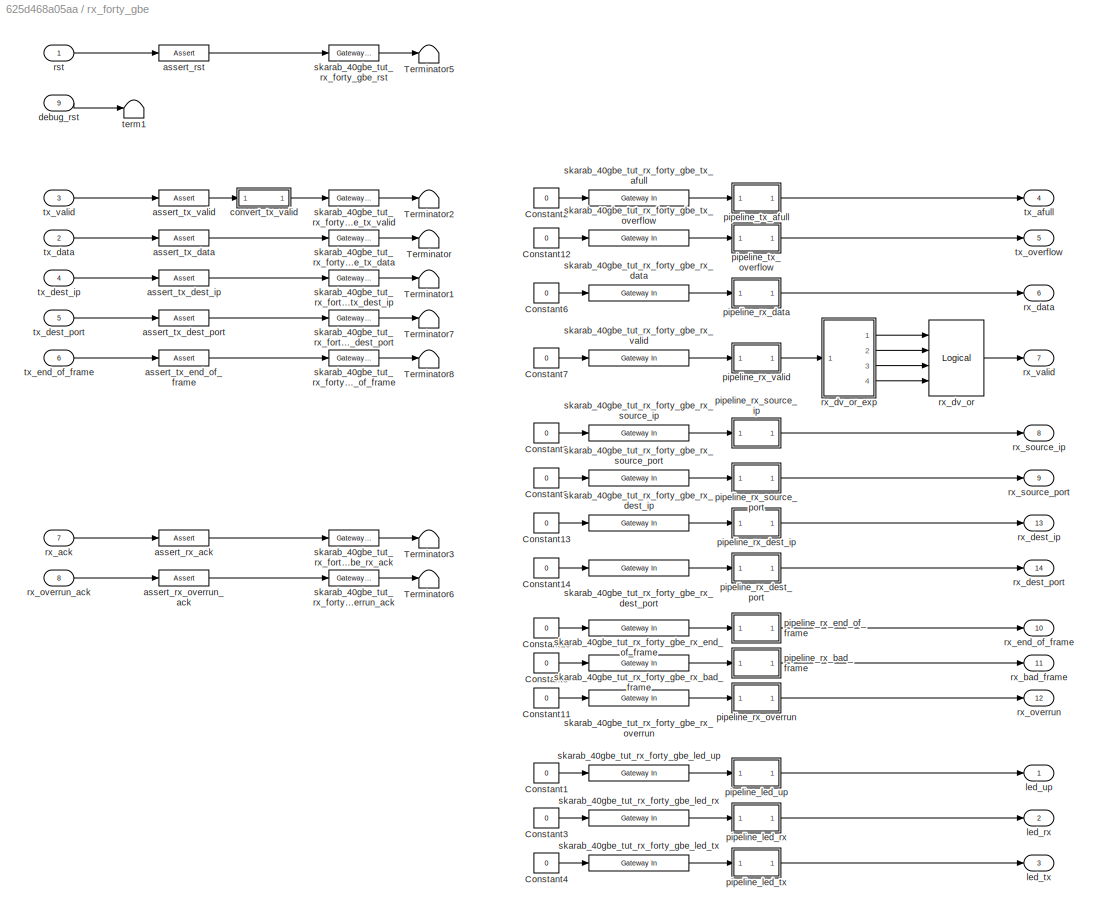
BLOCK [SubSystem] rx_forty_gbe
  AncestorBlock = xps_library/IO/forty_gbe
  AttributesFormatString = incoming_latency=3
  InitFcn = forty_gbe_init
  Ports = [9, 14]
  RequestExecContextInheritance = off
  Tag = xps:forty_gbe
BLOCK [Constant] rx_forty_gbe/Constant1
  Value = 0
BLOCK [Constant] rx_forty_gbe/Constant10
  Value = 0
BLOCK [Constant] rx_forty_gbe/Constant11
  Value = 0
BLOCK [Constant] rx_forty_gbe/Constant12
  Value = 0
BLOCK [Constant] rx_forty_gbe/Constant13
  Value = 0
BLOCK [Constant] rx_forty_gbe/Constant14
  Value = 0
BLOCK [Constant] rx_forty_gbe/Constant2
  Value = 0
BLOCK [Constant] rx_forty_gbe/Constant3
  Value = 0
BLOCK [Constant] rx_forty_gbe/Constant4
  Value = 0
BLOCK [Constant] rx_forty_gbe/Constant5
  Value = 0
BLOCK [Constant] rx_forty_gbe/Constant6
  Value = 0
BLOCK [Constant] rx_forty_gbe/Constant7
  Value = 0
BLOCK [Constant] rx_forty_gbe/Constant8
  Value = 0
BLOCK [Constant] rx_forty_gbe/Constant9
  Value = 0
BLOCK [Terminator] rx_forty_gbe/Terminator
BLOCK [Terminator] rx_forty_gbe/Terminator1
BLOCK [Terminator] rx_forty_gbe/Terminator2
BLOCK [Terminator] rx_forty_gbe/Terminator3
BLOCK [Terminator] rx_forty_gbe/Terminator5
BLOCK [Terminator] rx_forty_gbe/Terminator6
BLOCK [Terminator] rx_forty_gbe/Terminator7
BLOCK [Terminator] rx_forty_gbe/Terminator8
BLOCK [Reference] rx_forty_gbe/assert_rst  REF=xbsIndex_r4/Assert
  Ports = [1, 1]
  SourceBlock = xbsIndex_r4/Assert
  SourceType = Xilinx Assert Block
BLOCK [Reference] rx_forty_gbe/assert_rx_ack  REF=xbsIndex_r4/Assert
  Ports = [1, 1]
  SourceBlock = xbsIndex_r4/Assert
  SourceType = Xilinx Assert Block
BLOCK [Reference] rx_forty_gbe/assert_rx_overrun_ack  REF=xbsIndex_r4/Assert
  Ports = [1, 1]
  SourceBlock = xbsIndex_r4/Assert
  SourceType = Xilinx Assert Block
BLOCK [Reference] rx_forty_gbe/assert_tx_data  REF=xbsIndex_r4/Assert
  Ports = [1, 1]
  SourceBlock = xbsIndex_r4/Assert
  SourceType = Xilinx Assert Block
BLOCK [Reference] rx_forty_gbe/assert_tx_dest_ip  REF=xbsIndex_r4/Assert
  Ports = [1, 1]
  SourceBlock = xbsIndex_r4/Assert
  SourceType = Xilinx Assert Block
BLOCK [Reference] rx_forty_gbe/assert_tx_dest_port  REF=xbsIndex_r4/Assert
  Ports = [1, 1]
  SourceBlock = xbsIndex_r4/Assert
  SourceType = Xilinx Assert Block
BLOCK [Reference] rx_forty_gbe/assert_tx_end_of_frame  REF=xbsIndex_r4/Assert
  Ports = [1, 1]
  SourceBlock = xbsIndex_r4/Assert
  SourceType = Xilinx Assert Block
BLOCK [Reference] rx_forty_gbe/assert_tx_valid  REF=xbsIndex_r4/Assert
  Ports = [1, 1]
  SourceBlock = xbsIndex_r4/Assert
  SourceType = Xilinx Assert Block
BLOCK [SubSystem] rx_forty_gbe/convert_tx_valid
  AncestorBlock = casper_library_bus/bus_replicate
  Ports = [1, 1]
  RequestExecContextInheritance = off
  UserDataPersistent = on
BLOCK [SubSystem] rx_forty_gbe/convert_tx_valid/bussify
  AncestorBlock = casper_library_flow_control/bus_create
  Ports = [4, 1]
  RequestExecContextInheritance = off
  UserDataPersistent = on
BLOCK [Outport] rx_forty_gbe/convert_tx_valid/bussify/bus_out
  IconDisplay = Port number
BLOCK [Reference] rx_forty_gbe/convert_tx_valid/bussify/concatenate  REF=xbsIndex_r4/Concat
  Ports = [4, 1]
  SourceBlock = xbsIndex_r4/Concat
  SourceType = Xilinx Bus Concatenator Block
BLOCK [Inport] rx_forty_gbe/convert_tx_valid/bussify/in1
  IconDisplay = Port number
BLOCK [Inport] rx_forty_gbe/convert_tx_valid/bussify/in2
  IconDisplay = Port number
  Port = 2
BLOCK [Inport] rx_forty_gbe/convert_tx_valid/bussify/in3
  IconDisplay = Port number
  Port = 3
BLOCK [Inport] rx_forty_gbe/convert_tx_valid/bussify/in4
  IconDisplay = Port number
  Port = 4
BLOCK [Reference] rx_forty_gbe/convert_tx_valid/bussify/reinterpret1  REF=xbsIndex_r4/Reinterpret
  Ports = [1, 1]
  SourceBlock = xbsIndex_r4/Reinterpret
  SourceType = Xilinx Type Reinterpreter Block
BLOCK [Reference] rx_forty_gbe/convert_tx_valid/bussify/reinterpret2  REF=xbsIndex_r4/Reinterpret
  Ports = [1, 1]
  SourceBlock = xbsIndex_r4/Reinterpret
  SourceType = Xilinx Type Reinterpreter Block
BLOCK [Reference] rx_forty_gbe/convert_tx_valid/bussify/reinterpret3  REF=xbsIndex_r4/Reinterpret
  Ports = [1, 1]
  SourceBlock = xbsIndex_r4/Reinterpret
  SourceType = Xilinx Type Reinterpreter Block
BLOCK [Reference] rx_forty_gbe/convert_tx_valid/bussify/reinterpret4  REF=xbsIndex_r4/Reinterpret
  Ports = [1, 1]
  SourceBlock = xbsIndex_r4/Reinterpret
  SourceType = Xilinx Type Reinterpreter Block
BLOCK [Inport] rx_forty_gbe/convert_tx_valid/in
  IconDisplay = Port number
BLOCK [Outport] rx_forty_gbe/convert_tx_valid/out
  IconDisplay = Port number
BLOCK [Inport] rx_forty_gbe/debug_rst
  IconDisplay = Port number
  Port = 9
BLOCK [Outport] rx_forty_gbe/led_rx
  IconDisplay = Port number
  Port = 2
BLOCK [Outport] rx_forty_gbe/led_tx
  IconDisplay = Port number
  Port = 3
BLOCK [Outport] rx_forty_gbe/led_up
  IconDisplay = Port number
BLOCK [SubSystem] rx_forty_gbe/pipeline_led_rx
  AncestorBlock = casper_library_delays/pipeline
  AttributesFormatString = Latency = %<latency>
  Ports = [1, 1]
  RequestExecContextInheritance = off
  UserDataPersistent = on
BLOCK [Reference] rx_forty_gbe/pipeline_led_rx/Register0  REF=xbsIndex_r4/Register
  Ports = [1, 1]
  SourceBlock = xbsIndex_r4/Register
  SourceType = Xilinx Register Block
BLOCK [Reference] rx_forty_gbe/pipeline_led_rx/Register1  REF=xbsIndex_r4/Register
  Ports = [1, 1]
  SourceBlock = xbsIndex_r4/Register
  SourceType = Xilinx Register Block
BLOCK [Reference] rx_forty_gbe/pipeline_led_rx/Register2  REF=xbsIndex_r4/Register
  Ports = [1, 1]
  SourceBlock = xbsIndex_r4/Register
  SourceType = Xilinx Register Block
BLOCK [Inport] rx_forty_gbe/pipeline_led_rx/d
  IconDisplay = Port number
BLOCK [Outport] rx_forty_gbe/pipeline_led_rx/q
  IconDisplay = Port number
BLOCK [SubSystem] rx_forty_gbe/pipeline_led_tx
  AncestorBlock = casper_library_delays/pipeline
  AttributesFormatString = Latency = %<latency>
  Ports = [1, 1]
  RequestExecContextInheritance = off
  UserDataPersistent = on
BLOCK [Reference] rx_forty_gbe/pipeline_led_tx/Register0  REF=xbsIndex_r4/Register
  Ports = [1, 1]
  SourceBlock = xbsIndex_r4/Register
  SourceType = Xilinx Register Block
BLOCK [Reference] rx_forty_gbe/pipeline_led_tx/Register1  REF=xbsIndex_r4/Register
  Ports = [1, 1]
  SourceBlock = xbsIndex_r4/Register
  SourceType = Xilinx Register Block
BLOCK [Reference] rx_forty_gbe/pipeline_led_tx/Register2  REF=xbsIndex_r4/Register
  Ports = [1, 1]
  SourceBlock = xbsIndex_r4/Register
  SourceType = Xilinx Register Block
BLOCK [Inport] rx_forty_gbe/pipeline_led_tx/d
  IconDisplay = Port number
BLOCK [Outport] rx_forty_gbe/pipeline_led_tx/q
  IconDisplay = Port number
BLOCK [SubSystem] rx_forty_gbe/pipeline_led_up
  AncestorBlock = casper_library_delays/pipeline
  AttributesFormatString = Latency = %<latency>
  Ports = [1, 1]
  RequestExecContextInheritance = off
  UserDataPersistent = on
BLOCK [Reference] rx_forty_gbe/pipeline_led_up/Register0  REF=xbsIndex_r4/Register
  Ports = [1, 1]
  SourceBlock = xbsIndex_r4/Register
  SourceType = Xilinx Register Block
BLOCK [Reference] rx_forty_gbe/pipeline_led_up/Register1  REF=xbsIndex_r4/Register
  Ports = [1, 1]
  SourceBlock = xbsIndex_r4/Register
  SourceType = Xilinx Register Block
BLOCK [Reference] rx_forty_gbe/pipeline_led_up/Register2  REF=xbsIndex_r4/Register
  Ports = [1, 1]
  SourceBlock = xbsIndex_r4/Register
  SourceType = Xilinx Register Block
BLOCK [Inport] rx_forty_gbe/pipeline_led_up/d
  IconDisplay = Port number
BLOCK [Outport] rx_forty_gbe/pipeline_led_up/q
  IconDisplay = Port number
BLOCK [SubSystem] rx_forty_gbe/pipeline_rx_bad_frame
  AncestorBlock = casper_library_delays/pipeline
  AttributesFormatString = Latency = %<latency>
  Ports = [1, 1]
  RequestExecContextInheritance = off
  UserDataPersistent = on
BLOCK [Reference] rx_forty_gbe/pipeline_rx_bad_frame/Register0  REF=xbsIndex_r4/Register
  Ports = [1, 1]
  SourceBlock = xbsIndex_r4/Register
  SourceType = Xilinx Register Block
BLOCK [Reference] rx_forty_gbe/pipeline_rx_bad_frame/Register1  REF=xbsIndex_r4/Register
  Ports = [1, 1]
  SourceBlock = xbsIndex_r4/Register
  SourceType = Xilinx Register Block
BLOCK [Reference] rx_forty_gbe/pipeline_rx_bad_frame/Register2  REF=xbsIndex_r4/Register
  Ports = [1, 1]
  SourceBlock = xbsIndex_r4/Register
  SourceType = Xilinx Register Block
BLOCK [Inport] rx_forty_gbe/pipeline_rx_bad_frame/d
  IconDisplay = Port number
BLOCK [Outport] rx_forty_gbe/pipeline_rx_bad_frame/q
  IconDisplay = Port number
BLOCK [SubSystem] rx_forty_gbe/pipeline_rx_data
  AncestorBlock = casper_library_delays/pipeline
  AttributesFormatString = Latency = %<latency>
  Ports = [1, 1]
  RequestExecContextInheritance = off
  UserDataPersistent = on
BLOCK [Reference] rx_forty_gbe/pipeline_rx_data/Register0  REF=xbsIndex_r4/Register
  Ports = [1, 1]
  SourceBlock = xbsIndex_r4/Register
  SourceType = Xilinx Register Block
BLOCK [Reference] rx_forty_gbe/pipeline_rx_data/Register1  REF=xbsIndex_r4/Register
  Ports = [1, 1]
  SourceBlock = xbsIndex_r4/Register
  SourceType = Xilinx Register Block
BLOCK [Reference] rx_forty_gbe/pipeline_rx_data/Register2  REF=xbsIndex_r4/Register
  Ports = [1, 1]
  SourceBlock = xbsIndex_r4/Register
  SourceType = Xilinx Register Block
BLOCK [Inport] rx_forty_gbe/pipeline_rx_data/d
  IconDisplay = Port number
BLOCK [Outport] rx_forty_gbe/pipeline_rx_data/q
  IconDisplay = Port number
BLOCK [SubSystem] rx_forty_gbe/pipeline_rx_dest_ip
  AncestorBlock = casper_library_delays/pipeline
  AttributesFormatString = Latency = %<latency>
  Ports = [1, 1]
  RequestExecContextInheritance = off
  UserDataPersistent = on
BLOCK [Reference] rx_forty_gbe/pipeline_rx_dest_ip/Register0  REF=xbsIndex_r4/Register
  Ports = [1, 1]
  SourceBlock = xbsIndex_r4/Register
  SourceType = Xilinx Register Block
BLOCK [Reference] rx_forty_gbe/pipeline_rx_dest_ip/Register1  REF=xbsIndex_r4/Register
  Ports = [1, 1]
  SourceBlock = xbsIndex_r4/Register
  SourceType = Xilinx Register Block
BLOCK [Reference] rx_forty_gbe/pipeline_rx_dest_ip/Register2  REF=xbsIndex_r4/Register
  Ports = [1, 1]
  SourceBlock = xbsIndex_r4/Register
  SourceType = Xilinx Register Block
BLOCK [Inport] rx_forty_gbe/pipeline_rx_dest_ip/d
  IconDisplay = Port number
BLOCK [Outport] rx_forty_gbe/pipeline_rx_dest_ip/q
  IconDisplay = Port number
BLOCK [SubSystem] rx_forty_gbe/pipeline_rx_dest_port
  AncestorBlock = casper_library_delays/pipeline
  AttributesFormatString = Latency = %<latency>
  Ports = [1, 1]
  RequestExecContextInheritance = off
  UserDataPersistent = on
BLOCK [Reference] rx_forty_gbe/pipeline_rx_dest_port/Register0  REF=xbsIndex_r4/Register
  Ports = [1, 1]
  SourceBlock = xbsIndex_r4/Register
  SourceType = Xilinx Register Block
BLOCK [Reference] rx_forty_gbe/pipeline_rx_dest_port/Register1  REF=xbsIndex_r4/Register
  Ports = [1, 1]
  SourceBlock = xbsIndex_r4/Register
  SourceType = Xilinx Register Block
BLOCK [Reference] rx_forty_gbe/pipeline_rx_dest_port/Register2  REF=xbsIndex_r4/Register
  Ports = [1, 1]
  SourceBlock = xbsIndex_r4/Register
  SourceType = Xilinx Register Block
BLOCK [Inport] rx_forty_gbe/pipeline_rx_dest_port/d
  IconDisplay = Port number
BLOCK [Outport] rx_forty_gbe/pipeline_rx_dest_port/q
  IconDisplay = Port number
BLOCK [SubSystem] rx_forty_gbe/pipeline_rx_end_of_frame
  AncestorBlock = casper_library_delays/pipeline
  AttributesFormatString = Latency = %<latency>
  Ports = [1, 1]
  RequestExecContextInheritance = off
  UserDataPersistent = on
BLOCK [Reference] rx_forty_gbe/pipeline_rx_end_of_frame/Register0  REF=xbsIndex_r4/Register
  Ports = [1, 1]
  SourceBlock = xbsIndex_r4/Register
  SourceType = Xilinx Register Block
BLOCK [Reference] rx_forty_gbe/pipeline_rx_end_of_frame/Register1  REF=xbsIndex_r4/Register
  Ports = [1, 1]
  SourceBlock = xbsIndex_r4/Register
  SourceType = Xilinx Register Block
BLOCK [Reference] rx_forty_gbe/pipeline_rx_end_of_frame/Register2  REF=xbsIndex_r4/Register
  Ports = [1, 1]
  SourceBlock = xbsIndex_r4/Register
  SourceType = Xilinx Register Block
BLOCK [Inport] rx_forty_gbe/pipeline_rx_end_of_frame/d
  IconDisplay = Port number
BLOCK [Outport] rx_forty_gbe/pipeline_rx_end_of_frame/q
  IconDisplay = Port number
BLOCK [SubSystem] rx_forty_gbe/pipeline_rx_overrun
  AncestorBlock = casper_library_delays/pipeline
  AttributesFormatString = Latency = %<latency>
  Ports = [1, 1]
  RequestExecContextInheritance = off
  UserDataPersistent = on
BLOCK [Reference] rx_forty_gbe/pipeline_rx_overrun/Register0  REF=xbsIndex_r4/Register
  Ports = [1, 1]
  SourceBlock = xbsIndex_r4/Register
  SourceType = Xilinx Register Block
BLOCK [Reference] rx_forty_gbe/pipeline_rx_overrun/Register1  REF=xbsIndex_r4/Register
  Ports = [1, 1]
  SourceBlock = xbsIndex_r4/Register
  SourceType = Xilinx Register Block
BLOCK [Reference] rx_forty_gbe/pipeline_rx_overrun/Register2  REF=xbsIndex_r4/Register
  Ports = [1, 1]
  SourceBlock = xbsIndex_r4/Register
  SourceType = Xilinx Register Block
BLOCK [Inport] rx_forty_gbe/pipeline_rx_overrun/d
  IconDisplay = Port number
BLOCK [Outport] rx_forty_gbe/pipeline_rx_overrun/q
  IconDisplay = Port number
BLOCK [SubSystem] rx_forty_gbe/pipeline_rx_source_ip
  AncestorBlock = casper_library_delays/pipeline
  AttributesFormatString = Latency = %<latency>
  Ports = [1, 1]
  RequestExecContextInheritance = off
  UserDataPersistent = on
BLOCK [Reference] rx_forty_gbe/pipeline_rx_source_ip/Register0  REF=xbsIndex_r4/Register
  Ports = [1, 1]
  SourceBlock = xbsIndex_r4/Register
  SourceType = Xilinx Register Block
BLOCK [Reference] rx_forty_gbe/pipeline_rx_source_ip/Register1  REF=xbsIndex_r4/Register
  Ports = [1, 1]
  SourceBlock = xbsIndex_r4/Register
  SourceType = Xilinx Register Block
BLOCK [Reference] rx_forty_gbe/pipeline_rx_source_ip/Register2  REF=xbsIndex_r4/Register
  Ports = [1, 1]
  SourceBlock = xbsIndex_r4/Register
  SourceType = Xilinx Register Block
BLOCK [Inport] rx_forty_gbe/pipeline_rx_source_ip/d
  IconDisplay = Port number
BLOCK [Outport] rx_forty_gbe/pipeline_rx_source_ip/q
  IconDisplay = Port number
BLOCK [SubSystem] rx_forty_gbe/pipeline_rx_source_port
  AncestorBlock = casper_library_delays/pipeline
  AttributesFormatString = Latency = %<latency>
  Ports = [1, 1]
  RequestExecContextInheritance = off
  UserDataPersistent = on
BLOCK [Reference] rx_forty_gbe/pipeline_rx_source_port/Register0  REF=xbsIndex_r4/Register
  Ports = [1, 1]
  SourceBlock = xbsIndex_r4/Register
  SourceType = Xilinx Register Block
BLOCK [Reference] rx_forty_gbe/pipeline_rx_source_port/Register1  REF=xbsIndex_r4/Register
  Ports = [1, 1]
  SourceBlock = xbsIndex_r4/Register
  SourceType = Xilinx Register Block
BLOCK [Reference] rx_forty_gbe/pipeline_rx_source_port/Register2  REF=xbsIndex_r4/Register
  Ports = [1, 1]
  SourceBlock = xbsIndex_r4/Register
  SourceType = Xilinx Register Block
BLOCK [Inport] rx_forty_gbe/pipeline_rx_source_port/d
  IconDisplay = Port number
BLOCK [Outport] rx_forty_gbe/pipeline_rx_source_port/q
  IconDisplay = Port number
BLOCK [SubSystem] rx_forty_gbe/pipeline_rx_valid
  AncestorBlock = casper_library_delays/pipeline
  AttributesFormatString = Latency = %<latency>
  Ports = [1, 1]
  RequestExecContextInheritance = off
  UserDataPersistent = on
BLOCK [Reference] rx_forty_gbe/pipeline_rx_valid/Register0  REF=xbsIndex_r4/Register
  Ports = [1, 1]
  SourceBlock = xbsIndex_r4/Register
  SourceType = Xilinx Register Block
BLOCK [Reference] rx_forty_gbe/pipeline_rx_valid/Register1  REF=xbsIndex_r4/Register
  Ports = [1, 1]
  SourceBlock = xbsIndex_r4/Register
  SourceType = Xilinx Register Block
BLOCK [Reference] rx_forty_gbe/pipeline_rx_valid/Register2  REF=xbsIndex_r4/Register
  Ports = [1, 1]
  SourceBlock = xbsIndex_r4/Register
  SourceType = Xilinx Register Block
BLOCK [Inport] rx_forty_gbe/pipeline_rx_valid/d
  IconDisplay = Port number
BLOCK [Outport] rx_forty_gbe/pipeline_rx_valid/q
  IconDisplay = Port number
BLOCK [SubSystem] rx_forty_gbe/pipeline_tx_afull
  AncestorBlock = casper_library_delays/pipeline
  AttributesFormatString = Latency = %<latency>
  Ports = [1, 1]
  RequestExecContextInheritance = off
  UserDataPersistent = on
BLOCK [Reference] rx_forty_gbe/pipeline_tx_afull/Register0  REF=xbsIndex_r4/Register
  Ports = [1, 1]
  SourceBlock = xbsIndex_r4/Register
  SourceType = Xilinx Register Block
BLOCK [Reference] rx_forty_gbe/pipeline_tx_afull/Register1  REF=xbsIndex_r4/Register
  Ports = [1, 1]
  SourceBlock = xbsIndex_r4/Register
  SourceType = Xilinx Register Block
BLOCK [Reference] rx_forty_gbe/pipeline_tx_afull/Register2  REF=xbsIndex_r4/Register
  Ports = [1, 1]
  SourceBlock = xbsIndex_r4/Register
  SourceType = Xilinx Register Block
BLOCK [Inport] rx_forty_gbe/pipeline_tx_afull/d
  IconDisplay = Port number
BLOCK [Outport] rx_forty_gbe/pipeline_tx_afull/q
  IconDisplay = Port number
BLOCK [SubSystem] rx_forty_gbe/pipeline_tx_overflow
  AncestorBlock = casper_library_delays/pipeline
  AttributesFormatString = Latency = %<latency>
  Ports = [1, 1]
  RequestExecContextInheritance = off
  UserDataPersistent = on
BLOCK [Reference] rx_forty_gbe/pipeline_tx_overflow/Register0  REF=xbsIndex_r4/Register
  Ports = [1, 1]
  SourceBlock = xbsIndex_r4/Register
  SourceType = Xilinx Register Block
BLOCK [Reference] rx_forty_gbe/pipeline_tx_overflow/Register1  REF=xbsIndex_r4/Register
  Ports = [1, 1]
  SourceBlock = xbsIndex_r4/Register
  SourceType = Xilinx Register Block
BLOCK [Reference] rx_forty_gbe/pipeline_tx_overflow/Register2  REF=xbsIndex_r4/Register
  Ports = [1, 1]
  SourceBlock = xbsIndex_r4/Register
  SourceType = Xilinx Register Block
BLOCK [Inport] rx_forty_gbe/pipeline_tx_overflow/d
  IconDisplay = Port number
BLOCK [Outport] rx_forty_gbe/pipeline_tx_overflow/q
  IconDisplay = Port number
BLOCK [Inport] rx_forty_gbe/rst
  IconDisplay = Port number
BLOCK [Inport] rx_forty_gbe/rx_ack
  IconDisplay = Port number
  Port = 7
BLOCK [Outport] rx_forty_gbe/rx_bad_frame
  IconDisplay = Port number
  Port = 11
BLOCK [Outport] rx_forty_gbe/rx_data
  IconDisplay = Port number
  Port = 6
BLOCK [Outport] rx_forty_gbe/rx_dest_ip
  IconDisplay = Port number
  Port = 13
BLOCK [Outport] rx_forty_gbe/rx_dest_port
  IconDisplay = Port number
  Port = 14
BLOCK [Reference] rx_forty_gbe/rx_dv_or  REF=xbsIndex_r4/Logical
  Ports = [4, 1]
  SourceBlock = xbsIndex_r4/Logical
  SourceType = Xilinx Logical Block Block
BLOCK [SubSystem] rx_forty_gbe/rx_dv_or_exp
  AncestorBlock = casper_library_flow_control/bus_expand
  AttributesFormatString = 4 outputs
  Ports = [1, 4]
  RequestExecContextInheritance = off
  UserDataPersistent = on
BLOCK [Inport] rx_forty_gbe/rx_dv_or_exp/bus_in
  IconDisplay = Port number
BLOCK [Outport] rx_forty_gbe/rx_dv_or_exp/lsb_out1
  IconDisplay = Port number
  Port = 4
BLOCK [Outport] rx_forty_gbe/rx_dv_or_exp/msb_out4
  IconDisplay = Port number
BLOCK [Outport] rx_forty_gbe/rx_dv_or_exp/out2
  IconDisplay = Port number
  Port = 3
BLOCK [Outport] rx_forty_gbe/rx_dv_or_exp/out3
  IconDisplay = Port number
  Port = 2
BLOCK [Reference] rx_forty_gbe/rx_dv_or_exp/slice1  REF=xbsIndex_r4/Slice
  Ports = [1, 1]
  SourceBlock = xbsIndex_r4/Slice
  SourceType = Xilinx Bit Slice Extractor Block
BLOCK [Reference] rx_forty_gbe/rx_dv_or_exp/slice2  REF=xbsIndex_r4/Slice
  Ports = [1, 1]
  SourceBlock = xbsIndex_r4/Slice
  SourceType = Xilinx Bit Slice Extractor Block
BLOCK [Reference] rx_forty_gbe/rx_dv_or_exp/slice3  REF=xbsIndex_r4/Slice
  Ports = [1, 1]
  SourceBlock = xbsIndex_r4/Slice
  SourceType = Xilinx Bit Slice Extractor Block
BLOCK [Reference] rx_forty_gbe/rx_dv_or_exp/slice4  REF=xbsIndex_r4/Slice
  Ports = [1, 1]
  SourceBlock = xbsIndex_r4/Slice
  SourceType = Xilinx Bit Slice Extractor Block
BLOCK [Outport] rx_forty_gbe/rx_end_of_frame
  IconDisplay = Port number
  Port = 10
BLOCK [Outport] rx_forty_gbe/rx_overrun
  IconDisplay = Port number
  Port = 12
BLOCK [Inport] rx_forty_gbe/rx_overrun_ack
  IconDisplay = Port number
  Port = 8
BLOCK [Outport] rx_forty_gbe/rx_source_ip
  IconDisplay = Port number
  Port = 8
BLOCK [Outport] rx_forty_gbe/rx_source_port
  IconDisplay = Port number
  Port = 9
BLOCK [Outport] rx_forty_gbe/rx_valid
  IconDisplay = Port number
  Port = 7
BLOCK [Reference] rx_forty_gbe/skarab_40gbe_tut_rx_forty_gbe_led_rx  REF=xbsIndex_r4/Gateway In
  Ports = [1, 1]
  SourceBlock = xbsIndex_r4/Gateway In
  SourceType = Xilinx Gateway In Block
BLOCK [Reference] rx_forty_gbe/skarab_40gbe_tut_rx_forty_gbe_led_tx  REF=xbsIndex_r4/Gateway In
  Ports = [1, 1]
  SourceBlock = xbsIndex_r4/Gateway In
  SourceType = Xilinx Gateway In Block
BLOCK [Reference] rx_forty_gbe/skarab_40gbe_tut_rx_forty_gbe_led_up  REF=xbsIndex_r4/Gateway In
  Ports = [1, 1]
  SourceBlock = xbsIndex_r4/Gateway In
  SourceType = Xilinx Gateway In Block
BLOCK [Reference] rx_forty_gbe/skarab_40gbe_tut_rx_forty_gbe_rst  REF=xbsIndex_r4/Gateway Out
  Ports = [1, 1]
  SourceBlock = xbsIndex_r4/Gateway Out
  SourceType = Xilinx Gateway Out Block
BLOCK [Reference] rx_forty_gbe/skarab_40gbe_tut_rx_forty_gbe_rx_ack  REF=xbsIndex_r4/Gateway Out
  Ports = [1, 1]
  SourceBlock = xbsIndex_r4/Gateway Out
  SourceType = Xilinx Gateway Out Block
BLOCK [Reference] rx_forty_gbe/skarab_40gbe_tut_rx_forty_gbe_rx_bad_frame  REF=xbsIndex_r4/Gateway In
  Ports = [1, 1]
  SourceBlock = xbsIndex_r4/Gateway In
  SourceType = Xilinx Gateway In Block
BLOCK [Reference] rx_forty_gbe/skarab_40gbe_tut_rx_forty_gbe_rx_data  REF=xbsIndex_r4/Gateway In
  Ports = [1, 1]
  SourceBlock = xbsIndex_r4/Gateway In
  SourceType = Xilinx Gateway In Block
BLOCK [Reference] rx_forty_gbe/skarab_40gbe_tut_rx_forty_gbe_rx_dest_ip  REF=xbsIndex_r4/Gateway In
  Ports = [1, 1]
  SourceBlock = xbsIndex_r4/Gateway In
  SourceType = Xilinx Gateway In Block
BLOCK [Reference] rx_forty_gbe/skarab_40gbe_tut_rx_forty_gbe_rx_dest_port  REF=xbsIndex_r4/Gateway In
  Ports = [1, 1]
  SourceBlock = xbsIndex_r4/Gateway In
  SourceType = Xilinx Gateway In Block
BLOCK [Reference] rx_forty_gbe/skarab_40gbe_tut_rx_forty_gbe_rx_end_of_frame  REF=xbsIndex_r4/Gateway In
  Ports = [1, 1]
  SourceBlock = xbsIndex_r4/Gateway In
  SourceType = Xilinx Gateway In Block
BLOCK [Reference] rx_forty_gbe/skarab_40gbe_tut_rx_forty_gbe_rx_overrun  REF=xbsIndex_r4/Gateway In
  Ports = [1, 1]
  SourceBlock = xbsIndex_r4/Gateway In
  SourceType = Xilinx Gateway In Block
BLOCK [Reference] rx_forty_gbe/skarab_40gbe_tut_rx_forty_gbe_rx_overrun_ack  REF=xbsIndex_r4/Gateway Out
  Ports = [1, 1]
  SourceBlock = xbsIndex_r4/Gateway Out
  SourceType = Xilinx Gateway Out Block
BLOCK [Reference] rx_forty_gbe/skarab_40gbe_tut_rx_forty_gbe_rx_source_ip  REF=xbsIndex_r4/Gateway In
  Ports = [1, 1]
  SourceBlock = xbsIndex_r4/Gateway In
  SourceType = Xilinx Gateway In Block
BLOCK [Reference] rx_forty_gbe/skarab_40gbe_tut_rx_forty_gbe_rx_source_port  REF=xbsIndex_r4/Gateway In
  Ports = [1, 1]
  SourceBlock = xbsIndex_r4/Gateway In
  SourceType = Xilinx Gateway In Block
BLOCK [Reference] rx_forty_gbe/skarab_40gbe_tut_rx_forty_gbe_rx_valid  REF=xbsIndex_r4/Gateway In
  Ports = [1, 1]
  SourceBlock = xbsIndex_r4/Gateway In
  SourceType = Xilinx Gateway In Block
BLOCK [Reference] rx_forty_gbe/skarab_40gbe_tut_rx_forty_gbe_tx_afull  REF=xbsIndex_r4/Gateway In
  Ports = [1, 1]
  SourceBlock = xbsIndex_r4/Gateway In
  SourceType = Xilinx Gateway In Block
BLOCK [Reference] rx_forty_gbe/skarab_40gbe_tut_rx_forty_gbe_tx_data  REF=xbsIndex_r4/Gateway Out
  Ports = [1, 1]
  SourceBlock = xbsIndex_r4/Gateway Out
  SourceType = Xilinx Gateway Out Block
BLOCK [Reference] rx_forty_gbe/skarab_40gbe_tut_rx_forty_gbe_tx_dest_ip  REF=xbsIndex_r4/Gateway Out
  Ports = [1, 1]
  SourceBlock = xbsIndex_r4/Gateway Out
  SourceType = Xilinx Gateway Out Block
BLOCK [Reference] rx_forty_gbe/skarab_40gbe_tut_rx_forty_gbe_tx_dest_port  REF=xbsIndex_r4/Gateway Out
  Ports = [1, 1]
  SourceBlock = xbsIndex_r4/Gateway Out
  SourceType = Xilinx Gateway Out Block
BLOCK [Reference] rx_forty_gbe/skarab_40gbe_tut_rx_forty_gbe_tx_end_of_frame  REF=xbsIndex_r4/Gateway Out
  Ports = [1, 1]
  SourceBlock = xbsIndex_r4/Gateway Out
  SourceType = Xilinx Gateway Out Block
BLOCK [Reference] rx_forty_gbe/skarab_40gbe_tut_rx_forty_gbe_tx_overflow  REF=xbsIndex_r4/Gateway In
  Ports = [1, 1]
  SourceBlock = xbsIndex_r4/Gateway In
  SourceType = Xilinx Gateway In Block
BLOCK [Reference] rx_forty_gbe/skarab_40gbe_tut_rx_forty_gbe_tx_valid  REF=xbsIndex_r4/Gateway Out
  Ports = [1, 1]
  SourceBlock = xbsIndex_r4/Gateway Out
  SourceType = Xilinx Gateway Out Block
BLOCK [Terminator] rx_forty_gbe/term1
BLOCK [Outport] rx_forty_gbe/tx_afull
  IconDisplay = Port number
  Port = 4
BLOCK [Inport] rx_forty_gbe/tx_data
  IconDisplay = Port number
  Port = 2
BLOCK [Inport] rx_forty_gbe/tx_dest_ip
  IconDisplay = Port number
  Port = 4
BLOCK [Inport] rx_forty_gbe/tx_dest_port
  IconDisplay = Port number
  Port = 5
BLOCK [Inport] rx_forty_gbe/tx_end_of_frame
  IconDisplay = Port number
  Port = 6
BLOCK [Outport] rx_forty_gbe/tx_overflow
  IconDisplay = Port number
  Port = 5
BLOCK [Inport] rx_forty_gbe/tx_valid
  IconDisplay = Port number
  Port = 3
BLOCK [SubSystem] rx_overrun
  AncestorBlock = xps_library/Memory/software_register
  AttributesFormatString = 1output:uf32.0 = 32 bits
  Ports = [1]
  RequestExecContextInheritance = off
  Tag = xps:sw_reg
BLOCK [Reference] rx_overrun/assert_reg  REF=xbsIndex_r4/Assert
  Ports = [1, 1]
  SourceBlock = xbsIndex_r4/Assert
  SourceType = Xilinx Assert Block
BLOCK [Reference] rx_overrun/cast_gw  REF=xbsIndex_r4/Convert
  Ports = [1, 1]
  SourceBlock = xbsIndex_r4/Convert
  SourceType = Xilinx Type Converter Block
BLOCK [Reference] rx_overrun/io_delay  REF=xbsIndex_r4/Delay
  Ports = [1, 1]
  SourceBlock = xbsIndex_r4/Delay
  SourceType = Xilinx Delay Block
BLOCK [Inport] rx_overrun/out_reg
  IconDisplay = Port number
BLOCK [Reference] rx_overrun/reint1  REF=xbsIndex_r4/Reinterpret
  Ports = [1, 1]
  SourceBlock = xbsIndex_r4/Reinterpret
  SourceType = Xilinx Type Reinterpreter Block
BLOCK [Terminator] rx_overrun/sim_out
BLOCK [Reference] rx_overrun/skarab_40gbe_tut_rx_overrun_user_data_in  REF=xbsIndex_r4/Gateway Out
  Ports = [1, 1]
  SourceBlock = xbsIndex_r4/Gateway Out
  SourceType = Xilinx Gateway Out Block
BLOCK [SubSystem] rx_valid
  AncestorBlock = xps_library/Memory/software_register
  AttributesFormatString = 1output:uf32.0 = 32 bits
  Ports = [1]
  RequestExecContextInheritance = off
  Tag = xps:sw_reg
BLOCK [Reference] rx_valid/assert_reg  REF=xbsIndex_r4/Assert
  Ports = [1, 1]
  SourceBlock = xbsIndex_r4/Assert
  SourceType = Xilinx Assert Block
BLOCK [Reference] rx_valid/cast_gw  REF=xbsIndex_r4/Convert
  Ports = [1, 1]
  SourceBlock = xbsIndex_r4/Convert
  SourceType = Xilinx Type Converter Block
BLOCK [Reference] rx_valid/io_delay  REF=xbsIndex_r4/Delay
  Ports = [1, 1]
  SourceBlock = xbsIndex_r4/Delay
  SourceType = Xilinx Delay Block
BLOCK [Inport] rx_valid/out_reg
  IconDisplay = Port number
BLOCK [Reference] rx_valid/reint1  REF=xbsIndex_r4/Reinterpret
  Ports = [1, 1]
  SourceBlock = xbsIndex_r4/Reinterpret
  SourceType = Xilinx Type Reinterpreter Block
BLOCK [Terminator] rx_valid/sim_out
BLOCK [Reference] rx_valid/skarab_40gbe_tut_rx_valid_user_data_in  REF=xbsIndex_r4/Gateway Out
  Ports = [1, 1]
  SourceBlock = xbsIndex_r4/Gateway Out
  SourceType = Xilinx Gateway Out Block
BLOCK [SubSystem] tx_afull
  AncestorBlock = xps_library/Memory/software_register
  AttributesFormatString = 1output:uf32.0 = 32 bits
  Ports = [1]
  RequestExecContextInheritance = off
  Tag = xps:sw_reg
BLOCK [Reference] tx_afull/assert_reg  REF=xbsIndex_r4/Assert
  Ports = [1, 1]
  SourceBlock = xbsIndex_r4/Assert
  SourceType = Xilinx Assert Block
BLOCK [Reference] tx_afull/cast_gw  REF=xbsIndex_r4/Convert
  Ports = [1, 1]
  SourceBlock = xbsIndex_r4/Convert
  SourceType = Xilinx Type Converter Block
BLOCK [Reference] tx_afull/io_delay  REF=xbsIndex_r4/Delay
  Ports = [1, 1]
  SourceBlock = xbsIndex_r4/Delay
  SourceType = Xilinx Delay Block
BLOCK [Inport] tx_afull/out_reg
  IconDisplay = Port number
BLOCK [Reference] tx_afull/reint1  REF=xbsIndex_r4/Reinterpret
  Ports = [1, 1]
  SourceBlock = xbsIndex_r4/Reinterpret
  SourceType = Xilinx Type Reinterpreter Block
BLOCK [Terminator] tx_afull/sim_out
BLOCK [Reference] tx_afull/skarab_40gbe_tut_tx_afull_user_data_in  REF=xbsIndex_r4/Gateway Out
  Ports = [1, 1]
  SourceBlock = xbsIndex_r4/Gateway Out
  SourceType = Xilinx Gateway Out Block
BLOCK [SubSystem] tx_control
  AncestorBlock = xps_library/Memory/software_register
  AttributesFormatString = 6 inputs:b,b,b,b,uf10.0,b = 15 bits
  Ports = [6, 6]
  RequestExecContextInheritance = off
  Tag = xps:sw_reg
BLOCK [DataTypeConversion] tx_control/convert1_1
  LockScale = on
  OutDataTypeStr = fixdt('ufix1_En0')
  RndMeth = Floor
  SaturateOnIntegerOverflow = off
BLOCK [DataTypeConversion] tx_control/convert1_2
  LockScale = on
  OutDataTypeStr = fixdt('ufix1_En0')
  RndMeth = Floor
  SaturateOnIntegerOverflow = off
BLOCK [DataTypeConversion] tx_control/convert1_3
  LockScale = on
  OutDataTypeStr = fixdt('ufix1_En0')
  RndMeth = Floor
  SaturateOnIntegerOverflow = off
BLOCK [DataTypeConversion] tx_control/convert1_4
  LockScale = on
  OutDataTypeStr = fixdt('ufix1_En0')
  RndMeth = Floor
  SaturateOnIntegerOverflow = off
BLOCK [DataTypeConversion] tx_control/convert1_5
  LockScale = on
  OutDataTypeStr = fixdt('ufix10_En0')
  RndMeth = Floor
  SaturateOnIntegerOverflow = off
BLOCK [DataTypeConversion] tx_control/convert1_6
  LockScale = on
  OutDataTypeStr = fixdt('ufix1_En0')
  RndMeth = Floor
  SaturateOnIntegerOverflow = off
BLOCK [DataTypeConversion] tx_control/convert2_1
  ConvertRealWorld = Stored Integer (SI)
  LockScale = on
  OutDataTypeStr = fixdt('ufix1_En0')
  RndMeth = Floor
  SaturateOnIntegerOverflow = off
BLOCK [DataTypeConversion] tx_control/convert2_2
  ConvertRealWorld = Stored Integer (SI)
  LockScale = on
  OutDataTypeStr = fixdt('ufix1_En0')
  RndMeth = Floor
  SaturateOnIntegerOverflow = off
BLOCK [DataTypeConversion] tx_control/convert2_3
  ConvertRealWorld = Stored Integer (SI)
  LockScale = on
  OutDataTypeStr = fixdt('ufix1_En0')
  RndMeth = Floor
  SaturateOnIntegerOverflow = off
BLOCK [DataTypeConversion] tx_control/convert2_4
  ConvertRealWorld = Stored Integer (SI)
  LockScale = on
  OutDataTypeStr = fixdt('ufix1_En0')
  RndMeth = Floor
  SaturateOnIntegerOverflow = off
BLOCK [DataTypeConversion] tx_control/convert2_5
  ConvertRealWorld = Stored Integer (SI)
  LockScale = on
  OutDataTypeStr = fixdt('ufix10_En0')
  RndMeth = Floor
  SaturateOnIntegerOverflow = off
BLOCK [DataTypeConversion] tx_control/convert2_6
  ConvertRealWorld = Stored Integer (SI)
  LockScale = on
  OutDataTypeStr = fixdt('ufix1_En0')
  RndMeth = Floor
  SaturateOnIntegerOverflow = off
BLOCK [Gain] tx_control/gain_1
  Gain = 16384
  OutDataTypeStr = Inherit: Inherit via internal rule
  ParamDataTypeStr = Inherit: Inherit via internal rule
  SaturateOnIntegerOverflow = off
BLOCK [Gain] tx_control/gain_2
  Gain = 8192
  OutDataTypeStr = Inherit: Inherit via internal rule
  ParamDataTypeStr = Inherit: Inherit via internal rule
  SaturateOnIntegerOverflow = off
BLOCK [Gain] tx_control/gain_3
  Gain = 4096
  OutDataTypeStr = Inherit: Inherit via internal rule
  ParamDataTypeStr = Inherit: Inherit via internal rule
  SaturateOnIntegerOverflow = off
BLOCK [Gain] tx_control/gain_4
  Gain = 2048
  OutDataTypeStr = Inherit: Inherit via internal rule
  ParamDataTypeStr = Inherit: Inherit via internal rule
  SaturateOnIntegerOverflow = off
BLOCK [Gain] tx_control/gain_5
  Gain = 2
  OutDataTypeStr = Inherit: Inherit via internal rule
  ParamDataTypeStr = Inherit: Inherit via internal rule
  SaturateOnIntegerOverflow = off
BLOCK [Gain] tx_control/gain_6
  OutDataTypeStr = Inherit: Inherit via internal rule
  ParamDataTypeStr = Inherit: Inherit via internal rule
  SaturateOnIntegerOverflow = off
BLOCK [Outport] tx_control/in_dbg_rst
  IconDisplay = Port number
  Port = 2
BLOCK [Outport] tx_control/in_gbe_rst
  IconDisplay = Port number
BLOCK [Outport] tx_control/in_pkt_len
  IconDisplay = Port number
  Port = 5
BLOCK [Outport] tx_control/in_pkt_rst
  IconDisplay = Port number
  Port = 3
BLOCK [Outport] tx_control/in_snap_arm
  IconDisplay = Port number
  Port = 6
BLOCK [Outport] tx_control/in_tx_en
  IconDisplay = Port number
  Port = 4
BLOCK [Reference] tx_control/io_delay  REF=xbsIndex_r4/Delay
  Ports = [1, 1]
  SourceBlock = xbsIndex_r4/Delay
  SourceType = Xilinx Delay Block
BLOCK [Reference] tx_control/reint5  REF=xbsIndex_r4/Reinterpret
  Ports = [1, 1]
  SourceBlock = xbsIndex_r4/Reinterpret
  SourceType = Xilinx Type Reinterpreter Block
BLOCK [Inport] tx_control/sim_1
  IconDisplay = Port number
BLOCK [Inport] tx_control/sim_2
  IconDisplay = Port number
  Port = 2
BLOCK [Inport] tx_control/sim_3
  IconDisplay = Port number
  Port = 3
BLOCK [Inport] tx_control/sim_4
  IconDisplay = Port number
  Port = 4
BLOCK [Inport] tx_control/sim_5
  IconDisplay = Port number
  Port = 5
BLOCK [Inport] tx_control/sim_6
  IconDisplay = Port number
  Port = 6
BLOCK [Sum] tx_control/sim_add
  InputSameDT = off
  Inputs = ++++++
  OutDataTypeStr = uint32
  Ports = [6, 1]
  SaturateOnIntegerOverflow = off
BLOCK [Reference] tx_control/skarab_40gbe_tut_tx_control_user_data_out  REF=xbsIndex_r4/Gateway In
  Ports = [1, 1]
  SourceBlock = xbsIndex_r4/Gateway In
  SourceType = Xilinx Gateway In Block
BLOCK [Reference] tx_control/slice_dbg_rst  REF=xbsIndex_r4/Slice
  Ports = [1, 1]
  SourceBlock = xbsIndex_r4/Slice
  SourceType = Xilinx Bit Slice Extractor Block
BLOCK [Reference] tx_control/slice_gbe_rst  REF=xbsIndex_r4/Slice
  Ports = [1, 1]
  SourceBlock = xbsIndex_r4/Slice
  SourceType = Xilinx Bit Slice Extractor Block
BLOCK [Reference] tx_control/slice_pkt_len  REF=xbsIndex_r4/Slice
  Ports = [1, 1]
  SourceBlock = xbsIndex_r4/Slice
  SourceType = Xilinx Bit Slice Extractor Block
BLOCK [Reference] tx_control/slice_pkt_rst  REF=xbsIndex_r4/Slice
  Ports = [1, 1]
  SourceBlock = xbsIndex_r4/Slice
  SourceType = Xilinx Bit Slice Extractor Block
BLOCK [Reference] tx_control/slice_snap_arm  REF=xbsIndex_r4/Slice
  Ports = [1, 1]
  SourceBlock = xbsIndex_r4/Slice
  SourceType = Xilinx Bit Slice Extractor Block
BLOCK [Reference] tx_control/slice_tx_en  REF=xbsIndex_r4/Slice
  Ports = [1, 1]
  SourceBlock = xbsIndex_r4/Slice
  SourceType = Xilinx Bit Slice Extractor Block
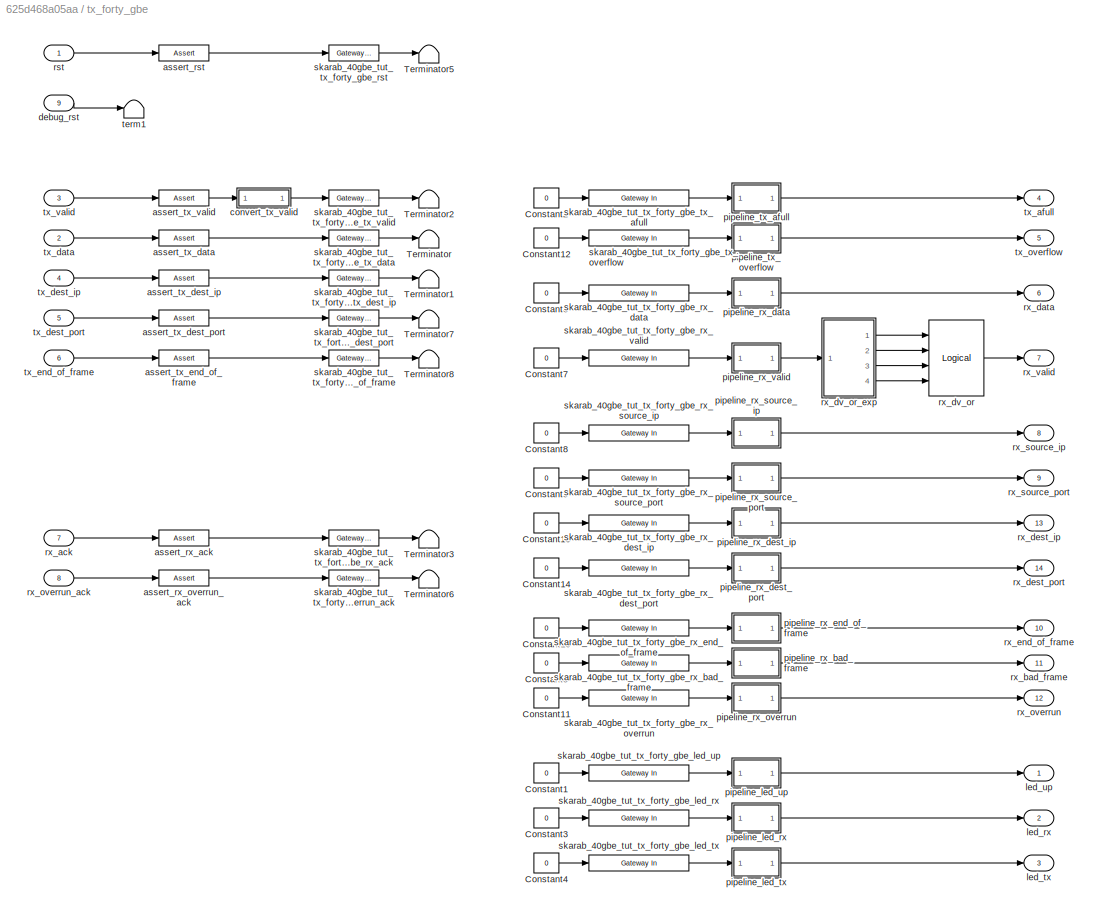
BLOCK [SubSystem] tx_forty_gbe
  AncestorBlock = xps_library/IO/forty_gbe
  AttributesFormatString = incoming_latency=3
  InitFcn = forty_gbe_init
  Ports = [9, 14]
  RequestExecContextInheritance = off
  Tag = xps:forty_gbe
BLOCK [Constant] tx_forty_gbe/Constant1
  Value = 0
BLOCK [Constant] tx_forty_gbe/Constant10
  Value = 0
BLOCK [Constant] tx_forty_gbe/Constant11
  Value = 0
BLOCK [Constant] tx_forty_gbe/Constant12
  Value = 0
BLOCK [Constant] tx_forty_gbe/Constant13
  Value = 0
BLOCK [Constant] tx_forty_gbe/Constant14
  Value = 0
BLOCK [Constant] tx_forty_gbe/Constant2
  Value = 0
BLOCK [Constant] tx_forty_gbe/Constant3
  Value = 0
BLOCK [Constant] tx_forty_gbe/Constant4
  Value = 0
BLOCK [Constant] tx_forty_gbe/Constant5
  Value = 0
BLOCK [Constant] tx_forty_gbe/Constant6
  Value = 0
BLOCK [Constant] tx_forty_gbe/Constant7
  Value = 0
BLOCK [Constant] tx_forty_gbe/Constant8
  Value = 0
BLOCK [Constant] tx_forty_gbe/Constant9
  Value = 0
BLOCK [Terminator] tx_forty_gbe/Terminator
BLOCK [Terminator] tx_forty_gbe/Terminator1
BLOCK [Terminator] tx_forty_gbe/Terminator2
BLOCK [Terminator] tx_forty_gbe/Terminator3
BLOCK [Terminator] tx_forty_gbe/Terminator5
BLOCK [Terminator] tx_forty_gbe/Terminator6
BLOCK [Terminator] tx_forty_gbe/Terminator7
BLOCK [Terminator] tx_forty_gbe/Terminator8
BLOCK [Reference] tx_forty_gbe/assert_rst  REF=xbsIndex_r4/Assert
  Ports = [1, 1]
  SourceBlock = xbsIndex_r4/Assert
  SourceType = Xilinx Assert Block
BLOCK [Reference] tx_forty_gbe/assert_rx_ack  REF=xbsIndex_r4/Assert
  Ports = [1, 1]
  SourceBlock = xbsIndex_r4/Assert
  SourceType = Xilinx Assert Block
BLOCK [Reference] tx_forty_gbe/assert_rx_overrun_ack  REF=xbsIndex_r4/Assert
  Ports = [1, 1]
  SourceBlock = xbsIndex_r4/Assert
  SourceType = Xilinx Assert Block
BLOCK [Reference] tx_forty_gbe/assert_tx_data  REF=xbsIndex_r4/Assert
  Ports = [1, 1]
  SourceBlock = xbsIndex_r4/Assert
  SourceType = Xilinx Assert Block
BLOCK [Reference] tx_forty_gbe/assert_tx_dest_ip  REF=xbsIndex_r4/Assert
  Ports = [1, 1]
  SourceBlock = xbsIndex_r4/Assert
  SourceType = Xilinx Assert Block
BLOCK [Reference] tx_forty_gbe/assert_tx_dest_port  REF=xbsIndex_r4/Assert
  Ports = [1, 1]
  SourceBlock = xbsIndex_r4/Assert
  SourceType = Xilinx Assert Block
BLOCK [Reference] tx_forty_gbe/assert_tx_end_of_frame  REF=xbsIndex_r4/Assert
  Ports = [1, 1]
  SourceBlock = xbsIndex_r4/Assert
  SourceType = Xilinx Assert Block
BLOCK [Reference] tx_forty_gbe/assert_tx_valid  REF=xbsIndex_r4/Assert
  Ports = [1, 1]
  SourceBlock = xbsIndex_r4/Assert
  SourceType = Xilinx Assert Block
BLOCK [SubSystem] tx_forty_gbe/convert_tx_valid
  AncestorBlock = casper_library_bus/bus_replicate
  Ports = [1, 1]
  RequestExecContextInheritance = off
  UserDataPersistent = on
BLOCK [SubSystem] tx_forty_gbe/convert_tx_valid/bussify
  AncestorBlock = casper_library_flow_control/bus_create
  Ports = [4, 1]
  RequestExecContextInheritance = off
  UserDataPersistent = on
BLOCK [Outport] tx_forty_gbe/convert_tx_valid/bussify/bus_out
  IconDisplay = Port number
BLOCK [Reference] tx_forty_gbe/convert_tx_valid/bussify/concatenate  REF=xbsIndex_r4/Concat
  Ports = [4, 1]
  SourceBlock = xbsIndex_r4/Concat
  SourceType = Xilinx Bus Concatenator Block
BLOCK [Inport] tx_forty_gbe/convert_tx_valid/bussify/in1
  IconDisplay = Port number
BLOCK [Inport] tx_forty_gbe/convert_tx_valid/bussify/in2
  IconDisplay = Port number
  Port = 2
BLOCK [Inport] tx_forty_gbe/convert_tx_valid/bussify/in3
  IconDisplay = Port number
  Port = 3
BLOCK [Inport] tx_forty_gbe/convert_tx_valid/bussify/in4
  IconDisplay = Port number
  Port = 4
BLOCK [Reference] tx_forty_gbe/convert_tx_valid/bussify/reinterpret1  REF=xbsIndex_r4/Reinterpret
  Ports = [1, 1]
  SourceBlock = xbsIndex_r4/Reinterpret
  SourceType = Xilinx Type Reinterpreter Block
BLOCK [Reference] tx_forty_gbe/convert_tx_valid/bussify/reinterpret2  REF=xbsIndex_r4/Reinterpret
  Ports = [1, 1]
  SourceBlock = xbsIndex_r4/Reinterpret
  SourceType = Xilinx Type Reinterpreter Block
BLOCK [Reference] tx_forty_gbe/convert_tx_valid/bussify/reinterpret3  REF=xbsIndex_r4/Reinterpret
  Ports = [1, 1]
  SourceBlock = xbsIndex_r4/Reinterpret
  SourceType = Xilinx Type Reinterpreter Block
BLOCK [Reference] tx_forty_gbe/convert_tx_valid/bussify/reinterpret4  REF=xbsIndex_r4/Reinterpret
  Ports = [1, 1]
  SourceBlock = xbsIndex_r4/Reinterpret
  SourceType = Xilinx Type Reinterpreter Block
BLOCK [Inport] tx_forty_gbe/convert_tx_valid/in
  IconDisplay = Port number
BLOCK [Outport] tx_forty_gbe/convert_tx_valid/out
  IconDisplay = Port number
BLOCK [Inport] tx_forty_gbe/debug_rst
  IconDisplay = Port number
  Port = 9
BLOCK [Outport] tx_forty_gbe/led_rx
  IconDisplay = Port number
  Port = 2
BLOCK [Outport] tx_forty_gbe/led_tx
  IconDisplay = Port number
  Port = 3
BLOCK [Outport] tx_forty_gbe/led_up
  IconDisplay = Port number
BLOCK [SubSystem] tx_forty_gbe/pipeline_led_rx
  AncestorBlock = casper_library_delays/pipeline
  AttributesFormatString = Latency = %<latency>
  Ports = [1, 1]
  RequestExecContextInheritance = off
  UserDataPersistent = on
BLOCK [Reference] tx_forty_gbe/pipeline_led_rx/Register0  REF=xbsIndex_r4/Register
  Ports = [1, 1]
  SourceBlock = xbsIndex_r4/Register
  SourceType = Xilinx Register Block
BLOCK [Reference] tx_forty_gbe/pipeline_led_rx/Register1  REF=xbsIndex_r4/Register
  Ports = [1, 1]
  SourceBlock = xbsIndex_r4/Register
  SourceType = Xilinx Register Block
BLOCK [Reference] tx_forty_gbe/pipeline_led_rx/Register2  REF=xbsIndex_r4/Register
  Ports = [1, 1]
  SourceBlock = xbsIndex_r4/Register
  SourceType = Xilinx Register Block
BLOCK [Inport] tx_forty_gbe/pipeline_led_rx/d
  IconDisplay = Port number
BLOCK [Outport] tx_forty_gbe/pipeline_led_rx/q
  IconDisplay = Port number
BLOCK [SubSystem] tx_forty_gbe/pipeline_led_tx
  AncestorBlock = casper_library_delays/pipeline
  AttributesFormatString = Latency = %<latency>
  Ports = [1, 1]
  RequestExecContextInheritance = off
  UserDataPersistent = on
BLOCK [Reference] tx_forty_gbe/pipeline_led_tx/Register0  REF=xbsIndex_r4/Register
  Ports = [1, 1]
  SourceBlock = xbsIndex_r4/Register
  SourceType = Xilinx Register Block
BLOCK [Reference] tx_forty_gbe/pipeline_led_tx/Register1  REF=xbsIndex_r4/Register
  Ports = [1, 1]
  SourceBlock = xbsIndex_r4/Register
  SourceType = Xilinx Register Block
BLOCK [Reference] tx_forty_gbe/pipeline_led_tx/Register2  REF=xbsIndex_r4/Register
  Ports = [1, 1]
  SourceBlock = xbsIndex_r4/Register
  SourceType = Xilinx Register Block
BLOCK [Inport] tx_forty_gbe/pipeline_led_tx/d
  IconDisplay = Port number
BLOCK [Outport] tx_forty_gbe/pipeline_led_tx/q
  IconDisplay = Port number
BLOCK [SubSystem] tx_forty_gbe/pipeline_led_up
  AncestorBlock = casper_library_delays/pipeline
  AttributesFormatString = Latency = %<latency>
  Ports = [1, 1]
  RequestExecContextInheritance = off
  UserDataPersistent = on
BLOCK [Reference] tx_forty_gbe/pipeline_led_up/Register0  REF=xbsIndex_r4/Register
  Ports = [1, 1]
  SourceBlock = xbsIndex_r4/Register
  SourceType = Xilinx Register Block
BLOCK [Reference] tx_forty_gbe/pipeline_led_up/Register1  REF=xbsIndex_r4/Register
  Ports = [1, 1]
  SourceBlock = xbsIndex_r4/Register
  SourceType = Xilinx Register Block
BLOCK [Reference] tx_forty_gbe/pipeline_led_up/Register2  REF=xbsIndex_r4/Register
  Ports = [1, 1]
  SourceBlock = xbsIndex_r4/Register
  SourceType = Xilinx Register Block
BLOCK [Inport] tx_forty_gbe/pipeline_led_up/d
  IconDisplay = Port number
BLOCK [Outport] tx_forty_gbe/pipeline_led_up/q
  IconDisplay = Port number
BLOCK [SubSystem] tx_forty_gbe/pipeline_rx_bad_frame
  AncestorBlock = casper_library_delays/pipeline
  AttributesFormatString = Latency = %<latency>
  Ports = [1, 1]
  RequestExecContextInheritance = off
  UserDataPersistent = on
BLOCK [Reference] tx_forty_gbe/pipeline_rx_bad_frame/Register0  REF=xbsIndex_r4/Register
  Ports = [1, 1]
  SourceBlock = xbsIndex_r4/Register
  SourceType = Xilinx Register Block
BLOCK [Reference] tx_forty_gbe/pipeline_rx_bad_frame/Register1  REF=xbsIndex_r4/Register
  Ports = [1, 1]
  SourceBlock = xbsIndex_r4/Register
  SourceType = Xilinx Register Block
BLOCK [Reference] tx_forty_gbe/pipeline_rx_bad_frame/Register2  REF=xbsIndex_r4/Register
  Ports = [1, 1]
  SourceBlock = xbsIndex_r4/Register
  SourceType = Xilinx Register Block
BLOCK [Inport] tx_forty_gbe/pipeline_rx_bad_frame/d
  IconDisplay = Port number
BLOCK [Outport] tx_forty_gbe/pipeline_rx_bad_frame/q
  IconDisplay = Port number
BLOCK [SubSystem] tx_forty_gbe/pipeline_rx_data
  AncestorBlock = casper_library_delays/pipeline
  AttributesFormatString = Latency = %<latency>
  Ports = [1, 1]
  RequestExecContextInheritance = off
  UserDataPersistent = on
BLOCK [Reference] tx_forty_gbe/pipeline_rx_data/Register0  REF=xbsIndex_r4/Register
  Ports = [1, 1]
  SourceBlock = xbsIndex_r4/Register
  SourceType = Xilinx Register Block
BLOCK [Reference] tx_forty_gbe/pipeline_rx_data/Register1  REF=xbsIndex_r4/Register
  Ports = [1, 1]
  SourceBlock = xbsIndex_r4/Register
  SourceType = Xilinx Register Block
BLOCK [Reference] tx_forty_gbe/pipeline_rx_data/Register2  REF=xbsIndex_r4/Register
  Ports = [1, 1]
  SourceBlock = xbsIndex_r4/Register
  SourceType = Xilinx Register Block
BLOCK [Inport] tx_forty_gbe/pipeline_rx_data/d
  IconDisplay = Port number
BLOCK [Outport] tx_forty_gbe/pipeline_rx_data/q
  IconDisplay = Port number
BLOCK [SubSystem] tx_forty_gbe/pipeline_rx_dest_ip
  AncestorBlock = casper_library_delays/pipeline
  AttributesFormatString = Latency = %<latency>
  Ports = [1, 1]
  RequestExecContextInheritance = off
  UserDataPersistent = on
BLOCK [Reference] tx_forty_gbe/pipeline_rx_dest_ip/Register0  REF=xbsIndex_r4/Register
  Ports = [1, 1]
  SourceBlock = xbsIndex_r4/Register
  SourceType = Xilinx Register Block
BLOCK [Reference] tx_forty_gbe/pipeline_rx_dest_ip/Register1  REF=xbsIndex_r4/Register
  Ports = [1, 1]
  SourceBlock = xbsIndex_r4/Register
  SourceType = Xilinx Register Block
BLOCK [Reference] tx_forty_gbe/pipeline_rx_dest_ip/Register2  REF=xbsIndex_r4/Register
  Ports = [1, 1]
  SourceBlock = xbsIndex_r4/Register
  SourceType = Xilinx Register Block
BLOCK [Inport] tx_forty_gbe/pipeline_rx_dest_ip/d
  IconDisplay = Port number
BLOCK [Outport] tx_forty_gbe/pipeline_rx_dest_ip/q
  IconDisplay = Port number
BLOCK [SubSystem] tx_forty_gbe/pipeline_rx_dest_port
  AncestorBlock = casper_library_delays/pipeline
  AttributesFormatString = Latency = %<latency>
  Ports = [1, 1]
  RequestExecContextInheritance = off
  UserDataPersistent = on
BLOCK [Reference] tx_forty_gbe/pipeline_rx_dest_port/Register0  REF=xbsIndex_r4/Register
  Ports = [1, 1]
  SourceBlock = xbsIndex_r4/Register
  SourceType = Xilinx Register Block
BLOCK [Reference] tx_forty_gbe/pipeline_rx_dest_port/Register1  REF=xbsIndex_r4/Register
  Ports = [1, 1]
  SourceBlock = xbsIndex_r4/Register
  SourceType = Xilinx Register Block
BLOCK [Reference] tx_forty_gbe/pipeline_rx_dest_port/Register2  REF=xbsIndex_r4/Register
  Ports = [1, 1]
  SourceBlock = xbsIndex_r4/Register
  SourceType = Xilinx Register Block
BLOCK [Inport] tx_forty_gbe/pipeline_rx_dest_port/d
  IconDisplay = Port number
BLOCK [Outport] tx_forty_gbe/pipeline_rx_dest_port/q
  IconDisplay = Port number
BLOCK [SubSystem] tx_forty_gbe/pipeline_rx_end_of_frame
  AncestorBlock = casper_library_delays/pipeline
  AttributesFormatString = Latency = %<latency>
  Ports = [1, 1]
  RequestExecContextInheritance = off
  UserDataPersistent = on
BLOCK [Reference] tx_forty_gbe/pipeline_rx_end_of_frame/Register0  REF=xbsIndex_r4/Register
  Ports = [1, 1]
  SourceBlock = xbsIndex_r4/Register
  SourceType = Xilinx Register Block
BLOCK [Reference] tx_forty_gbe/pipeline_rx_end_of_frame/Register1  REF=xbsIndex_r4/Register
  Ports = [1, 1]
  SourceBlock = xbsIndex_r4/Register
  SourceType = Xilinx Register Block
BLOCK [Reference] tx_forty_gbe/pipeline_rx_end_of_frame/Register2  REF=xbsIndex_r4/Register
  Ports = [1, 1]
  SourceBlock = xbsIndex_r4/Register
  SourceType = Xilinx Register Block
BLOCK [Inport] tx_forty_gbe/pipeline_rx_end_of_frame/d
  IconDisplay = Port number
BLOCK [Outport] tx_forty_gbe/pipeline_rx_end_of_frame/q
  IconDisplay = Port number
BLOCK [SubSystem] tx_forty_gbe/pipeline_rx_overrun
  AncestorBlock = casper_library_delays/pipeline
  AttributesFormatString = Latency = %<latency>
  Ports = [1, 1]
  RequestExecContextInheritance = off
  UserDataPersistent = on
BLOCK [Reference] tx_forty_gbe/pipeline_rx_overrun/Register0  REF=xbsIndex_r4/Register
  Ports = [1, 1]
  SourceBlock = xbsIndex_r4/Register
  SourceType = Xilinx Register Block
BLOCK [Reference] tx_forty_gbe/pipeline_rx_overrun/Register1  REF=xbsIndex_r4/Register
  Ports = [1, 1]
  SourceBlock = xbsIndex_r4/Register
  SourceType = Xilinx Register Block
BLOCK [Reference] tx_forty_gbe/pipeline_rx_overrun/Register2  REF=xbsIndex_r4/Register
  Ports = [1, 1]
  SourceBlock = xbsIndex_r4/Register
  SourceType = Xilinx Register Block
BLOCK [Inport] tx_forty_gbe/pipeline_rx_overrun/d
  IconDisplay = Port number
BLOCK [Outport] tx_forty_gbe/pipeline_rx_overrun/q
  IconDisplay = Port number
BLOCK [SubSystem] tx_forty_gbe/pipeline_rx_source_ip
  AncestorBlock = casper_library_delays/pipeline
  AttributesFormatString = Latency = %<latency>
  Ports = [1, 1]
  RequestExecContextInheritance = off
  UserDataPersistent = on
BLOCK [Reference] tx_forty_gbe/pipeline_rx_source_ip/Register0  REF=xbsIndex_r4/Register
  Ports = [1, 1]
  SourceBlock = xbsIndex_r4/Register
  SourceType = Xilinx Register Block
BLOCK [Reference] tx_forty_gbe/pipeline_rx_source_ip/Register1  REF=xbsIndex_r4/Register
  Ports = [1, 1]
  SourceBlock = xbsIndex_r4/Register
  SourceType = Xilinx Register Block
BLOCK [Reference] tx_forty_gbe/pipeline_rx_source_ip/Register2  REF=xbsIndex_r4/Register
  Ports = [1, 1]
  SourceBlock = xbsIndex_r4/Register
  SourceType = Xilinx Register Block
BLOCK [Inport] tx_forty_gbe/pipeline_rx_source_ip/d
  IconDisplay = Port number
BLOCK [Outport] tx_forty_gbe/pipeline_rx_source_ip/q
  IconDisplay = Port number
BLOCK [SubSystem] tx_forty_gbe/pipeline_rx_source_port
  AncestorBlock = casper_library_delays/pipeline
  AttributesFormatString = Latency = %<latency>
  Ports = [1, 1]
  RequestExecContextInheritance = off
  UserDataPersistent = on
BLOCK [Reference] tx_forty_gbe/pipeline_rx_source_port/Register0  REF=xbsIndex_r4/Register
  Ports = [1, 1]
  SourceBlock = xbsIndex_r4/Register
  SourceType = Xilinx Register Block
BLOCK [Reference] tx_forty_gbe/pipeline_rx_source_port/Register1  REF=xbsIndex_r4/Register
  Ports = [1, 1]
  SourceBlock = xbsIndex_r4/Register
  SourceType = Xilinx Register Block
BLOCK [Reference] tx_forty_gbe/pipeline_rx_source_port/Register2  REF=xbsIndex_r4/Register
  Ports = [1, 1]
  SourceBlock = xbsIndex_r4/Register
  SourceType = Xilinx Register Block
BLOCK [Inport] tx_forty_gbe/pipeline_rx_source_port/d
  IconDisplay = Port number
BLOCK [Outport] tx_forty_gbe/pipeline_rx_source_port/q
  IconDisplay = Port number
BLOCK [SubSystem] tx_forty_gbe/pipeline_rx_valid
  AncestorBlock = casper_library_delays/pipeline
  AttributesFormatString = Latency = %<latency>
  Ports = [1, 1]
  RequestExecContextInheritance = off
  UserDataPersistent = on
BLOCK [Reference] tx_forty_gbe/pipeline_rx_valid/Register0  REF=xbsIndex_r4/Register
  Ports = [1, 1]
  SourceBlock = xbsIndex_r4/Register
  SourceType = Xilinx Register Block
BLOCK [Reference] tx_forty_gbe/pipeline_rx_valid/Register1  REF=xbsIndex_r4/Register
  Ports = [1, 1]
  SourceBlock = xbsIndex_r4/Register
  SourceType = Xilinx Register Block
BLOCK [Reference] tx_forty_gbe/pipeline_rx_valid/Register2  REF=xbsIndex_r4/Register
  Ports = [1, 1]
  SourceBlock = xbsIndex_r4/Register
  SourceType = Xilinx Register Block
BLOCK [Inport] tx_forty_gbe/pipeline_rx_valid/d
  IconDisplay = Port number
BLOCK [Outport] tx_forty_gbe/pipeline_rx_valid/q
  IconDisplay = Port number
BLOCK [SubSystem] tx_forty_gbe/pipeline_tx_afull
  AncestorBlock = casper_library_delays/pipeline
  AttributesFormatString = Latency = %<latency>
  Ports = [1, 1]
  RequestExecContextInheritance = off
  UserDataPersistent = on
BLOCK [Reference] tx_forty_gbe/pipeline_tx_afull/Register0  REF=xbsIndex_r4/Register
  Ports = [1, 1]
  SourceBlock = xbsIndex_r4/Register
  SourceType = Xilinx Register Block
BLOCK [Reference] tx_forty_gbe/pipeline_tx_afull/Register1  REF=xbsIndex_r4/Register
  Ports = [1, 1]
  SourceBlock = xbsIndex_r4/Register
  SourceType = Xilinx Register Block
BLOCK [Reference] tx_forty_gbe/pipeline_tx_afull/Register2  REF=xbsIndex_r4/Register
  Ports = [1, 1]
  SourceBlock = xbsIndex_r4/Register
  SourceType = Xilinx Register Block
BLOCK [Inport] tx_forty_gbe/pipeline_tx_afull/d
  IconDisplay = Port number
BLOCK [Outport] tx_forty_gbe/pipeline_tx_afull/q
  IconDisplay = Port number
BLOCK [SubSystem] tx_forty_gbe/pipeline_tx_overflow
  AncestorBlock = casper_library_delays/pipeline
  AttributesFormatString = Latency = %<latency>
  Ports = [1, 1]
  RequestExecContextInheritance = off
  UserDataPersistent = on
BLOCK [Reference] tx_forty_gbe/pipeline_tx_overflow/Register0  REF=xbsIndex_r4/Register
  Ports = [1, 1]
  SourceBlock = xbsIndex_r4/Register
  SourceType = Xilinx Register Block
BLOCK [Reference] tx_forty_gbe/pipeline_tx_overflow/Register1  REF=xbsIndex_r4/Register
  Ports = [1, 1]
  SourceBlock = xbsIndex_r4/Register
  SourceType = Xilinx Register Block
BLOCK [Reference] tx_forty_gbe/pipeline_tx_overflow/Register2  REF=xbsIndex_r4/Register
  Ports = [1, 1]
  SourceBlock = xbsIndex_r4/Register
  SourceType = Xilinx Register Block
BLOCK [Inport] tx_forty_gbe/pipeline_tx_overflow/d
  IconDisplay = Port number
BLOCK [Outport] tx_forty_gbe/pipeline_tx_overflow/q
  IconDisplay = Port number
BLOCK [Inport] tx_forty_gbe/rst
  IconDisplay = Port number
BLOCK [Inport] tx_forty_gbe/rx_ack
  IconDisplay = Port number
  Port = 7
BLOCK [Outport] tx_forty_gbe/rx_bad_frame
  IconDisplay = Port number
  Port = 11
BLOCK [Outport] tx_forty_gbe/rx_data
  IconDisplay = Port number
  Port = 6
BLOCK [Outport] tx_forty_gbe/rx_dest_ip
  IconDisplay = Port number
  Port = 13
BLOCK [Outport] tx_forty_gbe/rx_dest_port
  IconDisplay = Port number
  Port = 14
BLOCK [Reference] tx_forty_gbe/rx_dv_or  REF=xbsIndex_r4/Logical
  Ports = [4, 1]
  SourceBlock = xbsIndex_r4/Logical
  SourceType = Xilinx Logical Block Block
BLOCK [SubSystem] tx_forty_gbe/rx_dv_or_exp
  AncestorBlock = casper_library_flow_control/bus_expand
  AttributesFormatString = 4 outputs
  Ports = [1, 4]
  RequestExecContextInheritance = off
  UserDataPersistent = on
BLOCK [Inport] tx_forty_gbe/rx_dv_or_exp/bus_in
  IconDisplay = Port number
BLOCK [Outport] tx_forty_gbe/rx_dv_or_exp/lsb_out1
  IconDisplay = Port number
  Port = 4
BLOCK [Outport] tx_forty_gbe/rx_dv_or_exp/msb_out4
  IconDisplay = Port number
BLOCK [Outport] tx_forty_gbe/rx_dv_or_exp/out2
  IconDisplay = Port number
  Port = 3
BLOCK [Outport] tx_forty_gbe/rx_dv_or_exp/out3
  IconDisplay = Port number
  Port = 2
BLOCK [Reference] tx_forty_gbe/rx_dv_or_exp/slice1  REF=xbsIndex_r4/Slice
  Ports = [1, 1]
  SourceBlock = xbsIndex_r4/Slice
  SourceType = Xilinx Bit Slice Extractor Block
BLOCK [Reference] tx_forty_gbe/rx_dv_or_exp/slice2  REF=xbsIndex_r4/Slice
  Ports = [1, 1]
  SourceBlock = xbsIndex_r4/Slice
  SourceType = Xilinx Bit Slice Extractor Block
BLOCK [Reference] tx_forty_gbe/rx_dv_or_exp/slice3  REF=xbsIndex_r4/Slice
  Ports = [1, 1]
  SourceBlock = xbsIndex_r4/Slice
  SourceType = Xilinx Bit Slice Extractor Block
BLOCK [Reference] tx_forty_gbe/rx_dv_or_exp/slice4  REF=xbsIndex_r4/Slice
  Ports = [1, 1]
  SourceBlock = xbsIndex_r4/Slice
  SourceType = Xilinx Bit Slice Extractor Block
BLOCK [Outport] tx_forty_gbe/rx_end_of_frame
  IconDisplay = Port number
  Port = 10
BLOCK [Outport] tx_forty_gbe/rx_overrun
  IconDisplay = Port number
  Port = 12
BLOCK [Inport] tx_forty_gbe/rx_overrun_ack
  IconDisplay = Port number
  Port = 8
BLOCK [Outport] tx_forty_gbe/rx_source_ip
  IconDisplay = Port number
  Port = 8
BLOCK [Outport] tx_forty_gbe/rx_source_port
  IconDisplay = Port number
  Port = 9
BLOCK [Outport] tx_forty_gbe/rx_valid
  IconDisplay = Port number
  Port = 7
BLOCK [Reference] tx_forty_gbe/skarab_40gbe_tut_tx_forty_gbe_led_rx  REF=xbsIndex_r4/Gateway In
  Ports = [1, 1]
  SourceBlock = xbsIndex_r4/Gateway In
  SourceType = Xilinx Gateway In Block
BLOCK [Reference] tx_forty_gbe/skarab_40gbe_tut_tx_forty_gbe_led_tx  REF=xbsIndex_r4/Gateway In
  Ports = [1, 1]
  SourceBlock = xbsIndex_r4/Gateway In
  SourceType = Xilinx Gateway In Block
BLOCK [Reference] tx_forty_gbe/skarab_40gbe_tut_tx_forty_gbe_led_up  REF=xbsIndex_r4/Gateway In
  Ports = [1, 1]
  SourceBlock = xbsIndex_r4/Gateway In
  SourceType = Xilinx Gateway In Block
BLOCK [Reference] tx_forty_gbe/skarab_40gbe_tut_tx_forty_gbe_rst  REF=xbsIndex_r4/Gateway Out
  Ports = [1, 1]
  SourceBlock = xbsIndex_r4/Gateway Out
  SourceType = Xilinx Gateway Out Block
BLOCK [Reference] tx_forty_gbe/skarab_40gbe_tut_tx_forty_gbe_rx_ack  REF=xbsIndex_r4/Gateway Out
  Ports = [1, 1]
  SourceBlock = xbsIndex_r4/Gateway Out
  SourceType = Xilinx Gateway Out Block
BLOCK [Reference] tx_forty_gbe/skarab_40gbe_tut_tx_forty_gbe_rx_bad_frame  REF=xbsIndex_r4/Gateway In
  Ports = [1, 1]
  SourceBlock = xbsIndex_r4/Gateway In
  SourceType = Xilinx Gateway In Block
BLOCK [Reference] tx_forty_gbe/skarab_40gbe_tut_tx_forty_gbe_rx_data  REF=xbsIndex_r4/Gateway In
  Ports = [1, 1]
  SourceBlock = xbsIndex_r4/Gateway In
  SourceType = Xilinx Gateway In Block
BLOCK [Reference] tx_forty_gbe/skarab_40gbe_tut_tx_forty_gbe_rx_dest_ip  REF=xbsIndex_r4/Gateway In
  Ports = [1, 1]
  SourceBlock = xbsIndex_r4/Gateway In
  SourceType = Xilinx Gateway In Block
BLOCK [Reference] tx_forty_gbe/skarab_40gbe_tut_tx_forty_gbe_rx_dest_port  REF=xbsIndex_r4/Gateway In
  Ports = [1, 1]
  SourceBlock = xbsIndex_r4/Gateway In
  SourceType = Xilinx Gateway In Block
BLOCK [Reference] tx_forty_gbe/skarab_40gbe_tut_tx_forty_gbe_rx_end_of_frame  REF=xbsIndex_r4/Gateway In
  Ports = [1, 1]
  SourceBlock = xbsIndex_r4/Gateway In
  SourceType = Xilinx Gateway In Block
BLOCK [Reference] tx_forty_gbe/skarab_40gbe_tut_tx_forty_gbe_rx_overrun  REF=xbsIndex_r4/Gateway In
  Ports = [1, 1]
  SourceBlock = xbsIndex_r4/Gateway In
  SourceType = Xilinx Gateway In Block
BLOCK [Reference] tx_forty_gbe/skarab_40gbe_tut_tx_forty_gbe_rx_overrun_ack  REF=xbsIndex_r4/Gateway Out
  Ports = [1, 1]
  SourceBlock = xbsIndex_r4/Gateway Out
  SourceType = Xilinx Gateway Out Block
BLOCK [Reference] tx_forty_gbe/skarab_40gbe_tut_tx_forty_gbe_rx_source_ip  REF=xbsIndex_r4/Gateway In
  Ports = [1, 1]
  SourceBlock = xbsIndex_r4/Gateway In
  SourceType = Xilinx Gateway In Block
BLOCK [Reference] tx_forty_gbe/skarab_40gbe_tut_tx_forty_gbe_rx_source_port  REF=xbsIndex_r4/Gateway In
  Ports = [1, 1]
  SourceBlock = xbsIndex_r4/Gateway In
  SourceType = Xilinx Gateway In Block
BLOCK [Reference] tx_forty_gbe/skarab_40gbe_tut_tx_forty_gbe_rx_valid  REF=xbsIndex_r4/Gateway In
  Ports = [1, 1]
  SourceBlock = xbsIndex_r4/Gateway In
  SourceType = Xilinx Gateway In Block
BLOCK [Reference] tx_forty_gbe/skarab_40gbe_tut_tx_forty_gbe_tx_afull  REF=xbsIndex_r4/Gateway In
  Ports = [1, 1]
  SourceBlock = xbsIndex_r4/Gateway In
  SourceType = Xilinx Gateway In Block
BLOCK [Reference] tx_forty_gbe/skarab_40gbe_tut_tx_forty_gbe_tx_data  REF=xbsIndex_r4/Gateway Out
  Ports = [1, 1]
  SourceBlock = xbsIndex_r4/Gateway Out
  SourceType = Xilinx Gateway Out Block
BLOCK [Reference] tx_forty_gbe/skarab_40gbe_tut_tx_forty_gbe_tx_dest_ip  REF=xbsIndex_r4/Gateway Out
  Ports = [1, 1]
  SourceBlock = xbsIndex_r4/Gateway Out
  SourceType = Xilinx Gateway Out Block
BLOCK [Reference] tx_forty_gbe/skarab_40gbe_tut_tx_forty_gbe_tx_dest_port  REF=xbsIndex_r4/Gateway Out
  Ports = [1, 1]
  SourceBlock = xbsIndex_r4/Gateway Out
  SourceType = Xilinx Gateway Out Block
BLOCK [Reference] tx_forty_gbe/skarab_40gbe_tut_tx_forty_gbe_tx_end_of_frame  REF=xbsIndex_r4/Gateway Out
  Ports = [1, 1]
  SourceBlock = xbsIndex_r4/Gateway Out
  SourceType = Xilinx Gateway Out Block
BLOCK [Reference] tx_forty_gbe/skarab_40gbe_tut_tx_forty_gbe_tx_overflow  REF=xbsIndex_r4/Gateway In
  Ports = [1, 1]
  SourceBlock = xbsIndex_r4/Gateway In
  SourceType = Xilinx Gateway In Block
BLOCK [Reference] tx_forty_gbe/skarab_40gbe_tut_tx_forty_gbe_tx_valid  REF=xbsIndex_r4/Gateway Out
  Ports = [1, 1]
  SourceBlock = xbsIndex_r4/Gateway Out
  SourceType = Xilinx Gateway Out Block
BLOCK [Terminator] tx_forty_gbe/term1
BLOCK [Outport] tx_forty_gbe/tx_afull
  IconDisplay = Port number
  Port = 4
BLOCK [Inport] tx_forty_gbe/tx_data
  IconDisplay = Port number
  Port = 2
BLOCK [Inport] tx_forty_gbe/tx_dest_ip
  IconDisplay = Port number
  Port = 4
BLOCK [Inport] tx_forty_gbe/tx_dest_port
  IconDisplay = Port number
  Port = 5
BLOCK [Inport] tx_forty_gbe/tx_end_of_frame
  IconDisplay = Port number
  Port = 6
BLOCK [Outport] tx_forty_gbe/tx_overflow
  IconDisplay = Port number
  Port = 5
BLOCK [Inport] tx_forty_gbe/tx_valid
  IconDisplay = Port number
  Port = 3
BLOCK [SubSystem] tx_ip
  AncestorBlock = xps_library/Memory/software_register
  AttributesFormatString = 1input:uf32.0 = 32 bits
  Ports = [0, 1]
  RequestExecContextInheritance = off
  Tag = xps:sw_reg
BLOCK [DataTypeConversion] tx_ip/convert1_1
  LockScale = on
  OutDataTypeStr = fixdt('ufix32_En0')
  RndMeth = Floor
  SaturateOnIntegerOverflow = off
BLOCK [DataTypeConversion] tx_ip/convert2_1
  ConvertRealWorld = Stored Integer (SI)
  LockScale = on
  OutDataTypeStr = fixdt('ufix32_En0')
  RndMeth = Floor
  SaturateOnIntegerOverflow = off
BLOCK [Gain] tx_ip/gain_1
  OutDataTypeStr = Inherit: Inherit via internal rule
  ParamDataTypeStr = Inherit: Inherit via internal rule
  SaturateOnIntegerOverflow = off
BLOCK [Outport] tx_ip/in_reg
  IconDisplay = Port number
BLOCK [Reference] tx_ip/io_delay  REF=xbsIndex_r4/Delay
  Ports = [1, 1]
  SourceBlock = xbsIndex_r4/Delay
  SourceType = Xilinx Delay Block
BLOCK [Reference] tx_ip/reint1  REF=xbsIndex_r4/Reinterpret
  Ports = [1, 1]
  SourceBlock = xbsIndex_r4/Reinterpret
  SourceType = Xilinx Type Reinterpreter Block
BLOCK [Constant] tx_ip/sim_1
  Value = 0
BLOCK [Reference] tx_ip/skarab_40gbe_tut_tx_ip_user_data_out  REF=xbsIndex_r4/Gateway In
  Ports = [1, 1]
  SourceBlock = xbsIndex_r4/Gateway In
  SourceType = Xilinx Gateway In Block
BLOCK [Reference] tx_ip/slice_reg  REF=xbsIndex_r4/Slice
  Ports = [1, 1]
  SourceBlock = xbsIndex_r4/Slice
  SourceType = Xilinx Bit Slice Extractor Block
BLOCK [SubSystem] tx_overflow
  AncestorBlock = xps_library/Memory/software_register
  AttributesFormatString = 1output:uf32.0 = 32 bits
  Ports = [1]
  RequestExecContextInheritance = off
  Tag = xps:sw_reg
BLOCK [Reference] tx_overflow/assert_reg  REF=xbsIndex_r4/Assert
  Ports = [1, 1]
  SourceBlock = xbsIndex_r4/Assert
  SourceType = Xilinx Assert Block
BLOCK [Reference] tx_overflow/cast_gw  REF=xbsIndex_r4/Convert
  Ports = [1, 1]
  SourceBlock = xbsIndex_r4/Convert
  SourceType = Xilinx Type Converter Block
BLOCK [Reference] tx_overflow/io_delay  REF=xbsIndex_r4/Delay
  Ports = [1, 1]
  SourceBlock = xbsIndex_r4/Delay
  SourceType = Xilinx Delay Block
BLOCK [Inport] tx_overflow/out_reg
  IconDisplay = Port number
BLOCK [Reference] tx_overflow/reint1  REF=xbsIndex_r4/Reinterpret
  Ports = [1, 1]
  SourceBlock = xbsIndex_r4/Reinterpret
  SourceType = Xilinx Type Reinterpreter Block
BLOCK [Terminator] tx_overflow/sim_out
BLOCK [Reference] tx_overflow/skarab_40gbe_tut_tx_overflow_user_data_in  REF=xbsIndex_r4/Gateway Out
  Ports = [1, 1]
  SourceBlock = xbsIndex_r4/Gateway Out
  SourceType = Xilinx Gateway Out Block
BLOCK [SubSystem] tx_port
  AncestorBlock = xps_library/Memory/software_register
  AttributesFormatString = 1input:uf16.0 = 16 bits
  Ports = [0, 1]
  RequestExecContextInheritance = off
  Tag = xps:sw_reg
BLOCK [DataTypeConversion] tx_port/convert1_1
  LockScale = on
  OutDataTypeStr = fixdt('ufix16_En0')
  RndMeth = Floor
  SaturateOnIntegerOverflow = off
BLOCK [DataTypeConversion] tx_port/convert2_1
  ConvertRealWorld = Stored Integer (SI)
  LockScale = on
  OutDataTypeStr = fixdt('ufix16_En0')
  RndMeth = Floor
  SaturateOnIntegerOverflow = off
BLOCK [Gain] tx_port/gain_1
  OutDataTypeStr = Inherit: Inherit via internal rule
  ParamDataTypeStr = Inherit: Inherit via internal rule
  SaturateOnIntegerOverflow = off
BLOCK [Outport] tx_port/in_reg
  IconDisplay = Port number
BLOCK [Reference] tx_port/io_delay  REF=xbsIndex_r4/Delay
  Ports = [1, 1]
  SourceBlock = xbsIndex_r4/Delay
  SourceType = Xilinx Delay Block
BLOCK [Reference] tx_port/reint1  REF=xbsIndex_r4/Reinterpret
  Ports = [1, 1]
  SourceBlock = xbsIndex_r4/Reinterpret
  SourceType = Xilinx Type Reinterpreter Block
BLOCK [Constant] tx_port/sim_1
  Value = 0
BLOCK [Reference] tx_port/skarab_40gbe_tut_tx_port_user_data_out  REF=xbsIndex_r4/Gateway In
  Ports = [1, 1]
  SourceBlock = xbsIndex_r4/Gateway In
  SourceType = Xilinx Gateway In Block
BLOCK [Reference] tx_port/slice_reg  REF=xbsIndex_r4/Slice
  Ports = [1, 1]
  SourceBlock = xbsIndex_r4/Slice
  SourceType = Xilinx Bit Slice Extractor Block
BLOCK [SubSystem] txsnap0
  AncestorBlock = casper_library_scopes/bitfield_snapshot
  AttributesFormatString = snap(2):uf32.0,uf32.0 = 64 bits\n64 wide, 8192 deep\ndebugID: 120319869
  Ports = [4, 1]
  RequestExecContextInheritance = off
  Tag = casper:bitsnap
  UserDataPersistent = on
BLOCK [Outport] txsnap0/arm_out
  IconDisplay = Port number
BLOCK [Reference] txsnap0/assert_ctr0  REF=xbsIndex_r4/Assert
  Ports = [1, 1]
  SourceBlock = xbsIndex_r4/Assert
  SourceType = Xilinx Assert Block
BLOCK [Reference] txsnap0/assert_ramp0  REF=xbsIndex_r4/Assert
  Ports = [1, 1]
  SourceBlock = xbsIndex_r4/Assert
  SourceType = Xilinx Assert Block
BLOCK [SubSystem] txsnap0/buscreate
  AncestorBlock = casper_library_flow_control/bus_create
  Ports = [2, 1]
  RequestExecContextInheritance = off
  UserDataPersistent = on
BLOCK [Outport] txsnap0/buscreate/bus_out
  IconDisplay = Port number
BLOCK [Reference] txsnap0/buscreate/concatenate  REF=xbsIndex_r4/Concat
  Ports = [2, 1]
  SourceBlock = xbsIndex_r4/Concat
  SourceType = Xilinx Bus Concatenator Block
BLOCK [Inport] txsnap0/buscreate/in1
  IconDisplay = Port number
BLOCK [Inport] txsnap0/buscreate/in2
  IconDisplay = Port number
  Port = 2
BLOCK [Reference] txsnap0/buscreate/reinterpret1  REF=xbsIndex_r4/Reinterpret
  Ports = [1, 1]
  SourceBlock = xbsIndex_r4/Reinterpret
  SourceType = Xilinx Type Reinterpreter Block
BLOCK [Reference] txsnap0/buscreate/reinterpret2  REF=xbsIndex_r4/Reinterpret
  Ports = [1, 1]
  SourceBlock = xbsIndex_r4/Reinterpret
  SourceType = Xilinx Type Reinterpreter Block
BLOCK [Inport] txsnap0/in_ctr0
  IconDisplay = Port number
BLOCK [Inport] txsnap0/in_ramp0
  IconDisplay = Port number
  Port = 2
BLOCK [SubSystem] txsnap0/ss
  AncestorBlock = casper_library_scopes/snapshot
  AttributesFormatString = 64 wide, 8192 deep\ndebugID: 38660278
  Ports = [3, 1]
  RequestExecContextInheritance = off
  Tag = casper:snapshot
  UserDataPersistent = on
BLOCK [Reference] txsnap0/ss/add_del  REF=xbsIndex_r4/Delay
  Ports = [1, 1]
  SourceBlock = xbsIndex_r4/Delay
  SourceType = Xilinx Delay Block
BLOCK [SubSystem] txsnap0/ss/add_gen
  AncestorBlock = casper_library_scopes/snapshot/add_gen
  Ports = [6, 7]
  RequestExecContextInheritance = off
BLOCK [Reference] txsnap0/ss/add_gen/Concat  REF=xbsIndex_r4/Concat
  Ports = [3, 1]
  SourceBlock = xbsIndex_r4/Concat
  SourceType = Xilinx Bus Concatenator Block
BLOCK [Reference] txsnap0/ss/add_gen/Convert  REF=xbsIndex_r4/Convert
  Ports = [1, 1]
  SourceBlock = xbsIndex_r4/Convert
  SourceType = Xilinx Type Converter Block
BLOCK [Reference] txsnap0/ss/add_gen/Delay  REF=xbsIndex_r4/Delay
  Ports = [1, 1]
  SourceBlock = xbsIndex_r4/Delay
  SourceType = Xilinx Delay Block
BLOCK [Reference] txsnap0/ss/add_gen/Delay1  REF=xbsIndex_r4/Delay
  Ports = [1, 1]
  SourceBlock = xbsIndex_r4/Delay
  SourceType = Xilinx Delay Block
BLOCK [Reference] txsnap0/ss/add_gen/Delay2  REF=xbsIndex_r4/Delay
  Ports = [1, 1]
  SourceBlock = xbsIndex_r4/Delay
  SourceType = Xilinx Delay Block
BLOCK [Reference] txsnap0/ss/add_gen/Delay3  REF=xbsIndex_r4/Delay
  Ports = [1, 1]
  SourceBlock = xbsIndex_r4/Delay
  SourceType = Xilinx Delay Block
BLOCK [Reference] txsnap0/ss/add_gen/Delay4  REF=xbsIndex_r4/Delay
  Ports = [1, 1]
  SourceBlock = xbsIndex_r4/Delay
  SourceType = Xilinx Delay Block
BLOCK [Reference] txsnap0/ss/add_gen/Delay5  REF=xbsIndex_r4/Delay
  Ports = [1, 1]
  SourceBlock = xbsIndex_r4/Delay
  SourceType = Xilinx Delay Block
BLOCK [Reference] txsnap0/ss/add_gen/Delay6  REF=xbsIndex_r4/Delay
  Ports = [1, 1]
  SourceBlock = xbsIndex_r4/Delay
  SourceType = Xilinx Delay Block
BLOCK [Reference] txsnap0/ss/add_gen/Delay7  REF=xbsIndex_r4/Delay
  Ports = [1, 1]
  SourceBlock = xbsIndex_r4/Delay
  SourceType = Xilinx Delay Block
BLOCK [Reference] txsnap0/ss/add_gen/Inverter  REF=xbsIndex_r4/Inverter
  Ports = [1, 1]
  SourceBlock = xbsIndex_r4/Inverter
  SourceType = Xilinx Inverter Block
BLOCK [Reference] txsnap0/ss/add_gen/Inverter1  REF=xbsIndex_r4/Inverter
  Ports = [1, 1]
  SourceBlock = xbsIndex_r4/Inverter
  SourceType = Xilinx Inverter Block
BLOCK [Reference] txsnap0/ss/add_gen/Logical1  REF=xbsIndex_r4/Logical
  Ports = [2, 1]
  SourceBlock = xbsIndex_r4/Logical
  SourceType = Xilinx Logical Block Block
BLOCK [Reference] txsnap0/ss/add_gen/Logical2  REF=xbsIndex_r4/Logical
  Ports = [2, 1]
  SourceBlock = xbsIndex_r4/Logical
  SourceType = Xilinx Logical Block Block
BLOCK [Reference] txsnap0/ss/add_gen/Logical4  REF=xbsIndex_r4/Logical
  Ports = [2, 1]
  SourceBlock = xbsIndex_r4/Logical
  SourceType = Xilinx Logical Block Block
BLOCK [Reference] txsnap0/ss/add_gen/Logical6  REF=xbsIndex_r4/Logical
  Ports = [3, 1]
  SourceBlock = xbsIndex_r4/Logical
  SourceType = Xilinx Logical Block Block
BLOCK [Reference] txsnap0/ss/add_gen/Register3  REF=xbsIndex_r4/Register
  Ports = [3, 1]
  SourceBlock = xbsIndex_r4/Register
  SourceType = Xilinx Register Block
BLOCK [Reference] txsnap0/ss/add_gen/Register4  REF=xbsIndex_r4/Register
  Ports = [2, 1]
  SourceBlock = xbsIndex_r4/Register
  SourceType = Xilinx Register Block
BLOCK [Reference] txsnap0/ss/add_gen/Register5  REF=xbsIndex_r4/Register
  Ports = [3, 1]
  SourceBlock = xbsIndex_r4/Register
  SourceType = Xilinx Register Block
BLOCK [Reference] txsnap0/ss/add_gen/Shift  REF=xbsIndex_r4/Shift
  Ports = [1, 1]
  SourceBlock = xbsIndex_r4/Shift
  SourceType = Xilinx Binary Shift Operator Block
BLOCK [Outport] txsnap0/ss/add_gen/add
  IconDisplay = Port number
  Port = 2
BLOCK [Reference] txsnap0/ss/add_gen/add_gen  REF=xbsIndex_r4/Counter
  Ports = [2, 1]
  SourceBlock = xbsIndex_r4/Counter
  SourceType = Xilinx Counter Block
BLOCK [Inport] txsnap0/ss/add_gen/cont
  IconDisplay = Port number
  Port = 5
BLOCK [Inport] txsnap0/ss/add_gen/din
  IconDisplay = Port number
  Port = 2
BLOCK [Outport] txsnap0/ss/add_gen/done
  IconDisplay = Port number
  Port = 7
BLOCK [Outport] txsnap0/ss/add_gen/dout
  IconDisplay = Port number
  Port = 3
BLOCK [SubSystem] txsnap0/ss/add_gen/edge_detect
  AncestorBlock = casper_library_misc/edge_detect
  AttributesFormatString = both edges\nactive high
  Ports = [1, 1]
  RequestExecContextInheritance = off
  UserDataPersistent = on
BLOCK [Reference] txsnap0/ss/add_gen/edge_detect/Delay  REF=xbsIndex_r4/Delay
  Ports = [1, 1]
  SourceBlock = xbsIndex_r4/Delay
  SourceType = Xilinx Delay Block
BLOCK [Reference] txsnap0/ss/add_gen/edge_detect/Inverter  REF=xbsIndex_r4/Inverter
  Ports = [1, 1]
  SourceBlock = xbsIndex_r4/Inverter
  SourceType = Xilinx Inverter Block
BLOCK [Reference] txsnap0/ss/add_gen/edge_detect/edge_op  REF=xbsIndex_r4/Logical
  Ports = [2, 1]
  SourceBlock = xbsIndex_r4/Logical
  SourceType = Xilinx Logical Block Block
BLOCK [Inport] txsnap0/ss/add_gen/edge_detect/in
  IconDisplay = Port number
BLOCK [Outport] txsnap0/ss/add_gen/edge_detect/out
  IconDisplay = Port number
BLOCK [SubSystem] txsnap0/ss/add_gen/edge_detect1
  AncestorBlock = casper_library_scopes/snapshot/add_gen/edge_detect
  AttributesFormatString = both edges\nactive high
  Ports = [1, 1]
  RequestExecContextInheritance = off
  UserDataPersistent = on
BLOCK [Reference] txsnap0/ss/add_gen/edge_detect1/Delay  REF=xbsIndex_r4/Delay
  Ports = [1, 1]
  SourceBlock = xbsIndex_r4/Delay
  SourceType = Xilinx Delay Block
BLOCK [Reference] txsnap0/ss/add_gen/edge_detect1/Inverter  REF=xbsIndex_r4/Inverter
  Ports = [1, 1]
  SourceBlock = xbsIndex_r4/Inverter
  SourceType = Xilinx Inverter Block
BLOCK [Reference] txsnap0/ss/add_gen/edge_detect1/edge_op  REF=xbsIndex_r4/Logical
  Ports = [2, 1]
  SourceBlock = xbsIndex_r4/Logical
  SourceType = Xilinx Logical Block Block
BLOCK [Inport] txsnap0/ss/add_gen/edge_detect1/in
  IconDisplay = Port number
BLOCK [Outport] txsnap0/ss/add_gen/edge_detect1/out
  IconDisplay = Port number
BLOCK [Outport] txsnap0/ss/add_gen/en_cnt
  IconDisplay = Port number
  Port = 6
BLOCK [Inport] txsnap0/ss/add_gen/go
  IconDisplay = Port number
  Port = 4
BLOCK [Inport] txsnap0/ss/add_gen/init
  IconDisplay = Port number
  Port = 6
BLOCK [Reference] txsnap0/ss/add_gen/slice1  REF=xbsIndex_r4/Slice
  Ports = [1, 1]
  SourceBlock = xbsIndex_r4/Slice
  SourceType = Xilinx Bit Slice Extractor Block
BLOCK [Reference] txsnap0/ss/add_gen/slice2  REF=xbsIndex_r4/Slice
  Ports = [1, 1]
  SourceBlock = xbsIndex_r4/Slice
  SourceType = Xilinx Bit Slice Extractor Block
BLOCK [Reference] txsnap0/ss/add_gen/slice3  REF=xbsIndex_r4/Slice
  Ports = [1, 1]
  SourceBlock = xbsIndex_r4/Slice
  SourceType = Xilinx Bit Slice Extractor Block
BLOCK [Outport] txsnap0/ss/add_gen/status
  IconDisplay = Port number
  Port = 5
BLOCK [Inport] txsnap0/ss/add_gen/vin
  IconDisplay = Port number
BLOCK [Outport] txsnap0/ss/add_gen/vout
  IconDisplay = Port number
BLOCK [Inport] txsnap0/ss/add_gen/we
  IconDisplay = Port number
  Port = 3
BLOCK [Outport] txsnap0/ss/add_gen/we_o
  IconDisplay = Port number
  Port = 4
BLOCK [Reference] txsnap0/ss/arm  REF=xbsIndex_r4/Constant
  Ports = [0, 1]
  SourceBlock = xbsIndex_r4/Constant
  SourceType = Xilinx Constant Block Block
BLOCK [Reference] txsnap0/ss/arm_or  REF=xbsIndex_r4/Logical
  Ports = [2, 1]
  SourceBlock = xbsIndex_r4/Logical
  SourceType = Xilinx Logical Block Block
BLOCK [Outport] txsnap0/ss/arm_out
  IconDisplay = Port number
BLOCK [SubSystem] txsnap0/ss/basic_ctrl
  AncestorBlock = casper_library_scopes/snapshot/basic_ctrl
  Ports = [6, 6]
  RequestExecContextInheritance = off
BLOCK [Reference] txsnap0/ss/basic_ctrl/Constant  REF=xbsIndex_r4/Constant
  Ports = [0, 1]
  SourceBlock = xbsIndex_r4/Constant
  SourceType = Xilinx Constant Block Block
BLOCK [Reference] txsnap0/ss/basic_ctrl/Constant1  REF=xbsIndex_r4/Constant
  Ports = [0, 1]
  SourceBlock = xbsIndex_r4/Constant
  SourceType = Xilinx Constant Block Block
BLOCK [Reference] txsnap0/ss/basic_ctrl/Constant2  REF=xbsIndex_r4/Constant
  Ports = [0, 1]
  SourceBlock = xbsIndex_r4/Constant
  SourceType = Xilinx Constant Block Block
BLOCK [Reference] txsnap0/ss/basic_ctrl/Delay1  REF=xbsIndex_r4/Delay
  Ports = [1, 1]
  SourceBlock = xbsIndex_r4/Delay
  SourceType = Xilinx Delay Block
BLOCK [Reference] txsnap0/ss/basic_ctrl/Delay2  REF=xbsIndex_r4/Delay
  Ports = [1, 1]
  SourceBlock = xbsIndex_r4/Delay
  SourceType = Xilinx Delay Block
BLOCK [Reference] txsnap0/ss/basic_ctrl/Delay3  REF=xbsIndex_r4/Delay
  Ports = [1, 1]
  SourceBlock = xbsIndex_r4/Delay
  SourceType = Xilinx Delay Block
BLOCK [Reference] txsnap0/ss/basic_ctrl/Inverter  REF=xbsIndex_r4/Inverter
  Ports = [1, 1]
  SourceBlock = xbsIndex_r4/Inverter
  SourceType = Xilinx Inverter Block
BLOCK [Reference] txsnap0/ss/basic_ctrl/Logical  REF=xbsIndex_r4/Logical
  Ports = [2, 1]
  SourceBlock = xbsIndex_r4/Logical
  SourceType = Xilinx Logical Block Block
BLOCK [Reference] txsnap0/ss/basic_ctrl/Mux1  REF=xbsIndex_r4/Mux
  Ports = [3, 1]
  SourceBlock = xbsIndex_r4/Mux
  SourceType = Xilinx Bus Multiplexer Block
BLOCK [Reference] txsnap0/ss/basic_ctrl/Mux2  REF=xbsIndex_r4/Mux
  Ports = [3, 1]
  SourceBlock = xbsIndex_r4/Mux
  SourceType = Xilinx Bus Multiplexer Block
BLOCK [Reference] txsnap0/ss/basic_ctrl/Register1  REF=xbsIndex_r4/Register
  Ports = [3, 1]
  SourceBlock = xbsIndex_r4/Register
  SourceType = Xilinx Register Block
BLOCK [Reference] txsnap0/ss/basic_ctrl/Register6  REF=xbsIndex_r4/Register
  Ports = [3, 1]
  SourceBlock = xbsIndex_r4/Register
  SourceType = Xilinx Register Block
BLOCK [Inport] txsnap0/ss/basic_ctrl/ctrl
  IconDisplay = Port number
  Port = 5
BLOCK [Inport] txsnap0/ss/basic_ctrl/din
  IconDisplay = Port number
  Port = 2
BLOCK [Outport] txsnap0/ss/basic_ctrl/dout
  IconDisplay = Port number
  Port = 2
BLOCK [SubSystem] txsnap0/ss/basic_ctrl/dram_munge
  Ports = [4, 3]
  RequestExecContextInheritance = off
BLOCK [Reference] txsnap0/ss/basic_ctrl/dram_munge/Concat  REF=xbsIndex_r4/Concat
  Ports = [4, 1]
  SourceBlock = xbsIndex_r4/Concat
  SourceType = Xilinx Bus Concatenator Block
BLOCK [Reference] txsnap0/ss/basic_ctrl/dram_munge/Concat1  REF=xbsIndex_r4/Concat
  Ports = [4, 1]
  SourceBlock = xbsIndex_r4/Concat
  SourceType = Xilinx Bus Concatenator Block
BLOCK [Reference] txsnap0/ss/basic_ctrl/dram_munge/Constant  REF=xbsIndex_r4/Constant
  Ports = [0, 1]
  SourceBlock = xbsIndex_r4/Constant
  SourceType = Xilinx Constant Block Block
BLOCK [Reference] txsnap0/ss/basic_ctrl/dram_munge/Delay  REF=xbsIndex_r4/Delay
  Ports = [1, 1]
  SourceBlock = xbsIndex_r4/Delay
  SourceType = Xilinx Delay Block
BLOCK [Reference] txsnap0/ss/basic_ctrl/dram_munge/Delay1  REF=xbsIndex_r4/Delay
  Ports = [1, 1]
  SourceBlock = xbsIndex_r4/Delay
  SourceType = Xilinx Delay Block
BLOCK [From] txsnap0/ss/basic_ctrl/dram_munge/From
  CloseFcn = tagdialog Close
  GotoTag = init
BLOCK [From] txsnap0/ss/basic_ctrl/dram_munge/From1
  CloseFcn = tagdialog Close
  GotoTag = we
BLOCK [From] txsnap0/ss/basic_ctrl/dram_munge/From2
  CloseFcn = tagdialog Close
  GotoTag = din
BLOCK [From] txsnap0/ss/basic_ctrl/dram_munge/From3
  CloseFcn = tagdialog Close
  GotoTag = init
BLOCK [From] txsnap0/ss/basic_ctrl/dram_munge/From4
  CloseFcn = tagdialog Close
  GotoTag = we
BLOCK [From] txsnap0/ss/basic_ctrl/dram_munge/From5
  CloseFcn = tagdialog Close
  GotoTag = vin
BLOCK [Goto] txsnap0/ss/basic_ctrl/dram_munge/Goto
  GotoTag = init
BLOCK [Goto] txsnap0/ss/basic_ctrl/dram_munge/Goto1
  GotoTag = we
BLOCK [Goto] txsnap0/ss/basic_ctrl/dram_munge/Goto2
  GotoTag = din
BLOCK [Goto] txsnap0/ss/basic_ctrl/dram_munge/Goto3
  GotoTag = vin
BLOCK [Reference] txsnap0/ss/basic_ctrl/dram_munge/Logical  REF=xbsIndex_r4/Logical
  Ports = [2, 1]
  SourceBlock = xbsIndex_r4/Logical
  SourceType = Xilinx Logical Block Block
BLOCK [Reference] txsnap0/ss/basic_ctrl/dram_munge/Logical1  REF=xbsIndex_r4/Logical
  Ports = [2, 1]
  SourceBlock = xbsIndex_r4/Logical
  SourceType = Xilinx Logical Block Block
BLOCK [Reference] txsnap0/ss/basic_ctrl/dram_munge/Logical2  REF=xbsIndex_r4/Logical
  Ports = [2, 1]
  SourceBlock = xbsIndex_r4/Logical
  SourceType = Xilinx Logical Block Block
BLOCK [Reference] txsnap0/ss/basic_ctrl/dram_munge/Mux1  REF=xbsIndex_r4/Mux
  Ports = [3, 1]
  SourceBlock = xbsIndex_r4/Mux
  SourceType = Xilinx Bus Multiplexer Block
BLOCK [Reference] txsnap0/ss/basic_ctrl/dram_munge/Register  REF=xbsIndex_r4/Register
  Ports = [2, 1]
  SourceBlock = xbsIndex_r4/Register
  SourceType = Xilinx Register Block
BLOCK [Reference] txsnap0/ss/basic_ctrl/dram_munge/Register1  REF=xbsIndex_r4/Register
  Ports = [2, 1]
  SourceBlock = xbsIndex_r4/Register
  SourceType = Xilinx Register Block
BLOCK [Reference] txsnap0/ss/basic_ctrl/dram_munge/Register2  REF=xbsIndex_r4/Register
  Ports = [2, 1]
  SourceBlock = xbsIndex_r4/Register
  SourceType = Xilinx Register Block
BLOCK [Reference] txsnap0/ss/basic_ctrl/dram_munge/Register3  REF=xbsIndex_r4/Register
  Ports = [2, 1]
  SourceBlock = xbsIndex_r4/Register
  SourceType = Xilinx Register Block
BLOCK [Reference] txsnap0/ss/basic_ctrl/dram_munge/Register4  REF=xbsIndex_r4/Register
  Ports = [3, 1]
  SourceBlock = xbsIndex_r4/Register
  SourceType = Xilinx Register Block
BLOCK [Reference] txsnap0/ss/basic_ctrl/dram_munge/Register5  REF=xbsIndex_r4/Register
  Ports = [2, 1]
  SourceBlock = xbsIndex_r4/Register
  SourceType = Xilinx Register Block
BLOCK [Reference] txsnap0/ss/basic_ctrl/dram_munge/Relational  REF=xbsIndex_r4/Relational
  Ports = [2, 1]
  SourceBlock = xbsIndex_r4/Relational
  SourceType = Xilinx Arithmetic Relational Operator Block
BLOCK [Reference] txsnap0/ss/basic_ctrl/dram_munge/Relational1  REF=xbsIndex_r4/Relational
  Ports = [2, 1]
  SourceBlock = xbsIndex_r4/Relational
  SourceType = Xilinx Arithmetic Relational Operator Block
BLOCK [Reference] txsnap0/ss/basic_ctrl/dram_munge/Relational2  REF=xbsIndex_r4/Relational
  Ports = [2, 1]
  SourceBlock = xbsIndex_r4/Relational
  SourceType = Xilinx Arithmetic Relational Operator Block
BLOCK [Reference] txsnap0/ss/basic_ctrl/dram_munge/Relational3  REF=xbsIndex_r4/Relational
  Ports = [2, 1]
  SourceBlock = xbsIndex_r4/Relational
  SourceType = Xilinx Arithmetic Relational Operator Block
BLOCK [Reference] txsnap0/ss/basic_ctrl/dram_munge/con0  REF=xbsIndex_r4/Constant
  Ports = [0, 1]
  SourceBlock = xbsIndex_r4/Constant
  SourceType = Xilinx Constant Block Block
BLOCK [Reference] txsnap0/ss/basic_ctrl/dram_munge/con1  REF=xbsIndex_r4/Constant
  Ports = [0, 1]
  SourceBlock = xbsIndex_r4/Constant
  SourceType = Xilinx Constant Block Block
BLOCK [Reference] txsnap0/ss/basic_ctrl/dram_munge/con2  REF=xbsIndex_r4/Constant
  Ports = [0, 1]
  SourceBlock = xbsIndex_r4/Constant
  SourceType = Xilinx Constant Block Block
BLOCK [Reference] txsnap0/ss/basic_ctrl/dram_munge/con3  REF=xbsIndex_r4/Constant
  Ports = [0, 1]
  SourceBlock = xbsIndex_r4/Constant
  SourceType = Xilinx Constant Block Block
BLOCK [Reference] txsnap0/ss/basic_ctrl/dram_munge/data_choice  REF=xbsIndex_r4/Mux
  Ports = [3, 1]
  SourceBlock = xbsIndex_r4/Mux
  SourceType = Xilinx Bus Multiplexer Block
BLOCK [Inport] txsnap0/ss/basic_ctrl/dram_munge/din
  IconDisplay = Port number
  Port = 2
BLOCK [Outport] txsnap0/ss/basic_ctrl/dram_munge/dout
  IconDisplay = Port number
  Port = 2
BLOCK [Reference] txsnap0/ss/basic_ctrl/dram_munge/dout_count  REF=xbsIndex_r4/Counter
  Ports = [2, 1]
  SourceBlock = xbsIndex_r4/Counter
  SourceType = Xilinx Counter Block
BLOCK [Reference] txsnap0/ss/basic_ctrl/dram_munge/dram  REF=xbsIndex_r4/Constant
  Ports = [0, 1]
  SourceBlock = xbsIndex_r4/Constant
  SourceType = Xilinx Constant Block Block
BLOCK [Inport] txsnap0/ss/basic_ctrl/dram_munge/init
  IconDisplay = Port number
  Port = 4
BLOCK [Reference] txsnap0/ss/basic_ctrl/dram_munge/input_count  REF=xbsIndex_r4/Counter
  Ports = [2, 1]
  SourceBlock = xbsIndex_r4/Counter
  SourceType = Xilinx Counter Block
BLOCK [Inport] txsnap0/ss/basic_ctrl/dram_munge/vin
  IconDisplay = Port number
BLOCK [Outport] txsnap0/ss/basic_ctrl/dram_munge/vout
  IconDisplay = Port number
BLOCK [Reference] txsnap0/ss/basic_ctrl/dram_munge/vout_choice  REF=xbsIndex_r4/Mux
  Ports = [3, 1]
  SourceBlock = xbsIndex_r4/Mux
  SourceType = Xilinx Bus Multiplexer Block
BLOCK [Inport] txsnap0/ss/basic_ctrl/dram_munge/we
  IconDisplay = Port number
  Port = 3
BLOCK [Reference] txsnap0/ss/basic_ctrl/dram_munge/we_choice  REF=xbsIndex_r4/Mux
  Ports = [3, 1]
  SourceBlock = xbsIndex_r4/Mux
  SourceType = Xilinx Bus Multiplexer Block
BLOCK [Outport] txsnap0/ss/basic_ctrl/dram_munge/we_o
  IconDisplay = Port number
  Port = 3
BLOCK [Reference] txsnap0/ss/basic_ctrl/edge_detect  REF=casper_library_misc/edge_detect  (lib defined in mdl_357510c33b49, mdl_57b5f564ae26, +4 more)
  AttributesFormatString = rising edges\nactive high
  Ports = [1, 1]
  SourceBlock = casper_library_misc/edge_detect
  SourceProductName = CASPER DSP Blockset
  SourceType = edge_detect
  UserDataPersistent = on
BLOCK [Reference] txsnap0/ss/basic_ctrl/enable  REF=xbsIndex_r4/Slice
  Ports = [1, 1]
  SourceBlock = xbsIndex_r4/Slice
  SourceType = Xilinx Bit Slice Extractor Block
BLOCK [Outport] txsnap0/ss/basic_ctrl/go
  IconDisplay = Port number
  Port = 4
BLOCK [Outport] txsnap0/ss/basic_ctrl/init
  IconDisplay = Port number
  Port = 6
BLOCK [Outport] txsnap0/ss/basic_ctrl/stop
  IconDisplay = Port number
  Port = 5
BLOCK [Inport] txsnap0/ss/basic_ctrl/stopi
  IconDisplay = Port number
  Port = 6
BLOCK [Inport] txsnap0/ss/basic_ctrl/trig
  IconDisplay = Port number
  Port = 4
BLOCK [Reference] txsnap0/ss/basic_ctrl/trig_src  REF=xbsIndex_r4/Slice
  Ports = [1, 1]
  SourceBlock = xbsIndex_r4/Slice
  SourceType = Xilinx Bit Slice Extractor Block
BLOCK [Reference] txsnap0/ss/basic_ctrl/valid_src  REF=xbsIndex_r4/Slice
  Ports = [1, 1]
  SourceBlock = xbsIndex_r4/Slice
  SourceType = Xilinx Bit Slice Extractor Block
BLOCK [Inport] txsnap0/ss/basic_ctrl/vin
  IconDisplay = Port number
BLOCK [Outport] txsnap0/ss/basic_ctrl/vout
  IconDisplay = Port number
BLOCK [Inport] txsnap0/ss/basic_ctrl/we
  IconDisplay = Port number
  Port = 3
BLOCK [Outport] txsnap0/ss/basic_ctrl/we_o
  IconDisplay = Port number
  Port = 3
BLOCK [SubSystem] txsnap0/ss/bram
  AncestorBlock = xps_library/Memory/shared_bram
  Ports = [3, 1]
  RequestExecContextInheritance = off
  Tag = xps:bram
BLOCK [Terminator] txsnap0/ss/bram/Terminator
BLOCK [Terminator] txsnap0/ss/bram/Terminator1
BLOCK [Terminator] txsnap0/ss/bram/Terminator2
BLOCK [Inport] txsnap0/ss/bram/addr
  IconDisplay = Port number
BLOCK [SubSystem] txsnap0/ss/bram/calc_add
  Ports = [1, 1]
  RequestExecContextInheritance = off
BLOCK [Reference] txsnap0/ss/bram/calc_add/add_sub  REF=xbsIndex_r4/AddSub
  Ports = [2, 1]
  SourceBlock = xbsIndex_r4/AddSub
  SourceType = Xilinx Adder/Subtracter Block
BLOCK [Reference] txsnap0/ss/bram/calc_add/concat  REF=xbsIndex_r4/Concat
  Ports = [2, 1]
  SourceBlock = xbsIndex_r4/Concat
  SourceType = Xilinx Bus Concatenator Block
BLOCK [Reference] txsnap0/ss/bram/calc_add/const  REF=xbsIndex_r4/Constant
  Ports = [0, 1]
  SourceBlock = xbsIndex_r4/Constant
  SourceType = Xilinx Constant Block Block
BLOCK [Reference] txsnap0/ss/bram/calc_add/convert_addr  REF=xbsIndex_r4/Convert
  Ports = [1, 1]
  SourceBlock = xbsIndex_r4/Convert
  SourceType = Xilinx Type Converter Block
BLOCK [Inport] txsnap0/ss/bram/calc_add/in
  IconDisplay = Port number
BLOCK [Reference] txsnap0/ss/bram/calc_add/lsw  REF=xbsIndex_r4/Slice
  Ports = [1, 1]
  SourceBlock = xbsIndex_r4/Slice
  SourceType = Xilinx Bit Slice Extractor Block
BLOCK [Reference] txsnap0/ss/bram/calc_add/manipulate  REF=xbsIndex_r4/Constant
  Ports = [0, 1]
  SourceBlock = xbsIndex_r4/Constant
  SourceType = Xilinx Constant Block Block
BLOCK [Reference] txsnap0/ss/bram/calc_add/msw  REF=xbsIndex_r4/Slice
  Ports = [1, 1]
  SourceBlock = xbsIndex_r4/Slice
  SourceType = Xilinx Bit Slice Extractor Block
BLOCK [Reference] txsnap0/ss/bram/calc_add/mux  REF=xbsIndex_r4/Mux
  Ports = [3, 1]
  SourceBlock = xbsIndex_r4/Mux
  SourceType = Xilinx Bus Multiplexer Block
BLOCK [Outport] txsnap0/ss/bram/calc_add/out
  IconDisplay = Port number
BLOCK [Reference] txsnap0/ss/bram/convert_addr  REF=xbsIndex_r4/Convert
  Ports = [1, 1]
  SourceBlock = xbsIndex_r4/Convert
  SourceType = Xilinx Type Converter Block
BLOCK [Reference] txsnap0/ss/bram/convert_din1  REF=xbsIndex_r4/Convert
  Ports = [1, 1]
  SourceBlock = xbsIndex_r4/Convert
  SourceType = Xilinx Type Converter Block
BLOCK [Reference] txsnap0/ss/bram/convert_we  REF=xbsIndex_r4/Convert
  Ports = [1, 1]
  SourceBlock = xbsIndex_r4/Convert
  SourceType = Xilinx Type Converter Block
BLOCK [Inport] txsnap0/ss/bram/data_in
  IconDisplay = Port number
  Port = 2
BLOCK [Outport] txsnap0/ss/bram/data_out
  IconDisplay = Port number
BLOCK [SubSystem] txsnap0/ss/bram/munge_in
  AncestorBlock = casper_library_flow_control/munge
  AttributesFormatString = split:[32 32]\njoin:[1 0]\nUnsigned [64,0]
  Ports = [1, 1]
  RequestExecContextInheritance = off
  UserDataPersistent = on
BLOCK [Inport] txsnap0/ss/bram/munge_in/din
  IconDisplay = Port number
BLOCK [Outport] txsnap0/ss/bram/munge_in/dout
  IconDisplay = Port number
BLOCK [SubSystem] txsnap0/ss/bram/munge_in/join
  AncestorBlock = casper_library_flow_control/bus_create
  Ports = [2, 1]
  RequestExecContextInheritance = off
  UserDataPersistent = on
BLOCK [Outport] txsnap0/ss/bram/munge_in/join/bus_out
  IconDisplay = Port number
BLOCK [Reference] txsnap0/ss/bram/munge_in/join/concatenate  REF=xbsIndex_r4/Concat
  Ports = [2, 1]
  SourceBlock = xbsIndex_r4/Concat
  SourceType = Xilinx Bus Concatenator Block
BLOCK [Inport] txsnap0/ss/bram/munge_in/join/in1
  IconDisplay = Port number
BLOCK [Inport] txsnap0/ss/bram/munge_in/join/in2
  IconDisplay = Port number
  Port = 2
BLOCK [Reference] txsnap0/ss/bram/munge_in/join/reinterpret1  REF=xbsIndex_r4/Reinterpret
  Ports = [1, 1]
  SourceBlock = xbsIndex_r4/Reinterpret
  SourceType = Xilinx Type Reinterpreter Block
BLOCK [Reference] txsnap0/ss/bram/munge_in/join/reinterpret2  REF=xbsIndex_r4/Reinterpret
  Ports = [1, 1]
  SourceBlock = xbsIndex_r4/Reinterpret
  SourceType = Xilinx Type Reinterpreter Block
BLOCK [Reference] txsnap0/ss/bram/munge_in/reinterpret  REF=xbsIndex_r4/Reinterpret
  Ports = [1, 1]
  SourceBlock = xbsIndex_r4/Reinterpret
  SourceType = Xilinx Type Reinterpreter Block
BLOCK [Reference] txsnap0/ss/bram/munge_in/reinterpret_out  REF=xbsIndex_r4/Reinterpret
  Ports = [1, 1]
  SourceBlock = xbsIndex_r4/Reinterpret
  SourceType = Xilinx Type Reinterpreter Block
BLOCK [SubSystem] txsnap0/ss/bram/munge_in/split
  AncestorBlock = casper_library_flow_control/bus_expand
  AttributesFormatString = 2 outputs
  Ports = [1, 2]
  RequestExecContextInheritance = off
  UserDataPersistent = on
BLOCK [Inport] txsnap0/ss/bram/munge_in/split/bus_in
  IconDisplay = Port number
BLOCK [Outport] txsnap0/ss/bram/munge_in/split/lsb_out1
  IconDisplay = Port number
  Port = 2
BLOCK [Outport] txsnap0/ss/bram/munge_in/split/msb_out2
  IconDisplay = Port number
BLOCK [Reference] txsnap0/ss/bram/munge_in/split/reinterpret1  REF=xbsIndex_r4/Reinterpret
  Ports = [1, 1]
  SourceBlock = xbsIndex_r4/Reinterpret
  SourceType = Xilinx Type Reinterpreter Block
BLOCK [Reference] txsnap0/ss/bram/munge_in/split/reinterpret2  REF=xbsIndex_r4/Reinterpret
  Ports = [1, 1]
  SourceBlock = xbsIndex_r4/Reinterpret
  SourceType = Xilinx Type Reinterpreter Block
BLOCK [Reference] txsnap0/ss/bram/munge_in/split/slice1  REF=xbsIndex_r4/Slice
  Ports = [1, 1]
  SourceBlock = xbsIndex_r4/Slice
  SourceType = Xilinx Bit Slice Extractor Block
BLOCK [Reference] txsnap0/ss/bram/munge_in/split/slice2  REF=xbsIndex_r4/Slice
  Ports = [1, 1]
  SourceBlock = xbsIndex_r4/Slice
  SourceType = Xilinx Bit Slice Extractor Block
BLOCK [SubSystem] txsnap0/ss/bram/munge_out
  AncestorBlock = casper_library_flow_control/munge
  AttributesFormatString = split:[32 32]\njoin:[1 0]\nUnsigned [64,0]
  Ports = [1, 1]
  RequestExecContextInheritance = off
  UserDataPersistent = on
BLOCK [Inport] txsnap0/ss/bram/munge_out/din
  IconDisplay = Port number
BLOCK [Outport] txsnap0/ss/bram/munge_out/dout
  IconDisplay = Port number
BLOCK [SubSystem] txsnap0/ss/bram/munge_out/join
  AncestorBlock = casper_library_flow_control/bus_create
  Ports = [2, 1]
  RequestExecContextInheritance = off
  UserDataPersistent = on
BLOCK [Outport] txsnap0/ss/bram/munge_out/join/bus_out
  IconDisplay = Port number
BLOCK [Reference] txsnap0/ss/bram/munge_out/join/concatenate  REF=xbsIndex_r4/Concat
  Ports = [2, 1]
  SourceBlock = xbsIndex_r4/Concat
  SourceType = Xilinx Bus Concatenator Block
BLOCK [Inport] txsnap0/ss/bram/munge_out/join/in1
  IconDisplay = Port number
BLOCK [Inport] txsnap0/ss/bram/munge_out/join/in2
  IconDisplay = Port number
  Port = 2
BLOCK [Reference] txsnap0/ss/bram/munge_out/join/reinterpret1  REF=xbsIndex_r4/Reinterpret
  Ports = [1, 1]
  SourceBlock = xbsIndex_r4/Reinterpret
  SourceType = Xilinx Type Reinterpreter Block
BLOCK [Reference] txsnap0/ss/bram/munge_out/join/reinterpret2  REF=xbsIndex_r4/Reinterpret
  Ports = [1, 1]
  SourceBlock = xbsIndex_r4/Reinterpret
  SourceType = Xilinx Type Reinterpreter Block
BLOCK [Reference] txsnap0/ss/bram/munge_out/reinterpret  REF=xbsIndex_r4/Reinterpret
  Ports = [1, 1]
  SourceBlock = xbsIndex_r4/Reinterpret
  SourceType = Xilinx Type Reinterpreter Block
BLOCK [Reference] txsnap0/ss/bram/munge_out/reinterpret_out  REF=xbsIndex_r4/Reinterpret
  Ports = [1, 1]
  SourceBlock = xbsIndex_r4/Reinterpret
  SourceType = Xilinx Type Reinterpreter Block
BLOCK [SubSystem] txsnap0/ss/bram/munge_out/split
  AncestorBlock = casper_library_flow_control/bus_expand
  AttributesFormatString = 2 outputs
  Ports = [1, 2]
  RequestExecContextInheritance = off
  UserDataPersistent = on
BLOCK [Inport] txsnap0/ss/bram/munge_out/split/bus_in
  IconDisplay = Port number
BLOCK [Outport] txsnap0/ss/bram/munge_out/split/lsb_out1
  IconDisplay = Port number
  Port = 2
BLOCK [Outport] txsnap0/ss/bram/munge_out/split/msb_out2
  IconDisplay = Port number
BLOCK [Reference] txsnap0/ss/bram/munge_out/split/reinterpret1  REF=xbsIndex_r4/Reinterpret
  Ports = [1, 1]
  SourceBlock = xbsIndex_r4/Reinterpret
  SourceType = Xilinx Type Reinterpreter Block
BLOCK [Reference] txsnap0/ss/bram/munge_out/split/reinterpret2  REF=xbsIndex_r4/Reinterpret
  Ports = [1, 1]
  SourceBlock = xbsIndex_r4/Reinterpret
  SourceType = Xilinx Type Reinterpreter Block
BLOCK [Reference] txsnap0/ss/bram/munge_out/split/slice1  REF=xbsIndex_r4/Slice
  Ports = [1, 1]
  SourceBlock = xbsIndex_r4/Slice
  SourceType = Xilinx Bit Slice Extractor Block
BLOCK [Reference] txsnap0/ss/bram/munge_out/split/slice2  REF=xbsIndex_r4/Slice
  Ports = [1, 1]
  SourceBlock = xbsIndex_r4/Slice
  SourceType = Xilinx Bit Slice Extractor Block
BLOCK [SubSystem] txsnap0/ss/bram/sim_mem
  Ports = [3, 1]
  RequestExecContextInheritance = off
BLOCK [DataTypeConversion] txsnap0/ss/bram/sim_mem/Data Type Conversion
  OutDataTypeStr = single
  RndMeth = Floor
  SaturateOnIntegerOverflow = off
BLOCK [DataTypeConversion] txsnap0/ss/bram/sim_mem/Data Type Conversion1
  OutDataTypeStr = double
  RndMeth = Floor
  SaturateOnIntegerOverflow = off
BLOCK [DataTypeConversion] txsnap0/ss/bram/sim_mem/Data Type Conversion2
  OutDataTypeStr = boolean
  RndMeth = Floor
  SaturateOnIntegerOverflow = off
BLOCK [Inport] txsnap0/ss/bram/sim_mem/addr
  IconDisplay = Port number
BLOCK [Inport] txsnap0/ss/bram/sim_mem/data
  IconDisplay = Port number
  Port = 2
BLOCK [Outport] txsnap0/ss/bram/sim_mem/data_out
  IconDisplay = Port number
BLOCK [M-S-Function] txsnap0/ss/bram/sim_mem/sfunc
  FunctionName = shared_bram_sim_sfunc
  Parameters = depth_bits, latency, init_vals
  Ports = [3, 1]
BLOCK [Reference] txsnap0/ss/bram/sim_mem/sim_addr  REF=xbsIndex_r4/Gateway Out
  Ports = [1, 1]
  SourceBlock = xbsIndex_r4/Gateway Out
  SourceType = Xilinx Gateway Out Block
BLOCK [Reference] txsnap0/ss/bram/sim_mem/sim_data  REF=xbsIndex_r4/Gateway Out
  Ports = [1, 1]
  SourceBlock = xbsIndex_r4/Gateway Out
  SourceType = Xilinx Gateway Out Block
BLOCK [Reference] txsnap0/ss/bram/sim_mem/sim_we  REF=xbsIndex_r4/Gateway Out
  Ports = [1, 1]
  SourceBlock = xbsIndex_r4/Gateway Out
  SourceType = Xilinx Gateway Out Block
BLOCK [Inport] txsnap0/ss/bram/sim_mem/we
  IconDisplay = Port number
  Port = 3
BLOCK [Reference] txsnap0/ss/bram/skarab_40gbe_tut_txsnap0_ss_bram_addr  REF=xbsIndex_r4/Gateway Out
  Ports = [1, 1]
  SourceBlock = xbsIndex_r4/Gateway Out
  SourceType = Xilinx Gateway Out Block
BLOCK [Reference] txsnap0/ss/bram/skarab_40gbe_tut_txsnap0_ss_bram_data_in  REF=xbsIndex_r4/Gateway Out
  Ports = [1, 1]
  SourceBlock = xbsIndex_r4/Gateway Out
  SourceType = Xilinx Gateway Out Block
BLOCK [Reference] txsnap0/ss/bram/skarab_40gbe_tut_txsnap0_ss_bram_data_out  REF=xbsIndex_r4/Gateway In
  Ports = [1, 1]
  SourceBlock = xbsIndex_r4/Gateway In
  SourceType = Xilinx Gateway In Block
BLOCK [Reference] txsnap0/ss/bram/skarab_40gbe_tut_txsnap0_ss_bram_we  REF=xbsIndex_r4/Gateway Out
  Ports = [1, 1]
  SourceBlock = xbsIndex_r4/Gateway Out
  SourceType = Xilinx Gateway Out Block
BLOCK [Inport] txsnap0/ss/bram/we
  IconDisplay = Port number
  Port = 3
BLOCK [Reference] txsnap0/ss/cast  REF=xbsIndex_r4/Convert
  Ports = [1, 1]
  SourceBlock = xbsIndex_r4/Convert
  SourceType = Xilinx Type Converter Block
BLOCK [Reference] txsnap0/ss/circ  REF=xbsIndex_r4/Constant
  Ports = [0, 1]
  SourceBlock = xbsIndex_r4/Constant
  SourceType = Xilinx Constant Block Block
BLOCK [Reference] txsnap0/ss/circ_or  REF=xbsIndex_r4/Logical
  Ports = [2, 1]
  SourceBlock = xbsIndex_r4/Logical
  SourceType = Xilinx Logical Block Block
BLOCK [SubSystem] txsnap0/ss/ctrl
  AncestorBlock = xps_library/Memory/software_register
  AttributesFormatString = 1input:uf32.0 = 32 bits
  Ports = [0, 1]
  RequestExecContextInheritance = off
  Tag = xps:sw_reg
BLOCK [DataTypeConversion] txsnap0/ss/ctrl/convert1_1
  LockScale = on
  OutDataTypeStr = fixdt('ufix32_En0')
  RndMeth = Floor
  SaturateOnIntegerOverflow = off
BLOCK [DataTypeConversion] txsnap0/ss/ctrl/convert2_1
  ConvertRealWorld = Stored Integer (SI)
  LockScale = on
  OutDataTypeStr = fixdt('ufix32_En0')
  RndMeth = Floor
  SaturateOnIntegerOverflow = off
BLOCK [Gain] txsnap0/ss/ctrl/gain_1
  OutDataTypeStr = Inherit: Inherit via internal rule
  ParamDataTypeStr = Inherit: Inherit via internal rule
  SaturateOnIntegerOverflow = off
BLOCK [Outport] txsnap0/ss/ctrl/in_reg
  IconDisplay = Port number
BLOCK [Reference] txsnap0/ss/ctrl/io_delay  REF=xbsIndex_r4/Delay
  Ports = [1, 1]
  SourceBlock = xbsIndex_r4/Delay
  SourceType = Xilinx Delay Block
BLOCK [Reference] txsnap0/ss/ctrl/reint1  REF=xbsIndex_r4/Reinterpret
  Ports = [1, 1]
  SourceBlock = xbsIndex_r4/Reinterpret
  SourceType = Xilinx Type Reinterpreter Block
BLOCK [Constant] txsnap0/ss/ctrl/sim_1
  Value = 0
BLOCK [Reference] txsnap0/ss/ctrl/skarab_40gbe_tut_txsnap0_ss_ctrl_user_data_out  REF=xbsIndex_r4/Gateway In
  Ports = [1, 1]
  SourceBlock = xbsIndex_r4/Gateway In
  SourceType = Xilinx Gateway In Block
BLOCK [Reference] txsnap0/ss/ctrl/slice_reg  REF=xbsIndex_r4/Slice
  Ports = [1, 1]
  SourceBlock = xbsIndex_r4/Slice
  SourceType = Xilinx Bit Slice Extractor Block
BLOCK [SubSystem] txsnap0/ss/ctrl_combine
  AncestorBlock = casper_library_flow_control/bus_create
  Ports = [4, 1]
  RequestExecContextInheritance = off
  UserDataPersistent = on
BLOCK [Outport] txsnap0/ss/ctrl_combine/bus_out
  IconDisplay = Port number
BLOCK [Reference] txsnap0/ss/ctrl_combine/concatenate  REF=xbsIndex_r4/Concat
  Ports = [4, 1]
  SourceBlock = xbsIndex_r4/Concat
  SourceType = Xilinx Bus Concatenator Block
BLOCK [Inport] txsnap0/ss/ctrl_combine/in1
  IconDisplay = Port number
BLOCK [Inport] txsnap0/ss/ctrl_combine/in2
  IconDisplay = Port number
  Port = 2
BLOCK [Inport] txsnap0/ss/ctrl_combine/in3
  IconDisplay = Port number
  Port = 3
BLOCK [Inport] txsnap0/ss/ctrl_combine/in4
  IconDisplay = Port number
  Port = 4
BLOCK [Reference] txsnap0/ss/ctrl_combine/reinterpret1  REF=xbsIndex_r4/Reinterpret
  Ports = [1, 1]
  SourceBlock = xbsIndex_r4/Reinterpret
  SourceType = Xilinx Type Reinterpreter Block
BLOCK [Reference] txsnap0/ss/ctrl_combine/reinterpret2  REF=xbsIndex_r4/Reinterpret
  Ports = [1, 1]
  SourceBlock = xbsIndex_r4/Reinterpret
  SourceType = Xilinx Type Reinterpreter Block
BLOCK [Reference] txsnap0/ss/ctrl_combine/reinterpret3  REF=xbsIndex_r4/Reinterpret
  Ports = [1, 1]
  SourceBlock = xbsIndex_r4/Reinterpret
  SourceType = Xilinx Type Reinterpreter Block
BLOCK [Reference] txsnap0/ss/ctrl_combine/reinterpret4  REF=xbsIndex_r4/Reinterpret
  Ports = [1, 1]
  SourceBlock = xbsIndex_r4/Reinterpret
  SourceType = Xilinx Type Reinterpreter Block
BLOCK [SubSystem] txsnap0/ss/ctrl_split
  AncestorBlock = casper_library_flow_control/bus_expand
  AttributesFormatString = 4 outputs: uf28.0,b,uf2.0,b,
  Ports = [1, 4]
  RequestExecContextInheritance = off
  UserDataPersistent = on
BLOCK [Inport] txsnap0/ss/ctrl_split/bus_in
  IconDisplay = Port number
BLOCK [Outport] txsnap0/ss/ctrl_split/lsb_out1
  IconDisplay = Port number
  Port = 4
BLOCK [Outport] txsnap0/ss/ctrl_split/msb_out4
  IconDisplay = Port number
BLOCK [Outport] txsnap0/ss/ctrl_split/out2
  IconDisplay = Port number
  Port = 3
BLOCK [Outport] txsnap0/ss/ctrl_split/out3
  IconDisplay = Port number
  Port = 2
BLOCK [Reference] txsnap0/ss/ctrl_split/reinterpret2  REF=xbsIndex_r4/Reinterpret
  Ports = [1, 1]
  SourceBlock = xbsIndex_r4/Reinterpret
  SourceType = Xilinx Type Reinterpreter Block
BLOCK [Reference] txsnap0/ss/ctrl_split/reinterpret4  REF=xbsIndex_r4/Reinterpret
  Ports = [1, 1]
  SourceBlock = xbsIndex_r4/Reinterpret
  SourceType = Xilinx Type Reinterpreter Block
BLOCK [Reference] txsnap0/ss/ctrl_split/slice1  REF=xbsIndex_r4/Slice
  Ports = [1, 1]
  SourceBlock = xbsIndex_r4/Slice
  SourceType = Xilinx Bit Slice Extractor Block
BLOCK [Reference] txsnap0/ss/ctrl_split/slice2  REF=xbsIndex_r4/Slice
  Ports = [1, 1]
  SourceBlock = xbsIndex_r4/Slice
  SourceType = Xilinx Bit Slice Extractor Block
BLOCK [Reference] txsnap0/ss/ctrl_split/slice3  REF=xbsIndex_r4/Slice
  Ports = [1, 1]
  SourceBlock = xbsIndex_r4/Slice
  SourceType = Xilinx Bit Slice Extractor Block
BLOCK [Reference] txsnap0/ss/ctrl_split/slice4  REF=xbsIndex_r4/Slice
  Ports = [1, 1]
  SourceBlock = xbsIndex_r4/Slice
  SourceType = Xilinx Bit Slice Extractor Block
BLOCK [Reference] txsnap0/ss/dat_del  REF=xbsIndex_r4/Delay
  Ports = [1, 1]
  SourceBlock = xbsIndex_r4/Delay
  SourceType = Xilinx Delay Block
BLOCK [Inport] txsnap0/ss/din
  IconDisplay = Port number
BLOCK [Terminator] txsnap0/ss/g_tr_en_cnt
BLOCK [Terminator] txsnap0/ss/gbram
BLOCK [Goto] txsnap0/ss/goto_ss_we1
  GotoTag = goto_120319869_we1
  TagVisibility = global
BLOCK [Goto] txsnap0/ss/goto_ss_we2
  GotoTag = goto_120319869_we2
  TagVisibility = global
BLOCK [Reference] txsnap0/ss/goto_ss_we2_const  REF=xbsIndex_r4/Constant
  Ports = [0, 1]
  SourceBlock = xbsIndex_r4/Constant
  SourceType = Xilinx Constant Block Block
BLOCK [Goto] txsnap0/ss/goto_ss_we3
  GotoTag = goto_120319869_we3
  TagVisibility = global
BLOCK [Reference] txsnap0/ss/goto_ss_we3_const  REF=xbsIndex_r4/Constant
  Ports = [0, 1]
  SourceBlock = xbsIndex_r4/Constant
  SourceType = Xilinx Constant Block Block
BLOCK [Goto] txsnap0/ss/goto_ss_we4
  GotoTag = goto_120319869_we4
  TagVisibility = global
BLOCK [Terminator] txsnap0/ss/gval
BLOCK [Reference] txsnap0/ss/never  REF=xbsIndex_r4/Constant
  Ports = [0, 1]
  SourceBlock = xbsIndex_r4/Constant
  SourceType = Xilinx Constant Block Block
BLOCK [Reference] txsnap0/ss/ri  REF=xbsIndex_r4/Reinterpret
  Ports = [1, 1]
  SourceBlock = xbsIndex_r4/Reinterpret
  SourceType = Xilinx Type Reinterpreter Block
BLOCK [SubSystem] txsnap0/ss/status
  AncestorBlock = xps_library/Memory/software_register
  AttributesFormatString = 1output:uf32.0 = 32 bits
  Ports = [1]
  RequestExecContextInheritance = off
  Tag = xps:sw_reg
BLOCK [Reference] txsnap0/ss/status/assert_reg  REF=xbsIndex_r4/Assert
  Ports = [1, 1]
  SourceBlock = xbsIndex_r4/Assert
  SourceType = Xilinx Assert Block
BLOCK [Reference] txsnap0/ss/status/cast_gw  REF=xbsIndex_r4/Convert
  Ports = [1, 1]
  SourceBlock = xbsIndex_r4/Convert
  SourceType = Xilinx Type Converter Block
BLOCK [Reference] txsnap0/ss/status/io_delay  REF=xbsIndex_r4/Delay
  Ports = [1, 1]
  SourceBlock = xbsIndex_r4/Delay
  SourceType = Xilinx Delay Block
BLOCK [Inport] txsnap0/ss/status/out_reg
  IconDisplay = Port number
BLOCK [Reference] txsnap0/ss/status/reint1  REF=xbsIndex_r4/Reinterpret
  Ports = [1, 1]
  SourceBlock = xbsIndex_r4/Reinterpret
  SourceType = Xilinx Type Reinterpreter Block
BLOCK [Terminator] txsnap0/ss/status/sim_out
BLOCK [Reference] txsnap0/ss/status/skarab_40gbe_tut_txsnap0_ss_status_user_data_in  REF=xbsIndex_r4/Gateway Out
  Ports = [1, 1]
  SourceBlock = xbsIndex_r4/Gateway Out
  SourceType = Xilinx Gateway Out Block
BLOCK [Inport] txsnap0/ss/trig
  IconDisplay = Port number
  Port = 3
BLOCK [Reference] txsnap0/ss/vin_const  REF=xbsIndex_r4/Constant
  Ports = [0, 1]
  SourceBlock = xbsIndex_r4/Constant
  SourceType = Xilinx Constant Block Block
BLOCK [Inport] txsnap0/ss/we
  IconDisplay = Port number
  Port = 2
BLOCK [Reference] txsnap0/ss/we_del  REF=xbsIndex_r4/Delay
  Ports = [1, 1]
  SourceBlock = xbsIndex_r4/Delay
  SourceType = Xilinx Delay Block
BLOCK [Inport] txsnap0/trig
  IconDisplay = Port number
  Port = 4
BLOCK [Inport] txsnap0/we
  IconDisplay = Port number
  Port = 3
BLOCK [SubSystem] txsnap1
  AncestorBlock = casper_library_scopes/bitfield_snapshot
  AttributesFormatString = snap(5):uf64.0,uf32.0,uf16.0,uf4.0,b = 117 bits\n128 wide, 8192 deep\ndebugID: 120349660
  Ports = [7, 1]
  RequestExecContextInheritance = off
  Tag = casper:bitsnap
  UserDataPersistent = on
BLOCK [Outport] txsnap1/arm_out
  IconDisplay = Port number
BLOCK [Reference] txsnap1/assert_eof  REF=xbsIndex_r4/Assert
  Ports = [1, 1]
  SourceBlock = xbsIndex_r4/Assert
  SourceType = Xilinx Assert Block
BLOCK [Reference] txsnap1/assert_ip  REF=xbsIndex_r4/Assert
  Ports = [1, 1]
  SourceBlock = xbsIndex_r4/Assert
  SourceType = Xilinx Assert Block
BLOCK [Reference] txsnap1/assert_port  REF=xbsIndex_r4/Assert
  Ports = [1, 1]
  SourceBlock = xbsIndex_r4/Assert
  SourceType = Xilinx Assert Block
BLOCK [Reference] txsnap1/assert_valid_raw  REF=xbsIndex_r4/Assert
  Ports = [1, 1]
  SourceBlock = xbsIndex_r4/Assert
  SourceType = Xilinx Assert Block
BLOCK [Reference] txsnap1/assert_walking0  REF=xbsIndex_r4/Assert
  Ports = [1, 1]
  SourceBlock = xbsIndex_r4/Assert
  SourceType = Xilinx Assert Block
BLOCK [SubSystem] txsnap1/buscreate
  AncestorBlock = casper_library_flow_control/bus_create
  Ports = [5, 1]
  RequestExecContextInheritance = off
  UserDataPersistent = on
BLOCK [Outport] txsnap1/buscreate/bus_out
  IconDisplay = Port number
BLOCK [Reference] txsnap1/buscreate/concatenate  REF=xbsIndex_r4/Concat
  Ports = [5, 1]
  SourceBlock = xbsIndex_r4/Concat
  SourceType = Xilinx Bus Concatenator Block
BLOCK [Inport] txsnap1/buscreate/in1
  IconDisplay = Port number
BLOCK [Inport] txsnap1/buscreate/in2
  IconDisplay = Port number
  Port = 2
BLOCK [Inport] txsnap1/buscreate/in3
  IconDisplay = Port number
  Port = 3
BLOCK [Inport] txsnap1/buscreate/in4
  IconDisplay = Port number
  Port = 4
BLOCK [Inport] txsnap1/buscreate/in5
  IconDisplay = Port number
  Port = 5
BLOCK [Reference] txsnap1/buscreate/reinterpret1  REF=xbsIndex_r4/Reinterpret
  Ports = [1, 1]
  SourceBlock = xbsIndex_r4/Reinterpret
  SourceType = Xilinx Type Reinterpreter Block
BLOCK [Reference] txsnap1/buscreate/reinterpret2  REF=xbsIndex_r4/Reinterpret
  Ports = [1, 1]
  SourceBlock = xbsIndex_r4/Reinterpret
  SourceType = Xilinx Type Reinterpreter Block
BLOCK [Reference] txsnap1/buscreate/reinterpret3  REF=xbsIndex_r4/Reinterpret
  Ports = [1, 1]
  SourceBlock = xbsIndex_r4/Reinterpret
  SourceType = Xilinx Type Reinterpreter Block
BLOCK [Reference] txsnap1/buscreate/reinterpret4  REF=xbsIndex_r4/Reinterpret
  Ports = [1, 1]
  SourceBlock = xbsIndex_r4/Reinterpret
  SourceType = Xilinx Type Reinterpreter Block
BLOCK [Reference] txsnap1/buscreate/reinterpret5  REF=xbsIndex_r4/Reinterpret
  Ports = [1, 1]
  SourceBlock = xbsIndex_r4/Reinterpret
  SourceType = Xilinx Type Reinterpreter Block
BLOCK [Inport] txsnap1/in_eof
  IconDisplay = Port number
  Port = 5
BLOCK [Inport] txsnap1/in_ip
  IconDisplay = Port number
  Port = 2
BLOCK [Inport] txsnap1/in_port
  IconDisplay = Port number
  Port = 3
BLOCK [Inport] txsnap1/in_valid_raw
  IconDisplay = Port number
  Port = 4
BLOCK [Inport] txsnap1/in_walking0
  IconDisplay = Port number
BLOCK [SubSystem] txsnap1/ss
  AncestorBlock = casper_library_scopes/snapshot
  AttributesFormatString = 128 wide, 8192 deep\ndebugID: 124721143
  Ports = [3, 1]
  RequestExecContextInheritance = off
  Tag = casper:snapshot
  UserDataPersistent = on
BLOCK [Reference] txsnap1/ss/add_del  REF=xbsIndex_r4/Delay
  Ports = [1, 1]
  SourceBlock = xbsIndex_r4/Delay
  SourceType = Xilinx Delay Block
BLOCK [SubSystem] txsnap1/ss/add_gen
  AncestorBlock = casper_library_scopes/snapshot/add_gen
  Ports = [6, 7]
  RequestExecContextInheritance = off
BLOCK [Reference] txsnap1/ss/add_gen/Concat  REF=xbsIndex_r4/Concat
  Ports = [3, 1]
  SourceBlock = xbsIndex_r4/Concat
  SourceType = Xilinx Bus Concatenator Block
BLOCK [Reference] txsnap1/ss/add_gen/Convert  REF=xbsIndex_r4/Convert
  Ports = [1, 1]
  SourceBlock = xbsIndex_r4/Convert
  SourceType = Xilinx Type Converter Block
BLOCK [Reference] txsnap1/ss/add_gen/Delay  REF=xbsIndex_r4/Delay
  Ports = [1, 1]
  SourceBlock = xbsIndex_r4/Delay
  SourceType = Xilinx Delay Block
BLOCK [Reference] txsnap1/ss/add_gen/Delay1  REF=xbsIndex_r4/Delay
  Ports = [1, 1]
  SourceBlock = xbsIndex_r4/Delay
  SourceType = Xilinx Delay Block
BLOCK [Reference] txsnap1/ss/add_gen/Delay2  REF=xbsIndex_r4/Delay
  Ports = [1, 1]
  SourceBlock = xbsIndex_r4/Delay
  SourceType = Xilinx Delay Block
BLOCK [Reference] txsnap1/ss/add_gen/Delay3  REF=xbsIndex_r4/Delay
  Ports = [1, 1]
  SourceBlock = xbsIndex_r4/Delay
  SourceType = Xilinx Delay Block
BLOCK [Reference] txsnap1/ss/add_gen/Delay4  REF=xbsIndex_r4/Delay
  Ports = [1, 1]
  SourceBlock = xbsIndex_r4/Delay
  SourceType = Xilinx Delay Block
BLOCK [Reference] txsnap1/ss/add_gen/Delay5  REF=xbsIndex_r4/Delay
  Ports = [1, 1]
  SourceBlock = xbsIndex_r4/Delay
  SourceType = Xilinx Delay Block
BLOCK [Reference] txsnap1/ss/add_gen/Delay6  REF=xbsIndex_r4/Delay
  Ports = [1, 1]
  SourceBlock = xbsIndex_r4/Delay
  SourceType = Xilinx Delay Block
BLOCK [Reference] txsnap1/ss/add_gen/Delay7  REF=xbsIndex_r4/Delay
  Ports = [1, 1]
  SourceBlock = xbsIndex_r4/Delay
  SourceType = Xilinx Delay Block
BLOCK [Reference] txsnap1/ss/add_gen/Inverter  REF=xbsIndex_r4/Inverter
  Ports = [1, 1]
  SourceBlock = xbsIndex_r4/Inverter
  SourceType = Xilinx Inverter Block
BLOCK [Reference] txsnap1/ss/add_gen/Inverter1  REF=xbsIndex_r4/Inverter
  Ports = [1, 1]
  SourceBlock = xbsIndex_r4/Inverter
  SourceType = Xilinx Inverter Block
BLOCK [Reference] txsnap1/ss/add_gen/Logical1  REF=xbsIndex_r4/Logical
  Ports = [2, 1]
  SourceBlock = xbsIndex_r4/Logical
  SourceType = Xilinx Logical Block Block
BLOCK [Reference] txsnap1/ss/add_gen/Logical2  REF=xbsIndex_r4/Logical
  Ports = [2, 1]
  SourceBlock = xbsIndex_r4/Logical
  SourceType = Xilinx Logical Block Block
BLOCK [Reference] txsnap1/ss/add_gen/Logical4  REF=xbsIndex_r4/Logical
  Ports = [2, 1]
  SourceBlock = xbsIndex_r4/Logical
  SourceType = Xilinx Logical Block Block
BLOCK [Reference] txsnap1/ss/add_gen/Logical6  REF=xbsIndex_r4/Logical
  Ports = [3, 1]
  SourceBlock = xbsIndex_r4/Logical
  SourceType = Xilinx Logical Block Block
BLOCK [Reference] txsnap1/ss/add_gen/Register3  REF=xbsIndex_r4/Register
  Ports = [3, 1]
  SourceBlock = xbsIndex_r4/Register
  SourceType = Xilinx Register Block
BLOCK [Reference] txsnap1/ss/add_gen/Register4  REF=xbsIndex_r4/Register
  Ports = [2, 1]
  SourceBlock = xbsIndex_r4/Register
  SourceType = Xilinx Register Block
BLOCK [Reference] txsnap1/ss/add_gen/Register5  REF=xbsIndex_r4/Register
  Ports = [3, 1]
  SourceBlock = xbsIndex_r4/Register
  SourceType = Xilinx Register Block
BLOCK [Reference] txsnap1/ss/add_gen/Shift  REF=xbsIndex_r4/Shift
  Ports = [1, 1]
  SourceBlock = xbsIndex_r4/Shift
  SourceType = Xilinx Binary Shift Operator Block
BLOCK [Outport] txsnap1/ss/add_gen/add
  IconDisplay = Port number
  Port = 2
BLOCK [Reference] txsnap1/ss/add_gen/add_gen  REF=xbsIndex_r4/Counter
  Ports = [2, 1]
  SourceBlock = xbsIndex_r4/Counter
  SourceType = Xilinx Counter Block
BLOCK [Inport] txsnap1/ss/add_gen/cont
  IconDisplay = Port number
  Port = 5
BLOCK [Inport] txsnap1/ss/add_gen/din
  IconDisplay = Port number
  Port = 2
BLOCK [Outport] txsnap1/ss/add_gen/done
  IconDisplay = Port number
  Port = 7
BLOCK [Outport] txsnap1/ss/add_gen/dout
  IconDisplay = Port number
  Port = 3
BLOCK [SubSystem] txsnap1/ss/add_gen/edge_detect
  AncestorBlock = casper_library_misc/edge_detect
  AttributesFormatString = both edges\nactive high
  Ports = [1, 1]
  RequestExecContextInheritance = off
  UserDataPersistent = on
BLOCK [Reference] txsnap1/ss/add_gen/edge_detect/Delay  REF=xbsIndex_r4/Delay
  Ports = [1, 1]
  SourceBlock = xbsIndex_r4/Delay
  SourceType = Xilinx Delay Block
BLOCK [Reference] txsnap1/ss/add_gen/edge_detect/Inverter  REF=xbsIndex_r4/Inverter
  Ports = [1, 1]
  SourceBlock = xbsIndex_r4/Inverter
  SourceType = Xilinx Inverter Block
BLOCK [Reference] txsnap1/ss/add_gen/edge_detect/edge_op  REF=xbsIndex_r4/Logical
  Ports = [2, 1]
  SourceBlock = xbsIndex_r4/Logical
  SourceType = Xilinx Logical Block Block
BLOCK [Inport] txsnap1/ss/add_gen/edge_detect/in
  IconDisplay = Port number
BLOCK [Outport] txsnap1/ss/add_gen/edge_detect/out
  IconDisplay = Port number
BLOCK [SubSystem] txsnap1/ss/add_gen/edge_detect1
  AncestorBlock = casper_library_scopes/snapshot/add_gen/edge_detect
  AttributesFormatString = both edges\nactive high
  Ports = [1, 1]
  RequestExecContextInheritance = off
  UserDataPersistent = on
BLOCK [Reference] txsnap1/ss/add_gen/edge_detect1/Delay  REF=xbsIndex_r4/Delay
  Ports = [1, 1]
  SourceBlock = xbsIndex_r4/Delay
  SourceType = Xilinx Delay Block
BLOCK [Reference] txsnap1/ss/add_gen/edge_detect1/Inverter  REF=xbsIndex_r4/Inverter
  Ports = [1, 1]
  SourceBlock = xbsIndex_r4/Inverter
  SourceType = Xilinx Inverter Block
BLOCK [Reference] txsnap1/ss/add_gen/edge_detect1/edge_op  REF=xbsIndex_r4/Logical
  Ports = [2, 1]
  SourceBlock = xbsIndex_r4/Logical
  SourceType = Xilinx Logical Block Block
BLOCK [Inport] txsnap1/ss/add_gen/edge_detect1/in
  IconDisplay = Port number
BLOCK [Outport] txsnap1/ss/add_gen/edge_detect1/out
  IconDisplay = Port number
BLOCK [Outport] txsnap1/ss/add_gen/en_cnt
  IconDisplay = Port number
  Port = 6
BLOCK [Inport] txsnap1/ss/add_gen/go
  IconDisplay = Port number
  Port = 4
BLOCK [Inport] txsnap1/ss/add_gen/init
  IconDisplay = Port number
  Port = 6
BLOCK [Reference] txsnap1/ss/add_gen/slice1  REF=xbsIndex_r4/Slice
  Ports = [1, 1]
  SourceBlock = xbsIndex_r4/Slice
  SourceType = Xilinx Bit Slice Extractor Block
BLOCK [Reference] txsnap1/ss/add_gen/slice2  REF=xbsIndex_r4/Slice
  Ports = [1, 1]
  SourceBlock = xbsIndex_r4/Slice
  SourceType = Xilinx Bit Slice Extractor Block
BLOCK [Reference] txsnap1/ss/add_gen/slice3  REF=xbsIndex_r4/Slice
  Ports = [1, 1]
  SourceBlock = xbsIndex_r4/Slice
  SourceType = Xilinx Bit Slice Extractor Block
BLOCK [Outport] txsnap1/ss/add_gen/status
  IconDisplay = Port number
  Port = 5
BLOCK [Inport] txsnap1/ss/add_gen/vin
  IconDisplay = Port number
BLOCK [Outport] txsnap1/ss/add_gen/vout
  IconDisplay = Port number
BLOCK [Inport] txsnap1/ss/add_gen/we
  IconDisplay = Port number
  Port = 3
BLOCK [Outport] txsnap1/ss/add_gen/we_o
  IconDisplay = Port number
  Port = 4
BLOCK [Reference] txsnap1/ss/arm  REF=xbsIndex_r4/Constant
  Ports = [0, 1]
  SourceBlock = xbsIndex_r4/Constant
  SourceType = Xilinx Constant Block Block
BLOCK [Reference] txsnap1/ss/arm_or  REF=xbsIndex_r4/Logical
  Ports = [2, 1]
  SourceBlock = xbsIndex_r4/Logical
  SourceType = Xilinx Logical Block Block
BLOCK [Outport] txsnap1/ss/arm_out
  IconDisplay = Port number
BLOCK [SubSystem] txsnap1/ss/basic_ctrl
  AncestorBlock = casper_library_scopes/snapshot/basic_ctrl
  Ports = [6, 6]
  RequestExecContextInheritance = off
BLOCK [Reference] txsnap1/ss/basic_ctrl/Constant  REF=xbsIndex_r4/Constant
  Ports = [0, 1]
  SourceBlock = xbsIndex_r4/Constant
  SourceType = Xilinx Constant Block Block
BLOCK [Reference] txsnap1/ss/basic_ctrl/Constant1  REF=xbsIndex_r4/Constant
  Ports = [0, 1]
  SourceBlock = xbsIndex_r4/Constant
  SourceType = Xilinx Constant Block Block
BLOCK [Reference] txsnap1/ss/basic_ctrl/Constant2  REF=xbsIndex_r4/Constant
  Ports = [0, 1]
  SourceBlock = xbsIndex_r4/Constant
  SourceType = Xilinx Constant Block Block
BLOCK [Reference] txsnap1/ss/basic_ctrl/Delay1  REF=xbsIndex_r4/Delay
  Ports = [1, 1]
  SourceBlock = xbsIndex_r4/Delay
  SourceType = Xilinx Delay Block
BLOCK [Reference] txsnap1/ss/basic_ctrl/Delay2  REF=xbsIndex_r4/Delay
  Ports = [1, 1]
  SourceBlock = xbsIndex_r4/Delay
  SourceType = Xilinx Delay Block
BLOCK [Reference] txsnap1/ss/basic_ctrl/Delay3  REF=xbsIndex_r4/Delay
  Ports = [1, 1]
  SourceBlock = xbsIndex_r4/Delay
  SourceType = Xilinx Delay Block
BLOCK [Reference] txsnap1/ss/basic_ctrl/Inverter  REF=xbsIndex_r4/Inverter
  Ports = [1, 1]
  SourceBlock = xbsIndex_r4/Inverter
  SourceType = Xilinx Inverter Block
BLOCK [Reference] txsnap1/ss/basic_ctrl/Logical  REF=xbsIndex_r4/Logical
  Ports = [2, 1]
  SourceBlock = xbsIndex_r4/Logical
  SourceType = Xilinx Logical Block Block
BLOCK [Reference] txsnap1/ss/basic_ctrl/Mux1  REF=xbsIndex_r4/Mux
  Ports = [3, 1]
  SourceBlock = xbsIndex_r4/Mux
  SourceType = Xilinx Bus Multiplexer Block
BLOCK [Reference] txsnap1/ss/basic_ctrl/Mux2  REF=xbsIndex_r4/Mux
  Ports = [3, 1]
  SourceBlock = xbsIndex_r4/Mux
  SourceType = Xilinx Bus Multiplexer Block
BLOCK [Reference] txsnap1/ss/basic_ctrl/Register1  REF=xbsIndex_r4/Register
  Ports = [3, 1]
  SourceBlock = xbsIndex_r4/Register
  SourceType = Xilinx Register Block
BLOCK [Reference] txsnap1/ss/basic_ctrl/Register6  REF=xbsIndex_r4/Register
  Ports = [3, 1]
  SourceBlock = xbsIndex_r4/Register
  SourceType = Xilinx Register Block
BLOCK [Inport] txsnap1/ss/basic_ctrl/ctrl
  IconDisplay = Port number
  Port = 5
BLOCK [Inport] txsnap1/ss/basic_ctrl/din
  IconDisplay = Port number
  Port = 2
BLOCK [Outport] txsnap1/ss/basic_ctrl/dout
  IconDisplay = Port number
  Port = 2
BLOCK [SubSystem] txsnap1/ss/basic_ctrl/dram_munge
  Ports = [4, 3]
  RequestExecContextInheritance = off
BLOCK [Reference] txsnap1/ss/basic_ctrl/dram_munge/Concat  REF=xbsIndex_r4/Concat
  Ports = [4, 1]
  SourceBlock = xbsIndex_r4/Concat
  SourceType = Xilinx Bus Concatenator Block
BLOCK [Reference] txsnap1/ss/basic_ctrl/dram_munge/Concat1  REF=xbsIndex_r4/Concat
  Ports = [4, 1]
  SourceBlock = xbsIndex_r4/Concat
  SourceType = Xilinx Bus Concatenator Block
BLOCK [Reference] txsnap1/ss/basic_ctrl/dram_munge/Constant  REF=xbsIndex_r4/Constant
  Ports = [0, 1]
  SourceBlock = xbsIndex_r4/Constant
  SourceType = Xilinx Constant Block Block
BLOCK [Reference] txsnap1/ss/basic_ctrl/dram_munge/Delay  REF=xbsIndex_r4/Delay
  Ports = [1, 1]
  SourceBlock = xbsIndex_r4/Delay
  SourceType = Xilinx Delay Block
BLOCK [Reference] txsnap1/ss/basic_ctrl/dram_munge/Delay1  REF=xbsIndex_r4/Delay
  Ports = [1, 1]
  SourceBlock = xbsIndex_r4/Delay
  SourceType = Xilinx Delay Block
BLOCK [From] txsnap1/ss/basic_ctrl/dram_munge/From
  CloseFcn = tagdialog Close
  GotoTag = init
BLOCK [From] txsnap1/ss/basic_ctrl/dram_munge/From1
  CloseFcn = tagdialog Close
  GotoTag = we
BLOCK [From] txsnap1/ss/basic_ctrl/dram_munge/From2
  CloseFcn = tagdialog Close
  GotoTag = din
BLOCK [From] txsnap1/ss/basic_ctrl/dram_munge/From3
  CloseFcn = tagdialog Close
  GotoTag = init
BLOCK [From] txsnap1/ss/basic_ctrl/dram_munge/From4
  CloseFcn = tagdialog Close
  GotoTag = we
BLOCK [From] txsnap1/ss/basic_ctrl/dram_munge/From5
  CloseFcn = tagdialog Close
  GotoTag = vin
BLOCK [Goto] txsnap1/ss/basic_ctrl/dram_munge/Goto
  GotoTag = init
BLOCK [Goto] txsnap1/ss/basic_ctrl/dram_munge/Goto1
  GotoTag = we
BLOCK [Goto] txsnap1/ss/basic_ctrl/dram_munge/Goto2
  GotoTag = din
BLOCK [Goto] txsnap1/ss/basic_ctrl/dram_munge/Goto3
  GotoTag = vin
BLOCK [Reference] txsnap1/ss/basic_ctrl/dram_munge/Logical  REF=xbsIndex_r4/Logical
  Ports = [2, 1]
  SourceBlock = xbsIndex_r4/Logical
  SourceType = Xilinx Logical Block Block
BLOCK [Reference] txsnap1/ss/basic_ctrl/dram_munge/Logical1  REF=xbsIndex_r4/Logical
  Ports = [2, 1]
  SourceBlock = xbsIndex_r4/Logical
  SourceType = Xilinx Logical Block Block
BLOCK [Reference] txsnap1/ss/basic_ctrl/dram_munge/Logical2  REF=xbsIndex_r4/Logical
  Ports = [2, 1]
  SourceBlock = xbsIndex_r4/Logical
  SourceType = Xilinx Logical Block Block
BLOCK [Reference] txsnap1/ss/basic_ctrl/dram_munge/Mux1  REF=xbsIndex_r4/Mux
  Ports = [3, 1]
  SourceBlock = xbsIndex_r4/Mux
  SourceType = Xilinx Bus Multiplexer Block
BLOCK [Reference] txsnap1/ss/basic_ctrl/dram_munge/Register  REF=xbsIndex_r4/Register
  Ports = [2, 1]
  SourceBlock = xbsIndex_r4/Register
  SourceType = Xilinx Register Block
BLOCK [Reference] txsnap1/ss/basic_ctrl/dram_munge/Register1  REF=xbsIndex_r4/Register
  Ports = [2, 1]
  SourceBlock = xbsIndex_r4/Register
  SourceType = Xilinx Register Block
BLOCK [Reference] txsnap1/ss/basic_ctrl/dram_munge/Register2  REF=xbsIndex_r4/Register
  Ports = [2, 1]
  SourceBlock = xbsIndex_r4/Register
  SourceType = Xilinx Register Block
BLOCK [Reference] txsnap1/ss/basic_ctrl/dram_munge/Register3  REF=xbsIndex_r4/Register
  Ports = [2, 1]
  SourceBlock = xbsIndex_r4/Register
  SourceType = Xilinx Register Block
BLOCK [Reference] txsnap1/ss/basic_ctrl/dram_munge/Register4  REF=xbsIndex_r4/Register
  Ports = [3, 1]
  SourceBlock = xbsIndex_r4/Register
  SourceType = Xilinx Register Block
BLOCK [Reference] txsnap1/ss/basic_ctrl/dram_munge/Register5  REF=xbsIndex_r4/Register
  Ports = [2, 1]
  SourceBlock = xbsIndex_r4/Register
  SourceType = Xilinx Register Block
BLOCK [Reference] txsnap1/ss/basic_ctrl/dram_munge/Relational  REF=xbsIndex_r4/Relational
  Ports = [2, 1]
  SourceBlock = xbsIndex_r4/Relational
  SourceType = Xilinx Arithmetic Relational Operator Block
BLOCK [Reference] txsnap1/ss/basic_ctrl/dram_munge/Relational1  REF=xbsIndex_r4/Relational
  Ports = [2, 1]
  SourceBlock = xbsIndex_r4/Relational
  SourceType = Xilinx Arithmetic Relational Operator Block
BLOCK [Reference] txsnap1/ss/basic_ctrl/dram_munge/Relational2  REF=xbsIndex_r4/Relational
  Ports = [2, 1]
  SourceBlock = xbsIndex_r4/Relational
  SourceType = Xilinx Arithmetic Relational Operator Block
BLOCK [Reference] txsnap1/ss/basic_ctrl/dram_munge/Relational3  REF=xbsIndex_r4/Relational
  Ports = [2, 1]
  SourceBlock = xbsIndex_r4/Relational
  SourceType = Xilinx Arithmetic Relational Operator Block
BLOCK [Reference] txsnap1/ss/basic_ctrl/dram_munge/con0  REF=xbsIndex_r4/Constant
  Ports = [0, 1]
  SourceBlock = xbsIndex_r4/Constant
  SourceType = Xilinx Constant Block Block
BLOCK [Reference] txsnap1/ss/basic_ctrl/dram_munge/con1  REF=xbsIndex_r4/Constant
  Ports = [0, 1]
  SourceBlock = xbsIndex_r4/Constant
  SourceType = Xilinx Constant Block Block
BLOCK [Reference] txsnap1/ss/basic_ctrl/dram_munge/con2  REF=xbsIndex_r4/Constant
  Ports = [0, 1]
  SourceBlock = xbsIndex_r4/Constant
  SourceType = Xilinx Constant Block Block
BLOCK [Reference] txsnap1/ss/basic_ctrl/dram_munge/con3  REF=xbsIndex_r4/Constant
  Ports = [0, 1]
  SourceBlock = xbsIndex_r4/Constant
  SourceType = Xilinx Constant Block Block
BLOCK [Reference] txsnap1/ss/basic_ctrl/dram_munge/data_choice  REF=xbsIndex_r4/Mux
  Ports = [3, 1]
  SourceBlock = xbsIndex_r4/Mux
  SourceType = Xilinx Bus Multiplexer Block
BLOCK [Inport] txsnap1/ss/basic_ctrl/dram_munge/din
  IconDisplay = Port number
  Port = 2
BLOCK [Outport] txsnap1/ss/basic_ctrl/dram_munge/dout
  IconDisplay = Port number
  Port = 2
BLOCK [Reference] txsnap1/ss/basic_ctrl/dram_munge/dout_count  REF=xbsIndex_r4/Counter
  Ports = [2, 1]
  SourceBlock = xbsIndex_r4/Counter
  SourceType = Xilinx Counter Block
BLOCK [Reference] txsnap1/ss/basic_ctrl/dram_munge/dram  REF=xbsIndex_r4/Constant
  Ports = [0, 1]
  SourceBlock = xbsIndex_r4/Constant
  SourceType = Xilinx Constant Block Block
BLOCK [Inport] txsnap1/ss/basic_ctrl/dram_munge/init
  IconDisplay = Port number
  Port = 4
BLOCK [Reference] txsnap1/ss/basic_ctrl/dram_munge/input_count  REF=xbsIndex_r4/Counter
  Ports = [2, 1]
  SourceBlock = xbsIndex_r4/Counter
  SourceType = Xilinx Counter Block
BLOCK [Inport] txsnap1/ss/basic_ctrl/dram_munge/vin
  IconDisplay = Port number
BLOCK [Outport] txsnap1/ss/basic_ctrl/dram_munge/vout
  IconDisplay = Port number
BLOCK [Reference] txsnap1/ss/basic_ctrl/dram_munge/vout_choice  REF=xbsIndex_r4/Mux
  Ports = [3, 1]
  SourceBlock = xbsIndex_r4/Mux
  SourceType = Xilinx Bus Multiplexer Block
BLOCK [Inport] txsnap1/ss/basic_ctrl/dram_munge/we
  IconDisplay = Port number
  Port = 3
BLOCK [Reference] txsnap1/ss/basic_ctrl/dram_munge/we_choice  REF=xbsIndex_r4/Mux
  Ports = [3, 1]
  SourceBlock = xbsIndex_r4/Mux
  SourceType = Xilinx Bus Multiplexer Block
BLOCK [Outport] txsnap1/ss/basic_ctrl/dram_munge/we_o
  IconDisplay = Port number
  Port = 3
BLOCK [Reference] txsnap1/ss/basic_ctrl/edge_detect  REF=casper_library_misc/edge_detect  (lib defined in mdl_357510c33b49, mdl_57b5f564ae26, +4 more)
  AttributesFormatString = rising edges\nactive high
  Ports = [1, 1]
  SourceBlock = casper_library_misc/edge_detect
  SourceProductName = CASPER DSP Blockset
  SourceType = edge_detect
  UserDataPersistent = on
BLOCK [Reference] txsnap1/ss/basic_ctrl/enable  REF=xbsIndex_r4/Slice
  Ports = [1, 1]
  SourceBlock = xbsIndex_r4/Slice
  SourceType = Xilinx Bit Slice Extractor Block
BLOCK [Outport] txsnap1/ss/basic_ctrl/go
  IconDisplay = Port number
  Port = 4
BLOCK [Outport] txsnap1/ss/basic_ctrl/init
  IconDisplay = Port number
  Port = 6
BLOCK [Outport] txsnap1/ss/basic_ctrl/stop
  IconDisplay = Port number
  Port = 5
BLOCK [Inport] txsnap1/ss/basic_ctrl/stopi
  IconDisplay = Port number
  Port = 6
BLOCK [Inport] txsnap1/ss/basic_ctrl/trig
  IconDisplay = Port number
  Port = 4
BLOCK [Reference] txsnap1/ss/basic_ctrl/trig_src  REF=xbsIndex_r4/Slice
  Ports = [1, 1]
  SourceBlock = xbsIndex_r4/Slice
  SourceType = Xilinx Bit Slice Extractor Block
BLOCK [Reference] txsnap1/ss/basic_ctrl/valid_src  REF=xbsIndex_r4/Slice
  Ports = [1, 1]
  SourceBlock = xbsIndex_r4/Slice
  SourceType = Xilinx Bit Slice Extractor Block
BLOCK [Inport] txsnap1/ss/basic_ctrl/vin
  IconDisplay = Port number
BLOCK [Outport] txsnap1/ss/basic_ctrl/vout
  IconDisplay = Port number
BLOCK [Inport] txsnap1/ss/basic_ctrl/we
  IconDisplay = Port number
  Port = 3
BLOCK [Outport] txsnap1/ss/basic_ctrl/we_o
  IconDisplay = Port number
  Port = 3
BLOCK [SubSystem] txsnap1/ss/bram
  AncestorBlock = xps_library/Memory/shared_bram
  Ports = [3, 1]
  RequestExecContextInheritance = off
  Tag = xps:bram
BLOCK [Terminator] txsnap1/ss/bram/Terminator
BLOCK [Terminator] txsnap1/ss/bram/Terminator1
BLOCK [Terminator] txsnap1/ss/bram/Terminator2
BLOCK [Inport] txsnap1/ss/bram/addr
  IconDisplay = Port number
BLOCK [SubSystem] txsnap1/ss/bram/calc_add
  Ports = [1, 1]
  RequestExecContextInheritance = off
BLOCK [Reference] txsnap1/ss/bram/calc_add/add_sub  REF=xbsIndex_r4/AddSub
  Ports = [2, 1]
  SourceBlock = xbsIndex_r4/AddSub
  SourceType = Xilinx Adder/Subtracter Block
BLOCK [Reference] txsnap1/ss/bram/calc_add/concat  REF=xbsIndex_r4/Concat
  Ports = [2, 1]
  SourceBlock = xbsIndex_r4/Concat
  SourceType = Xilinx Bus Concatenator Block
BLOCK [Reference] txsnap1/ss/bram/calc_add/const  REF=xbsIndex_r4/Constant
  Ports = [0, 1]
  SourceBlock = xbsIndex_r4/Constant
  SourceType = Xilinx Constant Block Block
BLOCK [Reference] txsnap1/ss/bram/calc_add/convert_addr  REF=xbsIndex_r4/Convert
  Ports = [1, 1]
  SourceBlock = xbsIndex_r4/Convert
  SourceType = Xilinx Type Converter Block
BLOCK [Inport] txsnap1/ss/bram/calc_add/in
  IconDisplay = Port number
BLOCK [Reference] txsnap1/ss/bram/calc_add/lsw  REF=xbsIndex_r4/Slice
  Ports = [1, 1]
  SourceBlock = xbsIndex_r4/Slice
  SourceType = Xilinx Bit Slice Extractor Block
BLOCK [Reference] txsnap1/ss/bram/calc_add/manipulate  REF=xbsIndex_r4/Constant
  Ports = [0, 1]
  SourceBlock = xbsIndex_r4/Constant
  SourceType = Xilinx Constant Block Block
BLOCK [Reference] txsnap1/ss/bram/calc_add/msw  REF=xbsIndex_r4/Slice
  Ports = [1, 1]
  SourceBlock = xbsIndex_r4/Slice
  SourceType = Xilinx Bit Slice Extractor Block
BLOCK [Reference] txsnap1/ss/bram/calc_add/mux  REF=xbsIndex_r4/Mux
  Ports = [3, 1]
  SourceBlock = xbsIndex_r4/Mux
  SourceType = Xilinx Bus Multiplexer Block
BLOCK [Outport] txsnap1/ss/bram/calc_add/out
  IconDisplay = Port number
BLOCK [Reference] txsnap1/ss/bram/convert_addr  REF=xbsIndex_r4/Convert
  Ports = [1, 1]
  SourceBlock = xbsIndex_r4/Convert
  SourceType = Xilinx Type Converter Block
BLOCK [Reference] txsnap1/ss/bram/convert_din1  REF=xbsIndex_r4/Convert
  Ports = [1, 1]
  SourceBlock = xbsIndex_r4/Convert
  SourceType = Xilinx Type Converter Block
BLOCK [Reference] txsnap1/ss/bram/convert_we  REF=xbsIndex_r4/Convert
  Ports = [1, 1]
  SourceBlock = xbsIndex_r4/Convert
  SourceType = Xilinx Type Converter Block
BLOCK [Inport] txsnap1/ss/bram/data_in
  IconDisplay = Port number
  Port = 2
BLOCK [Outport] txsnap1/ss/bram/data_out
  IconDisplay = Port number
BLOCK [SubSystem] txsnap1/ss/bram/munge_in
  AncestorBlock = casper_library_flow_control/munge
  AttributesFormatString = split:[32 32 32 32]\njoin:[3 2 1 0]\nUnsigned [128,0]
  Ports = [1, 1]
  RequestExecContextInheritance = off
  UserDataPersistent = on
BLOCK [Inport] txsnap1/ss/bram/munge_in/din
  IconDisplay = Port number
BLOCK [Outport] txsnap1/ss/bram/munge_in/dout
  IconDisplay = Port number
BLOCK [SubSystem] txsnap1/ss/bram/munge_in/join
  AncestorBlock = casper_library_flow_control/bus_create
  Ports = [4, 1]
  RequestExecContextInheritance = off
  UserDataPersistent = on
BLOCK [Outport] txsnap1/ss/bram/munge_in/join/bus_out
  IconDisplay = Port number
BLOCK [Reference] txsnap1/ss/bram/munge_in/join/concatenate  REF=xbsIndex_r4/Concat
  Ports = [4, 1]
  SourceBlock = xbsIndex_r4/Concat
  SourceType = Xilinx Bus Concatenator Block
BLOCK [Inport] txsnap1/ss/bram/munge_in/join/in1
  IconDisplay = Port number
BLOCK [Inport] txsnap1/ss/bram/munge_in/join/in2
  IconDisplay = Port number
  Port = 2
BLOCK [Inport] txsnap1/ss/bram/munge_in/join/in3
  IconDisplay = Port number
  Port = 3
BLOCK [Inport] txsnap1/ss/bram/munge_in/join/in4
  IconDisplay = Port number
  Port = 4
BLOCK [Reference] txsnap1/ss/bram/munge_in/join/reinterpret1  REF=xbsIndex_r4/Reinterpret
  Ports = [1, 1]
  SourceBlock = xbsIndex_r4/Reinterpret
  SourceType = Xilinx Type Reinterpreter Block
BLOCK [Reference] txsnap1/ss/bram/munge_in/join/reinterpret2  REF=xbsIndex_r4/Reinterpret
  Ports = [1, 1]
  SourceBlock = xbsIndex_r4/Reinterpret
  SourceType = Xilinx Type Reinterpreter Block
BLOCK [Reference] txsnap1/ss/bram/munge_in/join/reinterpret3  REF=xbsIndex_r4/Reinterpret
  Ports = [1, 1]
  SourceBlock = xbsIndex_r4/Reinterpret
  SourceType = Xilinx Type Reinterpreter Block
BLOCK [Reference] txsnap1/ss/bram/munge_in/join/reinterpret4  REF=xbsIndex_r4/Reinterpret
  Ports = [1, 1]
  SourceBlock = xbsIndex_r4/Reinterpret
  SourceType = Xilinx Type Reinterpreter Block
BLOCK [Reference] txsnap1/ss/bram/munge_in/reinterpret  REF=xbsIndex_r4/Reinterpret
  Ports = [1, 1]
  SourceBlock = xbsIndex_r4/Reinterpret
  SourceType = Xilinx Type Reinterpreter Block
BLOCK [Reference] txsnap1/ss/bram/munge_in/reinterpret_out  REF=xbsIndex_r4/Reinterpret
  Ports = [1, 1]
  SourceBlock = xbsIndex_r4/Reinterpret
  SourceType = Xilinx Type Reinterpreter Block
BLOCK [SubSystem] txsnap1/ss/bram/munge_in/split
  AncestorBlock = casper_library_flow_control/bus_expand
  AttributesFormatString = 4 outputs
  Ports = [1, 4]
  RequestExecContextInheritance = off
  UserDataPersistent = on
BLOCK [Inport] txsnap1/ss/bram/munge_in/split/bus_in
  IconDisplay = Port number
BLOCK [Outport] txsnap1/ss/bram/munge_in/split/lsb_out1
  IconDisplay = Port number
  Port = 4
BLOCK [Outport] txsnap1/ss/bram/munge_in/split/msb_out4
  IconDisplay = Port number
BLOCK [Outport] txsnap1/ss/bram/munge_in/split/out2
  IconDisplay = Port number
  Port = 3
BLOCK [Outport] txsnap1/ss/bram/munge_in/split/out3
  IconDisplay = Port number
  Port = 2
BLOCK [Reference] txsnap1/ss/bram/munge_in/split/reinterpret1  REF=xbsIndex_r4/Reinterpret
  Ports = [1, 1]
  SourceBlock = xbsIndex_r4/Reinterpret
  SourceType = Xilinx Type Reinterpreter Block
BLOCK [Reference] txsnap1/ss/bram/munge_in/split/reinterpret2  REF=xbsIndex_r4/Reinterpret
  Ports = [1, 1]
  SourceBlock = xbsIndex_r4/Reinterpret
  SourceType = Xilinx Type Reinterpreter Block
BLOCK [Reference] txsnap1/ss/bram/munge_in/split/reinterpret3  REF=xbsIndex_r4/Reinterpret
  Ports = [1, 1]
  SourceBlock = xbsIndex_r4/Reinterpret
  SourceType = Xilinx Type Reinterpreter Block
BLOCK [Reference] txsnap1/ss/bram/munge_in/split/reinterpret4  REF=xbsIndex_r4/Reinterpret
  Ports = [1, 1]
  SourceBlock = xbsIndex_r4/Reinterpret
  SourceType = Xilinx Type Reinterpreter Block
BLOCK [Reference] txsnap1/ss/bram/munge_in/split/slice1  REF=xbsIndex_r4/Slice
  Ports = [1, 1]
  SourceBlock = xbsIndex_r4/Slice
  SourceType = Xilinx Bit Slice Extractor Block
BLOCK [Reference] txsnap1/ss/bram/munge_in/split/slice2  REF=xbsIndex_r4/Slice
  Ports = [1, 1]
  SourceBlock = xbsIndex_r4/Slice
  SourceType = Xilinx Bit Slice Extractor Block
BLOCK [Reference] txsnap1/ss/bram/munge_in/split/slice3  REF=xbsIndex_r4/Slice
  Ports = [1, 1]
  SourceBlock = xbsIndex_r4/Slice
  SourceType = Xilinx Bit Slice Extractor Block
BLOCK [Reference] txsnap1/ss/bram/munge_in/split/slice4  REF=xbsIndex_r4/Slice
  Ports = [1, 1]
  SourceBlock = xbsIndex_r4/Slice
  SourceType = Xilinx Bit Slice Extractor Block
BLOCK [SubSystem] txsnap1/ss/bram/munge_out
  AncestorBlock = casper_library_flow_control/munge
  AttributesFormatString = split:[32 32 32 32]\njoin:[3 2 1 0]\nUnsigned [128,0]
  Ports = [1, 1]
  RequestExecContextInheritance = off
  UserDataPersistent = on
BLOCK [Inport] txsnap1/ss/bram/munge_out/din
  IconDisplay = Port number
BLOCK [Outport] txsnap1/ss/bram/munge_out/dout
  IconDisplay = Port number
BLOCK [SubSystem] txsnap1/ss/bram/munge_out/join
  AncestorBlock = casper_library_flow_control/bus_create
  Ports = [4, 1]
  RequestExecContextInheritance = off
  UserDataPersistent = on
BLOCK [Outport] txsnap1/ss/bram/munge_out/join/bus_out
  IconDisplay = Port number
BLOCK [Reference] txsnap1/ss/bram/munge_out/join/concatenate  REF=xbsIndex_r4/Concat
  Ports = [4, 1]
  SourceBlock = xbsIndex_r4/Concat
  SourceType = Xilinx Bus Concatenator Block
BLOCK [Inport] txsnap1/ss/bram/munge_out/join/in1
  IconDisplay = Port number
BLOCK [Inport] txsnap1/ss/bram/munge_out/join/in2
  IconDisplay = Port number
  Port = 2
BLOCK [Inport] txsnap1/ss/bram/munge_out/join/in3
  IconDisplay = Port number
  Port = 3
BLOCK [Inport] txsnap1/ss/bram/munge_out/join/in4
  IconDisplay = Port number
  Port = 4
BLOCK [Reference] txsnap1/ss/bram/munge_out/join/reinterpret1  REF=xbsIndex_r4/Reinterpret
  Ports = [1, 1]
  SourceBlock = xbsIndex_r4/Reinterpret
  SourceType = Xilinx Type Reinterpreter Block
BLOCK [Reference] txsnap1/ss/bram/munge_out/join/reinterpret2  REF=xbsIndex_r4/Reinterpret
  Ports = [1, 1]
  SourceBlock = xbsIndex_r4/Reinterpret
  SourceType = Xilinx Type Reinterpreter Block
BLOCK [Reference] txsnap1/ss/bram/munge_out/join/reinterpret3  REF=xbsIndex_r4/Reinterpret
  Ports = [1, 1]
  SourceBlock = xbsIndex_r4/Reinterpret
  SourceType = Xilinx Type Reinterpreter Block
BLOCK [Reference] txsnap1/ss/bram/munge_out/join/reinterpret4  REF=xbsIndex_r4/Reinterpret
  Ports = [1, 1]
  SourceBlock = xbsIndex_r4/Reinterpret
  SourceType = Xilinx Type Reinterpreter Block
BLOCK [Reference] txsnap1/ss/bram/munge_out/reinterpret  REF=xbsIndex_r4/Reinterpret
  Ports = [1, 1]
  SourceBlock = xbsIndex_r4/Reinterpret
  SourceType = Xilinx Type Reinterpreter Block
BLOCK [Reference] txsnap1/ss/bram/munge_out/reinterpret_out  REF=xbsIndex_r4/Reinterpret
  Ports = [1, 1]
  SourceBlock = xbsIndex_r4/Reinterpret
  SourceType = Xilinx Type Reinterpreter Block
BLOCK [SubSystem] txsnap1/ss/bram/munge_out/split
  AncestorBlock = casper_library_flow_control/bus_expand
  AttributesFormatString = 4 outputs
  Ports = [1, 4]
  RequestExecContextInheritance = off
  UserDataPersistent = on
BLOCK [Inport] txsnap1/ss/bram/munge_out/split/bus_in
  IconDisplay = Port number
BLOCK [Outport] txsnap1/ss/bram/munge_out/split/lsb_out1
  IconDisplay = Port number
  Port = 4
BLOCK [Outport] txsnap1/ss/bram/munge_out/split/msb_out4
  IconDisplay = Port number
BLOCK [Outport] txsnap1/ss/bram/munge_out/split/out2
  IconDisplay = Port number
  Port = 3
BLOCK [Outport] txsnap1/ss/bram/munge_out/split/out3
  IconDisplay = Port number
  Port = 2
BLOCK [Reference] txsnap1/ss/bram/munge_out/split/reinterpret1  REF=xbsIndex_r4/Reinterpret
  Ports = [1, 1]
  SourceBlock = xbsIndex_r4/Reinterpret
  SourceType = Xilinx Type Reinterpreter Block
BLOCK [Reference] txsnap1/ss/bram/munge_out/split/reinterpret2  REF=xbsIndex_r4/Reinterpret
  Ports = [1, 1]
  SourceBlock = xbsIndex_r4/Reinterpret
  SourceType = Xilinx Type Reinterpreter Block
BLOCK [Reference] txsnap1/ss/bram/munge_out/split/reinterpret3  REF=xbsIndex_r4/Reinterpret
  Ports = [1, 1]
  SourceBlock = xbsIndex_r4/Reinterpret
  SourceType = Xilinx Type Reinterpreter Block
BLOCK [Reference] txsnap1/ss/bram/munge_out/split/reinterpret4  REF=xbsIndex_r4/Reinterpret
  Ports = [1, 1]
  SourceBlock = xbsIndex_r4/Reinterpret
  SourceType = Xilinx Type Reinterpreter Block
BLOCK [Reference] txsnap1/ss/bram/munge_out/split/slice1  REF=xbsIndex_r4/Slice
  Ports = [1, 1]
  SourceBlock = xbsIndex_r4/Slice
  SourceType = Xilinx Bit Slice Extractor Block
BLOCK [Reference] txsnap1/ss/bram/munge_out/split/slice2  REF=xbsIndex_r4/Slice
  Ports = [1, 1]
  SourceBlock = xbsIndex_r4/Slice
  SourceType = Xilinx Bit Slice Extractor Block
BLOCK [Reference] txsnap1/ss/bram/munge_out/split/slice3  REF=xbsIndex_r4/Slice
  Ports = [1, 1]
  SourceBlock = xbsIndex_r4/Slice
  SourceType = Xilinx Bit Slice Extractor Block
BLOCK [Reference] txsnap1/ss/bram/munge_out/split/slice4  REF=xbsIndex_r4/Slice
  Ports = [1, 1]
  SourceBlock = xbsIndex_r4/Slice
  SourceType = Xilinx Bit Slice Extractor Block
BLOCK [SubSystem] txsnap1/ss/bram/sim_mem
  Ports = [3, 1]
  RequestExecContextInheritance = off
BLOCK [DataTypeConversion] txsnap1/ss/bram/sim_mem/Data Type Conversion
  OutDataTypeStr = single
  RndMeth = Floor
  SaturateOnIntegerOverflow = off
BLOCK [DataTypeConversion] txsnap1/ss/bram/sim_mem/Data Type Conversion1
  OutDataTypeStr = double
  RndMeth = Floor
  SaturateOnIntegerOverflow = off
BLOCK [DataTypeConversion] txsnap1/ss/bram/sim_mem/Data Type Conversion2
  OutDataTypeStr = boolean
  RndMeth = Floor
  SaturateOnIntegerOverflow = off
BLOCK [Inport] txsnap1/ss/bram/sim_mem/addr
  IconDisplay = Port number
BLOCK [Inport] txsnap1/ss/bram/sim_mem/data
  IconDisplay = Port number
  Port = 2
BLOCK [Outport] txsnap1/ss/bram/sim_mem/data_out
  IconDisplay = Port number
BLOCK [M-S-Function] txsnap1/ss/bram/sim_mem/sfunc
  FunctionName = shared_bram_sim_sfunc
  Parameters = depth_bits, latency, init_vals
  Ports = [3, 1]
BLOCK [Reference] txsnap1/ss/bram/sim_mem/sim_addr  REF=xbsIndex_r4/Gateway Out
  Ports = [1, 1]
  SourceBlock = xbsIndex_r4/Gateway Out
  SourceType = Xilinx Gateway Out Block
BLOCK [Reference] txsnap1/ss/bram/sim_mem/sim_data  REF=xbsIndex_r4/Gateway Out
  Ports = [1, 1]
  SourceBlock = xbsIndex_r4/Gateway Out
  SourceType = Xilinx Gateway Out Block
BLOCK [Reference] txsnap1/ss/bram/sim_mem/sim_we  REF=xbsIndex_r4/Gateway Out
  Ports = [1, 1]
  SourceBlock = xbsIndex_r4/Gateway Out
  SourceType = Xilinx Gateway Out Block
BLOCK [Inport] txsnap1/ss/bram/sim_mem/we
  IconDisplay = Port number
  Port = 3
BLOCK [Reference] txsnap1/ss/bram/skarab_40gbe_tut_txsnap1_ss_bram_addr  REF=xbsIndex_r4/Gateway Out
  Ports = [1, 1]
  SourceBlock = xbsIndex_r4/Gateway Out
  SourceType = Xilinx Gateway Out Block
BLOCK [Reference] txsnap1/ss/bram/skarab_40gbe_tut_txsnap1_ss_bram_data_in  REF=xbsIndex_r4/Gateway Out
  Ports = [1, 1]
  SourceBlock = xbsIndex_r4/Gateway Out
  SourceType = Xilinx Gateway Out Block
BLOCK [Reference] txsnap1/ss/bram/skarab_40gbe_tut_txsnap1_ss_bram_data_out  REF=xbsIndex_r4/Gateway In
  Ports = [1, 1]
  SourceBlock = xbsIndex_r4/Gateway In
  SourceType = Xilinx Gateway In Block
BLOCK [Reference] txsnap1/ss/bram/skarab_40gbe_tut_txsnap1_ss_bram_we  REF=xbsIndex_r4/Gateway Out
  Ports = [1, 1]
  SourceBlock = xbsIndex_r4/Gateway Out
  SourceType = Xilinx Gateway Out Block
BLOCK [Inport] txsnap1/ss/bram/we
  IconDisplay = Port number
  Port = 3
BLOCK [Reference] txsnap1/ss/cast  REF=xbsIndex_r4/Convert
  Ports = [1, 1]
  SourceBlock = xbsIndex_r4/Convert
  SourceType = Xilinx Type Converter Block
BLOCK [Reference] txsnap1/ss/circ  REF=xbsIndex_r4/Constant
  Ports = [0, 1]
  SourceBlock = xbsIndex_r4/Constant
  SourceType = Xilinx Constant Block Block
BLOCK [Reference] txsnap1/ss/circ_or  REF=xbsIndex_r4/Logical
  Ports = [2, 1]
  SourceBlock = xbsIndex_r4/Logical
  SourceType = Xilinx Logical Block Block
BLOCK [SubSystem] txsnap1/ss/ctrl
  AncestorBlock = xps_library/Memory/software_register
  AttributesFormatString = 1input:uf32.0 = 32 bits
  Ports = [0, 1]
  RequestExecContextInheritance = off
  Tag = xps:sw_reg
BLOCK [DataTypeConversion] txsnap1/ss/ctrl/convert1_1
  LockScale = on
  OutDataTypeStr = fixdt('ufix32_En0')
  RndMeth = Floor
  SaturateOnIntegerOverflow = off
BLOCK [DataTypeConversion] txsnap1/ss/ctrl/convert2_1
  ConvertRealWorld = Stored Integer (SI)
  LockScale = on
  OutDataTypeStr = fixdt('ufix32_En0')
  RndMeth = Floor
  SaturateOnIntegerOverflow = off
BLOCK [Gain] txsnap1/ss/ctrl/gain_1
  OutDataTypeStr = Inherit: Inherit via internal rule
  ParamDataTypeStr = Inherit: Inherit via internal rule
  SaturateOnIntegerOverflow = off
BLOCK [Outport] txsnap1/ss/ctrl/in_reg
  IconDisplay = Port number
BLOCK [Reference] txsnap1/ss/ctrl/io_delay  REF=xbsIndex_r4/Delay
  Ports = [1, 1]
  SourceBlock = xbsIndex_r4/Delay
  SourceType = Xilinx Delay Block
BLOCK [Reference] txsnap1/ss/ctrl/reint1  REF=xbsIndex_r4/Reinterpret
  Ports = [1, 1]
  SourceBlock = xbsIndex_r4/Reinterpret
  SourceType = Xilinx Type Reinterpreter Block
BLOCK [Constant] txsnap1/ss/ctrl/sim_1
  Value = 0
BLOCK [Reference] txsnap1/ss/ctrl/skarab_40gbe_tut_txsnap1_ss_ctrl_user_data_out  REF=xbsIndex_r4/Gateway In
  Ports = [1, 1]
  SourceBlock = xbsIndex_r4/Gateway In
  SourceType = Xilinx Gateway In Block
BLOCK [Reference] txsnap1/ss/ctrl/slice_reg  REF=xbsIndex_r4/Slice
  Ports = [1, 1]
  SourceBlock = xbsIndex_r4/Slice
  SourceType = Xilinx Bit Slice Extractor Block
BLOCK [SubSystem] txsnap1/ss/ctrl_combine
  AncestorBlock = casper_library_flow_control/bus_create
  Ports = [4, 1]
  RequestExecContextInheritance = off
  UserDataPersistent = on
BLOCK [Outport] txsnap1/ss/ctrl_combine/bus_out
  IconDisplay = Port number
BLOCK [Reference] txsnap1/ss/ctrl_combine/concatenate  REF=xbsIndex_r4/Concat
  Ports = [4, 1]
  SourceBlock = xbsIndex_r4/Concat
  SourceType = Xilinx Bus Concatenator Block
BLOCK [Inport] txsnap1/ss/ctrl_combine/in1
  IconDisplay = Port number
BLOCK [Inport] txsnap1/ss/ctrl_combine/in2
  IconDisplay = Port number
  Port = 2
BLOCK [Inport] txsnap1/ss/ctrl_combine/in3
  IconDisplay = Port number
  Port = 3
BLOCK [Inport] txsnap1/ss/ctrl_combine/in4
  IconDisplay = Port number
  Port = 4
BLOCK [Reference] txsnap1/ss/ctrl_combine/reinterpret1  REF=xbsIndex_r4/Reinterpret
  Ports = [1, 1]
  SourceBlock = xbsIndex_r4/Reinterpret
  SourceType = Xilinx Type Reinterpreter Block
BLOCK [Reference] txsnap1/ss/ctrl_combine/reinterpret2  REF=xbsIndex_r4/Reinterpret
  Ports = [1, 1]
  SourceBlock = xbsIndex_r4/Reinterpret
  SourceType = Xilinx Type Reinterpreter Block
BLOCK [Reference] txsnap1/ss/ctrl_combine/reinterpret3  REF=xbsIndex_r4/Reinterpret
  Ports = [1, 1]
  SourceBlock = xbsIndex_r4/Reinterpret
  SourceType = Xilinx Type Reinterpreter Block
BLOCK [Reference] txsnap1/ss/ctrl_combine/reinterpret4  REF=xbsIndex_r4/Reinterpret
  Ports = [1, 1]
  SourceBlock = xbsIndex_r4/Reinterpret
  SourceType = Xilinx Type Reinterpreter Block
BLOCK [SubSystem] txsnap1/ss/ctrl_split
  AncestorBlock = casper_library_flow_control/bus_expand
  AttributesFormatString = 4 outputs: uf28.0,b,uf2.0,b,
  Ports = [1, 4]
  RequestExecContextInheritance = off
  UserDataPersistent = on
BLOCK [Inport] txsnap1/ss/ctrl_split/bus_in
  IconDisplay = Port number
BLOCK [Outport] txsnap1/ss/ctrl_split/lsb_out1
  IconDisplay = Port number
  Port = 4
BLOCK [Outport] txsnap1/ss/ctrl_split/msb_out4
  IconDisplay = Port number
BLOCK [Outport] txsnap1/ss/ctrl_split/out2
  IconDisplay = Port number
  Port = 3
BLOCK [Outport] txsnap1/ss/ctrl_split/out3
  IconDisplay = Port number
  Port = 2
BLOCK [Reference] txsnap1/ss/ctrl_split/reinterpret2  REF=xbsIndex_r4/Reinterpret
  Ports = [1, 1]
  SourceBlock = xbsIndex_r4/Reinterpret
  SourceType = Xilinx Type Reinterpreter Block
BLOCK [Reference] txsnap1/ss/ctrl_split/reinterpret4  REF=xbsIndex_r4/Reinterpret
  Ports = [1, 1]
  SourceBlock = xbsIndex_r4/Reinterpret
  SourceType = Xilinx Type Reinterpreter Block
BLOCK [Reference] txsnap1/ss/ctrl_split/slice1  REF=xbsIndex_r4/Slice
  Ports = [1, 1]
  SourceBlock = xbsIndex_r4/Slice
  SourceType = Xilinx Bit Slice Extractor Block
BLOCK [Reference] txsnap1/ss/ctrl_split/slice2  REF=xbsIndex_r4/Slice
  Ports = [1, 1]
  SourceBlock = xbsIndex_r4/Slice
  SourceType = Xilinx Bit Slice Extractor Block
BLOCK [Reference] txsnap1/ss/ctrl_split/slice3  REF=xbsIndex_r4/Slice
  Ports = [1, 1]
  SourceBlock = xbsIndex_r4/Slice
  SourceType = Xilinx Bit Slice Extractor Block
BLOCK [Reference] txsnap1/ss/ctrl_split/slice4  REF=xbsIndex_r4/Slice
  Ports = [1, 1]
  SourceBlock = xbsIndex_r4/Slice
  SourceType = Xilinx Bit Slice Extractor Block
BLOCK [Reference] txsnap1/ss/dat_del  REF=xbsIndex_r4/Delay
  Ports = [1, 1]
  SourceBlock = xbsIndex_r4/Delay
  SourceType = Xilinx Delay Block
BLOCK [Inport] txsnap1/ss/din
  IconDisplay = Port number
BLOCK [Terminator] txsnap1/ss/g_tr_en_cnt
BLOCK [Terminator] txsnap1/ss/gbram
BLOCK [Goto] txsnap1/ss/goto_ss_we1
  GotoTag = goto_120349660_we1
  TagVisibility = global
BLOCK [Goto] txsnap1/ss/goto_ss_we2
  GotoTag = goto_120349660_we2
  TagVisibility = global
BLOCK [Reference] txsnap1/ss/goto_ss_we2_const  REF=xbsIndex_r4/Constant
  Ports = [0, 1]
  SourceBlock = xbsIndex_r4/Constant
  SourceType = Xilinx Constant Block Block
BLOCK [Goto] txsnap1/ss/goto_ss_we3
  GotoTag = goto_120349660_we3
  TagVisibility = global
BLOCK [Reference] txsnap1/ss/goto_ss_we3_const  REF=xbsIndex_r4/Constant
  Ports = [0, 1]
  SourceBlock = xbsIndex_r4/Constant
  SourceType = Xilinx Constant Block Block
BLOCK [Goto] txsnap1/ss/goto_ss_we4
  GotoTag = goto_120349660_we4
  TagVisibility = global
BLOCK [Terminator] txsnap1/ss/gval
BLOCK [Reference] txsnap1/ss/never  REF=xbsIndex_r4/Constant
  Ports = [0, 1]
  SourceBlock = xbsIndex_r4/Constant
  SourceType = Xilinx Constant Block Block
BLOCK [Reference] txsnap1/ss/ri  REF=xbsIndex_r4/Reinterpret
  Ports = [1, 1]
  SourceBlock = xbsIndex_r4/Reinterpret
  SourceType = Xilinx Type Reinterpreter Block
BLOCK [SubSystem] txsnap1/ss/status
  AncestorBlock = xps_library/Memory/software_register
  AttributesFormatString = 1output:uf32.0 = 32 bits
  Ports = [1]
  RequestExecContextInheritance = off
  Tag = xps:sw_reg
BLOCK [Reference] txsnap1/ss/status/assert_reg  REF=xbsIndex_r4/Assert
  Ports = [1, 1]
  SourceBlock = xbsIndex_r4/Assert
  SourceType = Xilinx Assert Block
BLOCK [Reference] txsnap1/ss/status/cast_gw  REF=xbsIndex_r4/Convert
  Ports = [1, 1]
  SourceBlock = xbsIndex_r4/Convert
  SourceType = Xilinx Type Converter Block
BLOCK [Reference] txsnap1/ss/status/io_delay  REF=xbsIndex_r4/Delay
  Ports = [1, 1]
  SourceBlock = xbsIndex_r4/Delay
  SourceType = Xilinx Delay Block
BLOCK [Inport] txsnap1/ss/status/out_reg
  IconDisplay = Port number
BLOCK [Reference] txsnap1/ss/status/reint1  REF=xbsIndex_r4/Reinterpret
  Ports = [1, 1]
  SourceBlock = xbsIndex_r4/Reinterpret
  SourceType = Xilinx Type Reinterpreter Block
BLOCK [Terminator] txsnap1/ss/status/sim_out
BLOCK [Reference] txsnap1/ss/status/skarab_40gbe_tut_txsnap1_ss_status_user_data_in  REF=xbsIndex_r4/Gateway Out
  Ports = [1, 1]
  SourceBlock = xbsIndex_r4/Gateway Out
  SourceType = Xilinx Gateway Out Block
BLOCK [Inport] txsnap1/ss/trig
  IconDisplay = Port number
  Port = 3
BLOCK [Reference] txsnap1/ss/vin_const  REF=xbsIndex_r4/Constant
  Ports = [0, 1]
  SourceBlock = xbsIndex_r4/Constant
  SourceType = Xilinx Constant Block Block
BLOCK [Inport] txsnap1/ss/we
  IconDisplay = Port number
  Port = 2
BLOCK [Reference] txsnap1/ss/we_del  REF=xbsIndex_r4/Delay
  Ports = [1, 1]
  SourceBlock = xbsIndex_r4/Delay
  SourceType = Xilinx Delay Block
BLOCK [Inport] txsnap1/trig
  IconDisplay = Port number
  Port = 7
BLOCK [Inport] txsnap1/we
  IconDisplay = Port number
  Port = 6
ANNOTATION d0/ss: Delay start of capture
ANNOTATION d0/ss: Generate stop when in circular capture mode
ANNOTATION d0/ss: Number of bytes in buffer and done bit
ANNOTATION d0/ss: Number of valid data samples to skip after trigger before starting capture
ANNOTATION d0/ss: Offset in vector from first element captured, used during circular capture
ANNOTATION d0/ss: Value on vin aligned with first sample on din captured
ANNOTATION d0/ss: ctrl: bit0: Put a posedge here to enable a new capture. bit1: ignore external trigger and trigger immediately. bit2: ignore external write enable and capture on every FPGA clock. bit3: continuously capture data until we get an external stop command.
ANNOTATION d0/ss/add_gen: A total count of bytes written to BRAM since trig
ANNOTATION d0/ss/add_gen: Count of bytes in BRAM as well as done signal
ANNOTATION d0/ss/add_gen: Do one capture by default
ANNOTATION d0/ss/add_gen: Force MSbit of count to be '1' by negating busy as counter bit may be '0' or '1'
ANNOTATION d0/ss/add_gen: To storage
ANNOTATION d0/ss/add_gen: prevent one extra write to address 0
ANNOTATION d0/ss/basic_ctrl/dram_munge: 1st output same time as last input
ANNOTATION d0/ss/basic_ctrl/dram_munge: Buffer 4 input words when using DRAM then combine and output the first two, then second. Ensures that a full burst goes through every time so that status register records number of bytes fully in DRAM
ANNOTATION d0/ss/basic_ctrl/dram_munge: Choose DRAM data or standard. Constant input to muxes should ensure other path optimised away
ANNOTATION d0/ss/bram/calc_add: If reading/writing words smaller than 32 bits, change address so that addressing is big endian instead of little, otherwise pass through
ANNOTATION d0/ss/bram/calc_add: Use behavioural HDL so that gets optimised to minimum logic
ANNOTATION d1/ss: Delay start of capture
ANNOTATION d1/ss: Generate stop when in circular capture mode
ANNOTATION d1/ss: Number of bytes in buffer and done bit
ANNOTATION d1/ss: Number of valid data samples to skip after trigger before starting capture
ANNOTATION d1/ss: Offset in vector from first element captured, used during circular capture
ANNOTATION d1/ss: Value on vin aligned with first sample on din captured
ANNOTATION d1/ss: ctrl: bit0: Put a posedge here to enable a new capture. bit1: ignore external trigger and trigger immediately. bit2: ignore external write enable and capture on every FPGA clock. bit3: continuously capture data until we get an external stop command.
ANNOTATION d1/ss/add_gen: A total count of bytes written to BRAM since trig
ANNOTATION d1/ss/add_gen: Count of bytes in BRAM as well as done signal
ANNOTATION d1/ss/add_gen: Do one capture by default
ANNOTATION d1/ss/add_gen: Force MSbit of count to be '1' by negating busy as counter bit may be '0' or '1'
ANNOTATION d1/ss/add_gen: To storage
ANNOTATION d1/ss/add_gen: prevent one extra write to address 0
ANNOTATION d1/ss/basic_ctrl/dram_munge: 1st output same time as last input
ANNOTATION d1/ss/basic_ctrl/dram_munge: Buffer 4 input words when using DRAM then combine and output the first two, then second. Ensures that a full burst goes through every time so that status register records number of bytes fully in DRAM
ANNOTATION d1/ss/basic_ctrl/dram_munge: Choose DRAM data or standard. Constant input to muxes should ensure other path optimised away
ANNOTATION d1/ss/bram/calc_add: If reading/writing words smaller than 32 bits, change address so that addressing is big endian instead of little, otherwise pass through
ANNOTATION d1/ss/bram/calc_add: Use behavioural HDL so that gets optimised to minimum logic
ANNOTATION d2/ss: Delay start of capture
ANNOTATION d2/ss: Generate stop when in circular capture mode
ANNOTATION d2/ss: Number of bytes in buffer and done bit
ANNOTATION d2/ss: Number of valid data samples to skip after trigger before starting capture
ANNOTATION d2/ss: Offset in vector from first element captured, used during circular capture
ANNOTATION d2/ss: Value on vin aligned with first sample on din captured
ANNOTATION d2/ss: ctrl: bit0: Put a posedge here to enable a new capture. bit1: ignore external trigger and trigger immediately. bit2: ignore external write enable and capture on every FPGA clock. bit3: continuously capture data until we get an external stop command.
ANNOTATION d2/ss/add_gen: A total count of bytes written to BRAM since trig
ANNOTATION d2/ss/add_gen: Count of bytes in BRAM as well as done signal
ANNOTATION d2/ss/add_gen: Do one capture by default
ANNOTATION d2/ss/add_gen: Force MSbit of count to be '1' by negating busy as counter bit may be '0' or '1'
ANNOTATION d2/ss/add_gen: To storage
ANNOTATION d2/ss/add_gen: prevent one extra write to address 0
ANNOTATION d2/ss/basic_ctrl/dram_munge: 1st output same time as last input
ANNOTATION d2/ss/basic_ctrl/dram_munge: Buffer 4 input words when using DRAM then combine and output the first two, then second. Ensures that a full burst goes through every time so that status register records number of bytes fully in DRAM
ANNOTATION d2/ss/basic_ctrl/dram_munge: Choose DRAM data or standard. Constant input to muxes should ensure other path optimised away
ANNOTATION d2/ss/bram/calc_add: If reading/writing words smaller than 32 bits, change address so that addressing is big endian instead of little, otherwise pass through
ANNOTATION d2/ss/bram/calc_add: Use behavioural HDL so that gets optimised to minimum logic
ANNOTATION pkt_ctrs/ss: Delay start of capture
ANNOTATION pkt_ctrs/ss: Generate stop when in circular capture mode
ANNOTATION pkt_ctrs/ss: Number of bytes in buffer and done bit
ANNOTATION pkt_ctrs/ss: Number of valid data samples to skip after trigger before starting capture
ANNOTATION pkt_ctrs/ss: Offset in vector from first element captured, used during circular capture
ANNOTATION pkt_ctrs/ss: Value on vin aligned with first sample on din captured
ANNOTATION pkt_ctrs/ss: ctrl: bit0: Put a posedge here to enable a new capture. bit1: ignore external trigger and trigger immediately. bit2: ignore external write enable and capture on every FPGA clock. bit3: continuously capture data until we get an external stop command.
ANNOTATION pkt_ctrs/ss/add_gen: A total count of bytes written to BRAM since trig
ANNOTATION pkt_ctrs/ss/add_gen: Count of bytes in BRAM as well as done signal
ANNOTATION pkt_ctrs/ss/add_gen: Do one capture by default
ANNOTATION pkt_ctrs/ss/add_gen: Force MSbit of count to be '1' by negating busy as counter bit may be '0' or '1'
ANNOTATION pkt_ctrs/ss/add_gen: To storage
ANNOTATION pkt_ctrs/ss/add_gen: prevent one extra write to address 0
ANNOTATION pkt_ctrs/ss/basic_ctrl/dram_munge: 1st output same time as last input
ANNOTATION pkt_ctrs/ss/basic_ctrl/dram_munge: Buffer 4 input words when using DRAM then combine and output the first two, then second. Ensures that a full burst goes through every time so that status register records number of bytes fully in DRAM
ANNOTATION pkt_ctrs/ss/basic_ctrl/dram_munge: Choose DRAM data or standard. Constant input to muxes should ensure other path optimised away
ANNOTATION pkt_ctrs/ss/bram/calc_add: If reading/writing words smaller than 32 bits, change address so that addressing is big endian instead of little, otherwise pass through
ANNOTATION pkt_ctrs/ss/bram/calc_add: Use behavioural HDL so that gets optimised to minimum logic
ANNOTATION pkt_ctrs_compare/ss: Delay start of capture
ANNOTATION pkt_ctrs_compare/ss: Generate stop when in circular capture mode
ANNOTATION pkt_ctrs_compare/ss: Number of bytes in buffer and done bit
ANNOTATION pkt_ctrs_compare/ss: Number of valid data samples to skip after trigger before starting capture
ANNOTATION pkt_ctrs_compare/ss: Offset in vector from first element captured, used during circular capture
ANNOTATION pkt_ctrs_compare/ss: Value on vin aligned with first sample on din captured
ANNOTATION pkt_ctrs_compare/ss: ctrl: bit0: Put a posedge here to enable a new capture. bit1: ignore external trigger and trigger immediately. bit2: ignore external write enable and capture on every FPGA clock. bit3: continuously capture data until we get an external stop command.
ANNOTATION pkt_ctrs_compare/ss/add_gen: A total count of bytes written to BRAM since trig
ANNOTATION pkt_ctrs_compare/ss/add_gen: Count of bytes in BRAM as well as done signal
ANNOTATION pkt_ctrs_compare/ss/add_gen: Do one capture by default
ANNOTATION pkt_ctrs_compare/ss/add_gen: Force MSbit of count to be '1' by negating busy as counter bit may be '0' or '1'
ANNOTATION pkt_ctrs_compare/ss/add_gen: To storage
ANNOTATION pkt_ctrs_compare/ss/add_gen: prevent one extra write to address 0
ANNOTATION pkt_ctrs_compare/ss/basic_ctrl/dram_munge: 1st output same time as last input
ANNOTATION pkt_ctrs_compare/ss/basic_ctrl/dram_munge: Buffer 4 input words when using DRAM then combine and output the first two, then second. Ensures that a full burst goes through every time so that status register records number of bytes fully in DRAM
ANNOTATION pkt_ctrs_compare/ss/basic_ctrl/dram_munge: Choose DRAM data or standard. Constant input to muxes should ensure other path optimised away
ANNOTATION pkt_ctrs_compare/ss/bram/calc_add: If reading/writing words smaller than 32 bits, change address so that addressing is big endian instead of little, otherwise pass through
ANNOTATION pkt_ctrs_compare/ss/bram/calc_add: Use behavioural HDL so that gets optimised to minimum logic
ANNOTATION txsnap0/ss: Delay start of capture
ANNOTATION txsnap0/ss: Generate stop when in circular capture mode
ANNOTATION txsnap0/ss: Number of bytes in buffer and done bit
ANNOTATION txsnap0/ss: Number of valid data samples to skip after trigger before starting capture
ANNOTATION txsnap0/ss: Offset in vector from first element captured, used during circular capture
ANNOTATION txsnap0/ss: Value on vin aligned with first sample on din captured
ANNOTATION txsnap0/ss: ctrl: bit0: Put a posedge here to enable a new capture. bit1: ignore external trigger and trigger immediately. bit2: ignore external write enable and capture on every FPGA clock. bit3: continuously capture data until we get an external stop command.
ANNOTATION txsnap0/ss/add_gen: A total count of bytes written to BRAM since trig
ANNOTATION txsnap0/ss/add_gen: Count of bytes in BRAM as well as done signal
ANNOTATION txsnap0/ss/add_gen: Do one capture by default
ANNOTATION txsnap0/ss/add_gen: Force MSbit of count to be '1' by negating busy as counter bit may be '0' or '1'
ANNOTATION txsnap0/ss/add_gen: To storage
ANNOTATION txsnap0/ss/add_gen: prevent one extra write to address 0
ANNOTATION txsnap0/ss/basic_ctrl/dram_munge: 1st output same time as last input
ANNOTATION txsnap0/ss/basic_ctrl/dram_munge: Buffer 4 input words when using DRAM then combine and output the first two, then second. Ensures that a full burst goes through every time so that status register records number of bytes fully in DRAM
ANNOTATION txsnap0/ss/basic_ctrl/dram_munge: Choose DRAM data or standard. Constant input to muxes should ensure other path optimised away
ANNOTATION txsnap0/ss/bram/calc_add: If reading/writing words smaller than 32 bits, change address so that addressing is big endian instead of little, otherwise pass through
ANNOTATION txsnap0/ss/bram/calc_add: Use behavioural HDL so that gets optimised to minimum logic
ANNOTATION txsnap1/ss: Delay start of capture
ANNOTATION txsnap1/ss: Generate stop when in circular capture mode
ANNOTATION txsnap1/ss: Number of bytes in buffer and done bit
ANNOTATION txsnap1/ss: Number of valid data samples to skip after trigger before starting capture
ANNOTATION txsnap1/ss: Offset in vector from first element captured, used during circular capture
ANNOTATION txsnap1/ss: Value on vin aligned with first sample on din captured
ANNOTATION txsnap1/ss: ctrl: bit0: Put a posedge here to enable a new capture. bit1: ignore external trigger and trigger immediately. bit2: ignore external write enable and capture on every FPGA clock. bit3: continuously capture data until we get an external stop command.
ANNOTATION txsnap1/ss/add_gen: A total count of bytes written to BRAM since trig
ANNOTATION txsnap1/ss/add_gen: Count of bytes in BRAM as well as done signal
ANNOTATION txsnap1/ss/add_gen: Do one capture by default
ANNOTATION txsnap1/ss/add_gen: Force MSbit of count to be '1' by negating busy as counter bit may be '0' or '1'
ANNOTATION txsnap1/ss/add_gen: To storage
ANNOTATION txsnap1/ss/add_gen: prevent one extra write to address 0
ANNOTATION txsnap1/ss/basic_ctrl/dram_munge: 1st output same time as last input
ANNOTATION txsnap1/ss/basic_ctrl/dram_munge: Buffer 4 input words when using DRAM then combine and output the first two, then second. Ensures that a full burst goes through every time so that status register records number of bytes fully in DRAM
ANNOTATION txsnap1/ss/basic_ctrl/dram_munge: Choose DRAM data or standard. Constant input to muxes should ensure other path optimised away
ANNOTATION txsnap1/ss/bram/calc_add: If reading/writing words smaller than 32 bits, change address so that addressing is big endian instead of little, otherwise pass through
ANNOTATION txsnap1/ss/bram/calc_add: Use behavioural HDL so that gets optimised to minimum logic
LINE AddSub1:1 -> Slice6:1
LINE Concat1:1 -> Delay19:1
LINE Concat2:1 -> Slice:1
LINE Concat3:1 -> Delay1:1
LINE Concat:1 -> Delay18:1
LINE Constant10:1 -> tx_control:6
LINE Constant11:1 -> Mux:3
LINE Constant12:1 -> Mux:2
LINE Constant13:1 -> Relational Operator:2
LINE Constant14:1 -> Mux1:3
LINE Constant15:1 -> clk_mhz:1
LINE Constant16:1 -> Concat3:1
LINE Constant17:1 -> rx_control:1
LINE Constant18:1 -> Relational7:2
LINE Constant19:1 -> rx_forty_gbe:3
LINE Constant1:1 -> decimation:1
LINE Constant20:1 -> rx_forty_gbe:4
LINE Constant21:1 -> rx_forty_gbe:5
LINE Constant22:1 -> rx_forty_gbe:6
LINE Constant23:1 -> rx_forty_gbe:7
LINE Constant24:1 -> rx_forty_gbe:8
LINE Constant25:1 -> rx_forty_gbe:9
LINE Constant26:1 -> Relational8:2
LINE Constant27:1 -> rx_control:3
LINE Constant28:1 -> AddSub1:1
LINE Constant29:1 -> rx_control:2
LINE Constant2:1 -> Delay6:1
LINE Constant30:1 -> rx_forty_gbe:2
LINE Constant3:1 -> Delay7:1
LINE Constant4:1 -> Delay8:1
LINE Constant5:1 -> Relational3:1
LINE Constant6:1 -> Relational Operator1:2
LINE Constant7:1 -> tx_control:5
LINE Constant8:1 -> tx_control:2
LINE Constant9:1 -> Relational1:2
LINE Constant:1 -> tx_control:1
NET Counter Free-Running:1 -> Relational Operator1:1, Relational Operator:1
LINE Delay10:1 -> pkt_counter2:2
LINE Delay11:1 -> txsnap0:1
LINE Delay12:1 -> txsnap1:2
LINE Delay13:1 -> txsnap1:3
LINE Delay14:1 -> txsnap1:4
LINE Delay15:1 -> txsnap1:5
LINE Delay16:1 -> txsnap1:6
LINE Delay17:1 -> Logical5:1
LINE Delay18:1 -> Concat1:2
NET Delay19:1 -> Concat2:1, Concat2:2
NET Delay1:1 -> Slice2:1, Slice3:1, Slice4:1, tx_forty_gbe:2
LINE Delay20:1 -> Delay36:1
LINE Delay21:1 -> tx_afull:1
LINE Delay22:1 -> tx_overflow:1
LINE Delay23:1 -> Goto4:1
LINE Delay24:1 -> Goto5:1
LINE Delay25:1 -> Goto:1
LINE Delay26:1 -> Goto6:1
LINE Delay27:1 -> edge_detect:1
LINE Delay28:1 -> Goto1:1
LINE Delay29:1 -> Goto2:1
NET Delay2:1 -> Delay14:1, bus_expand1:1, bus_expand:1
LINE Delay30:1 -> Concat1:1
LINE Delay31:1 -> txsnap0:2
LINE Delay32:1 -> txsnap0:3
LINE Delay33:1 -> Logical4:1
LINE Delay34:1 -> txsnap1:1
LINE Delay35:1 -> Goto11:1
LINE Delay36:1 -> Logical1:2
NET Delay37:1 -> Relational2:1, Relational3:2
LINE Delay38:1 -> Goto3:1
LINE Delay39:1 -> Delay40:1
NET Delay3:1 -> Delay12:1, tx_forty_gbe:4
LINE Delay40:1 -> Delay41:1
LINE Delay41:1 -> Logical8:2
LINE Delay42:1 -> Goto15:1
LINE Delay43:1 -> Goto_rx_dest_ip:1
LINE Delay44:1 -> Goto_rx_dest_port:1
LINE Delay45:1 -> rx_badframe:1
LINE Delay46:1 -> rx_overrun:1
LINE Delay47:1 -> rx_valid:1
LINE Delay48:1 -> rx_eof:1
LINE Delay49:1 -> convert_rx_valid:1
NET Delay4:1 -> Delay13:1, tx_forty_gbe:5
LINE Delay50:1 -> err_walk:1
LINE Delay51:1 -> err_ramp:1
LINE Delay52:1 -> err_pkt_ctr:1
LINE Delay53:1 -> Goto12:1
LINE Delay54:1 -> err_marker:1
LINE Delay55:1 -> err_valid_raw:1
LINE Delay56:1 -> err_pkt_ctr_step:1
LINE Delay57:1 -> pkt_ctrs:1
NET Delay58:1 -> pkt_ctrs:2, pkt_ctrs:3
LINE Delay59:1 -> Goto16:1
NET Delay5:1 -> Delay15:1, Delay17:1, Delay33:1, Logical9:2, Logical9:3, tx_forty_gbe:6
LINE Delay60:1 -> Goto17:1
LINE Delay61:1 -> Goto13:1
LINE Delay62:1 -> Goto_rx_src_port:1
LINE Delay63:1 -> Goto_rx_eof:1
LINE Delay64:1 -> Goto_rx_badframe:1
LINE Delay65:1 -> Goto_rx_overrun:1
LINE Delay6:1 -> tx_forty_gbe:7
LINE Delay7:1 -> tx_forty_gbe:8
LINE Delay8:1 -> tx_forty_gbe:9
LINE Delay9:1 -> pkt_counter1:2
LINE Delay:1 -> tx_forty_gbe:1
NET From10:1 -> pkt_counter1:1, pkt_counter2:1
LINE From11:1 -> Logical3:1
LINE From12:1 -> Delay34:1
LINE From13:1 -> Delay11:1
LINE From14:1 -> Delay31:1
LINE From15:1 -> Logical4:2
LINE From16:1 -> Logical5:2
LINE From17:1 -> Logical8:1
NET From18:1 -> pkt_counter4:1, pkt_counter5:1, pkt_counter6:1, pkt_counter7:1
LINE From19:1 -> pkt_counter9:1
LINE From1:1 -> Logical1:1
NET From20:1 -> d0:4, d1:5, d2:9
LINE From21:1 -> pkt_counter11:1
LINE From22:1 -> d2:1
LINE From23:1 -> Relational6:1
LINE From24:1 -> Relational6:2
LINE From25:1 -> Logical15:1
LINE From26:1 -> pkt_counter12:1
LINE From27:1 -> Relational7:1
LINE From28:1 -> Slice5:1
LINE From29:1 -> pkt_counter13:1
LINE From2:1 -> Relational:2
LINE From30:1 -> Logical16:1
LINE From31:1 -> Register1:2
LINE From32:1 -> Logical17:1
LINE From33:1 -> Register1:1
NET From34:1 -> Relational9:1, pkt_ctrs_compare:1
NET From35:1 -> Logical18:1, pkt_ctrs_compare:3
LINE From36:1 -> pkt_counter10:1
LINE From37:1 -> Logical19:1
LINE From38:1 -> Logical10:1
LINE From39:1 -> Relational4:2
LINE From3:1 -> rx_forty_gbe:1
LINE From40:1 -> Logical12:1
LINE From41:1 -> pkt_counter6:2
LINE From42:1 -> pkt_counter8:1
LINE From43:1 -> Relational5:1
LINE From44:1 -> Relational5:2
LINE From45:1 -> Logical14:1
LINE From4:1 -> Logical7:1
LINE From5:1 -> Delay3:1
LINE From6:1 -> Delay4:1
LINE From7:1 -> pkt_counter32:1
LINE From8:1 -> Logical2:1
LINE From9:1 -> bus_expand2:1
LINE From:1 -> Delay:1
LINE From_pkt_ctr0:1 -> d0:1
LINE From_pkt_ctr1:1 -> d1:1
LINE From_pkt_ctr2:1 -> Delay57:1
LINE From_pkt_ramp0:1 -> d0:2
LINE From_pkt_ramp1:1 -> d0:3
LINE From_pkt_ramp2:1 -> d1:2
LINE From_pkt_ramp3:1 -> d1:3
LINE From_pkt_ramp4:1 -> d1:4
LINE From_rx_badframe1:1 -> pkt_counter4:2
LINE From_rx_badframe:1 -> d2:3
LINE From_rx_dest_ip:1 -> d2:5
LINE From_rx_dest_port1:1 -> d2:8
LINE From_rx_dest_port2:1 -> d2:7
LINE From_rx_dest_port3:1 -> Relational8:1
LINE From_rx_dest_port:1 -> d2:6
LINE From_rx_eof1:1 -> Logical13:2
LINE From_rx_eof2:1 -> Logical10:2
LINE From_rx_eof3:1 -> pkt_counter7:2
LINE From_rx_eof4:1 -> Logical19:2
LINE From_rx_eof:1 -> Logical13:1
LINE From_rx_overrun1:1 -> pkt_counter5:2
LINE From_rx_overrun:1 -> d2:4
LINE From_rx_src_port:1 -> d2:2
LINE Gateway Out:1 -> Assertion:1
LINE Inverter1:1 -> Logical12:2
LINE Inverter2:1 -> Logical14:2
LINE Inverter3:1 -> Logical15:2
LINE Inverter4:1 -> Logical16:2
LINE Inverter5:1 -> Logical17:2
LINE Inverter6:1 -> Logical18:2
LINE Inverter:1 -> Gateway Out:1
LINE Logical10:1 -> pkt_ctrs_compare:4
LINE Logical11:1 -> Logical9:1
LINE Logical12:1 -> pkt_counter8:2
NET Logical13:1 -> d0:5, d1:6, d2:10
LINE Logical14:1 -> pkt_counter9:2
LINE Logical15:1 -> pkt_counter11:2
LINE Logical16:1 -> pkt_counter12:2
LINE Logical17:1 -> pkt_counter13:2
LINE Logical18:1 -> pkt_counter10:2
LINE Logical19:1 -> Delay58:1
LINE Logical1:1 -> Delay5:1
LINE Logical2:1 -> pkt_ramp32:1
LINE Logical3:1 -> Register:2
LINE Logical4:1 -> txsnap0:4
LINE Logical5:1 -> txsnap1:7
NET Logical6:1 -> Delay16:1, Delay32:1, tx_forty_gbe:3
LINE Logical7:1 -> pkt_counter3:1
LINE Logical8:1 -> Mux:1
LINE Logical9:1 -> Inverter:1
NET Mux1:1 -> Delay39:1, Register:3, pkt_ramp32:2
LINE Mux:1 -> Delay2:1
NET Register1:1 -> AddSub1:2, pkt_ctrs_compare:2
LINE Register:1 -> Shift:1
LINE Relational Operator1:1 -> tx_control:4
LINE Relational Operator:1 -> tx_control:3
LINE Relational1:1 -> Logical3:2
NET Relational2:1 -> Logical7:2, Mux1:2
LINE Relational3:1 -> Mux1:1
LINE Relational4:1 -> Inverter1:1
LINE Relational5:1 -> Inverter2:1
LINE Relational6:1 -> Inverter3:1
LINE Relational7:1 -> Inverter4:1
LINE Relational8:1 -> Inverter5:1
LINE Relational9:1 -> Inverter6:1
NET Relational:1 -> Delay20:1, Logical2:2, pkt_counter32:2
NET Shift:1 -> Register:1, Relational1:1, Slice1:1
LINE Slice1:1 -> Delay30:1
LINE Slice2:1 -> Goto10:1
LINE Slice3:1 -> Goto9:1
LINE Slice4:1 -> Goto8:1
LINE Slice5:1 -> Relational4:1
LINE Slice6:1 -> Relational9:2
LINE Slice:1 -> Concat3:2
LINE bus_expand1:1 -> Logical11:1
LINE bus_expand1:2 -> Logical11:2
LINE bus_expand1:3 -> Logical11:3
LINE bus_expand1:4 -> Logical11:4
LINE bus_expand2:1 -> Goto_pkt_ctr4:1
LINE bus_expand2:2 -> Goto_pkt_ctr3:1
LINE bus_expand2:3 -> Goto_pkt_ctr1:1
LINE bus_expand2:4 -> Goto_pkt_ramp1:1
LINE bus_expand2:5 -> Goto_pkt_ctr2:1
LINE bus_expand2:6 -> Goto_pkt_ctr0:1
LINE bus_expand2:7 -> Goto_pkt_ramp0:1
LINE bus_expand:1 -> Logical6:1
LINE bus_expand:2 -> Logical6:2
LINE bus_expand:3 -> Logical6:3
LINE bus_expand:4 -> Logical6:4
LINE convert_rx_valid:1 -> Goto14:1
LINE decimation:1 -> Delay37:1
LINE edge_detect:1 -> Goto7:1
LINE pkt_counter10:1 -> Delay56:1
LINE pkt_counter11:1 -> Delay52:1
LINE pkt_counter12:1 -> Delay54:1
LINE pkt_counter13:1 -> Delay55:1
LINE pkt_counter1:1 -> Delay21:1
LINE pkt_counter2:1 -> Delay22:1
LINE pkt_counter32:1 -> Concat:1
LINE pkt_counter3:1 -> Relational2:2
LINE pkt_counter4:1 -> Delay45:1
LINE pkt_counter5:1 -> Delay46:1
LINE pkt_counter6:1 -> Delay47:1
LINE pkt_counter7:1 -> Delay48:1
LINE pkt_counter8:1 -> Delay50:1
LINE pkt_counter9:1 -> Delay51:1
NET pkt_ramp32:1 -> Concat:2, Relational:1
LINE rx_control:1 -> Delay38:1
LINE rx_control:2 -> Delay42:1
LINE rx_control:3 -> Delay53:1
LINE rx_forty_gbe:10 -> Delay63:1
LINE rx_forty_gbe:11 -> Delay64:1
LINE rx_forty_gbe:12 -> Delay65:1
LINE rx_forty_gbe:13 -> Delay43:1
LINE rx_forty_gbe:14 -> Delay44:1
LINE rx_forty_gbe:6 -> Delay59:1
NET rx_forty_gbe:7 -> Delay49:1, Delay60:1
LINE rx_forty_gbe:8 -> Delay61:1
LINE rx_forty_gbe:9 -> Delay62:1
LINE tx_control:1 -> Delay25:1
LINE tx_control:2 -> Delay26:1
LINE tx_control:3 -> Delay27:1
LINE tx_control:4 -> Delay28:1
LINE tx_control:5 -> Delay29:1
LINE tx_control:6 -> Delay35:1
LINE tx_forty_gbe:1 -> Terminator11:1
LINE tx_forty_gbe:10 -> Terminator3:1
LINE tx_forty_gbe:11 -> Terminator4:1
LINE tx_forty_gbe:12 -> Terminator5:1
LINE tx_forty_gbe:13 -> Terminator6:1
LINE tx_forty_gbe:14 -> Terminator7:1
LINE tx_forty_gbe:2 -> Terminator10:1
LINE tx_forty_gbe:3 -> Terminator9:1
LINE tx_forty_gbe:4 -> Delay9:1
LINE tx_forty_gbe:5 -> Delay10:1
LINE tx_forty_gbe:6 -> Terminator8:1
LINE tx_forty_gbe:7 -> Terminator:1
LINE tx_forty_gbe:8 -> Terminator1:1
LINE tx_forty_gbe:9 -> Terminator2:1
LINE tx_ip:1 -> Delay23:1
LINE tx_port:1 -> Delay24:1
note: NET lines group one-source signal fan-out (src -> all destinations, sorted); 1:1 wires keep LINE
